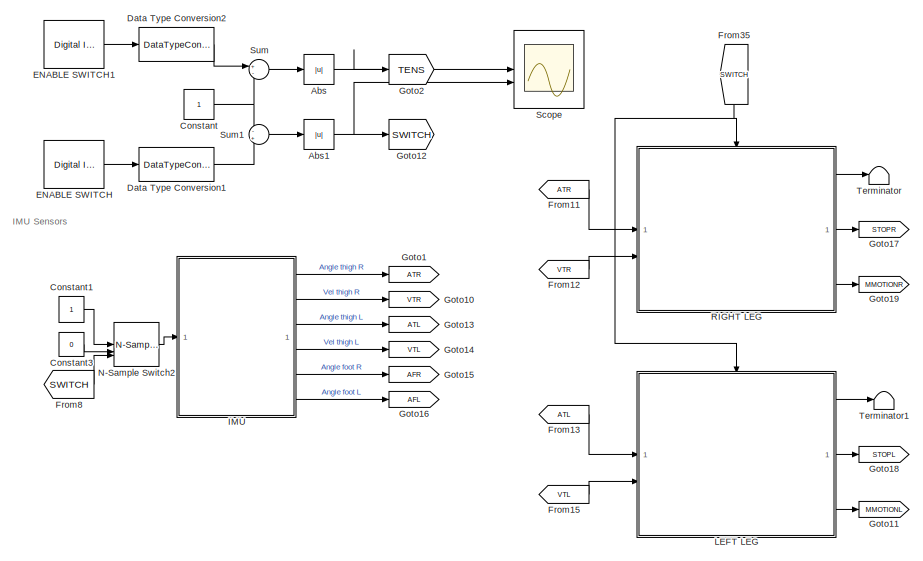
[diagram: root canvas - part 1/3, top left region]
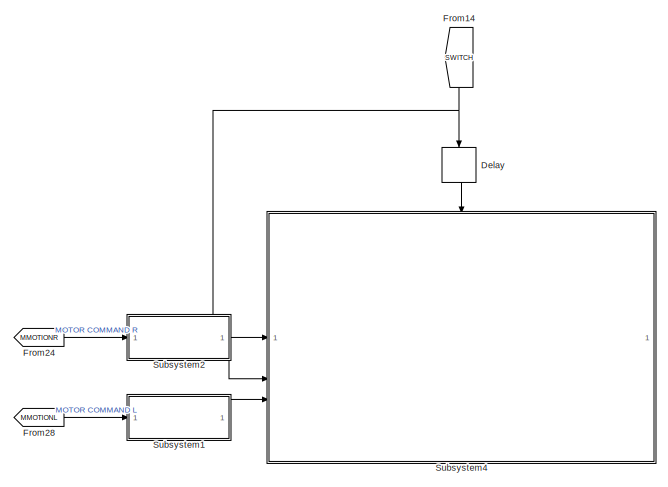
[diagram: root canvas - part 2/3, top right region]
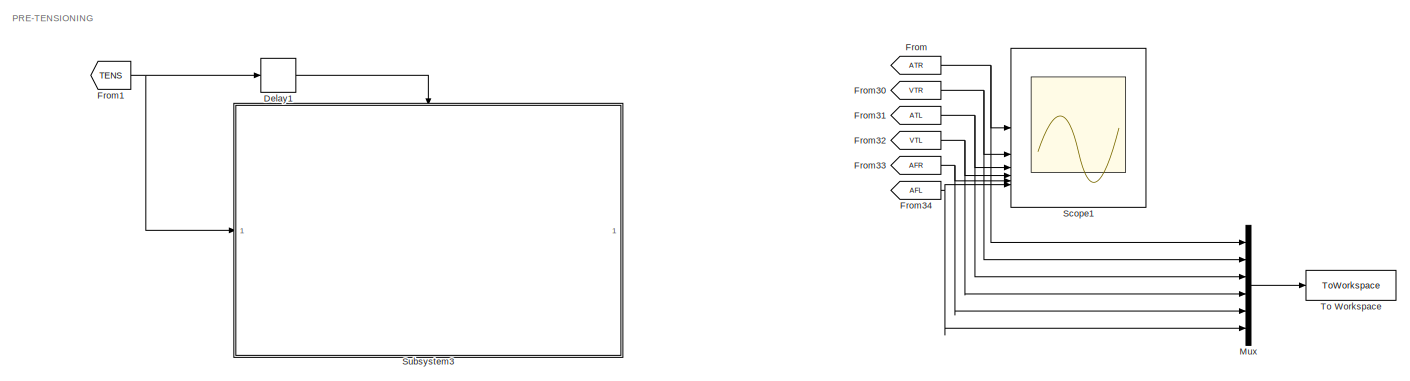
[diagram: root canvas - part 3/3, full width, bottom band]
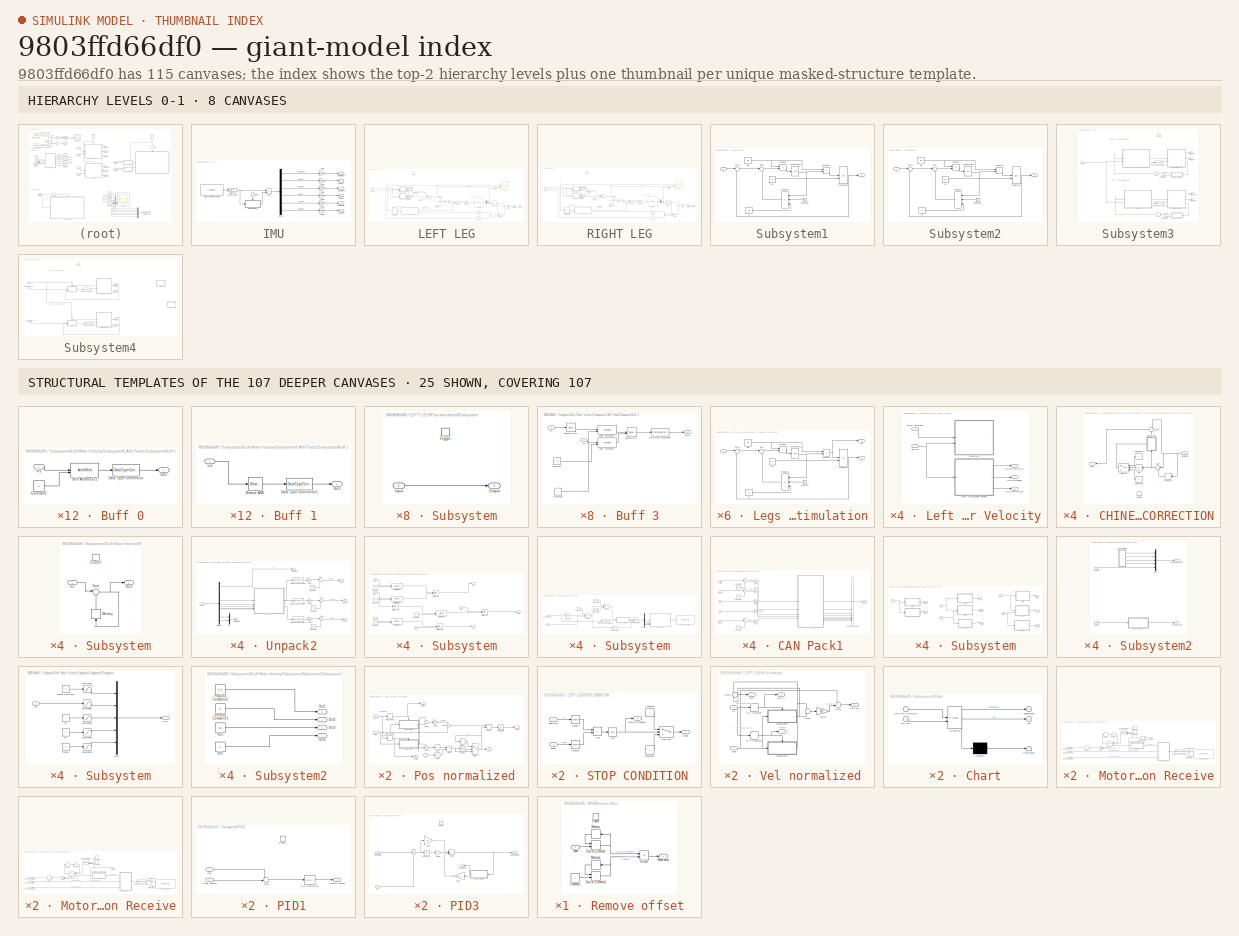
[diagram: thumbnail index - top-2 hierarchy levels (8 canvases) + 25 structural-template representatives of the remaining 107 canvases]
MODEL slx_9803ffd66df0
KIND model
CONFIG AbsTol = auto
CONFIG EnableMultiTasking = on
CONFIG FixedStep = 0.01
CONFIG InitFcn = breakp=[-1, -0.8, -0.6, -0.4, -0.2, -0.1, 0, 0.1, 0.2, 0.4, 0.6, 0.8, 1];\nsplinenew =[-1, -0.8, -0.6, -0.4, -0.2, -0.1, 0, 0, 0.005, 0.01, 0.015,0.02,0.025];
CONFIG MaxStep = auto
CONFIG MinStep = auto
CONFIG RelTol = 1e-3
CONFIG SampleTimeConstraint = Unconstrained
CONFIG SolverName = FixedStepAuto
CONFIG StartTime = 0.0
CONFIG StopTime = inf
BLOCK [Abs] Abs
  SaturateOnIntegerOverflow = off
BLOCK [Abs] Abs1
  SaturateOnIntegerOverflow = off
BLOCK [Constant] Constant
BLOCK [Constant] Constant1
BLOCK [Constant] Constant3
  Value = 0
BLOCK [DataTypeConversion] Data Type Conversion1
  OutDataTypeStr = uint8
  RndMeth = Floor
  SaturateOnIntegerOverflow = off
BLOCK [DataTypeConversion] Data Type Conversion2
  OutDataTypeStr = uint8
  RndMeth = Floor
  SaturateOnIntegerOverflow = off
BLOCK [Delay] Delay
  InputPortMap = u0
  NameLocation = left
BLOCK [Delay] Delay1
  DelayLength = 1
  InputPortMap = u0
BLOCK [Reference] ENABLE SWITCH  REF=arduinolib/Digital Input
  SourceBlock = arduinolib/Digital Input
  SourceType = Arduino Digital Input
BLOCK [Reference] ENABLE SWITCH1  REF=arduinolib/Digital Input
  SourceBlock = arduinolib/Digital Input
  SourceType = Arduino Digital Input
BLOCK [From] From
  Commented = on
  GotoTag = ATR
BLOCK [From] From1
  GotoTag = TENS
BLOCK [From] From11
  GotoTag = ATR
BLOCK [From] From12
  GotoTag = VTR
BLOCK [From] From13
  GotoTag = ATL
BLOCK [From] From14
  GotoTag = SWITCH
  NameLocation = left
BLOCK [From] From15
  GotoTag = VTL
BLOCK [From] From24
  GotoTag = MMOTIONR
BLOCK [From] From28
  GotoTag = MMOTIONL
BLOCK [From] From30
  Commented = on
  GotoTag = VTR
BLOCK [From] From31
  Commented = on
  GotoTag = ATL
BLOCK [From] From32
  Commented = on
  GotoTag = VTL
BLOCK [From] From33
  Commented = on
  GotoTag = AFR
BLOCK [From] From34
  Commented = on
  GotoTag = AFL
BLOCK [From] From35
  GotoTag = SWITCH
  NameLocation = left
BLOCK [From] From8
  GotoTag = SWITCH
BLOCK [Goto] Goto1
  GotoTag = ATR
BLOCK [Goto] Goto10
  GotoTag = VTR
BLOCK [Goto] Goto11
  GotoTag = MMOTIONL
BLOCK [Goto] Goto12
  GotoTag = SWITCH
BLOCK [Goto] Goto13
  GotoTag = ATL
BLOCK [Goto] Goto14
  GotoTag = VTL
BLOCK [Goto] Goto15
  GotoTag = AFR
BLOCK [Goto] Goto16
  GotoTag = AFL
BLOCK [Goto] Goto17
  GotoTag = STOPR
BLOCK [Goto] Goto18
  GotoTag = STOPL
BLOCK [Goto] Goto19
  GotoTag = MMOTIONR
BLOCK [Goto] Goto2
  GotoTag = TENS
BLOCK [SubSystem] IMU
BLOCK [Outport] IMU/Angle foot L
  Port = 6
BLOCK [Outport] IMU/Angle foot R
  Port = 5
BLOCK [Outport] IMU/Angle thigh L
  Port = 3
BLOCK [Outport] IMU/Angle thigh R
BLOCK [DataTypeConversion] IMU/Data Type Conversion2
  OutDataTypeStr = double
  RndMeth = Floor
  SaturateOnIntegerOverflow = off
BLOCK [Demux] IMU/Demux
  Outputs = 6
BLOCK [Gain] IMU/Gain
  Gain = -pi/180
BLOCK [Gain] IMU/Gain1
  Gain = pi/180
BLOCK [Gain] IMU/Gain2
  Gain = -pi/180
BLOCK [Gain] IMU/Gain3
  Gain = pi/180
BLOCK [Gain] IMU/Gain4
  Gain = -pi/180
BLOCK [Gain] IMU/Gain5
  Gain = -pi/180
BLOCK [Reference] IMU/IMUs (2 Thighs + 2 Feet)  REF=arduinolib/I2C Read
  SourceBlock = arduinolib/I2C Read
  SourceType = I2C Read
BLOCK [Inport] IMU/Input
  NameLocation = left
BLOCK [SubSystem] IMU/Remove offset
BLOCK [Constant] IMU/Remove offset/Constant1
BLOCK [Product] IMU/Remove offset/Divide
  Inputs = */
BLOCK [EnablePort] IMU/Remove offset/Enable
  StatesWhenEnabling = reset
BLOCK [Inport] IMU/Remove offset/Input
BLOCK [Outport] IMU/Remove offset/Mean value
BLOCK [Memory] IMU/Remove offset/Memory
  NameLocation = top
BLOCK [Memory] IMU/Remove offset/Memory1
  NameLocation = top
BLOCK [Sum] IMU/Remove offset/Sum of Elements
  IconShape = rectangular
BLOCK [Sum] IMU/Remove offset/Sum of Elements1
  IconShape = rectangular
BLOCK [Sum] IMU/Sum
  IconShape = rectangular
  Inputs = +-
BLOCK [Outport] IMU/Vel thigh L
  Port = 4
BLOCK [Outport] IMU/Vel thigh R
  Port = 2
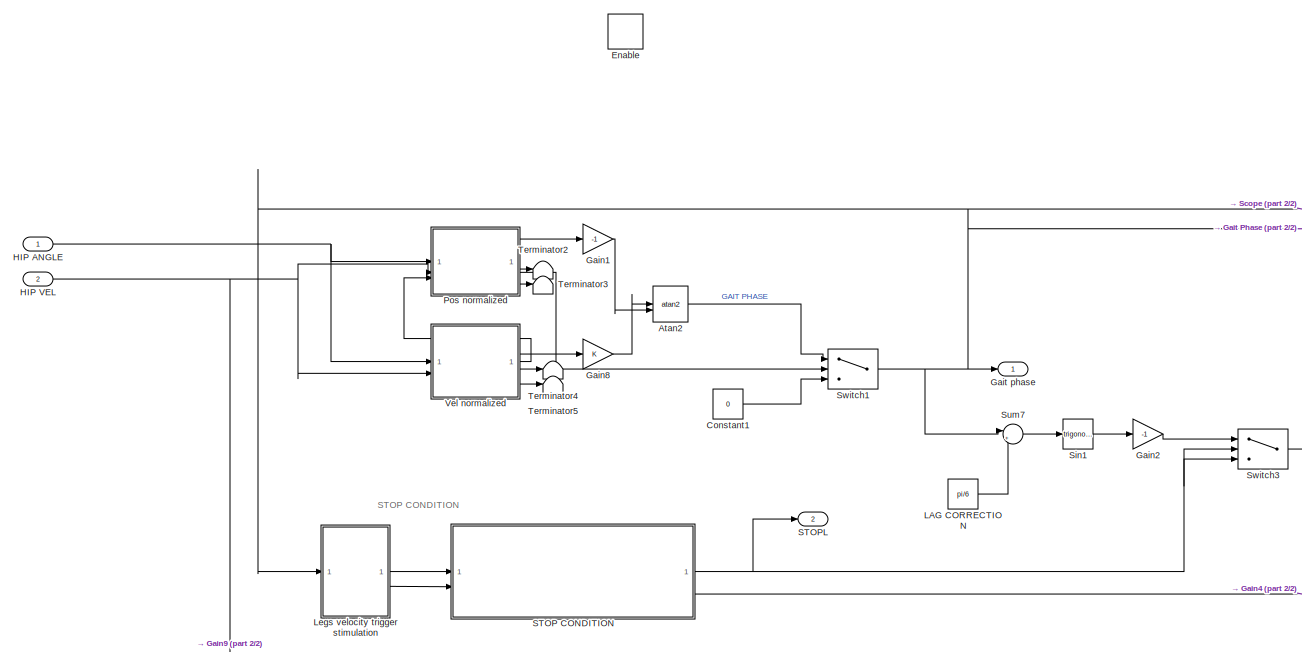
[diagram: LEFT LEG - part 1/2, left side, full height]
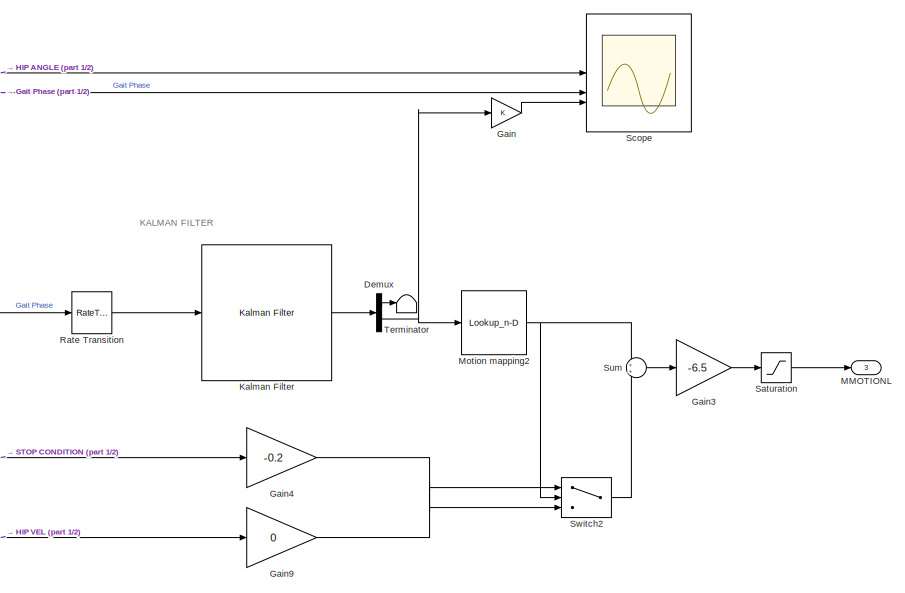
[diagram: LEFT LEG - part 2/2, right side, full height]
BLOCK [SubSystem] LEFT LEG
BLOCK [Trigonometry] LEFT LEG/Atan2
  Operator = atan2
BLOCK [Constant] LEFT LEG/Constant1
  Value = 0
BLOCK [Demux] LEFT LEG/Demux
  Outputs = 2
BLOCK [EnablePort] LEFT LEG/Enable
  StatesWhenEnabling = reset
BLOCK [Gain] LEFT LEG/Gain
BLOCK [Gain] LEFT LEG/Gain1
  Gain = -1
BLOCK [Gain] LEFT LEG/Gain2
  Gain = -1
BLOCK [Gain] LEFT LEG/Gain3
  Gain = -6.5
BLOCK [Gain] LEFT LEG/Gain4
  Gain = -0.2
BLOCK [Gain] LEFT LEG/Gain8
BLOCK [Gain] LEFT LEG/Gain9
  Gain = 0
BLOCK [Outport] LEFT LEG/Gait phase
BLOCK [Inport] LEFT LEG/HIP ANGLE
BLOCK [Inport] LEFT LEG/HIP VEL
  Port = 2
BLOCK [Reference] LEFT LEG/Kalman Filter  REF=ctrlSharedLib/Kalman Filter
  SourceBlock = ctrlSharedLib/Kalman Filter
  SourceType = ctrlKalmanFilter
BLOCK [Constant] LEFT LEG/LAG CORRECTION
  Value = pi/6
BLOCK [SubSystem] LEFT LEG/Legs velocity trigger stimulation
BLOCK [Constant] LEFT LEG/Legs velocity trigger stimulation/Constant
  Value = 2
BLOCK [Integrator] LEFT LEG/Legs velocity trigger stimulation/Integrator1
  InitialConditionSource = external
BLOCK [Integrator] LEFT LEG/Legs velocity trigger stimulation/Integrator2
BLOCK [Product] LEFT LEG/Legs velocity trigger stimulation/Product
  RndMeth = Zero
BLOCK [Product] LEFT LEG/Legs velocity trigger stimulation/Product1
  RndMeth = Zero
BLOCK [Product] LEFT LEG/Legs velocity trigger stimulation/Product2
  Inputs = 3
  RndMeth = Zero
BLOCK [Sum] LEFT LEG/Legs velocity trigger stimulation/Sum
  Inputs = |+-
BLOCK [Sum] LEFT LEG/Legs velocity trigger stimulation/Sum1
  Inputs = |+-
BLOCK [Constant] LEFT LEG/Legs velocity trigger stimulation/wn
  Value = wn
BLOCK [Inport] LEFT LEG/Legs velocity trigger stimulation/x
BLOCK [Constant] LEFT LEG/Legs velocity trigger stimulation/x0
  Value = x0
BLOCK [Outport] LEFT LEG/Legs velocity trigger stimulation/y
  VectorParamsAs1DForOutWhenUnconnected = off
BLOCK [Outport] LEFT LEG/Legs velocity trigger stimulation/yd
  Port = 2
  VectorParamsAs1DForOutWhenUnconnected = off
BLOCK [Constant] LEFT LEG/Legs velocity trigger stimulation/zt
  Value = zt
BLOCK [Outport] LEFT LEG/MMOTIONL
  Port = 3
BLOCK [Lookup_n-D] LEFT LEG/Motion mapping2
  BreakpointsForDimension1 = breakp
  BreakpointsForDimension2 = qbreak(:,2)
  ExtrapMethod = Cubic spline
  InputPortMap = u0
  InternalRulePriority = Speed
  InterpMethod = Cubic spline
  NumberOfTableDimensions = 1
  RndMeth = Simplest
  Table = splinenew
BLOCK [SubSystem] LEFT LEG/Pos normalized
BLOCK [Outport] LEFT LEG/Pos normalized/ARMAX
  Port = 3
BLOCK [Outport] LEFT LEG/Pos normalized/ARMIN
  Port = 4
BLOCK [Abs] LEFT LEG/Pos normalized/Abs
  SaturateOnIntegerOverflow = off
BLOCK [Abs] LEFT LEG/Pos normalized/Abs1
  SaturateOnIntegerOverflow = off
BLOCK [Product] LEFT LEG/Pos normalized/Divide
  Inputs = /*
BLOCK [Product] LEFT LEG/Pos normalized/Divide1
  Inputs = **
BLOCK [Gain] LEFT LEG/Pos normalized/Gain5
  Gain = -1/2
BLOCK [HitCross] LEFT LEG/Pos normalized/Hit Crossing1
  HitCrossingDirection = rising
  HitCrossingOffset = -1
BLOCK [HitCross] LEFT LEG/Pos normalized/Hit Crossing2
  HitCrossingDirection = falling
  HitCrossingOffset = 1
BLOCK [Inport] LEFT LEG/Pos normalized/In2
  Port = 2
BLOCK [Inport] LEFT LEG/Pos normalized/In3
  Port = 3
BLOCK [Inport] LEFT LEG/Pos normalized/Input
BLOCK [RelationalOperator] LEFT LEG/Pos normalized/IsNaN
  InputSameDT = off
  Operator = isNaN
  OutDataTypeStr = boolean
  RndMeth = Simplest
BLOCK [Memory] LEFT LEG/Pos normalized/Memory
BLOCK [Outport] LEFT LEG/Pos normalized/POS SS
BLOCK [Saturate] LEFT LEG/Pos normalized/Saturation
  LowerLimit = -10
  UpperLimit = 10
BLOCK [SubSystem] LEFT LEG/Pos normalized/Subsystem
BLOCK [Inport] LEFT LEG/Pos normalized/Subsystem/Input
BLOCK [Outport] LEFT LEG/Pos normalized/Subsystem/Output
BLOCK [TriggerPort] LEFT LEG/Pos normalized/Subsystem/Trigger
  PortDimensions = 1
  StatesWhenEnabling = held
  VariantControl = Variant
BLOCK [SubSystem] LEFT LEG/Pos normalized/Subsystem2
BLOCK [Inport] LEFT LEG/Pos normalized/Subsystem2/Input
BLOCK [Outport] LEFT LEG/Pos normalized/Subsystem2/Output
BLOCK [TriggerPort] LEFT LEG/Pos normalized/Subsystem2/Trigger
  PortDimensions = 1
  StatesWhenEnabling = held
  VariantControl = Variant
BLOCK [Sum] LEFT LEG/Pos normalized/Sum2
  Inputs = -+
BLOCK [Sum] LEFT LEG/Pos normalized/Sum3
BLOCK [Sum] LEFT LEG/Pos normalized/Sum4
BLOCK [Switch] LEFT LEG/Pos normalized/Switch
  Criteria = u2 > Threshold
  InputSameDT = off
  SaturateOnIntegerOverflow = off
BLOCK [Outport] LEFT LEG/Pos normalized/z(t)
  Port = 2
BLOCK [RateTransition] LEFT LEG/Rate Transition
  OutPortSampleTime = 0.01
BLOCK [SubSystem] LEFT LEG/STOP CONDITION
BLOCK [Outport] LEFT LEG/STOP CONDITION/Check
BLOCK [Constant] LEFT LEG/STOP CONDITION/Constant
BLOCK [Constant] LEFT LEG/STOP CONDITION/Constant1
  Value = 0
BLOCK [Sqrt] LEFT LEG/STOP CONDITION/Sqrt
BLOCK [Math] LEFT LEG/STOP CONDITION/Square
  Operator = square
BLOCK [Math] LEFT LEG/STOP CONDITION/Square1
  Operator = square
BLOCK [Sum] LEFT LEG/STOP CONDITION/Sum
  IconShape = rectangular
BLOCK [Switch] LEFT LEG/STOP CONDITION/Switch3
  Criteria = u2 > Threshold
  InputSameDT = off
  SaturateOnIntegerOverflow = off
  Threshold = 0.3
BLOCK [Outport] LEFT LEG/STOP CONDITION/Walking frequency
  Port = 2
BLOCK [Inport] LEFT LEG/STOP CONDITION/position
BLOCK [Inport] LEFT LEG/STOP CONDITION/speed
  Port = 2
BLOCK [Outport] LEFT LEG/STOPL
  Port = 2
BLOCK [Saturate] LEFT LEG/Saturation
  LowerLimit = -600*pi/180
  UpperLimit = 600*pi/180
BLOCK [Scope] LEFT LEG/Scope
  Floating = off
  NumInputPorts = 3
  ScopeSpecificationString = Simulink.scopes.TimeScopeBlockCfg('CurrentConfiguration', extmgr.ConfigurationSet(extmgr.Configuration('Core','General UI',true),extmgr.Configuration('Core','Source UI',true),extmgr.Configuration('Sources','WiredSimulink',true,'DataLoggingVariableName','ScopeData1'),extmgr.Configuration('Visuals','Time Domain',true,'SerializedDisplays',{struct('MinYLimReal','-3.93002','MaxYLimReal','4.00102','YLab...<+1459ch>
BLOCK [Trigonometry] LEFT LEG/Sin1
BLOCK [Sum] LEFT LEG/Sum
BLOCK [Sum] LEFT LEG/Sum7
  Inputs = |++
BLOCK [Switch] LEFT LEG/Switch1
  Criteria = u2 ~= 0
  InputSameDT = off
  SaturateOnIntegerOverflow = off
BLOCK [Switch] LEFT LEG/Switch2
  Criteria = u2 > Threshold
  InputSameDT = off
  SaturateOnIntegerOverflow = off
BLOCK [Switch] LEFT LEG/Switch3
  Criteria = u2 > Threshold
  InputSameDT = off
  SaturateOnIntegerOverflow = off
BLOCK [Terminator] LEFT LEG/Terminator
BLOCK [Terminator] LEFT LEG/Terminator2
BLOCK [Terminator] LEFT LEG/Terminator3
BLOCK [Terminator] LEFT LEG/Terminator4
BLOCK [Terminator] LEFT LEG/Terminator5
BLOCK [SubSystem] LEFT LEG/Vel normalized
BLOCK [Gain] LEFT LEG/Vel normalized/Gain7
  Gain = -1/2
BLOCK [HitCross] LEFT LEG/Vel normalized/Hit Crossing3
  HitCrossingDirection = rising
  HitCrossingOffset = -0.1
BLOCK [HitCross] LEFT LEG/Vel normalized/Hit Crossing4
  HitCrossingDirection = falling
  HitCrossingOffset = 0.1
BLOCK [Inport] LEFT LEG/Vel normalized/In1
BLOCK [Inport] LEFT LEG/Vel normalized/Input
  Port = 2
BLOCK [Outport] LEFT LEG/Vel normalized/Out1
BLOCK [SubSystem] LEFT LEG/Vel normalized/Subsystem1
BLOCK [Inport] LEFT LEG/Vel normalized/Subsystem1/Input
BLOCK [Outport] LEFT LEG/Vel normalized/Subsystem1/Output
BLOCK [TriggerPort] LEFT LEG/Vel normalized/Subsystem1/Trigger
  PortDimensions = 1
  StatesWhenEnabling = held
  VariantControl = Variant
BLOCK [SubSystem] LEFT LEG/Vel normalized/Subsystem3
BLOCK [Inport] LEFT LEG/Vel normalized/Subsystem3/Input
BLOCK [Outport] LEFT LEG/Vel normalized/Subsystem3/Output
BLOCK [TriggerPort] LEFT LEG/Vel normalized/Subsystem3/Trigger
  PortDimensions = 1
  StatesWhenEnabling = held
  VariantControl = Variant
BLOCK [Sum] LEFT LEG/Vel normalized/Sum1
  Inputs = +-
BLOCK [Sum] LEFT LEG/Vel normalized/Sum5
BLOCK [Sum] LEFT LEG/Vel normalized/Sum6
BLOCK [Outport] LEFT LEG/Vel normalized/VEL SS
  Port = 2
BLOCK [Outport] LEFT LEG/Vel normalized/VMAX
  Port = 3
BLOCK [Outport] LEFT LEG/Vel normalized/VMIN
  Port = 4
BLOCK [Mux] Mux
  Commented = on
  DisplayOption = bar
  Inputs = 6
BLOCK [Reference] N-Sample Switch2  REF=dspswit3/N-Sample
Switch
  SourceBlock = dspswit3/N-Sample\nSwitch
  SourceType = N-Sample Switch
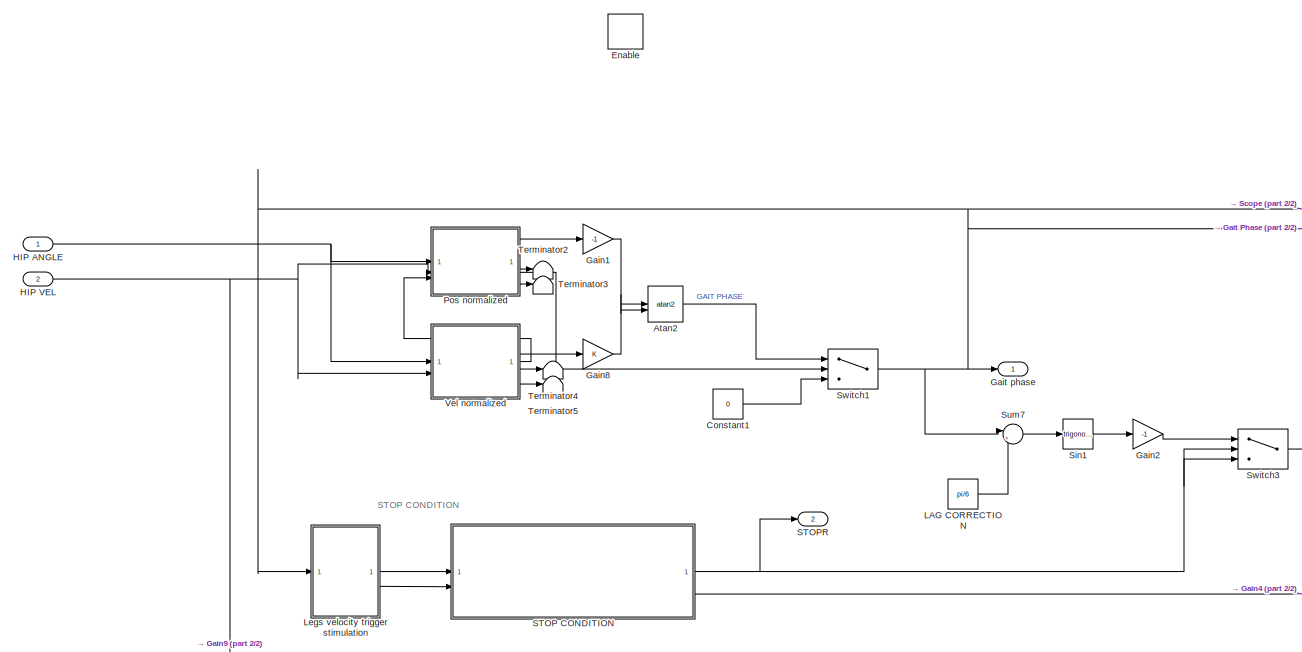
[diagram: RIGHT LEG - part 1/2, left side, full height]
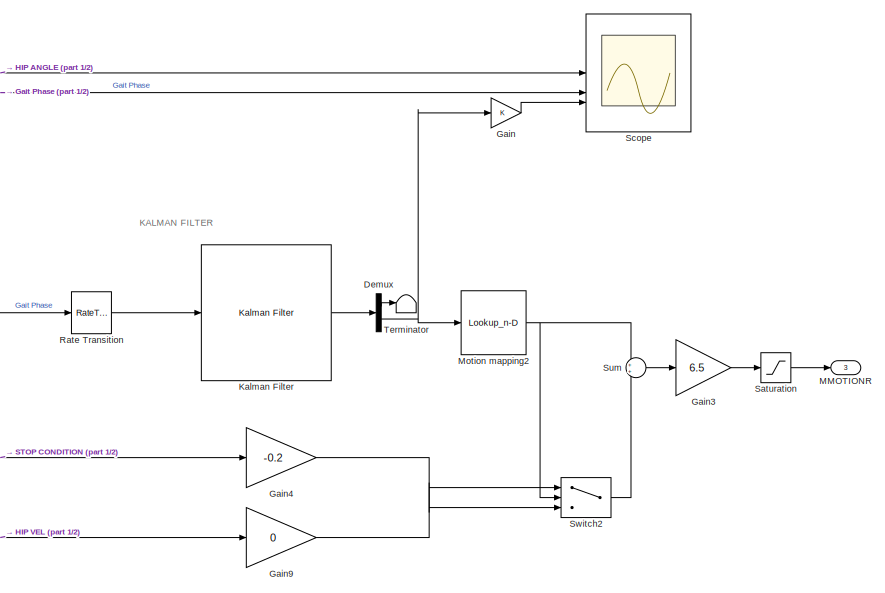
[diagram: RIGHT LEG - part 2/2, right side, full height]
BLOCK [SubSystem] RIGHT LEG
BLOCK [Trigonometry] RIGHT LEG/Atan2
  Operator = atan2
BLOCK [Constant] RIGHT LEG/Constant1
  Value = 0
BLOCK [Demux] RIGHT LEG/Demux
  Outputs = 2
BLOCK [EnablePort] RIGHT LEG/Enable
  StatesWhenEnabling = reset
BLOCK [Gain] RIGHT LEG/Gain
BLOCK [Gain] RIGHT LEG/Gain1
  Gain = -1
BLOCK [Gain] RIGHT LEG/Gain2
  Gain = -1
BLOCK [Gain] RIGHT LEG/Gain3
  Gain = 6.5
BLOCK [Gain] RIGHT LEG/Gain4
  Gain = -0.2
BLOCK [Gain] RIGHT LEG/Gain8
BLOCK [Gain] RIGHT LEG/Gain9
  Gain = 0
BLOCK [Outport] RIGHT LEG/Gait phase
BLOCK [Inport] RIGHT LEG/HIP ANGLE
BLOCK [Inport] RIGHT LEG/HIP VEL
  Port = 2
BLOCK [Reference] RIGHT LEG/Kalman Filter  REF=ctrlSharedLib/Kalman Filter
  SourceBlock = ctrlSharedLib/Kalman Filter
  SourceType = ctrlKalmanFilter
BLOCK [Constant] RIGHT LEG/LAG CORRECTION
  Value = pi/6
BLOCK [SubSystem] RIGHT LEG/Legs velocity trigger stimulation
BLOCK [Constant] RIGHT LEG/Legs velocity trigger stimulation/Constant
  Value = 2
BLOCK [Integrator] RIGHT LEG/Legs velocity trigger stimulation/Integrator1
  InitialConditionSource = external
BLOCK [Integrator] RIGHT LEG/Legs velocity trigger stimulation/Integrator2
BLOCK [Product] RIGHT LEG/Legs velocity trigger stimulation/Product
  RndMeth = Zero
BLOCK [Product] RIGHT LEG/Legs velocity trigger stimulation/Product1
  RndMeth = Zero
BLOCK [Product] RIGHT LEG/Legs velocity trigger stimulation/Product2
  Inputs = 3
  RndMeth = Zero
BLOCK [Sum] RIGHT LEG/Legs velocity trigger stimulation/Sum
  Inputs = |+-
BLOCK [Sum] RIGHT LEG/Legs velocity trigger stimulation/Sum1
  Inputs = |+-
BLOCK [Constant] RIGHT LEG/Legs velocity trigger stimulation/wn
  Value = wn
BLOCK [Inport] RIGHT LEG/Legs velocity trigger stimulation/x
BLOCK [Constant] RIGHT LEG/Legs velocity trigger stimulation/x0
  Value = x0
BLOCK [Outport] RIGHT LEG/Legs velocity trigger stimulation/y
  VectorParamsAs1DForOutWhenUnconnected = off
BLOCK [Outport] RIGHT LEG/Legs velocity trigger stimulation/yd
  Port = 2
  VectorParamsAs1DForOutWhenUnconnected = off
BLOCK [Constant] RIGHT LEG/Legs velocity trigger stimulation/zt
  Value = zt
BLOCK [Outport] RIGHT LEG/MMOTIONR
  Port = 3
BLOCK [Lookup_n-D] RIGHT LEG/Motion mapping2
  BreakpointsForDimension1 = breakp
  BreakpointsForDimension2 = qbreak(:,2)
  ExtrapMethod = Cubic spline
  InputPortMap = u0
  InternalRulePriority = Speed
  InterpMethod = Cubic spline
  NumberOfTableDimensions = 1
  RndMeth = Simplest
  Table = splinenew
BLOCK [SubSystem] RIGHT LEG/Pos normalized
BLOCK [Outport] RIGHT LEG/Pos normalized/ARMAX
  Port = 3
BLOCK [Outport] RIGHT LEG/Pos normalized/ARMIN
  Port = 4
BLOCK [Abs] RIGHT LEG/Pos normalized/Abs
  SaturateOnIntegerOverflow = off
BLOCK [Abs] RIGHT LEG/Pos normalized/Abs1
  SaturateOnIntegerOverflow = off
BLOCK [Product] RIGHT LEG/Pos normalized/Divide
  Inputs = /*
BLOCK [Product] RIGHT LEG/Pos normalized/Divide1
  Inputs = **
BLOCK [Gain] RIGHT LEG/Pos normalized/Gain5
  Gain = -1/2
BLOCK [HitCross] RIGHT LEG/Pos normalized/Hit Crossing1
  HitCrossingDirection = rising
  HitCrossingOffset = -1
BLOCK [HitCross] RIGHT LEG/Pos normalized/Hit Crossing2
  HitCrossingDirection = falling
  HitCrossingOffset = 1
BLOCK [Inport] RIGHT LEG/Pos normalized/In2
  Port = 2
BLOCK [Inport] RIGHT LEG/Pos normalized/In3
  Port = 3
BLOCK [Inport] RIGHT LEG/Pos normalized/Input
BLOCK [RelationalOperator] RIGHT LEG/Pos normalized/IsNaN
  InputSameDT = off
  Operator = isNaN
  OutDataTypeStr = boolean
  RndMeth = Simplest
BLOCK [Memory] RIGHT LEG/Pos normalized/Memory
BLOCK [Outport] RIGHT LEG/Pos normalized/POS SS
BLOCK [Saturate] RIGHT LEG/Pos normalized/Saturation
  LowerLimit = -10
  UpperLimit = 10
BLOCK [SubSystem] RIGHT LEG/Pos normalized/Subsystem
BLOCK [Inport] RIGHT LEG/Pos normalized/Subsystem/Input
BLOCK [Outport] RIGHT LEG/Pos normalized/Subsystem/Output
BLOCK [TriggerPort] RIGHT LEG/Pos normalized/Subsystem/Trigger
  PortDimensions = 1
  StatesWhenEnabling = held
  VariantControl = Variant
BLOCK [SubSystem] RIGHT LEG/Pos normalized/Subsystem2
BLOCK [Inport] RIGHT LEG/Pos normalized/Subsystem2/Input
BLOCK [Outport] RIGHT LEG/Pos normalized/Subsystem2/Output
BLOCK [TriggerPort] RIGHT LEG/Pos normalized/Subsystem2/Trigger
  PortDimensions = 1
  StatesWhenEnabling = held
  VariantControl = Variant
BLOCK [Sum] RIGHT LEG/Pos normalized/Sum2
  Inputs = -+
BLOCK [Sum] RIGHT LEG/Pos normalized/Sum3
BLOCK [Sum] RIGHT LEG/Pos normalized/Sum4
BLOCK [Switch] RIGHT LEG/Pos normalized/Switch
  Criteria = u2 > Threshold
  InputSameDT = off
  SaturateOnIntegerOverflow = off
BLOCK [Outport] RIGHT LEG/Pos normalized/z(t)
  Port = 2
BLOCK [RateTransition] RIGHT LEG/Rate Transition
  OutPortSampleTime = 0.01
BLOCK [SubSystem] RIGHT LEG/STOP CONDITION
BLOCK [Outport] RIGHT LEG/STOP CONDITION/Check
BLOCK [Constant] RIGHT LEG/STOP CONDITION/Constant
BLOCK [Constant] RIGHT LEG/STOP CONDITION/Constant1
  Value = 0
BLOCK [Sqrt] RIGHT LEG/STOP CONDITION/Sqrt
BLOCK [Math] RIGHT LEG/STOP CONDITION/Square
  Operator = square
BLOCK [Math] RIGHT LEG/STOP CONDITION/Square1
  Operator = square
BLOCK [Sum] RIGHT LEG/STOP CONDITION/Sum
  IconShape = rectangular
BLOCK [Switch] RIGHT LEG/STOP CONDITION/Switch3
  Criteria = u2 > Threshold
  InputSameDT = off
  SaturateOnIntegerOverflow = off
  Threshold = 0.3
BLOCK [Outport] RIGHT LEG/STOP CONDITION/Walking frequency
  Port = 2
BLOCK [Inport] RIGHT LEG/STOP CONDITION/position
BLOCK [Inport] RIGHT LEG/STOP CONDITION/speed
  Port = 2
BLOCK [Outport] RIGHT LEG/STOPR
  Port = 2
BLOCK [Saturate] RIGHT LEG/Saturation
  LowerLimit = -600*pi/180
  UpperLimit = 600*pi/180
BLOCK [Scope] RIGHT LEG/Scope
  Floating = off
  NumInputPorts = 3
  ScopeSpecificationString = Simulink.scopes.TimeScopeBlockCfg('CurrentConfiguration', extmgr.ConfigurationSet(extmgr.Configuration('Core','General UI',true),extmgr.Configuration('Core','Source UI',true),extmgr.Configuration('Sources','WiredSimulink',true,'DataLoggingVariableName','ScopeData1'),extmgr.Configuration('Visuals','Time Domain',true,'SerializedDisplays',{struct('MinYLimReal','-0.70263','MaxYLimReal','1.40404','YLab...<+1459ch>
BLOCK [Trigonometry] RIGHT LEG/Sin1
BLOCK [Sum] RIGHT LEG/Sum
BLOCK [Sum] RIGHT LEG/Sum7
  Inputs = |++
BLOCK [Switch] RIGHT LEG/Switch1
  Criteria = u2 ~= 0
  InputSameDT = off
  SaturateOnIntegerOverflow = off
BLOCK [Switch] RIGHT LEG/Switch2
  Criteria = u2 > Threshold
  InputSameDT = off
  SaturateOnIntegerOverflow = off
BLOCK [Switch] RIGHT LEG/Switch3
  Criteria = u2 > Threshold
  InputSameDT = off
  SaturateOnIntegerOverflow = off
BLOCK [Terminator] RIGHT LEG/Terminator
BLOCK [Terminator] RIGHT LEG/Terminator2
BLOCK [Terminator] RIGHT LEG/Terminator3
BLOCK [Terminator] RIGHT LEG/Terminator4
BLOCK [Terminator] RIGHT LEG/Terminator5
BLOCK [SubSystem] RIGHT LEG/Vel normalized
BLOCK [Gain] RIGHT LEG/Vel normalized/Gain7
  Gain = -1/2
BLOCK [HitCross] RIGHT LEG/Vel normalized/Hit Crossing3
  HitCrossingDirection = rising
  HitCrossingOffset = -0.1
BLOCK [HitCross] RIGHT LEG/Vel normalized/Hit Crossing4
  HitCrossingDirection = falling
  HitCrossingOffset = 0.1
BLOCK [Inport] RIGHT LEG/Vel normalized/In1
BLOCK [Inport] RIGHT LEG/Vel normalized/Input
  Port = 2
BLOCK [Outport] RIGHT LEG/Vel normalized/Out1
BLOCK [SubSystem] RIGHT LEG/Vel normalized/Subsystem1
BLOCK [Inport] RIGHT LEG/Vel normalized/Subsystem1/Input
BLOCK [Outport] RIGHT LEG/Vel normalized/Subsystem1/Output
BLOCK [TriggerPort] RIGHT LEG/Vel normalized/Subsystem1/Trigger
  PortDimensions = 1
  StatesWhenEnabling = held
  VariantControl = Variant
BLOCK [SubSystem] RIGHT LEG/Vel normalized/Subsystem3
BLOCK [Inport] RIGHT LEG/Vel normalized/Subsystem3/Input
BLOCK [Outport] RIGHT LEG/Vel normalized/Subsystem3/Output
BLOCK [TriggerPort] RIGHT LEG/Vel normalized/Subsystem3/Trigger
  PortDimensions = 1
  StatesWhenEnabling = held
  VariantControl = Variant
BLOCK [Sum] RIGHT LEG/Vel normalized/Sum1
  Inputs = +-
BLOCK [Sum] RIGHT LEG/Vel normalized/Sum5
BLOCK [Sum] RIGHT LEG/Vel normalized/Sum6
BLOCK [Outport] RIGHT LEG/Vel normalized/VEL SS
  Port = 2
BLOCK [Outport] RIGHT LEG/Vel normalized/VMAX
  Port = 3
BLOCK [Outport] RIGHT LEG/Vel normalized/VMIN
  Port = 4
BLOCK [Scope] Scope
  Floating = off
  NumInputPorts = 2
  ScopeSpecificationString = Simulink.scopes.TimeScopeBlockCfg('CurrentConfiguration', extmgr.ConfigurationSet(extmgr.Configuration('Core','General UI',true),extmgr.Configuration('Core','Source UI',true),extmgr.Configuration('Sources','WiredSimulink',true,'DataLoggingVariableName','ScopeData1'),extmgr.Configuration('Visuals','Time Domain',true,'SerializedDisplays',{struct('MinYLimReal','-0.125','MaxYLimReal','1.125','YLabelRe...<+1357ch>
BLOCK [Scope] Scope1
  Commented = on
  Floating = off
  NumInputPorts = 6
  ScopeSpecificationString = Simulink.scopes.TimeScopeBlockCfg('CurrentConfiguration', extmgr.ConfigurationSet(extmgr.Configuration('Core','General UI',true),extmgr.Configuration('Core','Source UI',true),extmgr.Configuration('Sources','WiredSimulink',true,'DataLoggingVariableName','ScopeData2'),extmgr.Configuration('Visuals','Time Domain',true,'SerializedDisplays',{struct('MinYLimReal','-1.00000','MaxYLimReal','1.00000','YLab...<+4956ch>
BLOCK [SubSystem] Subsystem1
BLOCK [Constant] Subsystem1/Constant
  Value = 2
BLOCK [Integrator] Subsystem1/Integrator1
  InitialConditionSource = external
BLOCK [Integrator] Subsystem1/Integrator2
BLOCK [Product] Subsystem1/Product
  RndMeth = Zero
BLOCK [Product] Subsystem1/Product1
  RndMeth = Zero
BLOCK [Product] Subsystem1/Product2
  Inputs = 3
  RndMeth = Zero
BLOCK [Sum] Subsystem1/Sum
  Inputs = |+-
BLOCK [Sum] Subsystem1/Sum1
  Inputs = |+-
BLOCK [Constant] Subsystem1/wn
  Value = wn
BLOCK [Inport] Subsystem1/x
BLOCK [Constant] Subsystem1/x0
  Value = x0
BLOCK [Outport] Subsystem1/y
  VectorParamsAs1DForOutWhenUnconnected = off
BLOCK [Constant] Subsystem1/zt
  Value = zt
BLOCK [SubSystem] Subsystem2
BLOCK [Constant] Subsystem2/Constant
  Value = 2
BLOCK [Integrator] Subsystem2/Integrator1
  InitialConditionSource = external
BLOCK [Integrator] Subsystem2/Integrator2
BLOCK [Product] Subsystem2/Product
  RndMeth = Zero
BLOCK [Product] Subsystem2/Product1
  RndMeth = Zero
BLOCK [Product] Subsystem2/Product2
  Inputs = 3
  RndMeth = Zero
BLOCK [Sum] Subsystem2/Sum
  Inputs = |+-
BLOCK [Sum] Subsystem2/Sum1
  Inputs = |+-
BLOCK [Constant] Subsystem2/wn
  Value = wn
BLOCK [Inport] Subsystem2/x
BLOCK [Constant] Subsystem2/x0
  Value = x0
BLOCK [Outport] Subsystem2/y
  VectorParamsAs1DForOutWhenUnconnected = off
BLOCK [Constant] Subsystem2/zt
  Value = zt
BLOCK [SubSystem] Subsystem3
BLOCK [Abs] Subsystem3/Abs
  SaturateOnIntegerOverflow = off
BLOCK [Abs] Subsystem3/Abs1
  SaturateOnIntegerOverflow = off
BLOCK [SubSystem] Subsystem3/Chart
  ErrorFcn = Stateflow.Translate.translate
  PermitHierarchicalResolution = ExplicitOnly
  SFBlockType = Chart
  TreatAsAtomicUnit = on
BLOCK [Demux] Subsystem3/Chart/ Demux 
  Outputs = 1
BLOCK [S-Function] Subsystem3/Chart/ SFunction 
  EnableBusSupport = on
  FunctionName = sf_sfun
  PortCounts = [2 3]
  SFcnIsStateOwnerBlock = off
  SFunctionDeploymentMode = off
  Tag = Stateflow S-Function 1
BLOCK [Terminator] Subsystem3/Chart/ Terminator 
BLOCK [Inport] Subsystem3/Chart/MOTOR_TORQUE
BLOCK [Inport] Subsystem3/Chart/ON_OFF
  Port = 2
BLOCK [Outport] Subsystem3/Chart/enablestati
BLOCK [Outport] Subsystem3/Chart/vel
  Port = 2
BLOCK [SubSystem] Subsystem3/Chart1
  ErrorFcn = Stateflow.Translate.translate
  PermitHierarchicalResolution = ExplicitOnly
  SFBlockType = Chart
  TreatAsAtomicUnit = on
BLOCK [Demux] Subsystem3/Chart1/ Demux 
  Outputs = 1
BLOCK [S-Function] Subsystem3/Chart1/ SFunction 
  EnableBusSupport = on
  FunctionName = sf_sfun
  PortCounts = [2 3]
  SFcnIsStateOwnerBlock = off
  SFunctionDeploymentMode = off
  Tag = Stateflow S-Function 2
BLOCK [Terminator] Subsystem3/Chart1/ Terminator 
BLOCK [Inport] Subsystem3/Chart1/MOTOR_TORQUE
BLOCK [Inport] Subsystem3/Chart1/ON_OFF
  Port = 2
BLOCK [Outport] Subsystem3/Chart1/enablestati
BLOCK [Outport] Subsystem3/Chart1/vel
  Port = 2
BLOCK [DataTypeConversion] Subsystem3/Data Type Conversion1
  OutDataTypeStr = single
  RndMeth = Floor
  SaturateOnIntegerOverflow = off
BLOCK [DataTypeConversion] Subsystem3/Data Type Conversion6
  OutDataTypeStr = single
  RndMeth = Floor
  SaturateOnIntegerOverflow = off
BLOCK [EnablePort] Subsystem3/Enable
  StatesWhenEnabling = reset
BLOCK [SubSystem] Subsystem3/Left Motor Velocity
BLOCK [Outport] Subsystem3/Left Motor Velocity/MOTOR POSITION
BLOCK [Outport] Subsystem3/Left Motor Velocity/MOTOR SPEED
  Port = 2
BLOCK [Outport] Subsystem3/Left Motor Velocity/MOTOR TORQUE
  Port = 3
BLOCK [SubSystem] Subsystem3/Left Motor Velocity/Motor Actual Position Receive
BLOCK [BusSelector] Subsystem3/Left Motor Velocity/Motor Actual Position Receive/Bus Selector1
  NameLocation = top
  OutputSignals = Data
BLOCK [Reference] Subsystem3/Left Motor Velocity/Motor Actual Position Receive/CAN Receive  REF=arduinolib/CAN Receive
  NameLocation = top
  Priority = 4
  SourceBlock = arduinolib/CAN Receive
  SourceType = Arduino CAN Receive
BLOCK [SubSystem] Subsystem3/Left Motor Velocity/Motor Actual Position Receive/CHINESE CORRECTION
  NameLocation = top
BLOCK [Abs] Subsystem3/Left Motor Velocity/Motor Actual Position Receive/CHINESE CORRECTION/Abs
  NameLocation = top
  SaturateOnIntegerOverflow = off
BLOCK [Constant] Subsystem3/Left Motor Velocity/Motor Actual Position Receive/CHINESE CORRECTION/Constant2
  NameLocation = top
BLOCK [Constant] Subsystem3/Left Motor Velocity/Motor Actual Position Receive/CHINESE CORRECTION/Constant3
  NameLocation = top
  Value = 0
BLOCK [EnablePort] Subsystem3/Left Motor Velocity/Motor Actual Position Receive/CHINESE CORRECTION/Enable
  StatesWhenEnabling = reset
BLOCK [Memory] Subsystem3/Left Motor Velocity/Motor Actual Position Receive/CHINESE CORRECTION/Memory
  NameLocation = top
BLOCK [Outport] Subsystem3/Left Motor Velocity/Motor Actual Position Receive/CHINESE CORRECTION/Out1
BLOCK [SubSystem] Subsystem3/Left Motor Velocity/Motor Actual Position Receive/CHINESE CORRECTION/Subsystem
BLOCK [EnablePort] Subsystem3/Left Motor Velocity/Motor Actual Position Receive/CHINESE CORRECTION/Subsystem/Enable
BLOCK [Inport] Subsystem3/Left Motor Velocity/Motor Actual Position Receive/CHINESE CORRECTION/Subsystem/In1
BLOCK [Memory] Subsystem3/Left Motor Velocity/Motor Actual Position Receive/CHINESE CORRECTION/Subsystem/Memory
  NameLocation = right
BLOCK [Outport] Subsystem3/Left Motor Velocity/Motor Actual Position Receive/CHINESE CORRECTION/Subsystem/Out1
BLOCK [Sum] Subsystem3/Left Motor Velocity/Motor Actual Position Receive/CHINESE CORRECTION/Subsystem/Sum
  Inputs = |++
BLOCK [Sum] Subsystem3/Left Motor Velocity/Motor Actual Position Receive/CHINESE CORRECTION/Sum
  Inputs = |+-
  NameLocation = top
BLOCK [Sum] Subsystem3/Left Motor Velocity/Motor Actual Position Receive/CHINESE CORRECTION/Sum1
  Inputs = +-
  NameLocation = top
BLOCK [Switch] Subsystem3/Left Motor Velocity/Motor Actual Position Receive/CHINESE CORRECTION/Switch1
  Criteria = u2 > Threshold
  InputSameDT = off
  NameLocation = top
  SaturateOnIntegerOverflow = off
  Threshold = 20
BLOCK [Inport] Subsystem3/Left Motor Velocity/Motor Actual Position Receive/CHINESE CORRECTION/position
BLOCK [Constant] Subsystem3/Left Motor Velocity/Motor Actual Position Receive/Constant1
  NameLocation = top
  Value = 0
BLOCK [Constant] Subsystem3/Left Motor Velocity/Motor Actual Position Receive/Constant3
  NameLocation = top
BLOCK [DataTypeConversion] Subsystem3/Left Motor Velocity/Motor Actual Position Receive/Data Type Conversion2
  NameLocation = top
  OutDataTypeStr = uint16
  RndMeth = Floor
  SaturateOnIntegerOverflow = off
BLOCK [Delay] Subsystem3/Left Motor Velocity/Motor Actual Position Receive/Delay
  DelayLength = 1
  InputPortMap = u0
  NameLocation = top
BLOCK [Delay] Subsystem3/Left Motor Velocity/Motor Actual Position Receive/Delay2
  InputPortMap = u0
BLOCK [Outport] Subsystem3/Left Motor Velocity/Motor Actual Position Receive/MOTOR POSITION
BLOCK [Outport] Subsystem3/Left Motor Velocity/Motor Actual Position Receive/MOTOR SPEED
  Port = 2
BLOCK [Outport] Subsystem3/Left Motor Velocity/Motor Actual Position Receive/MOTOR TORQUE
  Port = 3
BLOCK [Memory] Subsystem3/Left Motor Velocity/Motor Actual Position Receive/Memory2
BLOCK [Reference] Subsystem3/Left Motor Velocity/Motor Actual Position Receive/N-Sample Switch2  REF=dspswit3/N-Sample
Switch
  NameLocation = top
  SourceBlock = dspswit3/N-Sample\nSwitch
  SourceType = N-Sample Switch
BLOCK [Inport] Subsystem3/Left Motor Velocity/Motor Actual Position Receive/SWITCH
BLOCK [Sum] Subsystem3/Left Motor Velocity/Motor Actual Position Receive/Sum
  IconShape = rectangular
  Inputs = -|+
  NameLocation = top
BLOCK [Switch] Subsystem3/Left Motor Velocity/Motor Actual Position Receive/Switch2
  Criteria = u2 > Threshold
  InputSameDT = off
  NameLocation = top
  SaturateOnIntegerOverflow = off
BLOCK [Terminator] Subsystem3/Left Motor Velocity/Motor Actual Position Receive/Terminator1
  NameLocation = top
BLOCK [SubSystem] Subsystem3/Left Motor Velocity/Motor Actual Position Receive/Unpack2
  NameLocation = top
BLOCK [Constant] Subsystem3/Left Motor Velocity/Motor Actual Position Receive/Unpack2/Constant
  Value = 12.5
BLOCK [Constant] Subsystem3/Left Motor Velocity/Motor Actual Position Receive/Unpack2/Constant1
  Value = 45
BLOCK [Constant] Subsystem3/Left Motor Velocity/Motor Actual Position Receive/Unpack2/Constant2
  Value = 15
BLOCK [Inport] Subsystem3/Left Motor Velocity/Motor Actual Position Receive/Unpack2/Data
BLOCK [DataTypeConversion] Subsystem3/Left Motor Velocity/Motor Actual Position Receive/Unpack2/Data Type Conversion
  OutDataTypeStr = single
  RndMeth = Floor
  SaturateOnIntegerOverflow = off
BLOCK [DataTypeConversion] Subsystem3/Left Motor Velocity/Motor Actual Position Receive/Unpack2/Data Type Conversion1
  OutDataTypeStr = single
  RndMeth = Floor
  SaturateOnIntegerOverflow = off
BLOCK [DataTypeConversion] Subsystem3/Left Motor Velocity/Motor Actual Position Receive/Unpack2/Data Type Conversion2
  OutDataTypeStr = single
  RndMeth = Floor
  SaturateOnIntegerOverflow = off
BLOCK [Demux] Subsystem3/Left Motor Velocity/Motor Actual Position Receive/Unpack2/Demux1
  Outputs = 8
BLOCK [Gain] Subsystem3/Left Motor Velocity/Motor Actual Position Receive/Unpack2/Gain
  Gain = 2*12.5/65535
  RndMeth = Round
BLOCK [Gain] Subsystem3/Left Motor Velocity/Motor Actual Position Receive/Unpack2/Gain1
  Gain = 2*45/4095
  RndMeth = Round
BLOCK [Gain] Subsystem3/Left Motor Velocity/Motor Actual Position Receive/Unpack2/Gain2
  Gain = 2*15/4095
  RndMeth = Round
BLOCK [Mux] Subsystem3/Left Motor Velocity/Motor Actual Position Receive/Unpack2/Mux
  DisplayOption = bar
  Inputs = 2
BLOCK [SubSystem] Subsystem3/Left Motor Velocity/Motor Actual Position Receive/Unpack2/Subsystem
BLOCK [Reference] Subsystem3/Left Motor Velocity/Motor Actual Position Receive/Unpack2/Subsystem/Bitwise AND  REF=simulink/Logic and Bit
Operations/Bitwise
Operator
  SourceBlock = simulink/Logic and Bit\nOperations/Bitwise\nOperator
  SourceType = Bitwise Operator
BLOCK [Reference] Subsystem3/Left Motor Velocity/Motor Actual Position Receive/Unpack2/Subsystem/Bitwise OR  REF=simulink/Logic and Bit
Operations/Bitwise
Operator
  SourceBlock = simulink/Logic and Bit\nOperations/Bitwise\nOperator
  SourceType = Bitwise Operator
BLOCK [Reference] Subsystem3/Left Motor Velocity/Motor Actual Position Receive/Unpack2/Subsystem/Bitwise OR1  REF=simulink/Logic and Bit
Operations/Bitwise
Operator
  SourceBlock = simulink/Logic and Bit\nOperations/Bitwise\nOperator
  SourceType = Bitwise Operator
BLOCK [Reference] Subsystem3/Left Motor Velocity/Motor Actual Position Receive/Unpack2/Subsystem/Bitwise OR2  REF=simulink/Logic and Bit
Operations/Bitwise
Operator
  SourceBlock = simulink/Logic and Bit\nOperations/Bitwise\nOperator
  SourceType = Bitwise Operator
BLOCK [Constant] Subsystem3/Left Motor Velocity/Motor Actual Position Receive/Unpack2/Subsystem/Constant
  OutDataTypeStr = uint16
  Value = 8
BLOCK [Constant] Subsystem3/Left Motor Velocity/Motor Actual Position Receive/Unpack2/Subsystem/Constant1
  OutDataTypeStr = uint16
  Value = 4
BLOCK [Constant] Subsystem3/Left Motor Velocity/Motor Actual Position Receive/Unpack2/Subsystem/Constant2
  OutDataTypeStr = uint16
  Value = 4
BLOCK [Constant] Subsystem3/Left Motor Velocity/Motor Actual Position Receive/Unpack2/Subsystem/Constant4
  OutDataTypeStr = uint16
  Value = 8
BLOCK [Inport] Subsystem3/Left Motor Velocity/Motor Actual Position Receive/Unpack2/Subsystem/In1
BLOCK [Inport] Subsystem3/Left Motor Velocity/Motor Actual Position Receive/Unpack2/Subsystem/In2
  Port = 2
BLOCK [Inport] Subsystem3/Left Motor Velocity/Motor Actual Position Receive/Unpack2/Subsystem/In3
  Port = 3
BLOCK [Inport] Subsystem3/Left Motor Velocity/Motor Actual Position Receive/Unpack2/Subsystem/In4
  Port = 4
BLOCK [Inport] Subsystem3/Left Motor Velocity/Motor Actual Position Receive/Unpack2/Subsystem/In5
  Port = 5
BLOCK [Outport] Subsystem3/Left Motor Velocity/Motor Actual Position Receive/Unpack2/Subsystem/Out1
BLOCK [Outport] Subsystem3/Left Motor Velocity/Motor Actual Position Receive/Unpack2/Subsystem/Out2
  Port = 2
BLOCK [Outport] Subsystem3/Left Motor Velocity/Motor Actual Position Receive/Unpack2/Subsystem/Out3
  Port = 3
BLOCK [ArithShift] Subsystem3/Left Motor Velocity/Motor Actual Position Receive/Unpack2/Subsystem/Shift Arithmetic1
  BitShiftDirection = Left
  BitShiftNumber = 8
  BitShiftNumberSource = Input port
  InputPortMap = u0,p1
BLOCK [ArithShift] Subsystem3/Left Motor Velocity/Motor Actual Position Receive/Unpack2/Subsystem/Shift Arithmetic2
  BitShiftDirection = Left
  BitShiftNumber = 8
  BitShiftNumberSource = Input port
  InputPortMap = u0,p1
BLOCK [ArithShift] Subsystem3/Left Motor Velocity/Motor Actual Position Receive/Unpack2/Subsystem/Shift Arithmetic3
  BitShiftDirection = Right
  BitShiftNumber = 8
  BitShiftNumberSource = Input port
  InputPortMap = u0,p1
BLOCK [ArithShift] Subsystem3/Left Motor Velocity/Motor Actual Position Receive/Unpack2/Subsystem/Shift Arithmetic4
  BitShiftDirection = Left
  BitShiftNumber = 8
  BitShiftNumberSource = Input port
  InputPortMap = u0,p1
BLOCK [Sum] Subsystem3/Left Motor Velocity/Motor Actual Position Receive/Unpack2/Sum
  Inputs = |+-
BLOCK [Sum] Subsystem3/Left Motor Velocity/Motor Actual Position Receive/Unpack2/Sum1
  Inputs = |+-
BLOCK [Sum] Subsystem3/Left Motor Velocity/Motor Actual Position Receive/Unpack2/Sum2
  Inputs = |+-
BLOCK [Terminator] Subsystem3/Left Motor Velocity/Motor Actual Position Receive/Unpack2/Terminator
BLOCK [Terminator] Subsystem3/Left Motor Velocity/Motor Actual Position Receive/Unpack2/Terminator3
BLOCK [Outport] Subsystem3/Left Motor Velocity/Motor Actual Position Receive/Unpack2/position
BLOCK [Outport] Subsystem3/Left Motor Velocity/Motor Actual Position Receive/Unpack2/speed
  Port = 2
BLOCK [Outport] Subsystem3/Left Motor Velocity/Motor Actual Position Receive/Unpack2/torque
  Port = 3
BLOCK [ZeroOrderHold] Subsystem3/Left Motor Velocity/Motor Actual Position Receive/Zero-Order Hold1
  SampleTime = 0.01
BLOCK [Inport] Subsystem3/Left Motor Velocity/Motor command
  Port = 2
BLOCK [Inport] Subsystem3/Left Motor Velocity/SWITCH
BLOCK [SubSystem] Subsystem3/Left Motor Velocity/Subsystem
BLOCK [SubSystem] Subsystem3/Left Motor Velocity/Subsystem/CAN Pack1
BLOCK [Outport] Subsystem3/Left Motor Velocity/Subsystem/CAN Pack1/CAN Data
BLOCK [Constant] Subsystem3/Left Motor Velocity/Subsystem/CAN Pack1/Constant3
  OutDataTypeStr = single
  Value = -12.5
BLOCK [Constant] Subsystem3/Left Motor Velocity/Subsystem/CAN Pack1/Constant4
  OutDataTypeStr = single
  Value = -45
BLOCK [Constant] Subsystem3/Left Motor Velocity/Subsystem/CAN Pack1/Constant5
  OutDataTypeStr = single
  Value = -15
BLOCK [Gain] Subsystem3/Left Motor Velocity/Subsystem/CAN Pack1/Gain
  Gain = 65535/(2*12.5)
  OutDataTypeStr = uint16
  RndMeth = Round
BLOCK [Gain] Subsystem3/Left Motor Velocity/Subsystem/CAN Pack1/Gain3
  Gain = 4095/(2*45)
  OutDataTypeStr = fixdt(0,12,0)
  RndMeth = Round
BLOCK [Gain] Subsystem3/Left Motor Velocity/Subsystem/CAN Pack1/Gain4
  Gain = 4095/500
  OutDataTypeStr = fixdt(0,12,0)
  RndMeth = Round
BLOCK [Gain] Subsystem3/Left Motor Velocity/Subsystem/CAN Pack1/Gain5
  Gain = 4095/5
  OutDataTypeStr = fixdt(0,12,0)
  RndMeth = Round
BLOCK [Gain] Subsystem3/Left Motor Velocity/Subsystem/CAN Pack1/Gain6
  Gain = 4095/(2*15)
  OutDataTypeStr = fixdt(0,12,0)
  RndMeth = Round
BLOCK [Inport] Subsystem3/Left Motor Velocity/Subsystem/CAN Pack1/Kd
  Port = 4
BLOCK [Inport] Subsystem3/Left Motor Velocity/Subsystem/CAN Pack1/Kp
  Port = 3
BLOCK [Inport] Subsystem3/Left Motor Velocity/Subsystem/CAN Pack1/Position
BLOCK [SubSystem] Subsystem3/Left Motor Velocity/Subsystem/CAN Pack1/Subsystem
BLOCK [SubSystem] Subsystem3/Left Motor Velocity/Subsystem/CAN Pack1/Subsystem/Buff 0
BLOCK [Constant] Subsystem3/Left Motor Velocity/Subsystem/CAN Pack1/Subsystem/Buff 0/Constant1
  OutDataTypeStr = uint16
  Value = 8
BLOCK [DataTypeConversion] Subsystem3/Left Motor Velocity/Subsystem/CAN Pack1/Subsystem/Buff 0/Data Type Conversion
  OutDataTypeStr = uint8
  RndMeth = Floor
  SaturateOnIntegerOverflow = off
BLOCK [Inport] Subsystem3/Left Motor Velocity/Subsystem/CAN Pack1/Subsystem/Buff 0/In1
BLOCK [Outport] Subsystem3/Left Motor Velocity/Subsystem/CAN Pack1/Subsystem/Buff 0/Out1
BLOCK [ArithShift] Subsystem3/Left Motor Velocity/Subsystem/CAN Pack1/Subsystem/Buff 0/Shift Arithmetic2
  BitShiftDirection = Right
  BitShiftNumber = 8
  BitShiftNumberSource = Input port
  InputPortMap = u0,p1
BLOCK [SubSystem] Subsystem3/Left Motor Velocity/Subsystem/CAN Pack1/Subsystem/Buff 1
BLOCK [Reference] Subsystem3/Left Motor Velocity/Subsystem/CAN Pack1/Subsystem/Buff 1/Bitwise AND  REF=simulink/Logic and Bit
Operations/Bitwise
Operator
  SourceBlock = simulink/Logic and Bit\nOperations/Bitwise\nOperator
  SourceType = Bitwise Operator
BLOCK [DataTypeConversion] Subsystem3/Left Motor Velocity/Subsystem/CAN Pack1/Subsystem/Buff 1/Data Type Conversion1
  OutDataTypeStr = uint8
  RndMeth = Floor
  SaturateOnIntegerOverflow = off
BLOCK [Inport] Subsystem3/Left Motor Velocity/Subsystem/CAN Pack1/Subsystem/Buff 1/In1
BLOCK [Outport] Subsystem3/Left Motor Velocity/Subsystem/CAN Pack1/Subsystem/Buff 1/Out1
BLOCK [SubSystem] Subsystem3/Left Motor Velocity/Subsystem/CAN Pack1/Subsystem/Buff 2
BLOCK [Constant] Subsystem3/Left Motor Velocity/Subsystem/CAN Pack1/Subsystem/Buff 2/Constant2
  OutDataTypeStr = uint16
  Value = 4
BLOCK [DataTypeConversion] Subsystem3/Left Motor Velocity/Subsystem/CAN Pack1/Subsystem/Buff 2/Data Type Conversion2
  OutDataTypeStr = uint8
  RndMeth = Floor
  SaturateOnIntegerOverflow = off
BLOCK [Inport] Subsystem3/Left Motor Velocity/Subsystem/CAN Pack1/Subsystem/Buff 2/In1
BLOCK [Outport] Subsystem3/Left Motor Velocity/Subsystem/CAN Pack1/Subsystem/Buff 2/Out1
BLOCK [ArithShift] Subsystem3/Left Motor Velocity/Subsystem/CAN Pack1/Subsystem/Buff 2/Shift Arithmetic1
  BitShiftDirection = Right
  BitShiftNumber = 8
  BitShiftNumberSource = Input port
  InputPortMap = u0,p1
BLOCK [SubSystem] Subsystem3/Left Motor Velocity/Subsystem/CAN Pack1/Subsystem/Buff 3
BLOCK [Reference] Subsystem3/Left Motor Velocity/Subsystem/CAN Pack1/Subsystem/Buff 3/Bitwise AND1  REF=simulink/Logic and Bit
Operations/Bitwise
Operator
  SourceBlock = simulink/Logic and Bit\nOperations/Bitwise\nOperator
  SourceType = Bitwise Operator
BLOCK [Reference] Subsystem3/Left Motor Velocity/Subsystem/CAN Pack1/Subsystem/Buff 3/Bitwise OR1  REF=simulink/Logic and Bit
Operations/Bitwise
Operator
  SourceBlock = simulink/Logic and Bit\nOperations/Bitwise\nOperator
  SourceType = Bitwise Operator
BLOCK [Constant] Subsystem3/Left Motor Velocity/Subsystem/CAN Pack1/Subsystem/Buff 3/Constant1
  OutDataTypeStr = uint16
  Value = 8
BLOCK [Constant] Subsystem3/Left Motor Velocity/Subsystem/CAN Pack1/Subsystem/Buff 3/Constant2
  OutDataTypeStr = uint16
  Value = 4
BLOCK [DataTypeConversion] Subsystem3/Left Motor Velocity/Subsystem/CAN Pack1/Subsystem/Buff 3/Data Type Conversion3
  OutDataTypeStr = uint8
  RndMeth = Floor
  SaturateOnIntegerOverflow = off
BLOCK [Inport] Subsystem3/Left Motor Velocity/Subsystem/CAN Pack1/Subsystem/Buff 3/In1
BLOCK [Inport] Subsystem3/Left Motor Velocity/Subsystem/CAN Pack1/Subsystem/Buff 3/In2
  Port = 2
BLOCK [Outport] Subsystem3/Left Motor Velocity/Subsystem/CAN Pack1/Subsystem/Buff 3/Out1
BLOCK [ArithShift] Subsystem3/Left Motor Velocity/Subsystem/CAN Pack1/Subsystem/Buff 3/Shift Arithmetic3
  BitShiftDirection = Left
  BitShiftNumber = 8
  BitShiftNumberSource = Input port
  InputPortMap = u0,p1
BLOCK [ArithShift] Subsystem3/Left Motor Velocity/Subsystem/CAN Pack1/Subsystem/Buff 3/Shift Arithmetic4
  BitShiftDirection = Right
  BitShiftNumber = 8
  BitShiftNumberSource = Input port
  InputPortMap = u0,p1
BLOCK [SubSystem] Subsystem3/Left Motor Velocity/Subsystem/CAN Pack1/Subsystem/Buff 4
BLOCK [Reference] Subsystem3/Left Motor Velocity/Subsystem/CAN Pack1/Subsystem/Buff 4/Bitwise AND3  REF=simulink/Logic and Bit
Operations/Bitwise
Operator
  SourceBlock = simulink/Logic and Bit\nOperations/Bitwise\nOperator
  SourceType = Bitwise Operator
BLOCK [DataTypeConversion] Subsystem3/Left Motor Velocity/Subsystem/CAN Pack1/Subsystem/Buff 4/Data Type Conversion4
  OutDataTypeStr = uint8
  RndMeth = Floor
  SaturateOnIntegerOverflow = off
BLOCK [Inport] Subsystem3/Left Motor Velocity/Subsystem/CAN Pack1/Subsystem/Buff 4/In1
BLOCK [Outport] Subsystem3/Left Motor Velocity/Subsystem/CAN Pack1/Subsystem/Buff 4/Out1
BLOCK [SubSystem] Subsystem3/Left Motor Velocity/Subsystem/CAN Pack1/Subsystem/Buff 5
BLOCK [Constant] Subsystem3/Left Motor Velocity/Subsystem/CAN Pack1/Subsystem/Buff 5/Constant2
  OutDataTypeStr = uint16
  Value = 4
BLOCK [DataTypeConversion] Subsystem3/Left Motor Velocity/Subsystem/CAN Pack1/Subsystem/Buff 5/Data Type Conversion5
  OutDataTypeStr = uint8
  RndMeth = Floor
  SaturateOnIntegerOverflow = off
BLOCK [Inport] Subsystem3/Left Motor Velocity/Subsystem/CAN Pack1/Subsystem/Buff 5/In2
BLOCK [Outport] Subsystem3/Left Motor Velocity/Subsystem/CAN Pack1/Subsystem/Buff 5/Out1
BLOCK [ArithShift] Subsystem3/Left Motor Velocity/Subsystem/CAN Pack1/Subsystem/Buff 5/Shift Arithmetic5
  BitShiftDirection = Right
  BitShiftNumber = 8
  BitShiftNumberSource = Input port
  InputPortMap = u0,p1
BLOCK [SubSystem] Subsystem3/Left Motor Velocity/Subsystem/CAN Pack1/Subsystem/Buff 6
BLOCK [Reference] Subsystem3/Left Motor Velocity/Subsystem/CAN Pack1/Subsystem/Buff 6/Bitwise AND2  REF=simulink/Logic and Bit
Operations/Bitwise
Operator
  SourceBlock = simulink/Logic and Bit\nOperations/Bitwise\nOperator
  SourceType = Bitwise Operator
BLOCK [Reference] Subsystem3/Left Motor Velocity/Subsystem/CAN Pack1/Subsystem/Buff 6/Bitwise OR2  REF=simulink/Logic and Bit
Operations/Bitwise
Operator
  SourceBlock = simulink/Logic and Bit\nOperations/Bitwise\nOperator
  SourceType = Bitwise Operator
BLOCK [Constant] Subsystem3/Left Motor Velocity/Subsystem/CAN Pack1/Subsystem/Buff 6/Constant1
  OutDataTypeStr = uint16
  Value = 8
BLOCK [Constant] Subsystem3/Left Motor Velocity/Subsystem/CAN Pack1/Subsystem/Buff 6/Constant2
  OutDataTypeStr = uint16
  Value = 4
BLOCK [DataTypeConversion] Subsystem3/Left Motor Velocity/Subsystem/CAN Pack1/Subsystem/Buff 6/Data Type Conversion6
  OutDataTypeStr = uint8
  RndMeth = Floor
  SaturateOnIntegerOverflow = off
BLOCK [Inport] Subsystem3/Left Motor Velocity/Subsystem/CAN Pack1/Subsystem/Buff 6/In3
BLOCK [Inport] Subsystem3/Left Motor Velocity/Subsystem/CAN Pack1/Subsystem/Buff 6/In4
  Port = 2
BLOCK [Outport] Subsystem3/Left Motor Velocity/Subsystem/CAN Pack1/Subsystem/Buff 6/Out1
BLOCK [ArithShift] Subsystem3/Left Motor Velocity/Subsystem/CAN Pack1/Subsystem/Buff 6/Shift Arithmetic6
  BitShiftDirection = Left
  BitShiftNumber = 8
  BitShiftNumberSource = Input port
  InputPortMap = u0,p1
BLOCK [ArithShift] Subsystem3/Left Motor Velocity/Subsystem/CAN Pack1/Subsystem/Buff 6/Shift Arithmetic7
  BitShiftDirection = Right
  BitShiftNumber = 8
  BitShiftNumberSource = Input port
  InputPortMap = u0,p1
BLOCK [SubSystem] Subsystem3/Left Motor Velocity/Subsystem/CAN Pack1/Subsystem/Buff 7
BLOCK [Reference] Subsystem3/Left Motor Velocity/Subsystem/CAN Pack1/Subsystem/Buff 7/Bitwise AND4  REF=simulink/Logic and Bit
Operations/Bitwise
Operator
  SourceBlock = simulink/Logic and Bit\nOperations/Bitwise\nOperator
  SourceType = Bitwise Operator
BLOCK [DataTypeConversion] Subsystem3/Left Motor Velocity/Subsystem/CAN Pack1/Subsystem/Buff 7/Data Type Conversion7
  OutDataTypeStr = uint8
  RndMeth = Floor
  SaturateOnIntegerOverflow = off
BLOCK [Inport] Subsystem3/Left Motor Velocity/Subsystem/CAN Pack1/Subsystem/Buff 7/In1
BLOCK [Outport] Subsystem3/Left Motor Velocity/Subsystem/CAN Pack1/Subsystem/Buff 7/Out1
BLOCK [Outport] Subsystem3/Left Motor Velocity/Subsystem/CAN Pack1/Subsystem/Out1
  Port = 2
BLOCK [Outport] Subsystem3/Left Motor Velocity/Subsystem/CAN Pack1/Subsystem/Out2
BLOCK [Outport] Subsystem3/Left Motor Velocity/Subsystem/CAN Pack1/Subsystem/Out3
  Port = 3
BLOCK [Outport] Subsystem3/Left Motor Velocity/Subsystem/CAN Pack1/Subsystem/Out4
  Port = 4
BLOCK [Outport] Subsystem3/Left Motor Velocity/Subsystem/CAN Pack1/Subsystem/Out5
  Port = 5
BLOCK [Outport] Subsystem3/Left Motor Velocity/Subsystem/CAN Pack1/Subsystem/Out6
  Port = 6
BLOCK [Outport] Subsystem3/Left Motor Velocity/Subsystem/CAN Pack1/Subsystem/Out7
  Port = 7
BLOCK [Outport] Subsystem3/Left Motor Velocity/Subsystem/CAN Pack1/Subsystem/Out8
  Port = 8
BLOCK [Inport] Subsystem3/Left Motor Velocity/Subsystem/CAN Pack1/Subsystem/kd_int
  Port = 4
BLOCK [Inport] Subsystem3/Left Motor Velocity/Subsystem/CAN Pack1/Subsystem/kp_int
  Port = 3
BLOCK [Inport] Subsystem3/Left Motor Velocity/Subsystem/CAN Pack1/Subsystem/p_int
BLOCK [Inport] Subsystem3/Left Motor Velocity/Subsystem/CAN Pack1/Subsystem/t_int
  Port = 5
BLOCK [Inport] Subsystem3/Left Motor Velocity/Subsystem/CAN Pack1/Subsystem/v_int
  Port = 2
BLOCK [Sum] Subsystem3/Left Motor Velocity/Subsystem/CAN Pack1/Sum3
  Inputs = |+-
BLOCK [Sum] Subsystem3/Left Motor Velocity/Subsystem/CAN Pack1/Sum4
  Inputs = |+-
BLOCK [Sum] Subsystem3/Left Motor Velocity/Subsystem/CAN Pack1/Sum5
  Inputs = |+-
BLOCK [Inport] Subsystem3/Left Motor Velocity/Subsystem/CAN Pack1/Torque
  Port = 5
BLOCK [Concatenate] Subsystem3/Left Motor Velocity/Subsystem/CAN Pack1/Vector Concatenate
  NumInputs = 8
BLOCK [Inport] Subsystem3/Left Motor Velocity/Subsystem/CAN Pack1/Velocity
  Port = 2
BLOCK [Reference] Subsystem3/Left Motor Velocity/Subsystem/CAN Transmit1  REF=arduinolib/CAN Transmit
  Priority = 3
  SourceBlock = arduinolib/CAN Transmit
  SourceType = Arduino CAN Transmit
BLOCK [Constant] Subsystem3/Left Motor Velocity/Subsystem/Constant7
  OutDataTypeStr = single
  SampleTime = 0.01
  Value = 0
BLOCK [Constant] Subsystem3/Left Motor Velocity/Subsystem/DISABLE1
  OutDataTypeStr = single
  Value = 269.7/18
BLOCK [DataTypeConversion] Subsystem3/Left Motor Velocity/Subsystem/Data Type Conversion3
  OutDataTypeStr = single
  RndMeth = Floor
  SaturateOnIntegerOverflow = off
BLOCK [Demux] Subsystem3/Left Motor Velocity/Subsystem/Demux1
  Outputs = 5
BLOCK [Constant] Subsystem3/Left Motor Velocity/Subsystem/ENABLE1
  OutDataTypeStr = single
  Value = 14.975
BLOCK [RelationalOperator] Subsystem3/Left Motor Velocity/Subsystem/IsNaN
  InputSameDT = off
  Operator = isNaN
  OutDataTypeStr = boolean
  RndMeth = Simplest
BLOCK [Inport] Subsystem3/Left Motor Velocity/Subsystem/Motor command
BLOCK [Reference] Subsystem3/Left Motor Velocity/Subsystem/N-Sample Switch4  REF=dspswit3/N-Sample
Switch
  SourceBlock = dspswit3/N-Sample\nSwitch
  SourceType = N-Sample Switch
BLOCK [RateTransition] Subsystem3/Left Motor Velocity/Subsystem/Rate Transition
  OutPortSampleTime = 0.01
BLOCK [Inport] Subsystem3/Left Motor Velocity/Subsystem/SWITCH
  Port = 2
BLOCK [SubSystem] Subsystem3/Left Motor Velocity/Subsystem/Subsystem2
BLOCK [Inport] Subsystem3/Left Motor Velocity/Subsystem/Subsystem2/Enable
BLOCK [Outport] Subsystem3/Left Motor Velocity/Subsystem/Subsystem2/Enter_motor_mode
BLOCK [Mux] Subsystem3/Left Motor Velocity/Subsystem/Subsystem2/Mux1
  DisplayOption = bar
  Inputs = 5
BLOCK [SubSystem] Subsystem3/Left Motor Velocity/Subsystem/Subsystem2/Subsystem
BLOCK [Inport] Subsystem3/Left Motor Velocity/Subsystem/Subsystem2/Subsystem/In1
BLOCK [Constant] Subsystem3/Left Motor Velocity/Subsystem/Subsystem2/Subsystem/Kd
  OutDataTypeStr = single
BLOCK [Constant] Subsystem3/Left Motor Velocity/Subsystem/Subsystem2/Subsystem/Kp
  OutDataTypeStr = single
  Value = 0
BLOCK [Mux] Subsystem3/Left Motor Velocity/Subsystem/Subsystem2/Subsystem/Mux2
  DisplayOption = bar
  Inputs = 5
BLOCK [Outport] Subsystem3/Left Motor Velocity/Subsystem/Subsystem2/Subsystem/Out1
BLOCK [Constant] Subsystem3/Left Motor Velocity/Subsystem/Subsystem2/Subsystem/Position Command
  OutDataTypeStr = single
  Value = 0
  VectorParams1D = off
BLOCK [Saturate] Subsystem3/Left Motor Velocity/Subsystem/Subsystem2/Subsystem/Saturation
  LowerLimit = -12.5
  UpperLimit = 12.5
BLOCK [Saturate] Subsystem3/Left Motor Velocity/Subsystem/Subsystem2/Subsystem/Saturation1
  LowerLimit = -41.87
  UpperLimit = 41.87
BLOCK [Saturate] Subsystem3/Left Motor Velocity/Subsystem/Subsystem2/Subsystem/Saturation2
  LowerLimit = 0
  UpperLimit = 500
BLOCK [Saturate] Subsystem3/Left Motor Velocity/Subsystem/Subsystem2/Subsystem/Saturation3
  LowerLimit = 0
  UpperLimit = 5
BLOCK [Saturate] Subsystem3/Left Motor Velocity/Subsystem/Subsystem2/Subsystem/Saturation4
  LowerLimit = -9
  UpperLimit = 9
BLOCK [Constant] Subsystem3/Left Motor Velocity/Subsystem/Subsystem2/Subsystem/Torque
  OutDataTypeStr = single
  Value = 0
BLOCK [SubSystem] Subsystem3/Left Motor Velocity/Subsystem/Subsystem2/Subsystem2
BLOCK [Constant] Subsystem3/Left Motor Velocity/Subsystem/Subsystem2/Subsystem2/Kd1
  OutDataTypeStr = single
  Value = 5
BLOCK [Constant] Subsystem3/Left Motor Velocity/Subsystem/Subsystem2/Subsystem2/Kp1
  OutDataTypeStr = single
  Value = 500
BLOCK [Outport] Subsystem3/Left Motor Velocity/Subsystem/Subsystem2/Subsystem2/Out1
BLOCK [Outport] Subsystem3/Left Motor Velocity/Subsystem/Subsystem2/Subsystem2/Out2
  Port = 2
BLOCK [Outport] Subsystem3/Left Motor Velocity/Subsystem/Subsystem2/Subsystem2/Out3
  Port = 3
BLOCK [Outport] Subsystem3/Left Motor Velocity/Subsystem/Subsystem2/Subsystem2/Out4
  Port = 4
BLOCK [Constant] Subsystem3/Left Motor Velocity/Subsystem/Subsystem2/Subsystem2/Position Command1
  OutDataTypeStr = single
  Value = 12.5
  VectorParams1D = off
BLOCK [Constant] Subsystem3/Left Motor Velocity/Subsystem/Subsystem2/Subsystem2/Velocity Command1
  OutDataTypeStr = single
  Value = 45
BLOCK [Inport] Subsystem3/Left Motor Velocity/Subsystem/Subsystem2/Velocity
  Port = 2
BLOCK [Outport] Subsystem3/Left Motor Velocity/Subsystem/Subsystem2/Velocity_value
  Port = 2
BLOCK [Switch] Subsystem3/Left Motor Velocity/Subsystem/Switch
  Criteria = u2 > Threshold
  InputSameDT = off
  SaturateOnIntegerOverflow = off
BLOCK [Switch] Subsystem3/Left Motor Velocity/Subsystem/Switch3
  Criteria = u2 > Threshold
  InputSameDT = off
  SaturateOnIntegerOverflow = off
BLOCK [SubSystem] Subsystem3/Right Motor Velocity
BLOCK [Outport] Subsystem3/Right Motor Velocity/MOTOR POSITION
BLOCK [Outport] Subsystem3/Right Motor Velocity/MOTOR SPEED
  Port = 2
BLOCK [Outport] Subsystem3/Right Motor Velocity/MOTOR TORQUE
  Port = 3
BLOCK [SubSystem] Subsystem3/Right Motor Velocity/Motor Actual Position Receive
BLOCK [BusSelector] Subsystem3/Right Motor Velocity/Motor Actual Position Receive/Bus Selector1
  NameLocation = top
  OutputSignals = Data
BLOCK [Reference] Subsystem3/Right Motor Velocity/Motor Actual Position Receive/CAN Receive  REF=arduinolib/CAN Receive
  NameLocation = top
  Priority = 2
  SourceBlock = arduinolib/CAN Receive
  SourceType = Arduino CAN Receive
BLOCK [SubSystem] Subsystem3/Right Motor Velocity/Motor Actual Position Receive/CHINESE CORRECTION
  NameLocation = top
BLOCK [Abs] Subsystem3/Right Motor Velocity/Motor Actual Position Receive/CHINESE CORRECTION/Abs
  NameLocation = top
  SaturateOnIntegerOverflow = off
BLOCK [Constant] Subsystem3/Right Motor Velocity/Motor Actual Position Receive/CHINESE CORRECTION/Constant2
  NameLocation = top
BLOCK [Constant] Subsystem3/Right Motor Velocity/Motor Actual Position Receive/CHINESE CORRECTION/Constant3
  NameLocation = top
  Value = 0
BLOCK [EnablePort] Subsystem3/Right Motor Velocity/Motor Actual Position Receive/CHINESE CORRECTION/Enable
  StatesWhenEnabling = reset
BLOCK [Memory] Subsystem3/Right Motor Velocity/Motor Actual Position Receive/CHINESE CORRECTION/Memory
  NameLocation = top
BLOCK [Outport] Subsystem3/Right Motor Velocity/Motor Actual Position Receive/CHINESE CORRECTION/Out1
BLOCK [SubSystem] Subsystem3/Right Motor Velocity/Motor Actual Position Receive/CHINESE CORRECTION/Subsystem
BLOCK [EnablePort] Subsystem3/Right Motor Velocity/Motor Actual Position Receive/CHINESE CORRECTION/Subsystem/Enable
BLOCK [Inport] Subsystem3/Right Motor Velocity/Motor Actual Position Receive/CHINESE CORRECTION/Subsystem/In1
BLOCK [Memory] Subsystem3/Right Motor Velocity/Motor Actual Position Receive/CHINESE CORRECTION/Subsystem/Memory
  NameLocation = right
BLOCK [Outport] Subsystem3/Right Motor Velocity/Motor Actual Position Receive/CHINESE CORRECTION/Subsystem/Out1
BLOCK [Sum] Subsystem3/Right Motor Velocity/Motor Actual Position Receive/CHINESE CORRECTION/Subsystem/Sum
  Inputs = |++
BLOCK [Sum] Subsystem3/Right Motor Velocity/Motor Actual Position Receive/CHINESE CORRECTION/Sum
  Inputs = |+-
  NameLocation = top
BLOCK [Sum] Subsystem3/Right Motor Velocity/Motor Actual Position Receive/CHINESE CORRECTION/Sum1
  Inputs = +-
  NameLocation = top
BLOCK [Switch] Subsystem3/Right Motor Velocity/Motor Actual Position Receive/CHINESE CORRECTION/Switch1
  Criteria = u2 > Threshold
  InputSameDT = off
  NameLocation = top
  SaturateOnIntegerOverflow = off
  Threshold = 20
BLOCK [Inport] Subsystem3/Right Motor Velocity/Motor Actual Position Receive/CHINESE CORRECTION/position
BLOCK [Constant] Subsystem3/Right Motor Velocity/Motor Actual Position Receive/Constant1
  NameLocation = top
  Value = 0
BLOCK [Constant] Subsystem3/Right Motor Velocity/Motor Actual Position Receive/Constant3
  NameLocation = top
BLOCK [DataTypeConversion] Subsystem3/Right Motor Velocity/Motor Actual Position Receive/Data Type Conversion2
  NameLocation = top
  OutDataTypeStr = uint16
  RndMeth = Floor
  SaturateOnIntegerOverflow = off
BLOCK [Delay] Subsystem3/Right Motor Velocity/Motor Actual Position Receive/Delay
  DelayLength = 1
  InputPortMap = u0
  NameLocation = top
BLOCK [Delay] Subsystem3/Right Motor Velocity/Motor Actual Position Receive/Delay2
  InputPortMap = u0
BLOCK [Outport] Subsystem3/Right Motor Velocity/Motor Actual Position Receive/MOTOR POSITION
BLOCK [Outport] Subsystem3/Right Motor Velocity/Motor Actual Position Receive/MOTOR SPEED
  Port = 2
BLOCK [Outport] Subsystem3/Right Motor Velocity/Motor Actual Position Receive/MOTOR TORQUE
  Port = 3
BLOCK [Memory] Subsystem3/Right Motor Velocity/Motor Actual Position Receive/Memory2
BLOCK [Reference] Subsystem3/Right Motor Velocity/Motor Actual Position Receive/N-Sample Switch2  REF=dspswit3/N-Sample
Switch
  NameLocation = top
  SourceBlock = dspswit3/N-Sample\nSwitch
  SourceType = N-Sample Switch
BLOCK [Inport] Subsystem3/Right Motor Velocity/Motor Actual Position Receive/SWITCH
BLOCK [Sum] Subsystem3/Right Motor Velocity/Motor Actual Position Receive/Sum
  IconShape = rectangular
  Inputs = -|+
  NameLocation = top
BLOCK [Switch] Subsystem3/Right Motor Velocity/Motor Actual Position Receive/Switch2
  Criteria = u2 > Threshold
  InputSameDT = off
  NameLocation = top
  SaturateOnIntegerOverflow = off
BLOCK [Terminator] Subsystem3/Right Motor Velocity/Motor Actual Position Receive/Terminator1
  NameLocation = top
BLOCK [SubSystem] Subsystem3/Right Motor Velocity/Motor Actual Position Receive/Unpack2
  NameLocation = top
BLOCK [Constant] Subsystem3/Right Motor Velocity/Motor Actual Position Receive/Unpack2/Constant
  Value = 12.5
BLOCK [Constant] Subsystem3/Right Motor Velocity/Motor Actual Position Receive/Unpack2/Constant1
  Value = 45
BLOCK [Constant] Subsystem3/Right Motor Velocity/Motor Actual Position Receive/Unpack2/Constant2
  Value = 15
BLOCK [Inport] Subsystem3/Right Motor Velocity/Motor Actual Position Receive/Unpack2/Data
BLOCK [DataTypeConversion] Subsystem3/Right Motor Velocity/Motor Actual Position Receive/Unpack2/Data Type Conversion
  OutDataTypeStr = single
  RndMeth = Floor
  SaturateOnIntegerOverflow = off
BLOCK [DataTypeConversion] Subsystem3/Right Motor Velocity/Motor Actual Position Receive/Unpack2/Data Type Conversion1
  OutDataTypeStr = single
  RndMeth = Floor
  SaturateOnIntegerOverflow = off
BLOCK [DataTypeConversion] Subsystem3/Right Motor Velocity/Motor Actual Position Receive/Unpack2/Data Type Conversion2
  OutDataTypeStr = single
  RndMeth = Floor
  SaturateOnIntegerOverflow = off
BLOCK [Demux] Subsystem3/Right Motor Velocity/Motor Actual Position Receive/Unpack2/Demux1
  Outputs = 8
BLOCK [Gain] Subsystem3/Right Motor Velocity/Motor Actual Position Receive/Unpack2/Gain
  Gain = 2*12.5/65535
  RndMeth = Round
BLOCK [Gain] Subsystem3/Right Motor Velocity/Motor Actual Position Receive/Unpack2/Gain1
  Gain = 2*45/4095
  RndMeth = Round
BLOCK [Gain] Subsystem3/Right Motor Velocity/Motor Actual Position Receive/Unpack2/Gain2
  Gain = 2*15/4095
  RndMeth = Round
BLOCK [Mux] Subsystem3/Right Motor Velocity/Motor Actual Position Receive/Unpack2/Mux
  DisplayOption = bar
  Inputs = 2
BLOCK [SubSystem] Subsystem3/Right Motor Velocity/Motor Actual Position Receive/Unpack2/Subsystem
BLOCK [Reference] Subsystem3/Right Motor Velocity/Motor Actual Position Receive/Unpack2/Subsystem/Bitwise AND  REF=simulink/Logic and Bit
Operations/Bitwise
Operator
  SourceBlock = simulink/Logic and Bit\nOperations/Bitwise\nOperator
  SourceType = Bitwise Operator
BLOCK [Reference] Subsystem3/Right Motor Velocity/Motor Actual Position Receive/Unpack2/Subsystem/Bitwise OR  REF=simulink/Logic and Bit
Operations/Bitwise
Operator
  SourceBlock = simulink/Logic and Bit\nOperations/Bitwise\nOperator
  SourceType = Bitwise Operator
BLOCK [Reference] Subsystem3/Right Motor Velocity/Motor Actual Position Receive/Unpack2/Subsystem/Bitwise OR1  REF=simulink/Logic and Bit
Operations/Bitwise
Operator
  SourceBlock = simulink/Logic and Bit\nOperations/Bitwise\nOperator
  SourceType = Bitwise Operator
BLOCK [Reference] Subsystem3/Right Motor Velocity/Motor Actual Position Receive/Unpack2/Subsystem/Bitwise OR2  REF=simulink/Logic and Bit
Operations/Bitwise
Operator
  SourceBlock = simulink/Logic and Bit\nOperations/Bitwise\nOperator
  SourceType = Bitwise Operator
BLOCK [Constant] Subsystem3/Right Motor Velocity/Motor Actual Position Receive/Unpack2/Subsystem/Constant
  OutDataTypeStr = uint16
  Value = 8
BLOCK [Constant] Subsystem3/Right Motor Velocity/Motor Actual Position Receive/Unpack2/Subsystem/Constant1
  OutDataTypeStr = uint16
  Value = 4
BLOCK [Constant] Subsystem3/Right Motor Velocity/Motor Actual Position Receive/Unpack2/Subsystem/Constant2
  OutDataTypeStr = uint16
  Value = 4
BLOCK [Constant] Subsystem3/Right Motor Velocity/Motor Actual Position Receive/Unpack2/Subsystem/Constant4
  OutDataTypeStr = uint16
  Value = 8
BLOCK [Inport] Subsystem3/Right Motor Velocity/Motor Actual Position Receive/Unpack2/Subsystem/In1
BLOCK [Inport] Subsystem3/Right Motor Velocity/Motor Actual Position Receive/Unpack2/Subsystem/In2
  Port = 2
BLOCK [Inport] Subsystem3/Right Motor Velocity/Motor Actual Position Receive/Unpack2/Subsystem/In3
  Port = 3
BLOCK [Inport] Subsystem3/Right Motor Velocity/Motor Actual Position Receive/Unpack2/Subsystem/In4
  Port = 4
BLOCK [Inport] Subsystem3/Right Motor Velocity/Motor Actual Position Receive/Unpack2/Subsystem/In5
  Port = 5
BLOCK [Outport] Subsystem3/Right Motor Velocity/Motor Actual Position Receive/Unpack2/Subsystem/Out1
BLOCK [Outport] Subsystem3/Right Motor Velocity/Motor Actual Position Receive/Unpack2/Subsystem/Out2
  Port = 2
BLOCK [Outport] Subsystem3/Right Motor Velocity/Motor Actual Position Receive/Unpack2/Subsystem/Out3
  Port = 3
BLOCK [ArithShift] Subsystem3/Right Motor Velocity/Motor Actual Position Receive/Unpack2/Subsystem/Shift Arithmetic1
  BitShiftDirection = Left
  BitShiftNumber = 8
  BitShiftNumberSource = Input port
  InputPortMap = u0,p1
BLOCK [ArithShift] Subsystem3/Right Motor Velocity/Motor Actual Position Receive/Unpack2/Subsystem/Shift Arithmetic2
  BitShiftDirection = Left
  BitShiftNumber = 8
  BitShiftNumberSource = Input port
  InputPortMap = u0,p1
BLOCK [ArithShift] Subsystem3/Right Motor Velocity/Motor Actual Position Receive/Unpack2/Subsystem/Shift Arithmetic3
  BitShiftDirection = Right
  BitShiftNumber = 8
  BitShiftNumberSource = Input port
  InputPortMap = u0,p1
BLOCK [ArithShift] Subsystem3/Right Motor Velocity/Motor Actual Position Receive/Unpack2/Subsystem/Shift Arithmetic4
  BitShiftDirection = Left
  BitShiftNumber = 8
  BitShiftNumberSource = Input port
  InputPortMap = u0,p1
BLOCK [Sum] Subsystem3/Right Motor Velocity/Motor Actual Position Receive/Unpack2/Sum
  Inputs = |+-
BLOCK [Sum] Subsystem3/Right Motor Velocity/Motor Actual Position Receive/Unpack2/Sum1
  Inputs = |+-
BLOCK [Sum] Subsystem3/Right Motor Velocity/Motor Actual Position Receive/Unpack2/Sum2
  Inputs = |+-
BLOCK [Terminator] Subsystem3/Right Motor Velocity/Motor Actual Position Receive/Unpack2/Terminator
BLOCK [Terminator] Subsystem3/Right Motor Velocity/Motor Actual Position Receive/Unpack2/Terminator3
BLOCK [Outport] Subsystem3/Right Motor Velocity/Motor Actual Position Receive/Unpack2/position
BLOCK [Outport] Subsystem3/Right Motor Velocity/Motor Actual Position Receive/Unpack2/speed
  Port = 2
BLOCK [Outport] Subsystem3/Right Motor Velocity/Motor Actual Position Receive/Unpack2/torque
  Port = 3
BLOCK [ZeroOrderHold] Subsystem3/Right Motor Velocity/Motor Actual Position Receive/Zero-Order Hold1
  SampleTime = 0.01
BLOCK [Inport] Subsystem3/Right Motor Velocity/Motor command
  Port = 2
BLOCK [Inport] Subsystem3/Right Motor Velocity/SWITCH
BLOCK [SubSystem] Subsystem3/Right Motor Velocity/Subsystem
BLOCK [SubSystem] Subsystem3/Right Motor Velocity/Subsystem/CAN Pack1
BLOCK [Outport] Subsystem3/Right Motor Velocity/Subsystem/CAN Pack1/CAN Data
BLOCK [Constant] Subsystem3/Right Motor Velocity/Subsystem/CAN Pack1/Constant3
  OutDataTypeStr = single
  Value = -12.5
BLOCK [Constant] Subsystem3/Right Motor Velocity/Subsystem/CAN Pack1/Constant4
  OutDataTypeStr = single
  Value = -45
BLOCK [Constant] Subsystem3/Right Motor Velocity/Subsystem/CAN Pack1/Constant5
  OutDataTypeStr = single
  Value = -15
BLOCK [Gain] Subsystem3/Right Motor Velocity/Subsystem/CAN Pack1/Gain
  Gain = 65535/(2*12.5)
  OutDataTypeStr = uint16
  RndMeth = Round
BLOCK [Gain] Subsystem3/Right Motor Velocity/Subsystem/CAN Pack1/Gain3
  Gain = 4095/(2*45)
  OutDataTypeStr = fixdt(0,12,0)
  RndMeth = Round
BLOCK [Gain] Subsystem3/Right Motor Velocity/Subsystem/CAN Pack1/Gain4
  Gain = 4095/500
  OutDataTypeStr = fixdt(0,12,0)
  RndMeth = Round
BLOCK [Gain] Subsystem3/Right Motor Velocity/Subsystem/CAN Pack1/Gain5
  Gain = 4095/5
  OutDataTypeStr = fixdt(0,12,0)
  RndMeth = Round
BLOCK [Gain] Subsystem3/Right Motor Velocity/Subsystem/CAN Pack1/Gain6
  Gain = 4095/(2*15)
  OutDataTypeStr = fixdt(0,12,0)
  RndMeth = Round
BLOCK [Inport] Subsystem3/Right Motor Velocity/Subsystem/CAN Pack1/Kd
  Port = 4
BLOCK [Inport] Subsystem3/Right Motor Velocity/Subsystem/CAN Pack1/Kp
  Port = 3
BLOCK [Inport] Subsystem3/Right Motor Velocity/Subsystem/CAN Pack1/Position
BLOCK [SubSystem] Subsystem3/Right Motor Velocity/Subsystem/CAN Pack1/Subsystem
BLOCK [SubSystem] Subsystem3/Right Motor Velocity/Subsystem/CAN Pack1/Subsystem/Buff 0
BLOCK [Constant] Subsystem3/Right Motor Velocity/Subsystem/CAN Pack1/Subsystem/Buff 0/Constant1
  OutDataTypeStr = uint16
  Value = 8
BLOCK [DataTypeConversion] Subsystem3/Right Motor Velocity/Subsystem/CAN Pack1/Subsystem/Buff 0/Data Type Conversion
  OutDataTypeStr = uint8
  RndMeth = Floor
  SaturateOnIntegerOverflow = off
BLOCK [Inport] Subsystem3/Right Motor Velocity/Subsystem/CAN Pack1/Subsystem/Buff 0/In1
BLOCK [Outport] Subsystem3/Right Motor Velocity/Subsystem/CAN Pack1/Subsystem/Buff 0/Out1
BLOCK [ArithShift] Subsystem3/Right Motor Velocity/Subsystem/CAN Pack1/Subsystem/Buff 0/Shift Arithmetic2
  BitShiftDirection = Right
  BitShiftNumber = 8
  BitShiftNumberSource = Input port
  InputPortMap = u0,p1
BLOCK [SubSystem] Subsystem3/Right Motor Velocity/Subsystem/CAN Pack1/Subsystem/Buff 1
BLOCK [Reference] Subsystem3/Right Motor Velocity/Subsystem/CAN Pack1/Subsystem/Buff 1/Bitwise AND  REF=simulink/Logic and Bit
Operations/Bitwise
Operator
  SourceBlock = simulink/Logic and Bit\nOperations/Bitwise\nOperator
  SourceType = Bitwise Operator
BLOCK [DataTypeConversion] Subsystem3/Right Motor Velocity/Subsystem/CAN Pack1/Subsystem/Buff 1/Data Type Conversion1
  OutDataTypeStr = uint8
  RndMeth = Floor
  SaturateOnIntegerOverflow = off
BLOCK [Inport] Subsystem3/Right Motor Velocity/Subsystem/CAN Pack1/Subsystem/Buff 1/In1
BLOCK [Outport] Subsystem3/Right Motor Velocity/Subsystem/CAN Pack1/Subsystem/Buff 1/Out1
BLOCK [SubSystem] Subsystem3/Right Motor Velocity/Subsystem/CAN Pack1/Subsystem/Buff 2
BLOCK [Constant] Subsystem3/Right Motor Velocity/Subsystem/CAN Pack1/Subsystem/Buff 2/Constant2
  OutDataTypeStr = uint16
  Value = 4
BLOCK [DataTypeConversion] Subsystem3/Right Motor Velocity/Subsystem/CAN Pack1/Subsystem/Buff 2/Data Type Conversion2
  OutDataTypeStr = uint8
  RndMeth = Floor
  SaturateOnIntegerOverflow = off
BLOCK [Inport] Subsystem3/Right Motor Velocity/Subsystem/CAN Pack1/Subsystem/Buff 2/In1
BLOCK [Outport] Subsystem3/Right Motor Velocity/Subsystem/CAN Pack1/Subsystem/Buff 2/Out1
BLOCK [ArithShift] Subsystem3/Right Motor Velocity/Subsystem/CAN Pack1/Subsystem/Buff 2/Shift Arithmetic1
  BitShiftDirection = Right
  BitShiftNumber = 8
  BitShiftNumberSource = Input port
  InputPortMap = u0,p1
BLOCK [SubSystem] Subsystem3/Right Motor Velocity/Subsystem/CAN Pack1/Subsystem/Buff 3
BLOCK [Reference] Subsystem3/Right Motor Velocity/Subsystem/CAN Pack1/Subsystem/Buff 3/Bitwise AND1  REF=simulink/Logic and Bit
Operations/Bitwise
Operator
  SourceBlock = simulink/Logic and Bit\nOperations/Bitwise\nOperator
  SourceType = Bitwise Operator
BLOCK [Reference] Subsystem3/Right Motor Velocity/Subsystem/CAN Pack1/Subsystem/Buff 3/Bitwise OR1  REF=simulink/Logic and Bit
Operations/Bitwise
Operator
  SourceBlock = simulink/Logic and Bit\nOperations/Bitwise\nOperator
  SourceType = Bitwise Operator
BLOCK [Constant] Subsystem3/Right Motor Velocity/Subsystem/CAN Pack1/Subsystem/Buff 3/Constant1
  OutDataTypeStr = uint16
  Value = 8
BLOCK [Constant] Subsystem3/Right Motor Velocity/Subsystem/CAN Pack1/Subsystem/Buff 3/Constant2
  OutDataTypeStr = uint16
  Value = 4
BLOCK [DataTypeConversion] Subsystem3/Right Motor Velocity/Subsystem/CAN Pack1/Subsystem/Buff 3/Data Type Conversion3
  OutDataTypeStr = uint8
  RndMeth = Floor
  SaturateOnIntegerOverflow = off
BLOCK [Inport] Subsystem3/Right Motor Velocity/Subsystem/CAN Pack1/Subsystem/Buff 3/In1
BLOCK [Inport] Subsystem3/Right Motor Velocity/Subsystem/CAN Pack1/Subsystem/Buff 3/In2
  Port = 2
BLOCK [Outport] Subsystem3/Right Motor Velocity/Subsystem/CAN Pack1/Subsystem/Buff 3/Out1
BLOCK [ArithShift] Subsystem3/Right Motor Velocity/Subsystem/CAN Pack1/Subsystem/Buff 3/Shift Arithmetic3
  BitShiftDirection = Left
  BitShiftNumber = 8
  BitShiftNumberSource = Input port
  InputPortMap = u0,p1
BLOCK [ArithShift] Subsystem3/Right Motor Velocity/Subsystem/CAN Pack1/Subsystem/Buff 3/Shift Arithmetic4
  BitShiftDirection = Right
  BitShiftNumber = 8
  BitShiftNumberSource = Input port
  InputPortMap = u0,p1
BLOCK [SubSystem] Subsystem3/Right Motor Velocity/Subsystem/CAN Pack1/Subsystem/Buff 4
BLOCK [Reference] Subsystem3/Right Motor Velocity/Subsystem/CAN Pack1/Subsystem/Buff 4/Bitwise AND3  REF=simulink/Logic and Bit
Operations/Bitwise
Operator
  SourceBlock = simulink/Logic and Bit\nOperations/Bitwise\nOperator
  SourceType = Bitwise Operator
BLOCK [DataTypeConversion] Subsystem3/Right Motor Velocity/Subsystem/CAN Pack1/Subsystem/Buff 4/Data Type Conversion4
  OutDataTypeStr = uint8
  RndMeth = Floor
  SaturateOnIntegerOverflow = off
BLOCK [Inport] Subsystem3/Right Motor Velocity/Subsystem/CAN Pack1/Subsystem/Buff 4/In1
BLOCK [Outport] Subsystem3/Right Motor Velocity/Subsystem/CAN Pack1/Subsystem/Buff 4/Out1
BLOCK [SubSystem] Subsystem3/Right Motor Velocity/Subsystem/CAN Pack1/Subsystem/Buff 5
BLOCK [Constant] Subsystem3/Right Motor Velocity/Subsystem/CAN Pack1/Subsystem/Buff 5/Constant2
  OutDataTypeStr = uint16
  Value = 4
BLOCK [DataTypeConversion] Subsystem3/Right Motor Velocity/Subsystem/CAN Pack1/Subsystem/Buff 5/Data Type Conversion5
  OutDataTypeStr = uint8
  RndMeth = Floor
  SaturateOnIntegerOverflow = off
BLOCK [Inport] Subsystem3/Right Motor Velocity/Subsystem/CAN Pack1/Subsystem/Buff 5/In2
BLOCK [Outport] Subsystem3/Right Motor Velocity/Subsystem/CAN Pack1/Subsystem/Buff 5/Out1
BLOCK [ArithShift] Subsystem3/Right Motor Velocity/Subsystem/CAN Pack1/Subsystem/Buff 5/Shift Arithmetic5
  BitShiftDirection = Right
  BitShiftNumber = 8
  BitShiftNumberSource = Input port
  InputPortMap = u0,p1
BLOCK [SubSystem] Subsystem3/Right Motor Velocity/Subsystem/CAN Pack1/Subsystem/Buff 6
BLOCK [Reference] Subsystem3/Right Motor Velocity/Subsystem/CAN Pack1/Subsystem/Buff 6/Bitwise AND2  REF=simulink/Logic and Bit
Operations/Bitwise
Operator
  SourceBlock = simulink/Logic and Bit\nOperations/Bitwise\nOperator
  SourceType = Bitwise Operator
BLOCK [Reference] Subsystem3/Right Motor Velocity/Subsystem/CAN Pack1/Subsystem/Buff 6/Bitwise OR2  REF=simulink/Logic and Bit
Operations/Bitwise
Operator
  SourceBlock = simulink/Logic and Bit\nOperations/Bitwise\nOperator
  SourceType = Bitwise Operator
BLOCK [Constant] Subsystem3/Right Motor Velocity/Subsystem/CAN Pack1/Subsystem/Buff 6/Constant1
  OutDataTypeStr = uint16
  Value = 8
BLOCK [Constant] Subsystem3/Right Motor Velocity/Subsystem/CAN Pack1/Subsystem/Buff 6/Constant2
  OutDataTypeStr = uint16
  Value = 4
BLOCK [DataTypeConversion] Subsystem3/Right Motor Velocity/Subsystem/CAN Pack1/Subsystem/Buff 6/Data Type Conversion6
  OutDataTypeStr = uint8
  RndMeth = Floor
  SaturateOnIntegerOverflow = off
BLOCK [Inport] Subsystem3/Right Motor Velocity/Subsystem/CAN Pack1/Subsystem/Buff 6/In3
BLOCK [Inport] Subsystem3/Right Motor Velocity/Subsystem/CAN Pack1/Subsystem/Buff 6/In4
  Port = 2
BLOCK [Outport] Subsystem3/Right Motor Velocity/Subsystem/CAN Pack1/Subsystem/Buff 6/Out1
BLOCK [ArithShift] Subsystem3/Right Motor Velocity/Subsystem/CAN Pack1/Subsystem/Buff 6/Shift Arithmetic6
  BitShiftDirection = Left
  BitShiftNumber = 8
  BitShiftNumberSource = Input port
  InputPortMap = u0,p1
BLOCK [ArithShift] Subsystem3/Right Motor Velocity/Subsystem/CAN Pack1/Subsystem/Buff 6/Shift Arithmetic7
  BitShiftDirection = Right
  BitShiftNumber = 8
  BitShiftNumberSource = Input port
  InputPortMap = u0,p1
BLOCK [SubSystem] Subsystem3/Right Motor Velocity/Subsystem/CAN Pack1/Subsystem/Buff 7
BLOCK [Reference] Subsystem3/Right Motor Velocity/Subsystem/CAN Pack1/Subsystem/Buff 7/Bitwise AND4  REF=simulink/Logic and Bit
Operations/Bitwise
Operator
  SourceBlock = simulink/Logic and Bit\nOperations/Bitwise\nOperator
  SourceType = Bitwise Operator
BLOCK [DataTypeConversion] Subsystem3/Right Motor Velocity/Subsystem/CAN Pack1/Subsystem/Buff 7/Data Type Conversion7
  OutDataTypeStr = uint8
  RndMeth = Floor
  SaturateOnIntegerOverflow = off
BLOCK [Inport] Subsystem3/Right Motor Velocity/Subsystem/CAN Pack1/Subsystem/Buff 7/In1
BLOCK [Outport] Subsystem3/Right Motor Velocity/Subsystem/CAN Pack1/Subsystem/Buff 7/Out1
BLOCK [Outport] Subsystem3/Right Motor Velocity/Subsystem/CAN Pack1/Subsystem/Out1
  Port = 2
BLOCK [Outport] Subsystem3/Right Motor Velocity/Subsystem/CAN Pack1/Subsystem/Out2
BLOCK [Outport] Subsystem3/Right Motor Velocity/Subsystem/CAN Pack1/Subsystem/Out3
  Port = 3
BLOCK [Outport] Subsystem3/Right Motor Velocity/Subsystem/CAN Pack1/Subsystem/Out4
  Port = 4
BLOCK [Outport] Subsystem3/Right Motor Velocity/Subsystem/CAN Pack1/Subsystem/Out5
  Port = 5
BLOCK [Outport] Subsystem3/Right Motor Velocity/Subsystem/CAN Pack1/Subsystem/Out6
  Port = 6
BLOCK [Outport] Subsystem3/Right Motor Velocity/Subsystem/CAN Pack1/Subsystem/Out7
  Port = 7
BLOCK [Outport] Subsystem3/Right Motor Velocity/Subsystem/CAN Pack1/Subsystem/Out8
  Port = 8
BLOCK [Inport] Subsystem3/Right Motor Velocity/Subsystem/CAN Pack1/Subsystem/kd_int
  Port = 4
BLOCK [Inport] Subsystem3/Right Motor Velocity/Subsystem/CAN Pack1/Subsystem/kp_int
  Port = 3
BLOCK [Inport] Subsystem3/Right Motor Velocity/Subsystem/CAN Pack1/Subsystem/p_int
BLOCK [Inport] Subsystem3/Right Motor Velocity/Subsystem/CAN Pack1/Subsystem/t_int
  Port = 5
BLOCK [Inport] Subsystem3/Right Motor Velocity/Subsystem/CAN Pack1/Subsystem/v_int
  Port = 2
BLOCK [Sum] Subsystem3/Right Motor Velocity/Subsystem/CAN Pack1/Sum3
  Inputs = |+-
BLOCK [Sum] Subsystem3/Right Motor Velocity/Subsystem/CAN Pack1/Sum4
  Inputs = |+-
BLOCK [Sum] Subsystem3/Right Motor Velocity/Subsystem/CAN Pack1/Sum5
  Inputs = |+-
BLOCK [Inport] Subsystem3/Right Motor Velocity/Subsystem/CAN Pack1/Torque
  Port = 5
BLOCK [Concatenate] Subsystem3/Right Motor Velocity/Subsystem/CAN Pack1/Vector Concatenate
  NumInputs = 8
BLOCK [Inport] Subsystem3/Right Motor Velocity/Subsystem/CAN Pack1/Velocity
  Port = 2
BLOCK [Reference] Subsystem3/Right Motor Velocity/Subsystem/CAN Transmit1  REF=arduinolib/CAN Transmit
  Priority = 1
  SourceBlock = arduinolib/CAN Transmit
  SourceType = Arduino CAN Transmit
BLOCK [Constant] Subsystem3/Right Motor Velocity/Subsystem/Constant7
  OutDataTypeStr = single
  SampleTime = 0.01
  Value = 0
BLOCK [Constant] Subsystem3/Right Motor Velocity/Subsystem/DISABLE1
  OutDataTypeStr = single
  Value = 269.7/18
BLOCK [DataTypeConversion] Subsystem3/Right Motor Velocity/Subsystem/Data Type Conversion3
  OutDataTypeStr = single
  RndMeth = Floor
  SaturateOnIntegerOverflow = off
BLOCK [Demux] Subsystem3/Right Motor Velocity/Subsystem/Demux1
  Outputs = 5
BLOCK [Constant] Subsystem3/Right Motor Velocity/Subsystem/ENABLE1
  OutDataTypeStr = single
  Value = 14.975
BLOCK [RelationalOperator] Subsystem3/Right Motor Velocity/Subsystem/IsNaN
  InputSameDT = off
  Operator = isNaN
  OutDataTypeStr = boolean
  RndMeth = Simplest
BLOCK [Inport] Subsystem3/Right Motor Velocity/Subsystem/Motor command
BLOCK [Reference] Subsystem3/Right Motor Velocity/Subsystem/N-Sample Switch4  REF=dspswit3/N-Sample
Switch
  SourceBlock = dspswit3/N-Sample\nSwitch
  SourceType = N-Sample Switch
BLOCK [RateTransition] Subsystem3/Right Motor Velocity/Subsystem/Rate Transition
  OutPortSampleTime = 0.01
BLOCK [Inport] Subsystem3/Right Motor Velocity/Subsystem/SWITCH
  Port = 2
BLOCK [SubSystem] Subsystem3/Right Motor Velocity/Subsystem/Subsystem2
BLOCK [Inport] Subsystem3/Right Motor Velocity/Subsystem/Subsystem2/Enable
BLOCK [Outport] Subsystem3/Right Motor Velocity/Subsystem/Subsystem2/Enter_motor_mode
BLOCK [Mux] Subsystem3/Right Motor Velocity/Subsystem/Subsystem2/Mux1
  DisplayOption = bar
  Inputs = 5
BLOCK [SubSystem] Subsystem3/Right Motor Velocity/Subsystem/Subsystem2/Subsystem
BLOCK [Inport] Subsystem3/Right Motor Velocity/Subsystem/Subsystem2/Subsystem/In1
BLOCK [Constant] Subsystem3/Right Motor Velocity/Subsystem/Subsystem2/Subsystem/Kd
  OutDataTypeStr = single
BLOCK [Constant] Subsystem3/Right Motor Velocity/Subsystem/Subsystem2/Subsystem/Kp
  OutDataTypeStr = single
  Value = 0
BLOCK [Mux] Subsystem3/Right Motor Velocity/Subsystem/Subsystem2/Subsystem/Mux2
  DisplayOption = bar
  Inputs = 5
BLOCK [Outport] Subsystem3/Right Motor Velocity/Subsystem/Subsystem2/Subsystem/Out1
BLOCK [Constant] Subsystem3/Right Motor Velocity/Subsystem/Subsystem2/Subsystem/Position Command
  OutDataTypeStr = single
  Value = 0
  VectorParams1D = off
BLOCK [Saturate] Subsystem3/Right Motor Velocity/Subsystem/Subsystem2/Subsystem/Saturation
  LowerLimit = -12.5
  UpperLimit = 12.5
BLOCK [Saturate] Subsystem3/Right Motor Velocity/Subsystem/Subsystem2/Subsystem/Saturation1
  LowerLimit = -41.87
  UpperLimit = 41.87
BLOCK [Saturate] Subsystem3/Right Motor Velocity/Subsystem/Subsystem2/Subsystem/Saturation2
  LowerLimit = 0
  UpperLimit = 500
BLOCK [Saturate] Subsystem3/Right Motor Velocity/Subsystem/Subsystem2/Subsystem/Saturation3
  LowerLimit = 0
  UpperLimit = 5
BLOCK [Saturate] Subsystem3/Right Motor Velocity/Subsystem/Subsystem2/Subsystem/Saturation4
  LowerLimit = -9
  UpperLimit = 9
BLOCK [Constant] Subsystem3/Right Motor Velocity/Subsystem/Subsystem2/Subsystem/Torque
  OutDataTypeStr = single
  Value = 0
BLOCK [SubSystem] Subsystem3/Right Motor Velocity/Subsystem/Subsystem2/Subsystem2
BLOCK [Constant] Subsystem3/Right Motor Velocity/Subsystem/Subsystem2/Subsystem2/Kd1
  OutDataTypeStr = single
  Value = 5
BLOCK [Constant] Subsystem3/Right Motor Velocity/Subsystem/Subsystem2/Subsystem2/Kp1
  OutDataTypeStr = single
  Value = 500
BLOCK [Outport] Subsystem3/Right Motor Velocity/Subsystem/Subsystem2/Subsystem2/Out1
BLOCK [Outport] Subsystem3/Right Motor Velocity/Subsystem/Subsystem2/Subsystem2/Out2
  Port = 2
BLOCK [Outport] Subsystem3/Right Motor Velocity/Subsystem/Subsystem2/Subsystem2/Out3
  Port = 3
BLOCK [Outport] Subsystem3/Right Motor Velocity/Subsystem/Subsystem2/Subsystem2/Out4
  Port = 4
BLOCK [Constant] Subsystem3/Right Motor Velocity/Subsystem/Subsystem2/Subsystem2/Position Command1
  OutDataTypeStr = single
  Value = 12.5
  VectorParams1D = off
BLOCK [Constant] Subsystem3/Right Motor Velocity/Subsystem/Subsystem2/Subsystem2/Velocity Command1
  OutDataTypeStr = single
  Value = 45
BLOCK [Inport] Subsystem3/Right Motor Velocity/Subsystem/Subsystem2/Velocity
  Port = 2
BLOCK [Outport] Subsystem3/Right Motor Velocity/Subsystem/Subsystem2/Velocity_value
  Port = 2
BLOCK [Switch] Subsystem3/Right Motor Velocity/Subsystem/Switch
  Criteria = u2 > Threshold
  InputSameDT = off
  SaturateOnIntegerOverflow = off
BLOCK [Switch] Subsystem3/Right Motor Velocity/Subsystem/Switch3
  Criteria = u2 > Threshold
  InputSameDT = off
  SaturateOnIntegerOverflow = off
BLOCK [Inport] Subsystem3/SWITCH
BLOCK [SubSystem] Subsystem3/Subsystem1
  NameLocation = top
BLOCK [Constant] Subsystem3/Subsystem1/Constant
  Value = 2
BLOCK [Integrator] Subsystem3/Subsystem1/Integrator1
  InitialConditionSource = external
BLOCK [Integrator] Subsystem3/Subsystem1/Integrator2
BLOCK [Product] Subsystem3/Subsystem1/Product
  RndMeth = Zero
BLOCK [Product] Subsystem3/Subsystem1/Product1
  RndMeth = Zero
BLOCK [Product] Subsystem3/Subsystem1/Product2
  Inputs = 3
  RndMeth = Zero
BLOCK [Sum] Subsystem3/Subsystem1/Sum
  Inputs = |+-
BLOCK [Sum] Subsystem3/Subsystem1/Sum1
  Inputs = |+-
BLOCK [Constant] Subsystem3/Subsystem1/wn
  Value = wn
BLOCK [Inport] Subsystem3/Subsystem1/x
BLOCK [Constant] Subsystem3/Subsystem1/x0
  Value = x0
BLOCK [Outport] Subsystem3/Subsystem1/y
  VectorParamsAs1DForOutWhenUnconnected = off
BLOCK [Outport] Subsystem3/Subsystem1/yd
  Port = 2
  VectorParamsAs1DForOutWhenUnconnected = off
BLOCK [Constant] Subsystem3/Subsystem1/zt
  Value = zt
BLOCK [SubSystem] Subsystem3/Subsystem4
  NameLocation = top
BLOCK [Constant] Subsystem3/Subsystem4/Constant
  Value = 2
BLOCK [Integrator] Subsystem3/Subsystem4/Integrator1
  InitialConditionSource = external
BLOCK [Integrator] Subsystem3/Subsystem4/Integrator2
BLOCK [Product] Subsystem3/Subsystem4/Product
  RndMeth = Zero
BLOCK [Product] Subsystem3/Subsystem4/Product1
  RndMeth = Zero
BLOCK [Product] Subsystem3/Subsystem4/Product2
  Inputs = 3
  RndMeth = Zero
BLOCK [Sum] Subsystem3/Subsystem4/Sum
  Inputs = |+-
BLOCK [Sum] Subsystem3/Subsystem4/Sum1
  Inputs = |+-
BLOCK [Constant] Subsystem3/Subsystem4/wn
  Value = wn
BLOCK [Inport] Subsystem3/Subsystem4/x
BLOCK [Constant] Subsystem3/Subsystem4/x0
  Value = x0
BLOCK [Outport] Subsystem3/Subsystem4/y
  VectorParamsAs1DForOutWhenUnconnected = off
BLOCK [Outport] Subsystem3/Subsystem4/yd
  Port = 2
  VectorParamsAs1DForOutWhenUnconnected = off
BLOCK [Constant] Subsystem3/Subsystem4/zt
  Value = zt
BLOCK [Terminator] Subsystem3/Terminator1
BLOCK [Terminator] Subsystem3/Terminator2
BLOCK [Terminator] Subsystem3/Terminator3
BLOCK [Terminator] Subsystem3/Terminator4
BLOCK [Terminator] Subsystem3/Terminator5
  NameLocation = top
BLOCK [Terminator] Subsystem3/Terminator6
  NameLocation = top
BLOCK [SubSystem] Subsystem4
BLOCK [DataTypeConversion] Subsystem4/Data Type Conversion3
  OutDataTypeStr = single
  RndMeth = Floor
  SaturateOnIntegerOverflow = off
BLOCK [DataTypeConversion] Subsystem4/Data Type Conversion6
  OutDataTypeStr = single
  RndMeth = Floor
  SaturateOnIntegerOverflow = off
BLOCK [EnablePort] Subsystem4/Enable
  StatesWhenEnabling = reset
BLOCK [SubSystem] Subsystem4/Left Motor Velocity
BLOCK [Outport] Subsystem4/Left Motor Velocity/MOTOR POSITION
BLOCK [Outport] Subsystem4/Left Motor Velocity/MOTOR SPEED
  Port = 2
BLOCK [Outport] Subsystem4/Left Motor Velocity/MOTOR TORQUE
  Port = 3
BLOCK [SubSystem] Subsystem4/Left Motor Velocity/Motor Actual Position Receive
BLOCK [BusSelector] Subsystem4/Left Motor Velocity/Motor Actual Position Receive/Bus Selector1
  NameLocation = top
  OutputSignals = Data
BLOCK [Reference] Subsystem4/Left Motor Velocity/Motor Actual Position Receive/CAN Receive  REF=arduinolib/CAN Receive
  NameLocation = top
  Priority = 4
  SourceBlock = arduinolib/CAN Receive
  SourceType = Arduino CAN Receive
BLOCK [SubSystem] Subsystem4/Left Motor Velocity/Motor Actual Position Receive/CHINESE CORRECTION
  NameLocation = top
BLOCK [Abs] Subsystem4/Left Motor Velocity/Motor Actual Position Receive/CHINESE CORRECTION/Abs
  NameLocation = top
  SaturateOnIntegerOverflow = off
BLOCK [Constant] Subsystem4/Left Motor Velocity/Motor Actual Position Receive/CHINESE CORRECTION/Constant2
  NameLocation = top
BLOCK [Constant] Subsystem4/Left Motor Velocity/Motor Actual Position Receive/CHINESE CORRECTION/Constant3
  NameLocation = top
  Value = 0
BLOCK [EnablePort] Subsystem4/Left Motor Velocity/Motor Actual Position Receive/CHINESE CORRECTION/Enable
  StatesWhenEnabling = reset
BLOCK [Memory] Subsystem4/Left Motor Velocity/Motor Actual Position Receive/CHINESE CORRECTION/Memory
  NameLocation = top
BLOCK [Outport] Subsystem4/Left Motor Velocity/Motor Actual Position Receive/CHINESE CORRECTION/Out1
BLOCK [SubSystem] Subsystem4/Left Motor Velocity/Motor Actual Position Receive/CHINESE CORRECTION/Subsystem
BLOCK [EnablePort] Subsystem4/Left Motor Velocity/Motor Actual Position Receive/CHINESE CORRECTION/Subsystem/Enable
BLOCK [Inport] Subsystem4/Left Motor Velocity/Motor Actual Position Receive/CHINESE CORRECTION/Subsystem/In1
BLOCK [Memory] Subsystem4/Left Motor Velocity/Motor Actual Position Receive/CHINESE CORRECTION/Subsystem/Memory
  NameLocation = right
BLOCK [Outport] Subsystem4/Left Motor Velocity/Motor Actual Position Receive/CHINESE CORRECTION/Subsystem/Out1
BLOCK [Sum] Subsystem4/Left Motor Velocity/Motor Actual Position Receive/CHINESE CORRECTION/Subsystem/Sum
  Inputs = |++
BLOCK [Sum] Subsystem4/Left Motor Velocity/Motor Actual Position Receive/CHINESE CORRECTION/Sum
  Inputs = |+-
  NameLocation = top
BLOCK [Sum] Subsystem4/Left Motor Velocity/Motor Actual Position Receive/CHINESE CORRECTION/Sum1
  Inputs = +-
  NameLocation = top
BLOCK [Switch] Subsystem4/Left Motor Velocity/Motor Actual Position Receive/CHINESE CORRECTION/Switch1
  Criteria = u2 > Threshold
  InputSameDT = off
  NameLocation = top
  SaturateOnIntegerOverflow = off
  Threshold = 20
BLOCK [Inport] Subsystem4/Left Motor Velocity/Motor Actual Position Receive/CHINESE CORRECTION/position
BLOCK [Constant] Subsystem4/Left Motor Velocity/Motor Actual Position Receive/Constant1
  NameLocation = top
  Value = 0
BLOCK [Constant] Subsystem4/Left Motor Velocity/Motor Actual Position Receive/Constant3
  NameLocation = top
BLOCK [DataTypeConversion] Subsystem4/Left Motor Velocity/Motor Actual Position Receive/Data Type Conversion2
  NameLocation = top
  OutDataTypeStr = uint16
  RndMeth = Floor
  SaturateOnIntegerOverflow = off
BLOCK [Delay] Subsystem4/Left Motor Velocity/Motor Actual Position Receive/Delay
  DelayLength = 1
  InputPortMap = u0
  NameLocation = top
BLOCK [Delay] Subsystem4/Left Motor Velocity/Motor Actual Position Receive/Delay2
  InputPortMap = u0
BLOCK [Outport] Subsystem4/Left Motor Velocity/Motor Actual Position Receive/MOTOR POSITION
BLOCK [Outport] Subsystem4/Left Motor Velocity/Motor Actual Position Receive/MOTOR SPEED
  Port = 2
BLOCK [Outport] Subsystem4/Left Motor Velocity/Motor Actual Position Receive/MOTOR TORQUE
  Port = 3
BLOCK [Memory] Subsystem4/Left Motor Velocity/Motor Actual Position Receive/Memory2
BLOCK [Reference] Subsystem4/Left Motor Velocity/Motor Actual Position Receive/N-Sample Switch2  REF=dspswit3/N-Sample
Switch
  NameLocation = top
  SourceBlock = dspswit3/N-Sample\nSwitch
  SourceType = N-Sample Switch
BLOCK [Inport] Subsystem4/Left Motor Velocity/Motor Actual Position Receive/SWITCH
BLOCK [Sum] Subsystem4/Left Motor Velocity/Motor Actual Position Receive/Sum
  IconShape = rectangular
  Inputs = -|+
  NameLocation = top
BLOCK [Switch] Subsystem4/Left Motor Velocity/Motor Actual Position Receive/Switch2
  Criteria = u2 > Threshold
  InputSameDT = off
  NameLocation = top
  SaturateOnIntegerOverflow = off
BLOCK [Terminator] Subsystem4/Left Motor Velocity/Motor Actual Position Receive/Terminator1
  NameLocation = top
BLOCK [SubSystem] Subsystem4/Left Motor Velocity/Motor Actual Position Receive/Unpack2
  NameLocation = top
BLOCK [Constant] Subsystem4/Left Motor Velocity/Motor Actual Position Receive/Unpack2/Constant
  Value = 12.5
BLOCK [Constant] Subsystem4/Left Motor Velocity/Motor Actual Position Receive/Unpack2/Constant1
  Value = 45
BLOCK [Constant] Subsystem4/Left Motor Velocity/Motor Actual Position Receive/Unpack2/Constant2
  Value = 15
BLOCK [Inport] Subsystem4/Left Motor Velocity/Motor Actual Position Receive/Unpack2/Data
BLOCK [DataTypeConversion] Subsystem4/Left Motor Velocity/Motor Actual Position Receive/Unpack2/Data Type Conversion
  OutDataTypeStr = single
  RndMeth = Floor
  SaturateOnIntegerOverflow = off
BLOCK [DataTypeConversion] Subsystem4/Left Motor Velocity/Motor Actual Position Receive/Unpack2/Data Type Conversion1
  OutDataTypeStr = single
  RndMeth = Floor
  SaturateOnIntegerOverflow = off
BLOCK [DataTypeConversion] Subsystem4/Left Motor Velocity/Motor Actual Position Receive/Unpack2/Data Type Conversion2
  OutDataTypeStr = single
  RndMeth = Floor
  SaturateOnIntegerOverflow = off
BLOCK [Demux] Subsystem4/Left Motor Velocity/Motor Actual Position Receive/Unpack2/Demux1
  Outputs = 8
BLOCK [Gain] Subsystem4/Left Motor Velocity/Motor Actual Position Receive/Unpack2/Gain
  Gain = 2*12.5/65535
  RndMeth = Round
BLOCK [Gain] Subsystem4/Left Motor Velocity/Motor Actual Position Receive/Unpack2/Gain1
  Gain = 2*45/4095
  RndMeth = Round
BLOCK [Gain] Subsystem4/Left Motor Velocity/Motor Actual Position Receive/Unpack2/Gain2
  Gain = 2*15/4095
  RndMeth = Round
BLOCK [Mux] Subsystem4/Left Motor Velocity/Motor Actual Position Receive/Unpack2/Mux
  DisplayOption = bar
  Inputs = 2
BLOCK [SubSystem] Subsystem4/Left Motor Velocity/Motor Actual Position Receive/Unpack2/Subsystem
BLOCK [Reference] Subsystem4/Left Motor Velocity/Motor Actual Position Receive/Unpack2/Subsystem/Bitwise AND  REF=simulink/Logic and Bit
Operations/Bitwise
Operator
  SourceBlock = simulink/Logic and Bit\nOperations/Bitwise\nOperator
  SourceType = Bitwise Operator
BLOCK [Reference] Subsystem4/Left Motor Velocity/Motor Actual Position Receive/Unpack2/Subsystem/Bitwise OR  REF=simulink/Logic and Bit
Operations/Bitwise
Operator
  SourceBlock = simulink/Logic and Bit\nOperations/Bitwise\nOperator
  SourceType = Bitwise Operator
BLOCK [Reference] Subsystem4/Left Motor Velocity/Motor Actual Position Receive/Unpack2/Subsystem/Bitwise OR1  REF=simulink/Logic and Bit
Operations/Bitwise
Operator
  SourceBlock = simulink/Logic and Bit\nOperations/Bitwise\nOperator
  SourceType = Bitwise Operator
BLOCK [Reference] Subsystem4/Left Motor Velocity/Motor Actual Position Receive/Unpack2/Subsystem/Bitwise OR2  REF=simulink/Logic and Bit
Operations/Bitwise
Operator
  SourceBlock = simulink/Logic and Bit\nOperations/Bitwise\nOperator
  SourceType = Bitwise Operator
BLOCK [Constant] Subsystem4/Left Motor Velocity/Motor Actual Position Receive/Unpack2/Subsystem/Constant
  OutDataTypeStr = uint16
  Value = 8
BLOCK [Constant] Subsystem4/Left Motor Velocity/Motor Actual Position Receive/Unpack2/Subsystem/Constant1
  OutDataTypeStr = uint16
  Value = 4
BLOCK [Constant] Subsystem4/Left Motor Velocity/Motor Actual Position Receive/Unpack2/Subsystem/Constant2
  OutDataTypeStr = uint16
  Value = 4
BLOCK [Constant] Subsystem4/Left Motor Velocity/Motor Actual Position Receive/Unpack2/Subsystem/Constant4
  OutDataTypeStr = uint16
  Value = 8
BLOCK [Inport] Subsystem4/Left Motor Velocity/Motor Actual Position Receive/Unpack2/Subsystem/In1
BLOCK [Inport] Subsystem4/Left Motor Velocity/Motor Actual Position Receive/Unpack2/Subsystem/In2
  Port = 2
BLOCK [Inport] Subsystem4/Left Motor Velocity/Motor Actual Position Receive/Unpack2/Subsystem/In3
  Port = 3
BLOCK [Inport] Subsystem4/Left Motor Velocity/Motor Actual Position Receive/Unpack2/Subsystem/In4
  Port = 4
BLOCK [Inport] Subsystem4/Left Motor Velocity/Motor Actual Position Receive/Unpack2/Subsystem/In5
  Port = 5
BLOCK [Outport] Subsystem4/Left Motor Velocity/Motor Actual Position Receive/Unpack2/Subsystem/Out1
BLOCK [Outport] Subsystem4/Left Motor Velocity/Motor Actual Position Receive/Unpack2/Subsystem/Out2
  Port = 2
BLOCK [Outport] Subsystem4/Left Motor Velocity/Motor Actual Position Receive/Unpack2/Subsystem/Out3
  Port = 3
BLOCK [ArithShift] Subsystem4/Left Motor Velocity/Motor Actual Position Receive/Unpack2/Subsystem/Shift Arithmetic1
  BitShiftDirection = Left
  BitShiftNumber = 8
  BitShiftNumberSource = Input port
  InputPortMap = u0,p1
BLOCK [ArithShift] Subsystem4/Left Motor Velocity/Motor Actual Position Receive/Unpack2/Subsystem/Shift Arithmetic2
  BitShiftDirection = Left
  BitShiftNumber = 8
  BitShiftNumberSource = Input port
  InputPortMap = u0,p1
BLOCK [ArithShift] Subsystem4/Left Motor Velocity/Motor Actual Position Receive/Unpack2/Subsystem/Shift Arithmetic3
  BitShiftDirection = Right
  BitShiftNumber = 8
  BitShiftNumberSource = Input port
  InputPortMap = u0,p1
BLOCK [ArithShift] Subsystem4/Left Motor Velocity/Motor Actual Position Receive/Unpack2/Subsystem/Shift Arithmetic4
  BitShiftDirection = Left
  BitShiftNumber = 8
  BitShiftNumberSource = Input port
  InputPortMap = u0,p1
BLOCK [Sum] Subsystem4/Left Motor Velocity/Motor Actual Position Receive/Unpack2/Sum
  Inputs = |+-
BLOCK [Sum] Subsystem4/Left Motor Velocity/Motor Actual Position Receive/Unpack2/Sum1
  Inputs = |+-
BLOCK [Sum] Subsystem4/Left Motor Velocity/Motor Actual Position Receive/Unpack2/Sum2
  Inputs = |+-
BLOCK [Terminator] Subsystem4/Left Motor Velocity/Motor Actual Position Receive/Unpack2/Terminator
BLOCK [Terminator] Subsystem4/Left Motor Velocity/Motor Actual Position Receive/Unpack2/Terminator3
BLOCK [Outport] Subsystem4/Left Motor Velocity/Motor Actual Position Receive/Unpack2/position
BLOCK [Outport] Subsystem4/Left Motor Velocity/Motor Actual Position Receive/Unpack2/speed
  Port = 2
BLOCK [Outport] Subsystem4/Left Motor Velocity/Motor Actual Position Receive/Unpack2/torque
  Port = 3
BLOCK [Inport] Subsystem4/Left Motor Velocity/Motor command
  Port = 2
BLOCK [Inport] Subsystem4/Left Motor Velocity/SWITCH
BLOCK [SubSystem] Subsystem4/Left Motor Velocity/Subsystem
BLOCK [SubSystem] Subsystem4/Left Motor Velocity/Subsystem/CAN Pack1
BLOCK [Outport] Subsystem4/Left Motor Velocity/Subsystem/CAN Pack1/CAN Data
BLOCK [Constant] Subsystem4/Left Motor Velocity/Subsystem/CAN Pack1/Constant3
  OutDataTypeStr = single
  Value = -12.5
BLOCK [Constant] Subsystem4/Left Motor Velocity/Subsystem/CAN Pack1/Constant4
  OutDataTypeStr = single
  Value = -45
BLOCK [Constant] Subsystem4/Left Motor Velocity/Subsystem/CAN Pack1/Constant5
  OutDataTypeStr = single
  Value = -15
BLOCK [Gain] Subsystem4/Left Motor Velocity/Subsystem/CAN Pack1/Gain
  Gain = 65535/(2*12.5)
  OutDataTypeStr = uint16
  RndMeth = Round
BLOCK [Gain] Subsystem4/Left Motor Velocity/Subsystem/CAN Pack1/Gain3
  Gain = 4095/(2*45)
  OutDataTypeStr = fixdt(0,12,0)
  RndMeth = Round
BLOCK [Gain] Subsystem4/Left Motor Velocity/Subsystem/CAN Pack1/Gain4
  Gain = 4095/500
  OutDataTypeStr = fixdt(0,12,0)
  RndMeth = Round
BLOCK [Gain] Subsystem4/Left Motor Velocity/Subsystem/CAN Pack1/Gain5
  Gain = 4095/5
  OutDataTypeStr = fixdt(0,12,0)
  RndMeth = Round
BLOCK [Gain] Subsystem4/Left Motor Velocity/Subsystem/CAN Pack1/Gain6
  Gain = 4095/(2*15)
  OutDataTypeStr = fixdt(0,12,0)
  RndMeth = Round
BLOCK [Inport] Subsystem4/Left Motor Velocity/Subsystem/CAN Pack1/Kd
  Port = 4
BLOCK [Inport] Subsystem4/Left Motor Velocity/Subsystem/CAN Pack1/Kp
  Port = 3
BLOCK [Inport] Subsystem4/Left Motor Velocity/Subsystem/CAN Pack1/Position
BLOCK [SubSystem] Subsystem4/Left Motor Velocity/Subsystem/CAN Pack1/Subsystem
BLOCK [SubSystem] Subsystem4/Left Motor Velocity/Subsystem/CAN Pack1/Subsystem/Buff 0
BLOCK [Constant] Subsystem4/Left Motor Velocity/Subsystem/CAN Pack1/Subsystem/Buff 0/Constant1
  OutDataTypeStr = uint16
  Value = 8
BLOCK [DataTypeConversion] Subsystem4/Left Motor Velocity/Subsystem/CAN Pack1/Subsystem/Buff 0/Data Type Conversion
  OutDataTypeStr = uint8
  RndMeth = Floor
  SaturateOnIntegerOverflow = off
BLOCK [Inport] Subsystem4/Left Motor Velocity/Subsystem/CAN Pack1/Subsystem/Buff 0/In1
BLOCK [Outport] Subsystem4/Left Motor Velocity/Subsystem/CAN Pack1/Subsystem/Buff 0/Out1
BLOCK [ArithShift] Subsystem4/Left Motor Velocity/Subsystem/CAN Pack1/Subsystem/Buff 0/Shift Arithmetic2
  BitShiftDirection = Right
  BitShiftNumber = 8
  BitShiftNumberSource = Input port
  InputPortMap = u0,p1
BLOCK [SubSystem] Subsystem4/Left Motor Velocity/Subsystem/CAN Pack1/Subsystem/Buff 1
BLOCK [Reference] Subsystem4/Left Motor Velocity/Subsystem/CAN Pack1/Subsystem/Buff 1/Bitwise AND  REF=simulink/Logic and Bit
Operations/Bitwise
Operator
  SourceBlock = simulink/Logic and Bit\nOperations/Bitwise\nOperator
  SourceType = Bitwise Operator
BLOCK [DataTypeConversion] Subsystem4/Left Motor Velocity/Subsystem/CAN Pack1/Subsystem/Buff 1/Data Type Conversion1
  OutDataTypeStr = uint8
  RndMeth = Floor
  SaturateOnIntegerOverflow = off
BLOCK [Inport] Subsystem4/Left Motor Velocity/Subsystem/CAN Pack1/Subsystem/Buff 1/In1
BLOCK [Outport] Subsystem4/Left Motor Velocity/Subsystem/CAN Pack1/Subsystem/Buff 1/Out1
BLOCK [SubSystem] Subsystem4/Left Motor Velocity/Subsystem/CAN Pack1/Subsystem/Buff 2
BLOCK [Constant] Subsystem4/Left Motor Velocity/Subsystem/CAN Pack1/Subsystem/Buff 2/Constant2
  OutDataTypeStr = uint16
  Value = 4
BLOCK [DataTypeConversion] Subsystem4/Left Motor Velocity/Subsystem/CAN Pack1/Subsystem/Buff 2/Data Type Conversion2
  OutDataTypeStr = uint8
  RndMeth = Floor
  SaturateOnIntegerOverflow = off
BLOCK [Inport] Subsystem4/Left Motor Velocity/Subsystem/CAN Pack1/Subsystem/Buff 2/In1
BLOCK [Outport] Subsystem4/Left Motor Velocity/Subsystem/CAN Pack1/Subsystem/Buff 2/Out1
BLOCK [ArithShift] Subsystem4/Left Motor Velocity/Subsystem/CAN Pack1/Subsystem/Buff 2/Shift Arithmetic1
  BitShiftDirection = Right
  BitShiftNumber = 8
  BitShiftNumberSource = Input port
  InputPortMap = u0,p1
BLOCK [SubSystem] Subsystem4/Left Motor Velocity/Subsystem/CAN Pack1/Subsystem/Buff 3
BLOCK [Reference] Subsystem4/Left Motor Velocity/Subsystem/CAN Pack1/Subsystem/Buff 3/Bitwise AND1  REF=simulink/Logic and Bit
Operations/Bitwise
Operator
  SourceBlock = simulink/Logic and Bit\nOperations/Bitwise\nOperator
  SourceType = Bitwise Operator
BLOCK [Reference] Subsystem4/Left Motor Velocity/Subsystem/CAN Pack1/Subsystem/Buff 3/Bitwise OR1  REF=simulink/Logic and Bit
Operations/Bitwise
Operator
  SourceBlock = simulink/Logic and Bit\nOperations/Bitwise\nOperator
  SourceType = Bitwise Operator
BLOCK [Constant] Subsystem4/Left Motor Velocity/Subsystem/CAN Pack1/Subsystem/Buff 3/Constant1
  OutDataTypeStr = uint16
  Value = 8
BLOCK [Constant] Subsystem4/Left Motor Velocity/Subsystem/CAN Pack1/Subsystem/Buff 3/Constant2
  OutDataTypeStr = uint16
  Value = 4
BLOCK [DataTypeConversion] Subsystem4/Left Motor Velocity/Subsystem/CAN Pack1/Subsystem/Buff 3/Data Type Conversion3
  OutDataTypeStr = uint8
  RndMeth = Floor
  SaturateOnIntegerOverflow = off
BLOCK [Inport] Subsystem4/Left Motor Velocity/Subsystem/CAN Pack1/Subsystem/Buff 3/In1
BLOCK [Inport] Subsystem4/Left Motor Velocity/Subsystem/CAN Pack1/Subsystem/Buff 3/In2
  Port = 2
BLOCK [Outport] Subsystem4/Left Motor Velocity/Subsystem/CAN Pack1/Subsystem/Buff 3/Out1
BLOCK [ArithShift] Subsystem4/Left Motor Velocity/Subsystem/CAN Pack1/Subsystem/Buff 3/Shift Arithmetic3
  BitShiftDirection = Left
  BitShiftNumber = 8
  BitShiftNumberSource = Input port
  InputPortMap = u0,p1
BLOCK [ArithShift] Subsystem4/Left Motor Velocity/Subsystem/CAN Pack1/Subsystem/Buff 3/Shift Arithmetic4
  BitShiftDirection = Right
  BitShiftNumber = 8
  BitShiftNumberSource = Input port
  InputPortMap = u0,p1
BLOCK [SubSystem] Subsystem4/Left Motor Velocity/Subsystem/CAN Pack1/Subsystem/Buff 4
BLOCK [Reference] Subsystem4/Left Motor Velocity/Subsystem/CAN Pack1/Subsystem/Buff 4/Bitwise AND3  REF=simulink/Logic and Bit
Operations/Bitwise
Operator
  SourceBlock = simulink/Logic and Bit\nOperations/Bitwise\nOperator
  SourceType = Bitwise Operator
BLOCK [DataTypeConversion] Subsystem4/Left Motor Velocity/Subsystem/CAN Pack1/Subsystem/Buff 4/Data Type Conversion4
  OutDataTypeStr = uint8
  RndMeth = Floor
  SaturateOnIntegerOverflow = off
BLOCK [Inport] Subsystem4/Left Motor Velocity/Subsystem/CAN Pack1/Subsystem/Buff 4/In1
BLOCK [Outport] Subsystem4/Left Motor Velocity/Subsystem/CAN Pack1/Subsystem/Buff 4/Out1
BLOCK [SubSystem] Subsystem4/Left Motor Velocity/Subsystem/CAN Pack1/Subsystem/Buff 5
BLOCK [Constant] Subsystem4/Left Motor Velocity/Subsystem/CAN Pack1/Subsystem/Buff 5/Constant2
  OutDataTypeStr = uint16
  Value = 4
BLOCK [DataTypeConversion] Subsystem4/Left Motor Velocity/Subsystem/CAN Pack1/Subsystem/Buff 5/Data Type Conversion5
  OutDataTypeStr = uint8
  RndMeth = Floor
  SaturateOnIntegerOverflow = off
BLOCK [Inport] Subsystem4/Left Motor Velocity/Subsystem/CAN Pack1/Subsystem/Buff 5/In2
BLOCK [Outport] Subsystem4/Left Motor Velocity/Subsystem/CAN Pack1/Subsystem/Buff 5/Out1
BLOCK [ArithShift] Subsystem4/Left Motor Velocity/Subsystem/CAN Pack1/Subsystem/Buff 5/Shift Arithmetic5
  BitShiftDirection = Right
  BitShiftNumber = 8
  BitShiftNumberSource = Input port
  InputPortMap = u0,p1
BLOCK [SubSystem] Subsystem4/Left Motor Velocity/Subsystem/CAN Pack1/Subsystem/Buff 6
BLOCK [Reference] Subsystem4/Left Motor Velocity/Subsystem/CAN Pack1/Subsystem/Buff 6/Bitwise AND2  REF=simulink/Logic and Bit
Operations/Bitwise
Operator
  SourceBlock = simulink/Logic and Bit\nOperations/Bitwise\nOperator
  SourceType = Bitwise Operator
BLOCK [Reference] Subsystem4/Left Motor Velocity/Subsystem/CAN Pack1/Subsystem/Buff 6/Bitwise OR2  REF=simulink/Logic and Bit
Operations/Bitwise
Operator
  SourceBlock = simulink/Logic and Bit\nOperations/Bitwise\nOperator
  SourceType = Bitwise Operator
BLOCK [Constant] Subsystem4/Left Motor Velocity/Subsystem/CAN Pack1/Subsystem/Buff 6/Constant1
  OutDataTypeStr = uint16
  Value = 8
BLOCK [Constant] Subsystem4/Left Motor Velocity/Subsystem/CAN Pack1/Subsystem/Buff 6/Constant2
  OutDataTypeStr = uint16
  Value = 4
BLOCK [DataTypeConversion] Subsystem4/Left Motor Velocity/Subsystem/CAN Pack1/Subsystem/Buff 6/Data Type Conversion6
  OutDataTypeStr = uint8
  RndMeth = Floor
  SaturateOnIntegerOverflow = off
BLOCK [Inport] Subsystem4/Left Motor Velocity/Subsystem/CAN Pack1/Subsystem/Buff 6/In3
BLOCK [Inport] Subsystem4/Left Motor Velocity/Subsystem/CAN Pack1/Subsystem/Buff 6/In4
  Port = 2
BLOCK [Outport] Subsystem4/Left Motor Velocity/Subsystem/CAN Pack1/Subsystem/Buff 6/Out1
BLOCK [ArithShift] Subsystem4/Left Motor Velocity/Subsystem/CAN Pack1/Subsystem/Buff 6/Shift Arithmetic6
  BitShiftDirection = Left
  BitShiftNumber = 8
  BitShiftNumberSource = Input port
  InputPortMap = u0,p1
BLOCK [ArithShift] Subsystem4/Left Motor Velocity/Subsystem/CAN Pack1/Subsystem/Buff 6/Shift Arithmetic7
  BitShiftDirection = Right
  BitShiftNumber = 8
  BitShiftNumberSource = Input port
  InputPortMap = u0,p1
BLOCK [SubSystem] Subsystem4/Left Motor Velocity/Subsystem/CAN Pack1/Subsystem/Buff 7
BLOCK [Reference] Subsystem4/Left Motor Velocity/Subsystem/CAN Pack1/Subsystem/Buff 7/Bitwise AND4  REF=simulink/Logic and Bit
Operations/Bitwise
Operator
  SourceBlock = simulink/Logic and Bit\nOperations/Bitwise\nOperator
  SourceType = Bitwise Operator
BLOCK [DataTypeConversion] Subsystem4/Left Motor Velocity/Subsystem/CAN Pack1/Subsystem/Buff 7/Data Type Conversion7
  OutDataTypeStr = uint8
  RndMeth = Floor
  SaturateOnIntegerOverflow = off
BLOCK [Inport] Subsystem4/Left Motor Velocity/Subsystem/CAN Pack1/Subsystem/Buff 7/In1
BLOCK [Outport] Subsystem4/Left Motor Velocity/Subsystem/CAN Pack1/Subsystem/Buff 7/Out1
BLOCK [Outport] Subsystem4/Left Motor Velocity/Subsystem/CAN Pack1/Subsystem/Out1
  Port = 2
BLOCK [Outport] Subsystem4/Left Motor Velocity/Subsystem/CAN Pack1/Subsystem/Out2
BLOCK [Outport] Subsystem4/Left Motor Velocity/Subsystem/CAN Pack1/Subsystem/Out3
  Port = 3
BLOCK [Outport] Subsystem4/Left Motor Velocity/Subsystem/CAN Pack1/Subsystem/Out4
  Port = 4
BLOCK [Outport] Subsystem4/Left Motor Velocity/Subsystem/CAN Pack1/Subsystem/Out5
  Port = 5
BLOCK [Outport] Subsystem4/Left Motor Velocity/Subsystem/CAN Pack1/Subsystem/Out6
  Port = 6
BLOCK [Outport] Subsystem4/Left Motor Velocity/Subsystem/CAN Pack1/Subsystem/Out7
  Port = 7
BLOCK [Outport] Subsystem4/Left Motor Velocity/Subsystem/CAN Pack1/Subsystem/Out8
  Port = 8
BLOCK [Inport] Subsystem4/Left Motor Velocity/Subsystem/CAN Pack1/Subsystem/kd_int
  Port = 4
BLOCK [Inport] Subsystem4/Left Motor Velocity/Subsystem/CAN Pack1/Subsystem/kp_int
  Port = 3
BLOCK [Inport] Subsystem4/Left Motor Velocity/Subsystem/CAN Pack1/Subsystem/p_int
BLOCK [Inport] Subsystem4/Left Motor Velocity/Subsystem/CAN Pack1/Subsystem/t_int
  Port = 5
BLOCK [Inport] Subsystem4/Left Motor Velocity/Subsystem/CAN Pack1/Subsystem/v_int
  Port = 2
BLOCK [Sum] Subsystem4/Left Motor Velocity/Subsystem/CAN Pack1/Sum3
  Inputs = |+-
BLOCK [Sum] Subsystem4/Left Motor Velocity/Subsystem/CAN Pack1/Sum4
  Inputs = |+-
BLOCK [Sum] Subsystem4/Left Motor Velocity/Subsystem/CAN Pack1/Sum5
  Inputs = |+-
BLOCK [Inport] Subsystem4/Left Motor Velocity/Subsystem/CAN Pack1/Torque
  Port = 5
BLOCK [Concatenate] Subsystem4/Left Motor Velocity/Subsystem/CAN Pack1/Vector Concatenate
  NumInputs = 8
BLOCK [Inport] Subsystem4/Left Motor Velocity/Subsystem/CAN Pack1/Velocity
  Port = 2
BLOCK [Reference] Subsystem4/Left Motor Velocity/Subsystem/CAN Transmit1  REF=arduinolib/CAN Transmit
  Priority = 3
  SourceBlock = arduinolib/CAN Transmit
  SourceType = Arduino CAN Transmit
BLOCK [Constant] Subsystem4/Left Motor Velocity/Subsystem/Constant7
  OutDataTypeStr = single
  SampleTime = 0.01
  Value = 0
BLOCK [Constant] Subsystem4/Left Motor Velocity/Subsystem/DISABLE1
  OutDataTypeStr = single
  Value = 269.7/18
BLOCK [DataTypeConversion] Subsystem4/Left Motor Velocity/Subsystem/Data Type Conversion3
  OutDataTypeStr = single
  RndMeth = Floor
  SaturateOnIntegerOverflow = off
BLOCK [Demux] Subsystem4/Left Motor Velocity/Subsystem/Demux1
  Outputs = 5
BLOCK [Constant] Subsystem4/Left Motor Velocity/Subsystem/ENABLE1
  OutDataTypeStr = single
  Value = 14.975
BLOCK [RelationalOperator] Subsystem4/Left Motor Velocity/Subsystem/IsNaN
  InputSameDT = off
  Operator = isNaN
  OutDataTypeStr = boolean
  RndMeth = Simplest
BLOCK [Inport] Subsystem4/Left Motor Velocity/Subsystem/Motor command
BLOCK [Reference] Subsystem4/Left Motor Velocity/Subsystem/N-Sample Switch4  REF=dspswit3/N-Sample
Switch
  SourceBlock = dspswit3/N-Sample\nSwitch
  SourceType = N-Sample Switch
BLOCK [RateTransition] Subsystem4/Left Motor Velocity/Subsystem/Rate Transition
  OutPortSampleTime = 0.01
BLOCK [Inport] Subsystem4/Left Motor Velocity/Subsystem/SWITCH
  Port = 2
BLOCK [SubSystem] Subsystem4/Left Motor Velocity/Subsystem/Subsystem2
BLOCK [Inport] Subsystem4/Left Motor Velocity/Subsystem/Subsystem2/Enable
BLOCK [Outport] Subsystem4/Left Motor Velocity/Subsystem/Subsystem2/Enter_motor_mode
BLOCK [Mux] Subsystem4/Left Motor Velocity/Subsystem/Subsystem2/Mux1
  DisplayOption = bar
  Inputs = 5
BLOCK [SubSystem] Subsystem4/Left Motor Velocity/Subsystem/Subsystem2/Subsystem
BLOCK [Inport] Subsystem4/Left Motor Velocity/Subsystem/Subsystem2/Subsystem/In1
BLOCK [Constant] Subsystem4/Left Motor Velocity/Subsystem/Subsystem2/Subsystem/Kd
  OutDataTypeStr = single
BLOCK [Constant] Subsystem4/Left Motor Velocity/Subsystem/Subsystem2/Subsystem/Kp
  OutDataTypeStr = single
  Value = 0
BLOCK [Mux] Subsystem4/Left Motor Velocity/Subsystem/Subsystem2/Subsystem/Mux2
  DisplayOption = bar
  Inputs = 5
BLOCK [Outport] Subsystem4/Left Motor Velocity/Subsystem/Subsystem2/Subsystem/Out1
BLOCK [Constant] Subsystem4/Left Motor Velocity/Subsystem/Subsystem2/Subsystem/Position Command
  OutDataTypeStr = single
  Value = 0
  VectorParams1D = off
BLOCK [Saturate] Subsystem4/Left Motor Velocity/Subsystem/Subsystem2/Subsystem/Saturation
  LowerLimit = -12.5
  UpperLimit = 12.5
BLOCK [Saturate] Subsystem4/Left Motor Velocity/Subsystem/Subsystem2/Subsystem/Saturation1
  LowerLimit = -41.87
  UpperLimit = 41.87
BLOCK [Saturate] Subsystem4/Left Motor Velocity/Subsystem/Subsystem2/Subsystem/Saturation2
  LowerLimit = 0
  UpperLimit = 500
BLOCK [Saturate] Subsystem4/Left Motor Velocity/Subsystem/Subsystem2/Subsystem/Saturation3
  LowerLimit = 0
  UpperLimit = 5
BLOCK [Saturate] Subsystem4/Left Motor Velocity/Subsystem/Subsystem2/Subsystem/Saturation4
  LowerLimit = -9
  UpperLimit = 9
BLOCK [Constant] Subsystem4/Left Motor Velocity/Subsystem/Subsystem2/Subsystem/Torque
  OutDataTypeStr = single
  Value = 0
BLOCK [SubSystem] Subsystem4/Left Motor Velocity/Subsystem/Subsystem2/Subsystem2
BLOCK [Constant] Subsystem4/Left Motor Velocity/Subsystem/Subsystem2/Subsystem2/Kd1
  OutDataTypeStr = single
  Value = 5
BLOCK [Constant] Subsystem4/Left Motor Velocity/Subsystem/Subsystem2/Subsystem2/Kp1
  OutDataTypeStr = single
  Value = 500
BLOCK [Outport] Subsystem4/Left Motor Velocity/Subsystem/Subsystem2/Subsystem2/Out1
BLOCK [Outport] Subsystem4/Left Motor Velocity/Subsystem/Subsystem2/Subsystem2/Out2
  Port = 2
BLOCK [Outport] Subsystem4/Left Motor Velocity/Subsystem/Subsystem2/Subsystem2/Out3
  Port = 3
BLOCK [Outport] Subsystem4/Left Motor Velocity/Subsystem/Subsystem2/Subsystem2/Out4
  Port = 4
BLOCK [Constant] Subsystem4/Left Motor Velocity/Subsystem/Subsystem2/Subsystem2/Position Command1
  OutDataTypeStr = single
  Value = 12.5
  VectorParams1D = off
BLOCK [Constant] Subsystem4/Left Motor Velocity/Subsystem/Subsystem2/Subsystem2/Velocity Command1
  OutDataTypeStr = single
  Value = 45
BLOCK [Inport] Subsystem4/Left Motor Velocity/Subsystem/Subsystem2/Velocity
  Port = 2
BLOCK [Outport] Subsystem4/Left Motor Velocity/Subsystem/Subsystem2/Velocity_value
  Port = 2
BLOCK [Switch] Subsystem4/Left Motor Velocity/Subsystem/Switch
  Criteria = u2 > Threshold
  InputSameDT = off
  SaturateOnIntegerOverflow = off
BLOCK [Switch] Subsystem4/Left Motor Velocity/Subsystem/Switch3
  Criteria = u2 > Threshold
  InputSameDT = off
  SaturateOnIntegerOverflow = off
BLOCK [Inport] Subsystem4/Motor Command L
  Port = 3
BLOCK [Inport] Subsystem4/Motor Command R
  Port = 2
BLOCK [SubSystem] Subsystem4/PID1
  Commented = on
BLOCK [Inport] Subsystem4/PID1/Actual Motion
  Port = 2
BLOCK [EnablePort] Subsystem4/PID1/Enable
  NameLocation = top
  StatesWhenEnabling = reset
BLOCK [Reference] Subsystem4/PID1/PID Controller1  REF=slpidlib/PID Controller
  SourceBlock = slpidlib/PID Controller
  SourceType = PID 1dof
BLOCK [Inport] Subsystem4/PID1/Ref
BLOCK [Sum] Subsystem4/PID1/Sum
  Inputs = +-|
  OutDataTypeStr = double
BLOCK [Outport] Subsystem4/PID1/Velocity output
BLOCK [SubSystem] Subsystem4/PID2
  Commented = on
BLOCK [Inport] Subsystem4/PID2/Actual Motion
  Port = 2
BLOCK [EnablePort] Subsystem4/PID2/Enable
  NameLocation = top
  StatesWhenEnabling = reset
BLOCK [Reference] Subsystem4/PID2/PID Controller1  REF=slpidlib/PID Controller
  SourceBlock = slpidlib/PID Controller
  SourceType = PID 1dof
BLOCK [Inport] Subsystem4/PID2/Ref
BLOCK [Sum] Subsystem4/PID2/Sum
  Inputs = +-|
  OutDataTypeStr = double
BLOCK [Outport] Subsystem4/PID2/Velocity output
BLOCK [SubSystem] Subsystem4/PID3
BLOCK [Inport] Subsystem4/PID3/Actual Motion
  Port = 2
BLOCK [EnablePort] Subsystem4/PID3/Enable
  NameLocation = top
  StatesWhenEnabling = reset
BLOCK [Gain] Subsystem4/PID3/Gain4
  Gain = 8
BLOCK [Gain] Subsystem4/PID3/Gain7
  Gain = 0.06-0.04
  NameLocation = top
BLOCK [Gain] Subsystem4/PID3/Gain8
  Gain = 0
BLOCK [Integrator] Subsystem4/PID3/Integrator1
BLOCK [Inport] Subsystem4/PID3/Ref
BLOCK [SubSystem] Subsystem4/PID3/Subsystem2
  NameLocation = top
BLOCK [Constant] Subsystem4/PID3/Subsystem2/Constant
  Value = 2
BLOCK [Integrator] Subsystem4/PID3/Subsystem2/Integrator1
  InitialConditionSource = external
BLOCK [Integrator] Subsystem4/PID3/Subsystem2/Integrator2
BLOCK [Product] Subsystem4/PID3/Subsystem2/Product
  RndMeth = Zero
BLOCK [Product] Subsystem4/PID3/Subsystem2/Product1
  RndMeth = Zero
BLOCK [Product] Subsystem4/PID3/Subsystem2/Product2
  Inputs = 3
  RndMeth = Zero
BLOCK [Sum] Subsystem4/PID3/Subsystem2/Sum
  Inputs = |+-
BLOCK [Sum] Subsystem4/PID3/Subsystem2/Sum1
  Inputs = |+-
BLOCK [Constant] Subsystem4/PID3/Subsystem2/wn
  Value = wn
BLOCK [Inport] Subsystem4/PID3/Subsystem2/x
BLOCK [Constant] Subsystem4/PID3/Subsystem2/x0
  Value = x0
BLOCK [Outport] Subsystem4/PID3/Subsystem2/y
  VectorParamsAs1DForOutWhenUnconnected = off
BLOCK [Outport] Subsystem4/PID3/Subsystem2/yd
  Port = 2
  VectorParamsAs1DForOutWhenUnconnected = off
BLOCK [Constant] Subsystem4/PID3/Subsystem2/zt
  Value = zt
BLOCK [Sum] Subsystem4/PID3/Sum
  Inputs = |-+
  OutDataTypeStr = double
BLOCK [Sum] Subsystem4/PID3/Sum5
  IconShape = rectangular
  Inputs = |+|+|-
BLOCK [Terminator] Subsystem4/PID3/Terminator2
  NameLocation = top
BLOCK [Outport] Subsystem4/PID3/Velocity output
BLOCK [SubSystem] Subsystem4/PID4
BLOCK [Inport] Subsystem4/PID4/Actual Motion
  Port = 2
BLOCK [EnablePort] Subsystem4/PID4/Enable
  NameLocation = top
  StatesWhenEnabling = reset
BLOCK [Gain] Subsystem4/PID4/Gain4
  Gain = 8
BLOCK [Gain] Subsystem4/PID4/Gain7
  Gain = 0.06-0.04
  NameLocation = top
BLOCK [Gain] Subsystem4/PID4/Gain8
  Gain = 0
BLOCK [Integrator] Subsystem4/PID4/Integrator1
BLOCK [Inport] Subsystem4/PID4/Ref
BLOCK [SubSystem] Subsystem4/PID4/Subsystem2
  NameLocation = top
BLOCK [Constant] Subsystem4/PID4/Subsystem2/Constant
  Value = 2
BLOCK [Integrator] Subsystem4/PID4/Subsystem2/Integrator1
  InitialConditionSource = external
BLOCK [Integrator] Subsystem4/PID4/Subsystem2/Integrator2
BLOCK [Product] Subsystem4/PID4/Subsystem2/Product
  RndMeth = Zero
BLOCK [Product] Subsystem4/PID4/Subsystem2/Product1
  RndMeth = Zero
BLOCK [Product] Subsystem4/PID4/Subsystem2/Product2
  Inputs = 3
  RndMeth = Zero
BLOCK [Sum] Subsystem4/PID4/Subsystem2/Sum
  Inputs = |+-
BLOCK [Sum] Subsystem4/PID4/Subsystem2/Sum1
  Inputs = |+-
BLOCK [Constant] Subsystem4/PID4/Subsystem2/wn
  Value = wn
BLOCK [Inport] Subsystem4/PID4/Subsystem2/x
BLOCK [Constant] Subsystem4/PID4/Subsystem2/x0
  Value = x0
BLOCK [Outport] Subsystem4/PID4/Subsystem2/y
  VectorParamsAs1DForOutWhenUnconnected = off
BLOCK [Outport] Subsystem4/PID4/Subsystem2/yd
  Port = 2
  VectorParamsAs1DForOutWhenUnconnected = off
BLOCK [Constant] Subsystem4/PID4/Subsystem2/zt
  Value = zt
BLOCK [Sum] Subsystem4/PID4/Sum
  Inputs = |-+
  OutDataTypeStr = double
BLOCK [Sum] Subsystem4/PID4/Sum5
  IconShape = rectangular
  Inputs = |+|+|-
BLOCK [Terminator] Subsystem4/PID4/Terminator2
  NameLocation = top
BLOCK [Outport] Subsystem4/PID4/Velocity output
BLOCK [SubSystem] Subsystem4/Right Motor Velocity
BLOCK [Outport] Subsystem4/Right Motor Velocity/MOTOR POSITION
BLOCK [Outport] Subsystem4/Right Motor Velocity/MOTOR SPEED
  Port = 2
BLOCK [Outport] Subsystem4/Right Motor Velocity/MOTOR TORQUE
  Port = 3
BLOCK [SubSystem] Subsystem4/Right Motor Velocity/Motor Actual Position Receive
BLOCK [BusSelector] Subsystem4/Right Motor Velocity/Motor Actual Position Receive/Bus Selector1
  NameLocation = top
  OutputSignals = Data
BLOCK [Reference] Subsystem4/Right Motor Velocity/Motor Actual Position Receive/CAN Receive  REF=arduinolib/CAN Receive
  NameLocation = top
  Priority = 2
  SourceBlock = arduinolib/CAN Receive
  SourceType = Arduino CAN Receive
BLOCK [SubSystem] Subsystem4/Right Motor Velocity/Motor Actual Position Receive/CHINESE CORRECTION
  NameLocation = top
BLOCK [Abs] Subsystem4/Right Motor Velocity/Motor Actual Position Receive/CHINESE CORRECTION/Abs
  NameLocation = top
  SaturateOnIntegerOverflow = off
BLOCK [Constant] Subsystem4/Right Motor Velocity/Motor Actual Position Receive/CHINESE CORRECTION/Constant2
  NameLocation = top
BLOCK [Constant] Subsystem4/Right Motor Velocity/Motor Actual Position Receive/CHINESE CORRECTION/Constant3
  NameLocation = top
  Value = 0
BLOCK [EnablePort] Subsystem4/Right Motor Velocity/Motor Actual Position Receive/CHINESE CORRECTION/Enable
  StatesWhenEnabling = reset
BLOCK [Memory] Subsystem4/Right Motor Velocity/Motor Actual Position Receive/CHINESE CORRECTION/Memory
  NameLocation = top
BLOCK [Outport] Subsystem4/Right Motor Velocity/Motor Actual Position Receive/CHINESE CORRECTION/Out1
BLOCK [SubSystem] Subsystem4/Right Motor Velocity/Motor Actual Position Receive/CHINESE CORRECTION/Subsystem
BLOCK [EnablePort] Subsystem4/Right Motor Velocity/Motor Actual Position Receive/CHINESE CORRECTION/Subsystem/Enable
BLOCK [Inport] Subsystem4/Right Motor Velocity/Motor Actual Position Receive/CHINESE CORRECTION/Subsystem/In1
BLOCK [Memory] Subsystem4/Right Motor Velocity/Motor Actual Position Receive/CHINESE CORRECTION/Subsystem/Memory
  NameLocation = right
BLOCK [Outport] Subsystem4/Right Motor Velocity/Motor Actual Position Receive/CHINESE CORRECTION/Subsystem/Out1
BLOCK [Sum] Subsystem4/Right Motor Velocity/Motor Actual Position Receive/CHINESE CORRECTION/Subsystem/Sum
  Inputs = |++
BLOCK [Sum] Subsystem4/Right Motor Velocity/Motor Actual Position Receive/CHINESE CORRECTION/Sum
  Inputs = |+-
  NameLocation = top
BLOCK [Sum] Subsystem4/Right Motor Velocity/Motor Actual Position Receive/CHINESE CORRECTION/Sum1
  Inputs = +-
  NameLocation = top
BLOCK [Switch] Subsystem4/Right Motor Velocity/Motor Actual Position Receive/CHINESE CORRECTION/Switch1
  Criteria = u2 > Threshold
  InputSameDT = off
  NameLocation = top
  SaturateOnIntegerOverflow = off
  Threshold = 20
BLOCK [Inport] Subsystem4/Right Motor Velocity/Motor Actual Position Receive/CHINESE CORRECTION/position
BLOCK [Constant] Subsystem4/Right Motor Velocity/Motor Actual Position Receive/Constant1
  NameLocation = top
  Value = 0
BLOCK [Constant] Subsystem4/Right Motor Velocity/Motor Actual Position Receive/Constant3
  NameLocation = top
BLOCK [DataTypeConversion] Subsystem4/Right Motor Velocity/Motor Actual Position Receive/Data Type Conversion2
  NameLocation = top
  OutDataTypeStr = uint16
  RndMeth = Floor
  SaturateOnIntegerOverflow = off
BLOCK [Delay] Subsystem4/Right Motor Velocity/Motor Actual Position Receive/Delay
  DelayLength = 1
  InputPortMap = u0
  NameLocation = top
BLOCK [Delay] Subsystem4/Right Motor Velocity/Motor Actual Position Receive/Delay2
  InputPortMap = u0
BLOCK [Outport] Subsystem4/Right Motor Velocity/Motor Actual Position Receive/MOTOR POSITION
BLOCK [Outport] Subsystem4/Right Motor Velocity/Motor Actual Position Receive/MOTOR SPEED
  Port = 2
BLOCK [Outport] Subsystem4/Right Motor Velocity/Motor Actual Position Receive/MOTOR TORQUE
  Port = 3
BLOCK [Memory] Subsystem4/Right Motor Velocity/Motor Actual Position Receive/Memory2
BLOCK [Reference] Subsystem4/Right Motor Velocity/Motor Actual Position Receive/N-Sample Switch2  REF=dspswit3/N-Sample
Switch
  NameLocation = top
  SourceBlock = dspswit3/N-Sample\nSwitch
  SourceType = N-Sample Switch
BLOCK [Inport] Subsystem4/Right Motor Velocity/Motor Actual Position Receive/SWITCH
BLOCK [Sum] Subsystem4/Right Motor Velocity/Motor Actual Position Receive/Sum
  IconShape = rectangular
  Inputs = -|+
  NameLocation = top
BLOCK [Switch] Subsystem4/Right Motor Velocity/Motor Actual Position Receive/Switch2
  Criteria = u2 > Threshold
  InputSameDT = off
  NameLocation = top
  SaturateOnIntegerOverflow = off
BLOCK [Terminator] Subsystem4/Right Motor Velocity/Motor Actual Position Receive/Terminator1
  NameLocation = top
BLOCK [SubSystem] Subsystem4/Right Motor Velocity/Motor Actual Position Receive/Unpack2
  NameLocation = top
BLOCK [Constant] Subsystem4/Right Motor Velocity/Motor Actual Position Receive/Unpack2/Constant
  Value = 12.5
BLOCK [Constant] Subsystem4/Right Motor Velocity/Motor Actual Position Receive/Unpack2/Constant1
  Value = 45
BLOCK [Constant] Subsystem4/Right Motor Velocity/Motor Actual Position Receive/Unpack2/Constant2
  Value = 15
BLOCK [Inport] Subsystem4/Right Motor Velocity/Motor Actual Position Receive/Unpack2/Data
BLOCK [DataTypeConversion] Subsystem4/Right Motor Velocity/Motor Actual Position Receive/Unpack2/Data Type Conversion
  OutDataTypeStr = single
  RndMeth = Floor
  SaturateOnIntegerOverflow = off
BLOCK [DataTypeConversion] Subsystem4/Right Motor Velocity/Motor Actual Position Receive/Unpack2/Data Type Conversion1
  OutDataTypeStr = single
  RndMeth = Floor
  SaturateOnIntegerOverflow = off
BLOCK [DataTypeConversion] Subsystem4/Right Motor Velocity/Motor Actual Position Receive/Unpack2/Data Type Conversion2
  OutDataTypeStr = single
  RndMeth = Floor
  SaturateOnIntegerOverflow = off
BLOCK [Demux] Subsystem4/Right Motor Velocity/Motor Actual Position Receive/Unpack2/Demux1
  Outputs = 8
BLOCK [Gain] Subsystem4/Right Motor Velocity/Motor Actual Position Receive/Unpack2/Gain
  Gain = 2*12.5/65535
  RndMeth = Round
BLOCK [Gain] Subsystem4/Right Motor Velocity/Motor Actual Position Receive/Unpack2/Gain1
  Gain = 2*45/4095
  RndMeth = Round
BLOCK [Gain] Subsystem4/Right Motor Velocity/Motor Actual Position Receive/Unpack2/Gain2
  Gain = 2*15/4095
  RndMeth = Round
BLOCK [Mux] Subsystem4/Right Motor Velocity/Motor Actual Position Receive/Unpack2/Mux
  DisplayOption = bar
  Inputs = 2
BLOCK [SubSystem] Subsystem4/Right Motor Velocity/Motor Actual Position Receive/Unpack2/Subsystem
BLOCK [Reference] Subsystem4/Right Motor Velocity/Motor Actual Position Receive/Unpack2/Subsystem/Bitwise AND  REF=simulink/Logic and Bit
Operations/Bitwise
Operator
  SourceBlock = simulink/Logic and Bit\nOperations/Bitwise\nOperator
  SourceType = Bitwise Operator
BLOCK [Reference] Subsystem4/Right Motor Velocity/Motor Actual Position Receive/Unpack2/Subsystem/Bitwise OR  REF=simulink/Logic and Bit
Operations/Bitwise
Operator
  SourceBlock = simulink/Logic and Bit\nOperations/Bitwise\nOperator
  SourceType = Bitwise Operator
BLOCK [Reference] Subsystem4/Right Motor Velocity/Motor Actual Position Receive/Unpack2/Subsystem/Bitwise OR1  REF=simulink/Logic and Bit
Operations/Bitwise
Operator
  SourceBlock = simulink/Logic and Bit\nOperations/Bitwise\nOperator
  SourceType = Bitwise Operator
BLOCK [Reference] Subsystem4/Right Motor Velocity/Motor Actual Position Receive/Unpack2/Subsystem/Bitwise OR2  REF=simulink/Logic and Bit
Operations/Bitwise
Operator
  SourceBlock = simulink/Logic and Bit\nOperations/Bitwise\nOperator
  SourceType = Bitwise Operator
BLOCK [Constant] Subsystem4/Right Motor Velocity/Motor Actual Position Receive/Unpack2/Subsystem/Constant
  OutDataTypeStr = uint16
  Value = 8
BLOCK [Constant] Subsystem4/Right Motor Velocity/Motor Actual Position Receive/Unpack2/Subsystem/Constant1
  OutDataTypeStr = uint16
  Value = 4
BLOCK [Constant] Subsystem4/Right Motor Velocity/Motor Actual Position Receive/Unpack2/Subsystem/Constant2
  OutDataTypeStr = uint16
  Value = 4
BLOCK [Constant] Subsystem4/Right Motor Velocity/Motor Actual Position Receive/Unpack2/Subsystem/Constant4
  OutDataTypeStr = uint16
  Value = 8
BLOCK [Inport] Subsystem4/Right Motor Velocity/Motor Actual Position Receive/Unpack2/Subsystem/In1
BLOCK [Inport] Subsystem4/Right Motor Velocity/Motor Actual Position Receive/Unpack2/Subsystem/In2
  Port = 2
BLOCK [Inport] Subsystem4/Right Motor Velocity/Motor Actual Position Receive/Unpack2/Subsystem/In3
  Port = 3
BLOCK [Inport] Subsystem4/Right Motor Velocity/Motor Actual Position Receive/Unpack2/Subsystem/In4
  Port = 4
BLOCK [Inport] Subsystem4/Right Motor Velocity/Motor Actual Position Receive/Unpack2/Subsystem/In5
  Port = 5
BLOCK [Outport] Subsystem4/Right Motor Velocity/Motor Actual Position Receive/Unpack2/Subsystem/Out1
BLOCK [Outport] Subsystem4/Right Motor Velocity/Motor Actual Position Receive/Unpack2/Subsystem/Out2
  Port = 2
BLOCK [Outport] Subsystem4/Right Motor Velocity/Motor Actual Position Receive/Unpack2/Subsystem/Out3
  Port = 3
BLOCK [ArithShift] Subsystem4/Right Motor Velocity/Motor Actual Position Receive/Unpack2/Subsystem/Shift Arithmetic1
  BitShiftDirection = Left
  BitShiftNumber = 8
  BitShiftNumberSource = Input port
  InputPortMap = u0,p1
BLOCK [ArithShift] Subsystem4/Right Motor Velocity/Motor Actual Position Receive/Unpack2/Subsystem/Shift Arithmetic2
  BitShiftDirection = Left
  BitShiftNumber = 8
  BitShiftNumberSource = Input port
  InputPortMap = u0,p1
BLOCK [ArithShift] Subsystem4/Right Motor Velocity/Motor Actual Position Receive/Unpack2/Subsystem/Shift Arithmetic3
  BitShiftDirection = Right
  BitShiftNumber = 8
  BitShiftNumberSource = Input port
  InputPortMap = u0,p1
BLOCK [ArithShift] Subsystem4/Right Motor Velocity/Motor Actual Position Receive/Unpack2/Subsystem/Shift Arithmetic4
  BitShiftDirection = Left
  BitShiftNumber = 8
  BitShiftNumberSource = Input port
  InputPortMap = u0,p1
BLOCK [Sum] Subsystem4/Right Motor Velocity/Motor Actual Position Receive/Unpack2/Sum
  Inputs = |+-
BLOCK [Sum] Subsystem4/Right Motor Velocity/Motor Actual Position Receive/Unpack2/Sum1
  Inputs = |+-
BLOCK [Sum] Subsystem4/Right Motor Velocity/Motor Actual Position Receive/Unpack2/Sum2
  Inputs = |+-
BLOCK [Terminator] Subsystem4/Right Motor Velocity/Motor Actual Position Receive/Unpack2/Terminator
BLOCK [Terminator] Subsystem4/Right Motor Velocity/Motor Actual Position Receive/Unpack2/Terminator3
BLOCK [Outport] Subsystem4/Right Motor Velocity/Motor Actual Position Receive/Unpack2/position
BLOCK [Outport] Subsystem4/Right Motor Velocity/Motor Actual Position Receive/Unpack2/speed
  Port = 2
BLOCK [Outport] Subsystem4/Right Motor Velocity/Motor Actual Position Receive/Unpack2/torque
  Port = 3
BLOCK [Inport] Subsystem4/Right Motor Velocity/Motor command
  Port = 2
BLOCK [Inport] Subsystem4/Right Motor Velocity/SWITCH
BLOCK [SubSystem] Subsystem4/Right Motor Velocity/Subsystem
BLOCK [SubSystem] Subsystem4/Right Motor Velocity/Subsystem/CAN Pack1
BLOCK [Outport] Subsystem4/Right Motor Velocity/Subsystem/CAN Pack1/CAN Data
BLOCK [Constant] Subsystem4/Right Motor Velocity/Subsystem/CAN Pack1/Constant3
  OutDataTypeStr = single
  Value = -12.5
BLOCK [Constant] Subsystem4/Right Motor Velocity/Subsystem/CAN Pack1/Constant4
  OutDataTypeStr = single
  Value = -45
BLOCK [Constant] Subsystem4/Right Motor Velocity/Subsystem/CAN Pack1/Constant5
  OutDataTypeStr = single
  Value = -15
BLOCK [Gain] Subsystem4/Right Motor Velocity/Subsystem/CAN Pack1/Gain
  Gain = 65535/(2*12.5)
  OutDataTypeStr = uint16
  RndMeth = Round
BLOCK [Gain] Subsystem4/Right Motor Velocity/Subsystem/CAN Pack1/Gain3
  Gain = 4095/(2*45)
  OutDataTypeStr = fixdt(0,12,0)
  RndMeth = Round
BLOCK [Gain] Subsystem4/Right Motor Velocity/Subsystem/CAN Pack1/Gain4
  Gain = 4095/500
  OutDataTypeStr = fixdt(0,12,0)
  RndMeth = Round
BLOCK [Gain] Subsystem4/Right Motor Velocity/Subsystem/CAN Pack1/Gain5
  Gain = 4095/5
  OutDataTypeStr = fixdt(0,12,0)
  RndMeth = Round
BLOCK [Gain] Subsystem4/Right Motor Velocity/Subsystem/CAN Pack1/Gain6
  Gain = 4095/(2*15)
  OutDataTypeStr = fixdt(0,12,0)
  RndMeth = Round
BLOCK [Inport] Subsystem4/Right Motor Velocity/Subsystem/CAN Pack1/Kd
  Port = 4
BLOCK [Inport] Subsystem4/Right Motor Velocity/Subsystem/CAN Pack1/Kp
  Port = 3
BLOCK [Inport] Subsystem4/Right Motor Velocity/Subsystem/CAN Pack1/Position
BLOCK [SubSystem] Subsystem4/Right Motor Velocity/Subsystem/CAN Pack1/Subsystem
BLOCK [SubSystem] Subsystem4/Right Motor Velocity/Subsystem/CAN Pack1/Subsystem/Buff 0
BLOCK [Constant] Subsystem4/Right Motor Velocity/Subsystem/CAN Pack1/Subsystem/Buff 0/Constant1
  OutDataTypeStr = uint16
  Value = 8
BLOCK [DataTypeConversion] Subsystem4/Right Motor Velocity/Subsystem/CAN Pack1/Subsystem/Buff 0/Data Type Conversion
  OutDataTypeStr = uint8
  RndMeth = Floor
  SaturateOnIntegerOverflow = off
BLOCK [Inport] Subsystem4/Right Motor Velocity/Subsystem/CAN Pack1/Subsystem/Buff 0/In1
BLOCK [Outport] Subsystem4/Right Motor Velocity/Subsystem/CAN Pack1/Subsystem/Buff 0/Out1
BLOCK [ArithShift] Subsystem4/Right Motor Velocity/Subsystem/CAN Pack1/Subsystem/Buff 0/Shift Arithmetic2
  BitShiftDirection = Right
  BitShiftNumber = 8
  BitShiftNumberSource = Input port
  InputPortMap = u0,p1
BLOCK [SubSystem] Subsystem4/Right Motor Velocity/Subsystem/CAN Pack1/Subsystem/Buff 1
BLOCK [Reference] Subsystem4/Right Motor Velocity/Subsystem/CAN Pack1/Subsystem/Buff 1/Bitwise AND  REF=simulink/Logic and Bit
Operations/Bitwise
Operator
  SourceBlock = simulink/Logic and Bit\nOperations/Bitwise\nOperator
  SourceType = Bitwise Operator
BLOCK [DataTypeConversion] Subsystem4/Right Motor Velocity/Subsystem/CAN Pack1/Subsystem/Buff 1/Data Type Conversion1
  OutDataTypeStr = uint8
  RndMeth = Floor
  SaturateOnIntegerOverflow = off
BLOCK [Inport] Subsystem4/Right Motor Velocity/Subsystem/CAN Pack1/Subsystem/Buff 1/In1
BLOCK [Outport] Subsystem4/Right Motor Velocity/Subsystem/CAN Pack1/Subsystem/Buff 1/Out1
BLOCK [SubSystem] Subsystem4/Right Motor Velocity/Subsystem/CAN Pack1/Subsystem/Buff 2
BLOCK [Constant] Subsystem4/Right Motor Velocity/Subsystem/CAN Pack1/Subsystem/Buff 2/Constant2
  OutDataTypeStr = uint16
  Value = 4
BLOCK [DataTypeConversion] Subsystem4/Right Motor Velocity/Subsystem/CAN Pack1/Subsystem/Buff 2/Data Type Conversion2
  OutDataTypeStr = uint8
  RndMeth = Floor
  SaturateOnIntegerOverflow = off
BLOCK [Inport] Subsystem4/Right Motor Velocity/Subsystem/CAN Pack1/Subsystem/Buff 2/In1
BLOCK [Outport] Subsystem4/Right Motor Velocity/Subsystem/CAN Pack1/Subsystem/Buff 2/Out1
BLOCK [ArithShift] Subsystem4/Right Motor Velocity/Subsystem/CAN Pack1/Subsystem/Buff 2/Shift Arithmetic1
  BitShiftDirection = Right
  BitShiftNumber = 8
  BitShiftNumberSource = Input port
  InputPortMap = u0,p1
BLOCK [SubSystem] Subsystem4/Right Motor Velocity/Subsystem/CAN Pack1/Subsystem/Buff 3
BLOCK [Reference] Subsystem4/Right Motor Velocity/Subsystem/CAN Pack1/Subsystem/Buff 3/Bitwise AND1  REF=simulink/Logic and Bit
Operations/Bitwise
Operator
  SourceBlock = simulink/Logic and Bit\nOperations/Bitwise\nOperator
  SourceType = Bitwise Operator
BLOCK [Reference] Subsystem4/Right Motor Velocity/Subsystem/CAN Pack1/Subsystem/Buff 3/Bitwise OR1  REF=simulink/Logic and Bit
Operations/Bitwise
Operator
  SourceBlock = simulink/Logic and Bit\nOperations/Bitwise\nOperator
  SourceType = Bitwise Operator
BLOCK [Constant] Subsystem4/Right Motor Velocity/Subsystem/CAN Pack1/Subsystem/Buff 3/Constant1
  OutDataTypeStr = uint16
  Value = 8
BLOCK [Constant] Subsystem4/Right Motor Velocity/Subsystem/CAN Pack1/Subsystem/Buff 3/Constant2
  OutDataTypeStr = uint16
  Value = 4
BLOCK [DataTypeConversion] Subsystem4/Right Motor Velocity/Subsystem/CAN Pack1/Subsystem/Buff 3/Data Type Conversion3
  OutDataTypeStr = uint8
  RndMeth = Floor
  SaturateOnIntegerOverflow = off
BLOCK [Inport] Subsystem4/Right Motor Velocity/Subsystem/CAN Pack1/Subsystem/Buff 3/In1
BLOCK [Inport] Subsystem4/Right Motor Velocity/Subsystem/CAN Pack1/Subsystem/Buff 3/In2
  Port = 2
BLOCK [Outport] Subsystem4/Right Motor Velocity/Subsystem/CAN Pack1/Subsystem/Buff 3/Out1
BLOCK [ArithShift] Subsystem4/Right Motor Velocity/Subsystem/CAN Pack1/Subsystem/Buff 3/Shift Arithmetic3
  BitShiftDirection = Left
  BitShiftNumber = 8
  BitShiftNumberSource = Input port
  InputPortMap = u0,p1
BLOCK [ArithShift] Subsystem4/Right Motor Velocity/Subsystem/CAN Pack1/Subsystem/Buff 3/Shift Arithmetic4
  BitShiftDirection = Right
  BitShiftNumber = 8
  BitShiftNumberSource = Input port
  InputPortMap = u0,p1
BLOCK [SubSystem] Subsystem4/Right Motor Velocity/Subsystem/CAN Pack1/Subsystem/Buff 4
BLOCK [Reference] Subsystem4/Right Motor Velocity/Subsystem/CAN Pack1/Subsystem/Buff 4/Bitwise AND3  REF=simulink/Logic and Bit
Operations/Bitwise
Operator
  SourceBlock = simulink/Logic and Bit\nOperations/Bitwise\nOperator
  SourceType = Bitwise Operator
BLOCK [DataTypeConversion] Subsystem4/Right Motor Velocity/Subsystem/CAN Pack1/Subsystem/Buff 4/Data Type Conversion4
  OutDataTypeStr = uint8
  RndMeth = Floor
  SaturateOnIntegerOverflow = off
BLOCK [Inport] Subsystem4/Right Motor Velocity/Subsystem/CAN Pack1/Subsystem/Buff 4/In1
BLOCK [Outport] Subsystem4/Right Motor Velocity/Subsystem/CAN Pack1/Subsystem/Buff 4/Out1
BLOCK [SubSystem] Subsystem4/Right Motor Velocity/Subsystem/CAN Pack1/Subsystem/Buff 5
BLOCK [Constant] Subsystem4/Right Motor Velocity/Subsystem/CAN Pack1/Subsystem/Buff 5/Constant2
  OutDataTypeStr = uint16
  Value = 4
BLOCK [DataTypeConversion] Subsystem4/Right Motor Velocity/Subsystem/CAN Pack1/Subsystem/Buff 5/Data Type Conversion5
  OutDataTypeStr = uint8
  RndMeth = Floor
  SaturateOnIntegerOverflow = off
BLOCK [Inport] Subsystem4/Right Motor Velocity/Subsystem/CAN Pack1/Subsystem/Buff 5/In2
BLOCK [Outport] Subsystem4/Right Motor Velocity/Subsystem/CAN Pack1/Subsystem/Buff 5/Out1
BLOCK [ArithShift] Subsystem4/Right Motor Velocity/Subsystem/CAN Pack1/Subsystem/Buff 5/Shift Arithmetic5
  BitShiftDirection = Right
  BitShiftNumber = 8
  BitShiftNumberSource = Input port
  InputPortMap = u0,p1
BLOCK [SubSystem] Subsystem4/Right Motor Velocity/Subsystem/CAN Pack1/Subsystem/Buff 6
BLOCK [Reference] Subsystem4/Right Motor Velocity/Subsystem/CAN Pack1/Subsystem/Buff 6/Bitwise AND2  REF=simulink/Logic and Bit
Operations/Bitwise
Operator
  SourceBlock = simulink/Logic and Bit\nOperations/Bitwise\nOperator
  SourceType = Bitwise Operator
BLOCK [Reference] Subsystem4/Right Motor Velocity/Subsystem/CAN Pack1/Subsystem/Buff 6/Bitwise OR2  REF=simulink/Logic and Bit
Operations/Bitwise
Operator
  SourceBlock = simulink/Logic and Bit\nOperations/Bitwise\nOperator
  SourceType = Bitwise Operator
BLOCK [Constant] Subsystem4/Right Motor Velocity/Subsystem/CAN Pack1/Subsystem/Buff 6/Constant1
  OutDataTypeStr = uint16
  Value = 8
BLOCK [Constant] Subsystem4/Right Motor Velocity/Subsystem/CAN Pack1/Subsystem/Buff 6/Constant2
  OutDataTypeStr = uint16
  Value = 4
BLOCK [DataTypeConversion] Subsystem4/Right Motor Velocity/Subsystem/CAN Pack1/Subsystem/Buff 6/Data Type Conversion6
  OutDataTypeStr = uint8
  RndMeth = Floor
  SaturateOnIntegerOverflow = off
BLOCK [Inport] Subsystem4/Right Motor Velocity/Subsystem/CAN Pack1/Subsystem/Buff 6/In3
BLOCK [Inport] Subsystem4/Right Motor Velocity/Subsystem/CAN Pack1/Subsystem/Buff 6/In4
  Port = 2
BLOCK [Outport] Subsystem4/Right Motor Velocity/Subsystem/CAN Pack1/Subsystem/Buff 6/Out1
BLOCK [ArithShift] Subsystem4/Right Motor Velocity/Subsystem/CAN Pack1/Subsystem/Buff 6/Shift Arithmetic6
  BitShiftDirection = Left
  BitShiftNumber = 8
  BitShiftNumberSource = Input port
  InputPortMap = u0,p1
BLOCK [ArithShift] Subsystem4/Right Motor Velocity/Subsystem/CAN Pack1/Subsystem/Buff 6/Shift Arithmetic7
  BitShiftDirection = Right
  BitShiftNumber = 8
  BitShiftNumberSource = Input port
  InputPortMap = u0,p1
BLOCK [SubSystem] Subsystem4/Right Motor Velocity/Subsystem/CAN Pack1/Subsystem/Buff 7
BLOCK [Reference] Subsystem4/Right Motor Velocity/Subsystem/CAN Pack1/Subsystem/Buff 7/Bitwise AND4  REF=simulink/Logic and Bit
Operations/Bitwise
Operator
  SourceBlock = simulink/Logic and Bit\nOperations/Bitwise\nOperator
  SourceType = Bitwise Operator
BLOCK [DataTypeConversion] Subsystem4/Right Motor Velocity/Subsystem/CAN Pack1/Subsystem/Buff 7/Data Type Conversion7
  OutDataTypeStr = uint8
  RndMeth = Floor
  SaturateOnIntegerOverflow = off
BLOCK [Inport] Subsystem4/Right Motor Velocity/Subsystem/CAN Pack1/Subsystem/Buff 7/In1
BLOCK [Outport] Subsystem4/Right Motor Velocity/Subsystem/CAN Pack1/Subsystem/Buff 7/Out1
BLOCK [Outport] Subsystem4/Right Motor Velocity/Subsystem/CAN Pack1/Subsystem/Out1
  Port = 2
BLOCK [Outport] Subsystem4/Right Motor Velocity/Subsystem/CAN Pack1/Subsystem/Out2
BLOCK [Outport] Subsystem4/Right Motor Velocity/Subsystem/CAN Pack1/Subsystem/Out3
  Port = 3
BLOCK [Outport] Subsystem4/Right Motor Velocity/Subsystem/CAN Pack1/Subsystem/Out4
  Port = 4
BLOCK [Outport] Subsystem4/Right Motor Velocity/Subsystem/CAN Pack1/Subsystem/Out5
  Port = 5
BLOCK [Outport] Subsystem4/Right Motor Velocity/Subsystem/CAN Pack1/Subsystem/Out6
  Port = 6
BLOCK [Outport] Subsystem4/Right Motor Velocity/Subsystem/CAN Pack1/Subsystem/Out7
  Port = 7
BLOCK [Outport] Subsystem4/Right Motor Velocity/Subsystem/CAN Pack1/Subsystem/Out8
  Port = 8
BLOCK [Inport] Subsystem4/Right Motor Velocity/Subsystem/CAN Pack1/Subsystem/kd_int
  Port = 4
BLOCK [Inport] Subsystem4/Right Motor Velocity/Subsystem/CAN Pack1/Subsystem/kp_int
  Port = 3
BLOCK [Inport] Subsystem4/Right Motor Velocity/Subsystem/CAN Pack1/Subsystem/p_int
BLOCK [Inport] Subsystem4/Right Motor Velocity/Subsystem/CAN Pack1/Subsystem/t_int
  Port = 5
BLOCK [Inport] Subsystem4/Right Motor Velocity/Subsystem/CAN Pack1/Subsystem/v_int
  Port = 2
BLOCK [Sum] Subsystem4/Right Motor Velocity/Subsystem/CAN Pack1/Sum3
  Inputs = |+-
BLOCK [Sum] Subsystem4/Right Motor Velocity/Subsystem/CAN Pack1/Sum4
  Inputs = |+-
BLOCK [Sum] Subsystem4/Right Motor Velocity/Subsystem/CAN Pack1/Sum5
  Inputs = |+-
BLOCK [Inport] Subsystem4/Right Motor Velocity/Subsystem/CAN Pack1/Torque
  Port = 5
BLOCK [Concatenate] Subsystem4/Right Motor Velocity/Subsystem/CAN Pack1/Vector Concatenate
  NumInputs = 8
BLOCK [Inport] Subsystem4/Right Motor Velocity/Subsystem/CAN Pack1/Velocity
  Port = 2
BLOCK [Reference] Subsystem4/Right Motor Velocity/Subsystem/CAN Transmit1  REF=arduinolib/CAN Transmit
  Priority = 1
  SourceBlock = arduinolib/CAN Transmit
  SourceType = Arduino CAN Transmit
BLOCK [Constant] Subsystem4/Right Motor Velocity/Subsystem/Constant7
  OutDataTypeStr = single
  SampleTime = 0.01
  Value = 0
BLOCK [Constant] Subsystem4/Right Motor Velocity/Subsystem/DISABLE1
  OutDataTypeStr = single
  Value = 269.7/18
BLOCK [DataTypeConversion] Subsystem4/Right Motor Velocity/Subsystem/Data Type Conversion3
  OutDataTypeStr = single
  RndMeth = Floor
  SaturateOnIntegerOverflow = off
BLOCK [Demux] Subsystem4/Right Motor Velocity/Subsystem/Demux1
  Outputs = 5
BLOCK [Constant] Subsystem4/Right Motor Velocity/Subsystem/ENABLE1
  OutDataTypeStr = single
  Value = 14.975
BLOCK [RelationalOperator] Subsystem4/Right Motor Velocity/Subsystem/IsNaN
  InputSameDT = off
  Operator = isNaN
  OutDataTypeStr = boolean
  RndMeth = Simplest
BLOCK [Inport] Subsystem4/Right Motor Velocity/Subsystem/Motor command
BLOCK [Reference] Subsystem4/Right Motor Velocity/Subsystem/N-Sample Switch4  REF=dspswit3/N-Sample
Switch
  SourceBlock = dspswit3/N-Sample\nSwitch
  SourceType = N-Sample Switch
BLOCK [RateTransition] Subsystem4/Right Motor Velocity/Subsystem/Rate Transition
  OutPortSampleTime = 0.01
BLOCK [Inport] Subsystem4/Right Motor Velocity/Subsystem/SWITCH
  Port = 2
BLOCK [SubSystem] Subsystem4/Right Motor Velocity/Subsystem/Subsystem2
BLOCK [Inport] Subsystem4/Right Motor Velocity/Subsystem/Subsystem2/Enable
BLOCK [Outport] Subsystem4/Right Motor Velocity/Subsystem/Subsystem2/Enter_motor_mode
BLOCK [Mux] Subsystem4/Right Motor Velocity/Subsystem/Subsystem2/Mux1
  DisplayOption = bar
  Inputs = 5
BLOCK [SubSystem] Subsystem4/Right Motor Velocity/Subsystem/Subsystem2/Subsystem
BLOCK [Inport] Subsystem4/Right Motor Velocity/Subsystem/Subsystem2/Subsystem/In1
BLOCK [Constant] Subsystem4/Right Motor Velocity/Subsystem/Subsystem2/Subsystem/Kd
  OutDataTypeStr = single
BLOCK [Constant] Subsystem4/Right Motor Velocity/Subsystem/Subsystem2/Subsystem/Kp
  OutDataTypeStr = single
  Value = 0
BLOCK [Mux] Subsystem4/Right Motor Velocity/Subsystem/Subsystem2/Subsystem/Mux2
  DisplayOption = bar
  Inputs = 5
BLOCK [Outport] Subsystem4/Right Motor Velocity/Subsystem/Subsystem2/Subsystem/Out1
BLOCK [Constant] Subsystem4/Right Motor Velocity/Subsystem/Subsystem2/Subsystem/Position Command
  OutDataTypeStr = single
  Value = 0
  VectorParams1D = off
BLOCK [Saturate] Subsystem4/Right Motor Velocity/Subsystem/Subsystem2/Subsystem/Saturation
  LowerLimit = -12.5
  UpperLimit = 12.5
BLOCK [Saturate] Subsystem4/Right Motor Velocity/Subsystem/Subsystem2/Subsystem/Saturation1
  LowerLimit = -41.87
  UpperLimit = 41.87
BLOCK [Saturate] Subsystem4/Right Motor Velocity/Subsystem/Subsystem2/Subsystem/Saturation2
  LowerLimit = 0
  UpperLimit = 500
BLOCK [Saturate] Subsystem4/Right Motor Velocity/Subsystem/Subsystem2/Subsystem/Saturation3
  LowerLimit = 0
  UpperLimit = 5
BLOCK [Saturate] Subsystem4/Right Motor Velocity/Subsystem/Subsystem2/Subsystem/Saturation4
  LowerLimit = -9
  UpperLimit = 9
BLOCK [Constant] Subsystem4/Right Motor Velocity/Subsystem/Subsystem2/Subsystem/Torque
  OutDataTypeStr = single
  Value = 0
BLOCK [SubSystem] Subsystem4/Right Motor Velocity/Subsystem/Subsystem2/Subsystem2
BLOCK [Constant] Subsystem4/Right Motor Velocity/Subsystem/Subsystem2/Subsystem2/Kd1
  OutDataTypeStr = single
  Value = 5
BLOCK [Constant] Subsystem4/Right Motor Velocity/Subsystem/Subsystem2/Subsystem2/Kp1
  OutDataTypeStr = single
  Value = 500
BLOCK [Outport] Subsystem4/Right Motor Velocity/Subsystem/Subsystem2/Subsystem2/Out1
BLOCK [Outport] Subsystem4/Right Motor Velocity/Subsystem/Subsystem2/Subsystem2/Out2
  Port = 2
BLOCK [Outport] Subsystem4/Right Motor Velocity/Subsystem/Subsystem2/Subsystem2/Out3
  Port = 3
BLOCK [Outport] Subsystem4/Right Motor Velocity/Subsystem/Subsystem2/Subsystem2/Out4
  Port = 4
BLOCK [Constant] Subsystem4/Right Motor Velocity/Subsystem/Subsystem2/Subsystem2/Position Command1
  OutDataTypeStr = single
  Value = 12.5
  VectorParams1D = off
BLOCK [Constant] Subsystem4/Right Motor Velocity/Subsystem/Subsystem2/Subsystem2/Velocity Command1
  OutDataTypeStr = single
  Value = 45
BLOCK [Inport] Subsystem4/Right Motor Velocity/Subsystem/Subsystem2/Velocity
  Port = 2
BLOCK [Outport] Subsystem4/Right Motor Velocity/Subsystem/Subsystem2/Velocity_value
  Port = 2
BLOCK [Switch] Subsystem4/Right Motor Velocity/Subsystem/Switch
  Criteria = u2 > Threshold
  InputSameDT = off
  SaturateOnIntegerOverflow = off
BLOCK [Switch] Subsystem4/Right Motor Velocity/Subsystem/Switch3
  Criteria = u2 > Threshold
  InputSameDT = off
  SaturateOnIntegerOverflow = off
BLOCK [Inport] Subsystem4/SWITCH
BLOCK [Terminator] Subsystem4/Terminator1
BLOCK [Terminator] Subsystem4/Terminator14
BLOCK [Terminator] Subsystem4/Terminator2
BLOCK [Terminator] Subsystem4/Terminator3
BLOCK [Sum] Sum
  Inputs = +-
BLOCK [Sum] Sum1
  Inputs = -+
BLOCK [Terminator] Terminator
BLOCK [Terminator] Terminator1
BLOCK [ToWorkspace] To Workspace
  Commented = on
  FixptAsFi = on
  MaxDataPoints = inf
  SampleTime = -1
  Save2DSignal = 2-D array (concatenate along first dimension)
  VariableName = data
ANNOTATION (root): IMU Sensors
ANNOTATION (root): PRE-TENSIONING
ANNOTATION LEFT LEG: KALMAN FILTER
ANNOTATION LEFT LEG: STOP CONDITION
ANNOTATION LEFT LEG/Pos normalized: ANGLE MAX
ANNOTATION LEFT LEG/Pos normalized: ANGLE MIN
ANNOTATION LEFT LEG/Vel normalized: SPEED MAX
ANNOTATION LEFT LEG/Vel normalized: SPEED MIN
ANNOTATION RIGHT LEG: KALMAN FILTER
ANNOTATION RIGHT LEG: STOP CONDITION
ANNOTATION RIGHT LEG/Pos normalized: ANGLE MAX
ANNOTATION RIGHT LEG/Pos normalized: ANGLE MIN
ANNOTATION RIGHT LEG/Vel normalized: SPEED MAX
ANNOTATION RIGHT LEG/Vel normalized: SPEED MIN
ANNOTATION Subsystem3: LeftLeg_AK60-6 Motor Modules
ANNOTATION Subsystem3: RightLeg_AK60-6 Motor Modules
ANNOTATION Subsystem4: LeftLeg_AK60-6 Motor Modules
ANNOTATION Subsystem4: RightLeg_AK60-6 Motor Modules
NET Abs1:1 -> Goto12:1, Scope:2
NET Abs:1 -> Goto2:1, Scope:1
LINE Constant1:1 -> N-Sample Switch2:1
LINE Constant3:1 -> N-Sample Switch2:2
NET Constant:1 -> Sum1:1, Sum:2
LINE Data Type Conversion1:1 -> Sum1:2
LINE Data Type Conversion2:1 -> Sum:1
LINE Delay1:1 -> Subsystem3:enable
LINE Delay:1 -> Subsystem4:enable
LINE ENABLE SWITCH1:1 -> Data Type Conversion2:1
LINE ENABLE SWITCH:1 -> Data Type Conversion1:1
LINE From11:1 -> RIGHT LEG:1
LINE From12:1 -> RIGHT LEG:2
LINE From13:1 -> LEFT LEG:1
NET From14:1 -> Delay:1, Subsystem4:1
LINE From15:1 -> LEFT LEG:2
NET From1:1 -> Delay1:1, Subsystem3:1
LINE From24:1 -> Subsystem2:1
LINE From28:1 -> Subsystem1:1
NET From30:1 -> Mux:2, Scope1:2
NET From31:1 -> Mux:3, Scope1:3
NET From32:1 -> Mux:4, Scope1:4
NET From33:1 -> Mux:5, Scope1:5
NET From34:1 -> Mux:6, Scope1:6
NET From35:1 -> LEFT LEG:enable, RIGHT LEG:enable
LINE From8:1 -> N-Sample Switch2:3
NET From:1 -> Mux:1, Scope1:1
NET IMU/Data Type Conversion2:1 -> IMU/Remove offset:1, IMU/Sum:1
LINE IMU/Demux:1 -> IMU/Gain1:1
LINE IMU/Demux:2 -> IMU/Gain2:1
LINE IMU/Demux:3 -> IMU/Gain:1
LINE IMU/Demux:4 -> IMU/Gain3:1
LINE IMU/Demux:5 -> IMU/Gain4:1
LINE IMU/Demux:6 -> IMU/Gain5:1
LINE IMU/Gain1:1 -> IMU/Angle thigh R:1
LINE IMU/Gain2:1 -> IMU/Vel thigh R:1
LINE IMU/Gain3:1 -> IMU/Vel thigh L:1
LINE IMU/Gain4:1 -> IMU/Angle foot R:1
LINE IMU/Gain5:1 -> IMU/Angle foot L:1
LINE IMU/Gain:1 -> IMU/Angle thigh L:1
LINE IMU/IMUs (2 Thighs + 2 Feet):1 -> IMU/Data Type Conversion2:1
LINE IMU/Input:1 -> IMU/Remove offset:enable
LINE IMU/Remove offset/Constant1:1 -> IMU/Remove offset/Sum of Elements1:2
LINE IMU/Remove offset/Divide:1 -> IMU/Remove offset/Mean value:1
LINE IMU/Remove offset/Input:1 -> IMU/Remove offset/Sum of Elements:2
LINE IMU/Remove offset/Memory1:1 -> IMU/Remove offset/Sum of Elements1:1
LINE IMU/Remove offset/Memory:1 -> IMU/Remove offset/Sum of Elements:1
NET IMU/Remove offset/Sum of Elements1:1 -> IMU/Remove offset/Divide:2, IMU/Remove offset/Memory1:1
NET IMU/Remove offset/Sum of Elements:1 -> IMU/Remove offset/Divide:1, IMU/Remove offset/Memory:1
LINE IMU/Remove offset:1 -> IMU/Sum:2
LINE IMU/Sum:1 -> IMU/Demux:1
LINE IMU:1 -> Goto1:1
LINE IMU:2 -> Goto10:1
LINE IMU:3 -> Goto13:1
LINE IMU:4 -> Goto14:1
LINE IMU:5 -> Goto15:1
LINE IMU:6 -> Goto16:1
LINE LEFT LEG/Atan2:1 -> LEFT LEG/Switch1:1
LINE LEFT LEG/Constant1:1 -> LEFT LEG/Switch1:3
LINE LEFT LEG/Demux:1 -> LEFT LEG/Terminator:1
NET LEFT LEG/Demux:2 -> LEFT LEG/Gain:1, LEFT LEG/Motion mapping2:1
LINE LEFT LEG/Gain1:1 -> LEFT LEG/Atan2:2
LINE LEFT LEG/Gain2:1 -> LEFT LEG/Switch3:1
LINE LEFT LEG/Gain3:1 -> LEFT LEG/Saturation:1
LINE LEFT LEG/Gain4:1 -> LEFT LEG/Switch2:3
LINE LEFT LEG/Gain8:1 -> LEFT LEG/Atan2:1
LINE LEFT LEG/Gain9:1 -> LEFT LEG/Switch2:1
LINE LEFT LEG/Gain:1 -> LEFT LEG/Scope:3
NET LEFT LEG/HIP ANGLE:1 -> LEFT LEG/Legs velocity trigger stimulation:1, LEFT LEG/Pos normalized:1, LEFT LEG/Scope:1, LEFT LEG/Vel normalized:1
NET LEFT LEG/HIP VEL:1 -> LEFT LEG/Gain9:1, LEFT LEG/Pos normalized:2, LEFT LEG/Vel normalized:2
LINE LEFT LEG/Kalman Filter:1 -> LEFT LEG/Demux:1
LINE LEFT LEG/LAG CORRECTION:1 -> LEFT LEG/Sum7:2
LINE LEFT LEG/Legs velocity trigger stimulation/Constant:1 -> LEFT LEG/Legs velocity trigger stimulation/Product2:2
NET LEFT LEG/Legs velocity trigger stimulation/Integrator1:1 -> LEFT LEG/Legs velocity trigger stimulation/Sum1:2, LEFT LEG/Legs velocity trigger stimulation/y:1
NET LEFT LEG/Legs velocity trigger stimulation/Integrator2:1 -> LEFT LEG/Legs velocity trigger stimulation/Product1:2, LEFT LEG/Legs velocity trigger stimulation/Product2:1
NET LEFT LEG/Legs velocity trigger stimulation/Product1:1 -> LEFT LEG/Legs velocity trigger stimulation/Integrator1:1, LEFT LEG/Legs velocity trigger stimulation/yd:1
LINE LEFT LEG/Legs velocity trigger stimulation/Product2:1 -> LEFT LEG/Legs velocity trigger stimulation/Sum:2
LINE LEFT LEG/Legs velocity trigger stimulation/Product:1 -> LEFT LEG/Legs velocity trigger stimulation/Integrator2:1
LINE LEFT LEG/Legs velocity trigger stimulation/Sum1:1 -> LEFT LEG/Legs velocity trigger stimulation/Sum:1
LINE LEFT LEG/Legs velocity trigger stimulation/Sum:1 -> LEFT LEG/Legs velocity trigger stimulation/Product:2
NET LEFT LEG/Legs velocity trigger stimulation/wn:1 -> LEFT LEG/Legs velocity trigger stimulation/Product1:1, LEFT LEG/Legs velocity trigger stimulation/Product:1
LINE LEFT LEG/Legs velocity trigger stimulation/x0:1 -> LEFT LEG/Legs velocity trigger stimulation/Integrator1:2
LINE LEFT LEG/Legs velocity trigger stimulation/x:1 -> LEFT LEG/Legs velocity trigger stimulation/Sum1:1
LINE LEFT LEG/Legs velocity trigger stimulation/zt:1 -> LEFT LEG/Legs velocity trigger stimulation/Product2:3
LINE LEFT LEG/Legs velocity trigger stimulation:1 -> LEFT LEG/STOP CONDITION:1
LINE LEFT LEG/Legs velocity trigger stimulation:2 -> LEFT LEG/STOP CONDITION:2
NET LEFT LEG/Motion mapping2:1 -> LEFT LEG/Sum:1, LEFT LEG/Switch2:2
LINE LEFT LEG/Pos normalized/Abs1:1 -> LEFT LEG/Pos normalized/Divide:1
LINE LEFT LEG/Pos normalized/Abs:1 -> LEFT LEG/Pos normalized/Divide:2
LINE LEFT LEG/Pos normalized/Divide1:1 -> LEFT LEG/Pos normalized/Saturation:1
NET LEFT LEG/Pos normalized/Divide:1 -> LEFT LEG/Pos normalized/IsNaN:1, LEFT LEG/Pos normalized/Switch:3
LINE LEFT LEG/Pos normalized/Gain5:1 -> LEFT LEG/Pos normalized/Sum4:1
NET LEFT LEG/Pos normalized/Hit Crossing1:1 -> LEFT LEG/Pos normalized/ARMIN:1, LEFT LEG/Pos normalized/Subsystem:trigger
NET LEFT LEG/Pos normalized/Hit Crossing2:1 -> LEFT LEG/Pos normalized/ARMAX:1, LEFT LEG/Pos normalized/Subsystem2:trigger
NET LEFT LEG/Pos normalized/In2:1 -> LEFT LEG/Pos normalized/Hit Crossing1:1, LEFT LEG/Pos normalized/Hit Crossing2:1
LINE LEFT LEG/Pos normalized/In3:1 -> LEFT LEG/Pos normalized/Abs:1
NET LEFT LEG/Pos normalized/Input:1 -> LEFT LEG/Pos normalized/Subsystem2:1, LEFT LEG/Pos normalized/Subsystem:1, LEFT LEG/Pos normalized/Sum4:2
LINE LEFT LEG/Pos normalized/IsNaN:1 -> LEFT LEG/Pos normalized/Switch:2
LINE LEFT LEG/Pos normalized/Memory:1 -> LEFT LEG/Pos normalized/Switch:1
LINE LEFT LEG/Pos normalized/Saturation:1 -> LEFT LEG/Pos normalized/POS SS:1
LINE LEFT LEG/Pos normalized/Subsystem/Input:1 -> LEFT LEG/Pos normalized/Subsystem/Output:1
LINE LEFT LEG/Pos normalized/Subsystem2/Input:1 -> LEFT LEG/Pos normalized/Subsystem2/Output:1
NET LEFT LEG/Pos normalized/Subsystem2:1 -> LEFT LEG/Pos normalized/Sum2:2, LEFT LEG/Pos normalized/Sum3:2
NET LEFT LEG/Pos normalized/Subsystem:1 -> LEFT LEG/Pos normalized/Sum2:1, LEFT LEG/Pos normalized/Sum3:1
LINE LEFT LEG/Pos normalized/Sum2:1 -> LEFT LEG/Pos normalized/Abs1:1
LINE LEFT LEG/Pos normalized/Sum3:1 -> LEFT LEG/Pos normalized/Gain5:1
LINE LEFT LEG/Pos normalized/Sum4:1 -> LEFT LEG/Pos normalized/Divide1:1
NET LEFT LEG/Pos normalized/Switch:1 -> LEFT LEG/Pos normalized/Divide1:2, LEFT LEG/Pos normalized/Memory:1, LEFT LEG/Pos normalized/z(t):1
LINE LEFT LEG/Pos normalized:1 -> LEFT LEG/Gain1:1
LINE LEFT LEG/Pos normalized:2 -> LEFT LEG/Switch1:2
LINE LEFT LEG/Pos normalized:3 -> LEFT LEG/Terminator2:1
LINE LEFT LEG/Pos normalized:4 -> LEFT LEG/Terminator3:1
LINE LEFT LEG/Rate Transition:1 -> LEFT LEG/Kalman Filter:1
LINE LEFT LEG/STOP CONDITION/Constant1:1 -> LEFT LEG/STOP CONDITION/Switch3:3
LINE LEFT LEG/STOP CONDITION/Constant:1 -> LEFT LEG/STOP CONDITION/Switch3:1
NET LEFT LEG/STOP CONDITION/Sqrt:1 -> LEFT LEG/STOP CONDITION/Switch3:2, LEFT LEG/STOP CONDITION/Walking frequency:1
LINE LEFT LEG/STOP CONDITION/Square1:1 -> LEFT LEG/STOP CONDITION/Sum:2
LINE LEFT LEG/STOP CONDITION/Square:1 -> LEFT LEG/STOP CONDITION/Sum:1
LINE LEFT LEG/STOP CONDITION/Sum:1 -> LEFT LEG/STOP CONDITION/Sqrt:1
LINE LEFT LEG/STOP CONDITION/Switch3:1 -> LEFT LEG/STOP CONDITION/Check:1
LINE LEFT LEG/STOP CONDITION/position:1 -> LEFT LEG/STOP CONDITION/Square:1
LINE LEFT LEG/STOP CONDITION/speed:1 -> LEFT LEG/STOP CONDITION/Square1:1
NET LEFT LEG/STOP CONDITION:1 -> LEFT LEG/STOPL:1, LEFT LEG/Switch3:2, LEFT LEG/Switch3:3
LINE LEFT LEG/STOP CONDITION:2 -> LEFT LEG/Gain4:1
LINE LEFT LEG/Saturation:1 -> LEFT LEG/MMOTIONL:1
LINE LEFT LEG/Sin1:1 -> LEFT LEG/Gain2:1
LINE LEFT LEG/Sum7:1 -> LEFT LEG/Sin1:1
LINE LEFT LEG/Sum:1 -> LEFT LEG/Gain3:1
NET LEFT LEG/Switch1:1 -> LEFT LEG/Gait phase:1, LEFT LEG/Scope:2, LEFT LEG/Sum7:1
LINE LEFT LEG/Switch2:1 -> LEFT LEG/Sum:2
LINE LEFT LEG/Switch3:1 -> LEFT LEG/Rate Transition:1
LINE LEFT LEG/Vel normalized/Gain7:1 -> LEFT LEG/Vel normalized/Sum6:2
NET LEFT LEG/Vel normalized/Hit Crossing3:1 -> LEFT LEG/Vel normalized/Subsystem1:trigger, LEFT LEG/Vel normalized/VMIN:1
NET LEFT LEG/Vel normalized/Hit Crossing4:1 -> LEFT LEG/Vel normalized/Subsystem3:trigger, LEFT LEG/Vel normalized/VMAX:1
NET LEFT LEG/Vel normalized/In1:1 -> LEFT LEG/Vel normalized/Hit Crossing3:1, LEFT LEG/Vel normalized/Hit Crossing4:1
NET LEFT LEG/Vel normalized/Input:1 -> LEFT LEG/Vel normalized/Subsystem1:1, LEFT LEG/Vel normalized/Subsystem3:1, LEFT LEG/Vel normalized/Sum6:1
LINE LEFT LEG/Vel normalized/Subsystem1/Input:1 -> LEFT LEG/Vel normalized/Subsystem1/Output:1
NET LEFT LEG/Vel normalized/Subsystem1:1 -> LEFT LEG/Vel normalized/Sum1:1, LEFT LEG/Vel normalized/Sum5:1
LINE LEFT LEG/Vel normalized/Subsystem3/Input:1 -> LEFT LEG/Vel normalized/Subsystem3/Output:1
NET LEFT LEG/Vel normalized/Subsystem3:1 -> LEFT LEG/Vel normalized/Sum1:2, LEFT LEG/Vel normalized/Sum5:2
LINE LEFT LEG/Vel normalized/Sum1:1 -> LEFT LEG/Vel normalized/Out1:1
LINE LEFT LEG/Vel normalized/Sum5:1 -> LEFT LEG/Vel normalized/Gain7:1
LINE LEFT LEG/Vel normalized/Sum6:1 -> LEFT LEG/Vel normalized/VEL SS:1
LINE LEFT LEG/Vel normalized:1 -> LEFT LEG/Pos normalized:3
LINE LEFT LEG/Vel normalized:2 -> LEFT LEG/Gain8:1
LINE LEFT LEG/Vel normalized:3 -> LEFT LEG/Terminator4:1
LINE LEFT LEG/Vel normalized:4 -> LEFT LEG/Terminator5:1
LINE LEFT LEG:1 -> Terminator1:1
LINE LEFT LEG:2 -> Goto18:1
LINE LEFT LEG:3 -> Goto11:1
LINE Mux:1 -> To Workspace:1
LINE N-Sample Switch2:1 -> IMU:1
LINE RIGHT LEG/Atan2:1 -> RIGHT LEG/Switch1:1
LINE RIGHT LEG/Constant1:1 -> RIGHT LEG/Switch1:3
LINE RIGHT LEG/Demux:1 -> RIGHT LEG/Terminator:1
NET RIGHT LEG/Demux:2 -> RIGHT LEG/Gain:1, RIGHT LEG/Motion mapping2:1
LINE RIGHT LEG/Gain1:1 -> RIGHT LEG/Atan2:2
LINE RIGHT LEG/Gain2:1 -> RIGHT LEG/Switch3:1
LINE RIGHT LEG/Gain3:1 -> RIGHT LEG/Saturation:1
LINE RIGHT LEG/Gain4:1 -> RIGHT LEG/Switch2:3
LINE RIGHT LEG/Gain8:1 -> RIGHT LEG/Atan2:1
LINE RIGHT LEG/Gain9:1 -> RIGHT LEG/Switch2:1
LINE RIGHT LEG/Gain:1 -> RIGHT LEG/Scope:3
NET RIGHT LEG/HIP ANGLE:1 -> RIGHT LEG/Legs velocity trigger stimulation:1, RIGHT LEG/Pos normalized:1, RIGHT LEG/Scope:1, RIGHT LEG/Vel normalized:1
NET RIGHT LEG/HIP VEL:1 -> RIGHT LEG/Gain9:1, RIGHT LEG/Pos normalized:2, RIGHT LEG/Vel normalized:2
LINE RIGHT LEG/Kalman Filter:1 -> RIGHT LEG/Demux:1
LINE RIGHT LEG/LAG CORRECTION:1 -> RIGHT LEG/Sum7:2
LINE RIGHT LEG/Legs velocity trigger stimulation/Constant:1 -> RIGHT LEG/Legs velocity trigger stimulation/Product2:2
NET RIGHT LEG/Legs velocity trigger stimulation/Integrator1:1 -> RIGHT LEG/Legs velocity trigger stimulation/Sum1:2, RIGHT LEG/Legs velocity trigger stimulation/y:1
NET RIGHT LEG/Legs velocity trigger stimulation/Integrator2:1 -> RIGHT LEG/Legs velocity trigger stimulation/Product1:2, RIGHT LEG/Legs velocity trigger stimulation/Product2:1
NET RIGHT LEG/Legs velocity trigger stimulation/Product1:1 -> RIGHT LEG/Legs velocity trigger stimulation/Integrator1:1, RIGHT LEG/Legs velocity trigger stimulation/yd:1
LINE RIGHT LEG/Legs velocity trigger stimulation/Product2:1 -> RIGHT LEG/Legs velocity trigger stimulation/Sum:2
LINE RIGHT LEG/Legs velocity trigger stimulation/Product:1 -> RIGHT LEG/Legs velocity trigger stimulation/Integrator2:1
LINE RIGHT LEG/Legs velocity trigger stimulation/Sum1:1 -> RIGHT LEG/Legs velocity trigger stimulation/Sum:1
LINE RIGHT LEG/Legs velocity trigger stimulation/Sum:1 -> RIGHT LEG/Legs velocity trigger stimulation/Product:2
NET RIGHT LEG/Legs velocity trigger stimulation/wn:1 -> RIGHT LEG/Legs velocity trigger stimulation/Product1:1, RIGHT LEG/Legs velocity trigger stimulation/Product:1
LINE RIGHT LEG/Legs velocity trigger stimulation/x0:1 -> RIGHT LEG/Legs velocity trigger stimulation/Integrator1:2
LINE RIGHT LEG/Legs velocity trigger stimulation/x:1 -> RIGHT LEG/Legs velocity trigger stimulation/Sum1:1
LINE RIGHT LEG/Legs velocity trigger stimulation/zt:1 -> RIGHT LEG/Legs velocity trigger stimulation/Product2:3
LINE RIGHT LEG/Legs velocity trigger stimulation:1 -> RIGHT LEG/STOP CONDITION:1
LINE RIGHT LEG/Legs velocity trigger stimulation:2 -> RIGHT LEG/STOP CONDITION:2
NET RIGHT LEG/Motion mapping2:1 -> RIGHT LEG/Sum:1, RIGHT LEG/Switch2:2
LINE RIGHT LEG/Pos normalized/Abs1:1 -> RIGHT LEG/Pos normalized/Divide:1
LINE RIGHT LEG/Pos normalized/Abs:1 -> RIGHT LEG/Pos normalized/Divide:2
LINE RIGHT LEG/Pos normalized/Divide1:1 -> RIGHT LEG/Pos normalized/Saturation:1
NET RIGHT LEG/Pos normalized/Divide:1 -> RIGHT LEG/Pos normalized/IsNaN:1, RIGHT LEG/Pos normalized/Switch:3
LINE RIGHT LEG/Pos normalized/Gain5:1 -> RIGHT LEG/Pos normalized/Sum4:1
NET RIGHT LEG/Pos normalized/Hit Crossing1:1 -> RIGHT LEG/Pos normalized/ARMIN:1, RIGHT LEG/Pos normalized/Subsystem:trigger
NET RIGHT LEG/Pos normalized/Hit Crossing2:1 -> RIGHT LEG/Pos normalized/ARMAX:1, RIGHT LEG/Pos normalized/Subsystem2:trigger
NET RIGHT LEG/Pos normalized/In2:1 -> RIGHT LEG/Pos normalized/Hit Crossing1:1, RIGHT LEG/Pos normalized/Hit Crossing2:1
LINE RIGHT LEG/Pos normalized/In3:1 -> RIGHT LEG/Pos normalized/Abs:1
NET RIGHT LEG/Pos normalized/Input:1 -> RIGHT LEG/Pos normalized/Subsystem2:1, RIGHT LEG/Pos normalized/Subsystem:1, RIGHT LEG/Pos normalized/Sum4:2
LINE RIGHT LEG/Pos normalized/IsNaN:1 -> RIGHT LEG/Pos normalized/Switch:2
LINE RIGHT LEG/Pos normalized/Memory:1 -> RIGHT LEG/Pos normalized/Switch:1
LINE RIGHT LEG/Pos normalized/Saturation:1 -> RIGHT LEG/Pos normalized/POS SS:1
LINE RIGHT LEG/Pos normalized/Subsystem/Input:1 -> RIGHT LEG/Pos normalized/Subsystem/Output:1
LINE RIGHT LEG/Pos normalized/Subsystem2/Input:1 -> RIGHT LEG/Pos normalized/Subsystem2/Output:1
NET RIGHT LEG/Pos normalized/Subsystem2:1 -> RIGHT LEG/Pos normalized/Sum2:2, RIGHT LEG/Pos normalized/Sum3:2
NET RIGHT LEG/Pos normalized/Subsystem:1 -> RIGHT LEG/Pos normalized/Sum2:1, RIGHT LEG/Pos normalized/Sum3:1
LINE RIGHT LEG/Pos normalized/Sum2:1 -> RIGHT LEG/Pos normalized/Abs1:1
LINE RIGHT LEG/Pos normalized/Sum3:1 -> RIGHT LEG/Pos normalized/Gain5:1
LINE RIGHT LEG/Pos normalized/Sum4:1 -> RIGHT LEG/Pos normalized/Divide1:1
NET RIGHT LEG/Pos normalized/Switch:1 -> RIGHT LEG/Pos normalized/Divide1:2, RIGHT LEG/Pos normalized/Memory:1, RIGHT LEG/Pos normalized/z(t):1
LINE RIGHT LEG/Pos normalized:1 -> RIGHT LEG/Gain1:1
LINE RIGHT LEG/Pos normalized:2 -> RIGHT LEG/Switch1:2
LINE RIGHT LEG/Pos normalized:3 -> RIGHT LEG/Terminator2:1
LINE RIGHT LEG/Pos normalized:4 -> RIGHT LEG/Terminator3:1
LINE RIGHT LEG/Rate Transition:1 -> RIGHT LEG/Kalman Filter:1
LINE RIGHT LEG/STOP CONDITION/Constant1:1 -> RIGHT LEG/STOP CONDITION/Switch3:3
LINE RIGHT LEG/STOP CONDITION/Constant:1 -> RIGHT LEG/STOP CONDITION/Switch3:1
NET RIGHT LEG/STOP CONDITION/Sqrt:1 -> RIGHT LEG/STOP CONDITION/Switch3:2, RIGHT LEG/STOP CONDITION/Walking frequency:1
LINE RIGHT LEG/STOP CONDITION/Square1:1 -> RIGHT LEG/STOP CONDITION/Sum:2
LINE RIGHT LEG/STOP CONDITION/Square:1 -> RIGHT LEG/STOP CONDITION/Sum:1
LINE RIGHT LEG/STOP CONDITION/Sum:1 -> RIGHT LEG/STOP CONDITION/Sqrt:1
LINE RIGHT LEG/STOP CONDITION/Switch3:1 -> RIGHT LEG/STOP CONDITION/Check:1
LINE RIGHT LEG/STOP CONDITION/position:1 -> RIGHT LEG/STOP CONDITION/Square:1
LINE RIGHT LEG/STOP CONDITION/speed:1 -> RIGHT LEG/STOP CONDITION/Square1:1
NET RIGHT LEG/STOP CONDITION:1 -> RIGHT LEG/STOPR:1, RIGHT LEG/Switch3:2, RIGHT LEG/Switch3:3
LINE RIGHT LEG/STOP CONDITION:2 -> RIGHT LEG/Gain4:1
LINE RIGHT LEG/Saturation:1 -> RIGHT LEG/MMOTIONR:1
LINE RIGHT LEG/Sin1:1 -> RIGHT LEG/Gain2:1
LINE RIGHT LEG/Sum7:1 -> RIGHT LEG/Sin1:1
LINE RIGHT LEG/Sum:1 -> RIGHT LEG/Gain3:1
NET RIGHT LEG/Switch1:1 -> RIGHT LEG/Gait phase:1, RIGHT LEG/Scope:2, RIGHT LEG/Sum7:1
LINE RIGHT LEG/Switch2:1 -> RIGHT LEG/Sum:2
LINE RIGHT LEG/Switch3:1 -> RIGHT LEG/Rate Transition:1
LINE RIGHT LEG/Vel normalized/Gain7:1 -> RIGHT LEG/Vel normalized/Sum6:2
NET RIGHT LEG/Vel normalized/Hit Crossing3:1 -> RIGHT LEG/Vel normalized/Subsystem1:trigger, RIGHT LEG/Vel normalized/VMIN:1
NET RIGHT LEG/Vel normalized/Hit Crossing4:1 -> RIGHT LEG/Vel normalized/Subsystem3:trigger, RIGHT LEG/Vel normalized/VMAX:1
NET RIGHT LEG/Vel normalized/In1:1 -> RIGHT LEG/Vel normalized/Hit Crossing3:1, RIGHT LEG/Vel normalized/Hit Crossing4:1
NET RIGHT LEG/Vel normalized/Input:1 -> RIGHT LEG/Vel normalized/Subsystem1:1, RIGHT LEG/Vel normalized/Subsystem3:1, RIGHT LEG/Vel normalized/Sum6:1
LINE RIGHT LEG/Vel normalized/Subsystem1/Input:1 -> RIGHT LEG/Vel normalized/Subsystem1/Output:1
NET RIGHT LEG/Vel normalized/Subsystem1:1 -> RIGHT LEG/Vel normalized/Sum1:1, RIGHT LEG/Vel normalized/Sum5:1
LINE RIGHT LEG/Vel normalized/Subsystem3/Input:1 -> RIGHT LEG/Vel normalized/Subsystem3/Output:1
NET RIGHT LEG/Vel normalized/Subsystem3:1 -> RIGHT LEG/Vel normalized/Sum1:2, RIGHT LEG/Vel normalized/Sum5:2
LINE RIGHT LEG/Vel normalized/Sum1:1 -> RIGHT LEG/Vel normalized/Out1:1
LINE RIGHT LEG/Vel normalized/Sum5:1 -> RIGHT LEG/Vel normalized/Gain7:1
LINE RIGHT LEG/Vel normalized/Sum6:1 -> RIGHT LEG/Vel normalized/VEL SS:1
LINE RIGHT LEG/Vel normalized:1 -> RIGHT LEG/Pos normalized:3
LINE RIGHT LEG/Vel normalized:2 -> RIGHT LEG/Gain8:1
LINE RIGHT LEG/Vel normalized:3 -> RIGHT LEG/Terminator4:1
LINE RIGHT LEG/Vel normalized:4 -> RIGHT LEG/Terminator5:1
LINE RIGHT LEG:1 -> Terminator:1
LINE RIGHT LEG:2 -> Goto17:1
LINE RIGHT LEG:3 -> Goto19:1
LINE Subsystem1/Constant:1 -> Subsystem1/Product2:2
NET Subsystem1/Integrator1:1 -> Subsystem1/Sum1:2, Subsystem1/y:1
NET Subsystem1/Integrator2:1 -> Subsystem1/Product1:2, Subsystem1/Product2:1
LINE Subsystem1/Product1:1 -> Subsystem1/Integrator1:1
LINE Subsystem1/Product2:1 -> Subsystem1/Sum:2
LINE Subsystem1/Product:1 -> Subsystem1/Integrator2:1
LINE Subsystem1/Sum1:1 -> Subsystem1/Sum:1
LINE Subsystem1/Sum:1 -> Subsystem1/Product:2
NET Subsystem1/wn:1 -> Subsystem1/Product1:1, Subsystem1/Product:1
LINE Subsystem1/x0:1 -> Subsystem1/Integrator1:2
LINE Subsystem1/x:1 -> Subsystem1/Sum1:1
LINE Subsystem1/zt:1 -> Subsystem1/Product2:3
LINE Subsystem1:1 -> Subsystem4:3
LINE Subsystem2/Constant:1 -> Subsystem2/Product2:2
NET Subsystem2/Integrator1:1 -> Subsystem2/Sum1:2, Subsystem2/y:1
NET Subsystem2/Integrator2:1 -> Subsystem2/Product1:2, Subsystem2/Product2:1
LINE Subsystem2/Product1:1 -> Subsystem2/Integrator1:1
LINE Subsystem2/Product2:1 -> Subsystem2/Sum:2
LINE Subsystem2/Product:1 -> Subsystem2/Integrator2:1
LINE Subsystem2/Sum1:1 -> Subsystem2/Sum:1
LINE Subsystem2/Sum:1 -> Subsystem2/Product:2
NET Subsystem2/wn:1 -> Subsystem2/Product1:1, Subsystem2/Product:1
LINE Subsystem2/x0:1 -> Subsystem2/Integrator1:2
LINE Subsystem2/x:1 -> Subsystem2/Sum1:1
LINE Subsystem2/zt:1 -> Subsystem2/Product2:3
LINE Subsystem2:1 -> Subsystem4:2
LINE Subsystem3/Abs1:1 -> Subsystem3/Chart1:1
LINE Subsystem3/Abs:1 -> Subsystem3/Chart:1
LINE Subsystem3/Chart1:1 -> Subsystem3/Left Motor Velocity:1
LINE Subsystem3/Chart1:2 -> Subsystem3/Data Type Conversion1:1
LINE Subsystem3/Chart:1 -> Subsystem3/Right Motor Velocity:1
LINE Subsystem3/Chart:2 -> Subsystem3/Data Type Conversion6:1
LINE Subsystem3/Data Type Conversion1:1 -> Subsystem3/Left Motor Velocity:2
LINE Subsystem3/Data Type Conversion6:1 -> Subsystem3/Right Motor Velocity:2
LINE Subsystem3/Left Motor Velocity/Motor Actual Position Receive/Bus Selector1:1 -> Subsystem3/Left Motor Velocity/Motor Actual Position Receive/Data Type Conversion2:1
LINE Subsystem3/Left Motor Velocity/Motor Actual Position Receive/CAN Receive:1 -> Subsystem3/Left Motor Velocity/Motor Actual Position Receive/Bus Selector1:1
LINE Subsystem3/Left Motor Velocity/Motor Actual Position Receive/CAN Receive:2 -> Subsystem3/Left Motor Velocity/Motor Actual Position Receive/Terminator1:1
LINE Subsystem3/Left Motor Velocity/Motor Actual Position Receive/CHINESE CORRECTION/Abs:1 -> Subsystem3/Left Motor Velocity/Motor Actual Position Receive/CHINESE CORRECTION/Switch1:2
LINE Subsystem3/Left Motor Velocity/Motor Actual Position Receive/CHINESE CORRECTION/Constant2:1 -> Subsystem3/Left Motor Velocity/Motor Actual Position Receive/CHINESE CORRECTION/Switch1:1
LINE Subsystem3/Left Motor Velocity/Motor Actual Position Receive/CHINESE CORRECTION/Constant3:1 -> Subsystem3/Left Motor Velocity/Motor Actual Position Receive/CHINESE CORRECTION/Switch1:3
LINE Subsystem3/Left Motor Velocity/Motor Actual Position Receive/CHINESE CORRECTION/Memory:1 -> Subsystem3/Left Motor Velocity/Motor Actual Position Receive/CHINESE CORRECTION/Sum:2
LINE Subsystem3/Left Motor Velocity/Motor Actual Position Receive/CHINESE CORRECTION/Subsystem/In1:1 -> Subsystem3/Left Motor Velocity/Motor Actual Position Receive/CHINESE CORRECTION/Subsystem/Sum:1
LINE Subsystem3/Left Motor Velocity/Motor Actual Position Receive/CHINESE CORRECTION/Subsystem/Memory:1 -> Subsystem3/Left Motor Velocity/Motor Actual Position Receive/CHINESE CORRECTION/Subsystem/Sum:2
NET Subsystem3/Left Motor Velocity/Motor Actual Position Receive/CHINESE CORRECTION/Subsystem/Sum:1 -> Subsystem3/Left Motor Velocity/Motor Actual Position Receive/CHINESE CORRECTION/Subsystem/Memory:1, Subsystem3/Left Motor Velocity/Motor Actual Position Receive/CHINESE CORRECTION/Subsystem/Out1:1
LINE Subsystem3/Left Motor Velocity/Motor Actual Position Receive/CHINESE CORRECTION/Subsystem:1 -> Subsystem3/Left Motor Velocity/Motor Actual Position Receive/CHINESE CORRECTION/Sum1:2
LINE Subsystem3/Left Motor Velocity/Motor Actual Position Receive/CHINESE CORRECTION/Sum1:1 -> Subsystem3/Left Motor Velocity/Motor Actual Position Receive/CHINESE CORRECTION/Out1:1
NET Subsystem3/Left Motor Velocity/Motor Actual Position Receive/CHINESE CORRECTION/Sum:1 -> Subsystem3/Left Motor Velocity/Motor Actual Position Receive/CHINESE CORRECTION/Abs:1, Subsystem3/Left Motor Velocity/Motor Actual Position Receive/CHINESE CORRECTION/Subsystem:1
LINE Subsystem3/Left Motor Velocity/Motor Actual Position Receive/CHINESE CORRECTION/Switch1:1 -> Subsystem3/Left Motor Velocity/Motor Actual Position Receive/CHINESE CORRECTION/Subsystem:enable
NET Subsystem3/Left Motor Velocity/Motor Actual Position Receive/CHINESE CORRECTION/position:1 -> Subsystem3/Left Motor Velocity/Motor Actual Position Receive/CHINESE CORRECTION/Memory:1, Subsystem3/Left Motor Velocity/Motor Actual Position Receive/CHINESE CORRECTION/Sum1:1, Subsystem3/Left Motor Velocity/Motor Actual Position Receive/CHINESE CORRECTION/Sum:1
NET Subsystem3/Left Motor Velocity/Motor Actual Position Receive/CHINESE CORRECTION:1 -> Subsystem3/Left Motor Velocity/Motor Actual Position Receive/Sum:2, Subsystem3/Left Motor Velocity/Motor Actual Position Receive/Switch2:3
LINE Subsystem3/Left Motor Velocity/Motor Actual Position Receive/Constant1:1 -> Subsystem3/Left Motor Velocity/Motor Actual Position Receive/N-Sample Switch2:1
LINE Subsystem3/Left Motor Velocity/Motor Actual Position Receive/Constant3:1 -> Subsystem3/Left Motor Velocity/Motor Actual Position Receive/N-Sample Switch2:2
LINE Subsystem3/Left Motor Velocity/Motor Actual Position Receive/Data Type Conversion2:1 -> Subsystem3/Left Motor Velocity/Motor Actual Position Receive/Unpack2:1
LINE Subsystem3/Left Motor Velocity/Motor Actual Position Receive/Delay2:1 -> Subsystem3/Left Motor Velocity/Motor Actual Position Receive/Memory2:1
LINE Subsystem3/Left Motor Velocity/Motor Actual Position Receive/Delay:1 -> Subsystem3/Left Motor Velocity/Motor Actual Position Receive/MOTOR POSITION:1
LINE Subsystem3/Left Motor Velocity/Motor Actual Position Receive/Memory2:1 -> Subsystem3/Left Motor Velocity/Motor Actual Position Receive/Switch2:1
LINE Subsystem3/Left Motor Velocity/Motor Actual Position Receive/N-Sample Switch2:1 -> Subsystem3/Left Motor Velocity/Motor Actual Position Receive/Switch2:2
LINE Subsystem3/Left Motor Velocity/Motor Actual Position Receive/SWITCH:1 -> Subsystem3/Left Motor Velocity/Motor Actual Position Receive/Zero-Order Hold1:1
LINE Subsystem3/Left Motor Velocity/Motor Actual Position Receive/Sum:1 -> Subsystem3/Left Motor Velocity/Motor Actual Position Receive/Delay:1
NET Subsystem3/Left Motor Velocity/Motor Actual Position Receive/Switch2:1 -> Subsystem3/Left Motor Velocity/Motor Actual Position Receive/Delay2:1, Subsystem3/Left Motor Velocity/Motor Actual Position Receive/Sum:1
LINE Subsystem3/Left Motor Velocity/Motor Actual Position Receive/Unpack2/Constant1:1 -> Subsystem3/Left Motor Velocity/Motor Actual Position Receive/Unpack2/Sum1:2
LINE Subsystem3/Left Motor Velocity/Motor Actual Position Receive/Unpack2/Constant2:1 -> Subsystem3/Left Motor Velocity/Motor Actual Position Receive/Unpack2/Sum2:2
LINE Subsystem3/Left Motor Velocity/Motor Actual Position Receive/Unpack2/Constant:1 -> Subsystem3/Left Motor Velocity/Motor Actual Position Receive/Unpack2/Sum:2
LINE Subsystem3/Left Motor Velocity/Motor Actual Position Receive/Unpack2/Data Type Conversion1:1 -> Subsystem3/Left Motor Velocity/Motor Actual Position Receive/Unpack2/Gain1:1
LINE Subsystem3/Left Motor Velocity/Motor Actual Position Receive/Unpack2/Data Type Conversion2:1 -> Subsystem3/Left Motor Velocity/Motor Actual Position Receive/Unpack2/Gain2:1
LINE Subsystem3/Left Motor Velocity/Motor Actual Position Receive/Unpack2/Data Type Conversion:1 -> Subsystem3/Left Motor Velocity/Motor Actual Position Receive/Unpack2/Gain:1
LINE Subsystem3/Left Motor Velocity/Motor Actual Position Receive/Unpack2/Data:1 -> Subsystem3/Left Motor Velocity/Motor Actual Position Receive/Unpack2/Demux1:1
LINE Subsystem3/Left Motor Velocity/Motor Actual Position Receive/Unpack2/Demux1:1 -> Subsystem3/Left Motor Velocity/Motor Actual Position Receive/Unpack2/Terminator3:1
LINE Subsystem3/Left Motor Velocity/Motor Actual Position Receive/Unpack2/Demux1:2 -> Subsystem3/Left Motor Velocity/Motor Actual Position Receive/Unpack2/Subsystem:1
LINE Subsystem3/Left Motor Velocity/Motor Actual Position Receive/Unpack2/Demux1:3 -> Subsystem3/Left Motor Velocity/Motor Actual Position Receive/Unpack2/Subsystem:2
LINE Subsystem3/Left Motor Velocity/Motor Actual Position Receive/Unpack2/Demux1:4 -> Subsystem3/Left Motor Velocity/Motor Actual Position Receive/Unpack2/Subsystem:3
LINE Subsystem3/Left Motor Velocity/Motor Actual Position Receive/Unpack2/Demux1:5 -> Subsystem3/Left Motor Velocity/Motor Actual Position Receive/Unpack2/Subsystem:4
LINE Subsystem3/Left Motor Velocity/Motor Actual Position Receive/Unpack2/Demux1:6 -> Subsystem3/Left Motor Velocity/Motor Actual Position Receive/Unpack2/Subsystem:5
LINE Subsystem3/Left Motor Velocity/Motor Actual Position Receive/Unpack2/Demux1:7 -> Subsystem3/Left Motor Velocity/Motor Actual Position Receive/Unpack2/Mux:1
LINE Subsystem3/Left Motor Velocity/Motor Actual Position Receive/Unpack2/Demux1:8 -> Subsystem3/Left Motor Velocity/Motor Actual Position Receive/Unpack2/Mux:2
LINE Subsystem3/Left Motor Velocity/Motor Actual Position Receive/Unpack2/Gain1:1 -> Subsystem3/Left Motor Velocity/Motor Actual Position Receive/Unpack2/Sum1:1
LINE Subsystem3/Left Motor Velocity/Motor Actual Position Receive/Unpack2/Gain2:1 -> Subsystem3/Left Motor Velocity/Motor Actual Position Receive/Unpack2/Sum2:1
LINE Subsystem3/Left Motor Velocity/Motor Actual Position Receive/Unpack2/Gain:1 -> Subsystem3/Left Motor Velocity/Motor Actual Position Receive/Unpack2/Sum:1
LINE Subsystem3/Left Motor Velocity/Motor Actual Position Receive/Unpack2/Mux:1 -> Subsystem3/Left Motor Velocity/Motor Actual Position Receive/Unpack2/Terminator:1
LINE Subsystem3/Left Motor Velocity/Motor Actual Position Receive/Unpack2/Subsystem/Bitwise AND:1 -> Subsystem3/Left Motor Velocity/Motor Actual Position Receive/Unpack2/Subsystem/Shift Arithmetic4:1
LINE Subsystem3/Left Motor Velocity/Motor Actual Position Receive/Unpack2/Subsystem/Bitwise OR1:1 -> Subsystem3/Left Motor Velocity/Motor Actual Position Receive/Unpack2/Subsystem/Out1:1
LINE Subsystem3/Left Motor Velocity/Motor Actual Position Receive/Unpack2/Subsystem/Bitwise OR2:1 -> Subsystem3/Left Motor Velocity/Motor Actual Position Receive/Unpack2/Subsystem/Out3:1
LINE Subsystem3/Left Motor Velocity/Motor Actual Position Receive/Unpack2/Subsystem/Bitwise OR:1 -> Subsystem3/Left Motor Velocity/Motor Actual Position Receive/Unpack2/Subsystem/Out2:1
LINE Subsystem3/Left Motor Velocity/Motor Actual Position Receive/Unpack2/Subsystem/Constant1:1 -> Subsystem3/Left Motor Velocity/Motor Actual Position Receive/Unpack2/Subsystem/Shift Arithmetic2:2
LINE Subsystem3/Left Motor Velocity/Motor Actual Position Receive/Unpack2/Subsystem/Constant2:1 -> Subsystem3/Left Motor Velocity/Motor Actual Position Receive/Unpack2/Subsystem/Shift Arithmetic3:2
LINE Subsystem3/Left Motor Velocity/Motor Actual Position Receive/Unpack2/Subsystem/Constant4:1 -> Subsystem3/Left Motor Velocity/Motor Actual Position Receive/Unpack2/Subsystem/Shift Arithmetic4:2
LINE Subsystem3/Left Motor Velocity/Motor Actual Position Receive/Unpack2/Subsystem/Constant:1 -> Subsystem3/Left Motor Velocity/Motor Actual Position Receive/Unpack2/Subsystem/Shift Arithmetic1:2
LINE Subsystem3/Left Motor Velocity/Motor Actual Position Receive/Unpack2/Subsystem/In1:1 -> Subsystem3/Left Motor Velocity/Motor Actual Position Receive/Unpack2/Subsystem/Shift Arithmetic1:1
LINE Subsystem3/Left Motor Velocity/Motor Actual Position Receive/Unpack2/Subsystem/In2:1 -> Subsystem3/Left Motor Velocity/Motor Actual Position Receive/Unpack2/Subsystem/Bitwise OR1:2
LINE Subsystem3/Left Motor Velocity/Motor Actual Position Receive/Unpack2/Subsystem/In3:1 -> Subsystem3/Left Motor Velocity/Motor Actual Position Receive/Unpack2/Subsystem/Shift Arithmetic2:1
NET Subsystem3/Left Motor Velocity/Motor Actual Position Receive/Unpack2/Subsystem/In4:1 -> Subsystem3/Left Motor Velocity/Motor Actual Position Receive/Unpack2/Subsystem/Bitwise AND:1, Subsystem3/Left Motor Velocity/Motor Actual Position Receive/Unpack2/Subsystem/Shift Arithmetic3:1
LINE Subsystem3/Left Motor Velocity/Motor Actual Position Receive/Unpack2/Subsystem/In5:1 -> Subsystem3/Left Motor Velocity/Motor Actual Position Receive/Unpack2/Subsystem/Bitwise OR2:1
LINE Subsystem3/Left Motor Velocity/Motor Actual Position Receive/Unpack2/Subsystem/Shift Arithmetic1:1 -> Subsystem3/Left Motor Velocity/Motor Actual Position Receive/Unpack2/Subsystem/Bitwise OR1:1
LINE Subsystem3/Left Motor Velocity/Motor Actual Position Receive/Unpack2/Subsystem/Shift Arithmetic2:1 -> Subsystem3/Left Motor Velocity/Motor Actual Position Receive/Unpack2/Subsystem/Bitwise OR:1
LINE Subsystem3/Left Motor Velocity/Motor Actual Position Receive/Unpack2/Subsystem/Shift Arithmetic3:1 -> Subsystem3/Left Motor Velocity/Motor Actual Position Receive/Unpack2/Subsystem/Bitwise OR:2
LINE Subsystem3/Left Motor Velocity/Motor Actual Position Receive/Unpack2/Subsystem/Shift Arithmetic4:1 -> Subsystem3/Left Motor Velocity/Motor Actual Position Receive/Unpack2/Subsystem/Bitwise OR2:2
LINE Subsystem3/Left Motor Velocity/Motor Actual Position Receive/Unpack2/Subsystem:1 -> Subsystem3/Left Motor Velocity/Motor Actual Position Receive/Unpack2/Data Type Conversion:1
LINE Subsystem3/Left Motor Velocity/Motor Actual Position Receive/Unpack2/Subsystem:2 -> Subsystem3/Left Motor Velocity/Motor Actual Position Receive/Unpack2/Data Type Conversion1:1
LINE Subsystem3/Left Motor Velocity/Motor Actual Position Receive/Unpack2/Subsystem:3 -> Subsystem3/Left Motor Velocity/Motor Actual Position Receive/Unpack2/Data Type Conversion2:1
LINE Subsystem3/Left Motor Velocity/Motor Actual Position Receive/Unpack2/Sum1:1 -> Subsystem3/Left Motor Velocity/Motor Actual Position Receive/Unpack2/speed:1
LINE Subsystem3/Left Motor Velocity/Motor Actual Position Receive/Unpack2/Sum2:1 -> Subsystem3/Left Motor Velocity/Motor Actual Position Receive/Unpack2/torque:1
LINE Subsystem3/Left Motor Velocity/Motor Actual Position Receive/Unpack2/Sum:1 -> Subsystem3/Left Motor Velocity/Motor Actual Position Receive/Unpack2/position:1
LINE Subsystem3/Left Motor Velocity/Motor Actual Position Receive/Unpack2:1 -> Subsystem3/Left Motor Velocity/Motor Actual Position Receive/CHINESE CORRECTION:1
LINE Subsystem3/Left Motor Velocity/Motor Actual Position Receive/Unpack2:2 -> Subsystem3/Left Motor Velocity/Motor Actual Position Receive/MOTOR SPEED:1
LINE Subsystem3/Left Motor Velocity/Motor Actual Position Receive/Unpack2:3 -> Subsystem3/Left Motor Velocity/Motor Actual Position Receive/MOTOR TORQUE:1
NET Subsystem3/Left Motor Velocity/Motor Actual Position Receive/Zero-Order Hold1:1 -> Subsystem3/Left Motor Velocity/Motor Actual Position Receive/CHINESE CORRECTION:enable, Subsystem3/Left Motor Velocity/Motor Actual Position Receive/N-Sample Switch2:3
LINE Subsystem3/Left Motor Velocity/Motor Actual Position Receive:1 -> Subsystem3/Left Motor Velocity/MOTOR POSITION:1
LINE Subsystem3/Left Motor Velocity/Motor Actual Position Receive:2 -> Subsystem3/Left Motor Velocity/MOTOR SPEED:1
LINE Subsystem3/Left Motor Velocity/Motor Actual Position Receive:3 -> Subsystem3/Left Motor Velocity/MOTOR TORQUE:1
LINE Subsystem3/Left Motor Velocity/Motor command:1 -> Subsystem3/Left Motor Velocity/Subsystem:1
NET Subsystem3/Left Motor Velocity/SWITCH:1 -> Subsystem3/Left Motor Velocity/Motor Actual Position Receive:1, Subsystem3/Left Motor Velocity/Subsystem:2
LINE Subsystem3/Left Motor Velocity/Subsystem/CAN Pack1/Constant3:1 -> Subsystem3/Left Motor Velocity/Subsystem/CAN Pack1/Sum3:2
LINE Subsystem3/Left Motor Velocity/Subsystem/CAN Pack1/Constant4:1 -> Subsystem3/Left Motor Velocity/Subsystem/CAN Pack1/Sum4:2
LINE Subsystem3/Left Motor Velocity/Subsystem/CAN Pack1/Constant5:1 -> Subsystem3/Left Motor Velocity/Subsystem/CAN Pack1/Sum5:2
LINE Subsystem3/Left Motor Velocity/Subsystem/CAN Pack1/Gain3:1 -> Subsystem3/Left Motor Velocity/Subsystem/CAN Pack1/Subsystem:2
LINE Subsystem3/Left Motor Velocity/Subsystem/CAN Pack1/Gain4:1 -> Subsystem3/Left Motor Velocity/Subsystem/CAN Pack1/Subsystem:3
LINE Subsystem3/Left Motor Velocity/Subsystem/CAN Pack1/Gain5:1 -> Subsystem3/Left Motor Velocity/Subsystem/CAN Pack1/Subsystem:4
LINE Subsystem3/Left Motor Velocity/Subsystem/CAN Pack1/Gain6:1 -> Subsystem3/Left Motor Velocity/Subsystem/CAN Pack1/Subsystem:5
LINE Subsystem3/Left Motor Velocity/Subsystem/CAN Pack1/Gain:1 -> Subsystem3/Left Motor Velocity/Subsystem/CAN Pack1/Subsystem:1
LINE Subsystem3/Left Motor Velocity/Subsystem/CAN Pack1/Kd:1 -> Subsystem3/Left Motor Velocity/Subsystem/CAN Pack1/Gain5:1
LINE Subsystem3/Left Motor Velocity/Subsystem/CAN Pack1/Kp:1 -> Subsystem3/Left Motor Velocity/Subsystem/CAN Pack1/Gain4:1
LINE Subsystem3/Left Motor Velocity/Subsystem/CAN Pack1/Position:1 -> Subsystem3/Left Motor Velocity/Subsystem/CAN Pack1/Sum3:1
LINE Subsystem3/Left Motor Velocity/Subsystem/CAN Pack1/Subsystem/Buff 0/Constant1:1 -> Subsystem3/Left Motor Velocity/Subsystem/CAN Pack1/Subsystem/Buff 0/Shift Arithmetic2:2
LINE Subsystem3/Left Motor Velocity/Subsystem/CAN Pack1/Subsystem/Buff 0/Data Type Conversion:1 -> Subsystem3/Left Motor Velocity/Subsystem/CAN Pack1/Subsystem/Buff 0/Out1:1
LINE Subsystem3/Left Motor Velocity/Subsystem/CAN Pack1/Subsystem/Buff 0/In1:1 -> Subsystem3/Left Motor Velocity/Subsystem/CAN Pack1/Subsystem/Buff 0/Shift Arithmetic2:1
LINE Subsystem3/Left Motor Velocity/Subsystem/CAN Pack1/Subsystem/Buff 0/Shift Arithmetic2:1 -> Subsystem3/Left Motor Velocity/Subsystem/CAN Pack1/Subsystem/Buff 0/Data Type Conversion:1
LINE Subsystem3/Left Motor Velocity/Subsystem/CAN Pack1/Subsystem/Buff 0:1 -> Subsystem3/Left Motor Velocity/Subsystem/CAN Pack1/Subsystem/Out2:1
LINE Subsystem3/Left Motor Velocity/Subsystem/CAN Pack1/Subsystem/Buff 1/Bitwise AND:1 -> Subsystem3/Left Motor Velocity/Subsystem/CAN Pack1/Subsystem/Buff 1/Data Type Conversion1:1
LINE Subsystem3/Left Motor Velocity/Subsystem/CAN Pack1/Subsystem/Buff 1/Data Type Conversion1:1 -> Subsystem3/Left Motor Velocity/Subsystem/CAN Pack1/Subsystem/Buff 1/Out1:1
LINE Subsystem3/Left Motor Velocity/Subsystem/CAN Pack1/Subsystem/Buff 1/In1:1 -> Subsystem3/Left Motor Velocity/Subsystem/CAN Pack1/Subsystem/Buff 1/Bitwise AND:1
LINE Subsystem3/Left Motor Velocity/Subsystem/CAN Pack1/Subsystem/Buff 1:1 -> Subsystem3/Left Motor Velocity/Subsystem/CAN Pack1/Subsystem/Out1:1
LINE Subsystem3/Left Motor Velocity/Subsystem/CAN Pack1/Subsystem/Buff 2/Constant2:1 -> Subsystem3/Left Motor Velocity/Subsystem/CAN Pack1/Subsystem/Buff 2/Shift Arithmetic1:2
LINE Subsystem3/Left Motor Velocity/Subsystem/CAN Pack1/Subsystem/Buff 2/Data Type Conversion2:1 -> Subsystem3/Left Motor Velocity/Subsystem/CAN Pack1/Subsystem/Buff 2/Out1:1
LINE Subsystem3/Left Motor Velocity/Subsystem/CAN Pack1/Subsystem/Buff 2/In1:1 -> Subsystem3/Left Motor Velocity/Subsystem/CAN Pack1/Subsystem/Buff 2/Shift Arithmetic1:1
LINE Subsystem3/Left Motor Velocity/Subsystem/CAN Pack1/Subsystem/Buff 2/Shift Arithmetic1:1 -> Subsystem3/Left Motor Velocity/Subsystem/CAN Pack1/Subsystem/Buff 2/Data Type Conversion2:1
LINE Subsystem3/Left Motor Velocity/Subsystem/CAN Pack1/Subsystem/Buff 2:1 -> Subsystem3/Left Motor Velocity/Subsystem/CAN Pack1/Subsystem/Out3:1
LINE Subsystem3/Left Motor Velocity/Subsystem/CAN Pack1/Subsystem/Buff 3/Bitwise AND1:1 -> Subsystem3/Left Motor Velocity/Subsystem/CAN Pack1/Subsystem/Buff 3/Shift Arithmetic3:1
LINE Subsystem3/Left Motor Velocity/Subsystem/CAN Pack1/Subsystem/Buff 3/Bitwise OR1:1 -> Subsystem3/Left Motor Velocity/Subsystem/CAN Pack1/Subsystem/Buff 3/Data Type Conversion3:1
LINE Subsystem3/Left Motor Velocity/Subsystem/CAN Pack1/Subsystem/Buff 3/Constant1:1 -> Subsystem3/Left Motor Velocity/Subsystem/CAN Pack1/Subsystem/Buff 3/Shift Arithmetic4:2
LINE Subsystem3/Left Motor Velocity/Subsystem/CAN Pack1/Subsystem/Buff 3/Constant2:1 -> Subsystem3/Left Motor Velocity/Subsystem/CAN Pack1/Subsystem/Buff 3/Shift Arithmetic3:2
LINE Subsystem3/Left Motor Velocity/Subsystem/CAN Pack1/Subsystem/Buff 3/Data Type Conversion3:1 -> Subsystem3/Left Motor Velocity/Subsystem/CAN Pack1/Subsystem/Buff 3/Out1:1
LINE Subsystem3/Left Motor Velocity/Subsystem/CAN Pack1/Subsystem/Buff 3/In1:1 -> Subsystem3/Left Motor Velocity/Subsystem/CAN Pack1/Subsystem/Buff 3/Bitwise AND1:1
LINE Subsystem3/Left Motor Velocity/Subsystem/CAN Pack1/Subsystem/Buff 3/In2:1 -> Subsystem3/Left Motor Velocity/Subsystem/CAN Pack1/Subsystem/Buff 3/Shift Arithmetic4:1
LINE Subsystem3/Left Motor Velocity/Subsystem/CAN Pack1/Subsystem/Buff 3/Shift Arithmetic3:1 -> Subsystem3/Left Motor Velocity/Subsystem/CAN Pack1/Subsystem/Buff 3/Bitwise OR1:1
LINE Subsystem3/Left Motor Velocity/Subsystem/CAN Pack1/Subsystem/Buff 3/Shift Arithmetic4:1 -> Subsystem3/Left Motor Velocity/Subsystem/CAN Pack1/Subsystem/Buff 3/Bitwise OR1:2
LINE Subsystem3/Left Motor Velocity/Subsystem/CAN Pack1/Subsystem/Buff 3:1 -> Subsystem3/Left Motor Velocity/Subsystem/CAN Pack1/Subsystem/Out4:1
LINE Subsystem3/Left Motor Velocity/Subsystem/CAN Pack1/Subsystem/Buff 4/Bitwise AND3:1 -> Subsystem3/Left Motor Velocity/Subsystem/CAN Pack1/Subsystem/Buff 4/Data Type Conversion4:1
LINE Subsystem3/Left Motor Velocity/Subsystem/CAN Pack1/Subsystem/Buff 4/Data Type Conversion4:1 -> Subsystem3/Left Motor Velocity/Subsystem/CAN Pack1/Subsystem/Buff 4/Out1:1
LINE Subsystem3/Left Motor Velocity/Subsystem/CAN Pack1/Subsystem/Buff 4/In1:1 -> Subsystem3/Left Motor Velocity/Subsystem/CAN Pack1/Subsystem/Buff 4/Bitwise AND3:1
LINE Subsystem3/Left Motor Velocity/Subsystem/CAN Pack1/Subsystem/Buff 4:1 -> Subsystem3/Left Motor Velocity/Subsystem/CAN Pack1/Subsystem/Out5:1
LINE Subsystem3/Left Motor Velocity/Subsystem/CAN Pack1/Subsystem/Buff 5/Constant2:1 -> Subsystem3/Left Motor Velocity/Subsystem/CAN Pack1/Subsystem/Buff 5/Shift Arithmetic5:2
LINE Subsystem3/Left Motor Velocity/Subsystem/CAN Pack1/Subsystem/Buff 5/Data Type Conversion5:1 -> Subsystem3/Left Motor Velocity/Subsystem/CAN Pack1/Subsystem/Buff 5/Out1:1
LINE Subsystem3/Left Motor Velocity/Subsystem/CAN Pack1/Subsystem/Buff 5/In2:1 -> Subsystem3/Left Motor Velocity/Subsystem/CAN Pack1/Subsystem/Buff 5/Shift Arithmetic5:1
LINE Subsystem3/Left Motor Velocity/Subsystem/CAN Pack1/Subsystem/Buff 5/Shift Arithmetic5:1 -> Subsystem3/Left Motor Velocity/Subsystem/CAN Pack1/Subsystem/Buff 5/Data Type Conversion5:1
LINE Subsystem3/Left Motor Velocity/Subsystem/CAN Pack1/Subsystem/Buff 5:1 -> Subsystem3/Left Motor Velocity/Subsystem/CAN Pack1/Subsystem/Out6:1
LINE Subsystem3/Left Motor Velocity/Subsystem/CAN Pack1/Subsystem/Buff 6/Bitwise AND2:1 -> Subsystem3/Left Motor Velocity/Subsystem/CAN Pack1/Subsystem/Buff 6/Shift Arithmetic6:1
LINE Subsystem3/Left Motor Velocity/Subsystem/CAN Pack1/Subsystem/Buff 6/Bitwise OR2:1 -> Subsystem3/Left Motor Velocity/Subsystem/CAN Pack1/Subsystem/Buff 6/Data Type Conversion6:1
LINE Subsystem3/Left Motor Velocity/Subsystem/CAN Pack1/Subsystem/Buff 6/Constant1:1 -> Subsystem3/Left Motor Velocity/Subsystem/CAN Pack1/Subsystem/Buff 6/Shift Arithmetic7:2
LINE Subsystem3/Left Motor Velocity/Subsystem/CAN Pack1/Subsystem/Buff 6/Constant2:1 -> Subsystem3/Left Motor Velocity/Subsystem/CAN Pack1/Subsystem/Buff 6/Shift Arithmetic6:2
LINE Subsystem3/Left Motor Velocity/Subsystem/CAN Pack1/Subsystem/Buff 6/Data Type Conversion6:1 -> Subsystem3/Left Motor Velocity/Subsystem/CAN Pack1/Subsystem/Buff 6/Out1:1
LINE Subsystem3/Left Motor Velocity/Subsystem/CAN Pack1/Subsystem/Buff 6/In3:1 -> Subsystem3/Left Motor Velocity/Subsystem/CAN Pack1/Subsystem/Buff 6/Bitwise AND2:1
LINE Subsystem3/Left Motor Velocity/Subsystem/CAN Pack1/Subsystem/Buff 6/In4:1 -> Subsystem3/Left Motor Velocity/Subsystem/CAN Pack1/Subsystem/Buff 6/Shift Arithmetic7:1
LINE Subsystem3/Left Motor Velocity/Subsystem/CAN Pack1/Subsystem/Buff 6/Shift Arithmetic6:1 -> Subsystem3/Left Motor Velocity/Subsystem/CAN Pack1/Subsystem/Buff 6/Bitwise OR2:1
LINE Subsystem3/Left Motor Velocity/Subsystem/CAN Pack1/Subsystem/Buff 6/Shift Arithmetic7:1 -> Subsystem3/Left Motor Velocity/Subsystem/CAN Pack1/Subsystem/Buff 6/Bitwise OR2:2
LINE Subsystem3/Left Motor Velocity/Subsystem/CAN Pack1/Subsystem/Buff 6:1 -> Subsystem3/Left Motor Velocity/Subsystem/CAN Pack1/Subsystem/Out7:1
LINE Subsystem3/Left Motor Velocity/Subsystem/CAN Pack1/Subsystem/Buff 7/Bitwise AND4:1 -> Subsystem3/Left Motor Velocity/Subsystem/CAN Pack1/Subsystem/Buff 7/Data Type Conversion7:1
LINE Subsystem3/Left Motor Velocity/Subsystem/CAN Pack1/Subsystem/Buff 7/Data Type Conversion7:1 -> Subsystem3/Left Motor Velocity/Subsystem/CAN Pack1/Subsystem/Buff 7/Out1:1
LINE Subsystem3/Left Motor Velocity/Subsystem/CAN Pack1/Subsystem/Buff 7/In1:1 -> Subsystem3/Left Motor Velocity/Subsystem/CAN Pack1/Subsystem/Buff 7/Bitwise AND4:1
LINE Subsystem3/Left Motor Velocity/Subsystem/CAN Pack1/Subsystem/Buff 7:1 -> Subsystem3/Left Motor Velocity/Subsystem/CAN Pack1/Subsystem/Out8:1
NET Subsystem3/Left Motor Velocity/Subsystem/CAN Pack1/Subsystem/kd_int:1 -> Subsystem3/Left Motor Velocity/Subsystem/CAN Pack1/Subsystem/Buff 5:1, Subsystem3/Left Motor Velocity/Subsystem/CAN Pack1/Subsystem/Buff 6:1
NET Subsystem3/Left Motor Velocity/Subsystem/CAN Pack1/Subsystem/kp_int:1 -> Subsystem3/Left Motor Velocity/Subsystem/CAN Pack1/Subsystem/Buff 3:2, Subsystem3/Left Motor Velocity/Subsystem/CAN Pack1/Subsystem/Buff 4:1
NET Subsystem3/Left Motor Velocity/Subsystem/CAN Pack1/Subsystem/p_int:1 -> Subsystem3/Left Motor Velocity/Subsystem/CAN Pack1/Subsystem/Buff 0:1, Subsystem3/Left Motor Velocity/Subsystem/CAN Pack1/Subsystem/Buff 1:1
NET Subsystem3/Left Motor Velocity/Subsystem/CAN Pack1/Subsystem/t_int:1 -> Subsystem3/Left Motor Velocity/Subsystem/CAN Pack1/Subsystem/Buff 6:2, Subsystem3/Left Motor Velocity/Subsystem/CAN Pack1/Subsystem/Buff 7:1
NET Subsystem3/Left Motor Velocity/Subsystem/CAN Pack1/Subsystem/v_int:1 -> Subsystem3/Left Motor Velocity/Subsystem/CAN Pack1/Subsystem/Buff 2:1, Subsystem3/Left Motor Velocity/Subsystem/CAN Pack1/Subsystem/Buff 3:1
LINE Subsystem3/Left Motor Velocity/Subsystem/CAN Pack1/Subsystem:1 -> Subsystem3/Left Motor Velocity/Subsystem/CAN Pack1/Vector Concatenate:1
LINE Subsystem3/Left Motor Velocity/Subsystem/CAN Pack1/Subsystem:2 -> Subsystem3/Left Motor Velocity/Subsystem/CAN Pack1/Vector Concatenate:2
LINE Subsystem3/Left Motor Velocity/Subsystem/CAN Pack1/Subsystem:3 -> Subsystem3/Left Motor Velocity/Subsystem/CAN Pack1/Vector Concatenate:3
LINE Subsystem3/Left Motor Velocity/Subsystem/CAN Pack1/Subsystem:4 -> Subsystem3/Left Motor Velocity/Subsystem/CAN Pack1/Vector Concatenate:4
LINE Subsystem3/Left Motor Velocity/Subsystem/CAN Pack1/Subsystem:5 -> Subsystem3/Left Motor Velocity/Subsystem/CAN Pack1/Vector Concatenate:5
LINE Subsystem3/Left Motor Velocity/Subsystem/CAN Pack1/Subsystem:6 -> Subsystem3/Left Motor Velocity/Subsystem/CAN Pack1/Vector Concatenate:6
LINE Subsystem3/Left Motor Velocity/Subsystem/CAN Pack1/Subsystem:7 -> Subsystem3/Left Motor Velocity/Subsystem/CAN Pack1/Vector Concatenate:7
LINE Subsystem3/Left Motor Velocity/Subsystem/CAN Pack1/Subsystem:8 -> Subsystem3/Left Motor Velocity/Subsystem/CAN Pack1/Vector Concatenate:8
LINE Subsystem3/Left Motor Velocity/Subsystem/CAN Pack1/Sum3:1 -> Subsystem3/Left Motor Velocity/Subsystem/CAN Pack1/Gain:1
LINE Subsystem3/Left Motor Velocity/Subsystem/CAN Pack1/Sum4:1 -> Subsystem3/Left Motor Velocity/Subsystem/CAN Pack1/Gain3:1
LINE Subsystem3/Left Motor Velocity/Subsystem/CAN Pack1/Sum5:1 -> Subsystem3/Left Motor Velocity/Subsystem/CAN Pack1/Gain6:1
LINE Subsystem3/Left Motor Velocity/Subsystem/CAN Pack1/Torque:1 -> Subsystem3/Left Motor Velocity/Subsystem/CAN Pack1/Sum5:1
LINE Subsystem3/Left Motor Velocity/Subsystem/CAN Pack1/Vector Concatenate:1 -> Subsystem3/Left Motor Velocity/Subsystem/CAN Pack1/CAN Data:1
LINE Subsystem3/Left Motor Velocity/Subsystem/CAN Pack1/Velocity:1 -> Subsystem3/Left Motor Velocity/Subsystem/CAN Pack1/Sum4:1
LINE Subsystem3/Left Motor Velocity/Subsystem/CAN Pack1:1 -> Subsystem3/Left Motor Velocity/Subsystem/CAN Transmit1:1
LINE Subsystem3/Left Motor Velocity/Subsystem/Constant7:1 -> Subsystem3/Left Motor Velocity/Subsystem/Switch:1
LINE Subsystem3/Left Motor Velocity/Subsystem/DISABLE1:1 -> Subsystem3/Left Motor Velocity/Subsystem/Switch3:3
LINE Subsystem3/Left Motor Velocity/Subsystem/Data Type Conversion3:1 -> Subsystem3/Left Motor Velocity/Subsystem/Subsystem2:2
LINE Subsystem3/Left Motor Velocity/Subsystem/Demux1:1 -> Subsystem3/Left Motor Velocity/Subsystem/CAN Pack1:1
LINE Subsystem3/Left Motor Velocity/Subsystem/Demux1:2 -> Subsystem3/Left Motor Velocity/Subsystem/CAN Pack1:2
LINE Subsystem3/Left Motor Velocity/Subsystem/Demux1:3 -> Subsystem3/Left Motor Velocity/Subsystem/CAN Pack1:3
LINE Subsystem3/Left Motor Velocity/Subsystem/Demux1:4 -> Subsystem3/Left Motor Velocity/Subsystem/CAN Pack1:4
LINE Subsystem3/Left Motor Velocity/Subsystem/Demux1:5 -> Subsystem3/Left Motor Velocity/Subsystem/CAN Pack1:5
LINE Subsystem3/Left Motor Velocity/Subsystem/ENABLE1:1 -> Subsystem3/Left Motor Velocity/Subsystem/Switch3:1
LINE Subsystem3/Left Motor Velocity/Subsystem/IsNaN:1 -> Subsystem3/Left Motor Velocity/Subsystem/Switch:2
NET Subsystem3/Left Motor Velocity/Subsystem/Motor command:1 -> Subsystem3/Left Motor Velocity/Subsystem/Data Type Conversion3:1, Subsystem3/Left Motor Velocity/Subsystem/IsNaN:1
LINE Subsystem3/Left Motor Velocity/Subsystem/N-Sample Switch4:1 -> Subsystem3/Left Motor Velocity/Subsystem/Demux1:1
LINE Subsystem3/Left Motor Velocity/Subsystem/Rate Transition:1 -> Subsystem3/Left Motor Velocity/Subsystem/N-Sample Switch4:3
LINE Subsystem3/Left Motor Velocity/Subsystem/SWITCH:1 -> Subsystem3/Left Motor Velocity/Subsystem/Switch:3
LINE Subsystem3/Left Motor Velocity/Subsystem/Subsystem2/Enable:1 -> Subsystem3/Left Motor Velocity/Subsystem/Subsystem2/Mux1:5
LINE Subsystem3/Left Motor Velocity/Subsystem/Subsystem2/Mux1:1 -> Subsystem3/Left Motor Velocity/Subsystem/Subsystem2/Enter_motor_mode:1
LINE Subsystem3/Left Motor Velocity/Subsystem/Subsystem2/Subsystem/In1:1 -> Subsystem3/Left Motor Velocity/Subsystem/Subsystem2/Subsystem/Saturation1:1
LINE Subsystem3/Left Motor Velocity/Subsystem/Subsystem2/Subsystem/Kd:1 -> Subsystem3/Left Motor Velocity/Subsystem/Subsystem2/Subsystem/Saturation3:1
LINE Subsystem3/Left Motor Velocity/Subsystem/Subsystem2/Subsystem/Kp:1 -> Subsystem3/Left Motor Velocity/Subsystem/Subsystem2/Subsystem/Saturation2:1
LINE Subsystem3/Left Motor Velocity/Subsystem/Subsystem2/Subsystem/Mux2:1 -> Subsystem3/Left Motor Velocity/Subsystem/Subsystem2/Subsystem/Out1:1
LINE Subsystem3/Left Motor Velocity/Subsystem/Subsystem2/Subsystem/Position Command:1 -> Subsystem3/Left Motor Velocity/Subsystem/Subsystem2/Subsystem/Saturation:1
LINE Subsystem3/Left Motor Velocity/Subsystem/Subsystem2/Subsystem/Saturation1:1 -> Subsystem3/Left Motor Velocity/Subsystem/Subsystem2/Subsystem/Mux2:2
LINE Subsystem3/Left Motor Velocity/Subsystem/Subsystem2/Subsystem/Saturation2:1 -> Subsystem3/Left Motor Velocity/Subsystem/Subsystem2/Subsystem/Mux2:3
LINE Subsystem3/Left Motor Velocity/Subsystem/Subsystem2/Subsystem/Saturation3:1 -> Subsystem3/Left Motor Velocity/Subsystem/Subsystem2/Subsystem/Mux2:4
LINE Subsystem3/Left Motor Velocity/Subsystem/Subsystem2/Subsystem/Saturation4:1 -> Subsystem3/Left Motor Velocity/Subsystem/Subsystem2/Subsystem/Mux2:5
LINE Subsystem3/Left Motor Velocity/Subsystem/Subsystem2/Subsystem/Saturation:1 -> Subsystem3/Left Motor Velocity/Subsystem/Subsystem2/Subsystem/Mux2:1
LINE Subsystem3/Left Motor Velocity/Subsystem/Subsystem2/Subsystem/Torque:1 -> Subsystem3/Left Motor Velocity/Subsystem/Subsystem2/Subsystem/Saturation4:1
LINE Subsystem3/Left Motor Velocity/Subsystem/Subsystem2/Subsystem2/Kd1:1 -> Subsystem3/Left Motor Velocity/Subsystem/Subsystem2/Subsystem2/Out4:1
LINE Subsystem3/Left Motor Velocity/Subsystem/Subsystem2/Subsystem2/Kp1:1 -> Subsystem3/Left Motor Velocity/Subsystem/Subsystem2/Subsystem2/Out3:1
LINE Subsystem3/Left Motor Velocity/Subsystem/Subsystem2/Subsystem2/Position Command1:1 -> Subsystem3/Left Motor Velocity/Subsystem/Subsystem2/Subsystem2/Out1:1
LINE Subsystem3/Left Motor Velocity/Subsystem/Subsystem2/Subsystem2/Velocity Command1:1 -> Subsystem3/Left Motor Velocity/Subsystem/Subsystem2/Subsystem2/Out2:1
LINE Subsystem3/Left Motor Velocity/Subsystem/Subsystem2/Subsystem2:1 -> Subsystem3/Left Motor Velocity/Subsystem/Subsystem2/Mux1:1
LINE Subsystem3/Left Motor Velocity/Subsystem/Subsystem2/Subsystem2:2 -> Subsystem3/Left Motor Velocity/Subsystem/Subsystem2/Mux1:2
LINE Subsystem3/Left Motor Velocity/Subsystem/Subsystem2/Subsystem2:3 -> Subsystem3/Left Motor Velocity/Subsystem/Subsystem2/Mux1:3
LINE Subsystem3/Left Motor Velocity/Subsystem/Subsystem2/Subsystem2:4 -> Subsystem3/Left Motor Velocity/Subsystem/Subsystem2/Mux1:4
LINE Subsystem3/Left Motor Velocity/Subsystem/Subsystem2/Subsystem:1 -> Subsystem3/Left Motor Velocity/Subsystem/Subsystem2/Velocity_value:1
LINE Subsystem3/Left Motor Velocity/Subsystem/Subsystem2/Velocity:1 -> Subsystem3/Left Motor Velocity/Subsystem/Subsystem2/Subsystem:1
LINE Subsystem3/Left Motor Velocity/Subsystem/Subsystem2:1 -> Subsystem3/Left Motor Velocity/Subsystem/N-Sample Switch4:1
LINE Subsystem3/Left Motor Velocity/Subsystem/Subsystem2:2 -> Subsystem3/Left Motor Velocity/Subsystem/N-Sample Switch4:2
LINE Subsystem3/Left Motor Velocity/Subsystem/Switch3:1 -> Subsystem3/Left Motor Velocity/Subsystem/Subsystem2:1
NET Subsystem3/Left Motor Velocity/Subsystem/Switch:1 -> Subsystem3/Left Motor Velocity/Subsystem/Rate Transition:1, Subsystem3/Left Motor Velocity/Subsystem/Switch3:2
LINE Subsystem3/Left Motor Velocity:1 -> Subsystem3/Terminator3:1
LINE Subsystem3/Left Motor Velocity:2 -> Subsystem3/Terminator1:1
LINE Subsystem3/Left Motor Velocity:3 -> Subsystem3/Subsystem1:1
LINE Subsystem3/Right Motor Velocity/Motor Actual Position Receive/Bus Selector1:1 -> Subsystem3/Right Motor Velocity/Motor Actual Position Receive/Data Type Conversion2:1
LINE Subsystem3/Right Motor Velocity/Motor Actual Position Receive/CAN Receive:1 -> Subsystem3/Right Motor Velocity/Motor Actual Position Receive/Bus Selector1:1
LINE Subsystem3/Right Motor Velocity/Motor Actual Position Receive/CAN Receive:2 -> Subsystem3/Right Motor Velocity/Motor Actual Position Receive/Terminator1:1
LINE Subsystem3/Right Motor Velocity/Motor Actual Position Receive/CHINESE CORRECTION/Abs:1 -> Subsystem3/Right Motor Velocity/Motor Actual Position Receive/CHINESE CORRECTION/Switch1:2
LINE Subsystem3/Right Motor Velocity/Motor Actual Position Receive/CHINESE CORRECTION/Constant2:1 -> Subsystem3/Right Motor Velocity/Motor Actual Position Receive/CHINESE CORRECTION/Switch1:1
LINE Subsystem3/Right Motor Velocity/Motor Actual Position Receive/CHINESE CORRECTION/Constant3:1 -> Subsystem3/Right Motor Velocity/Motor Actual Position Receive/CHINESE CORRECTION/Switch1:3
LINE Subsystem3/Right Motor Velocity/Motor Actual Position Receive/CHINESE CORRECTION/Memory:1 -> Subsystem3/Right Motor Velocity/Motor Actual Position Receive/CHINESE CORRECTION/Sum:2
LINE Subsystem3/Right Motor Velocity/Motor Actual Position Receive/CHINESE CORRECTION/Subsystem/In1:1 -> Subsystem3/Right Motor Velocity/Motor Actual Position Receive/CHINESE CORRECTION/Subsystem/Sum:1
LINE Subsystem3/Right Motor Velocity/Motor Actual Position Receive/CHINESE CORRECTION/Subsystem/Memory:1 -> Subsystem3/Right Motor Velocity/Motor Actual Position Receive/CHINESE CORRECTION/Subsystem/Sum:2
NET Subsystem3/Right Motor Velocity/Motor Actual Position Receive/CHINESE CORRECTION/Subsystem/Sum:1 -> Subsystem3/Right Motor Velocity/Motor Actual Position Receive/CHINESE CORRECTION/Subsystem/Memory:1, Subsystem3/Right Motor Velocity/Motor Actual Position Receive/CHINESE CORRECTION/Subsystem/Out1:1
LINE Subsystem3/Right Motor Velocity/Motor Actual Position Receive/CHINESE CORRECTION/Subsystem:1 -> Subsystem3/Right Motor Velocity/Motor Actual Position Receive/CHINESE CORRECTION/Sum1:2
LINE Subsystem3/Right Motor Velocity/Motor Actual Position Receive/CHINESE CORRECTION/Sum1:1 -> Subsystem3/Right Motor Velocity/Motor Actual Position Receive/CHINESE CORRECTION/Out1:1
NET Subsystem3/Right Motor Velocity/Motor Actual Position Receive/CHINESE CORRECTION/Sum:1 -> Subsystem3/Right Motor Velocity/Motor Actual Position Receive/CHINESE CORRECTION/Abs:1, Subsystem3/Right Motor Velocity/Motor Actual Position Receive/CHINESE CORRECTION/Subsystem:1
LINE Subsystem3/Right Motor Velocity/Motor Actual Position Receive/CHINESE CORRECTION/Switch1:1 -> Subsystem3/Right Motor Velocity/Motor Actual Position Receive/CHINESE CORRECTION/Subsystem:enable
NET Subsystem3/Right Motor Velocity/Motor Actual Position Receive/CHINESE CORRECTION/position:1 -> Subsystem3/Right Motor Velocity/Motor Actual Position Receive/CHINESE CORRECTION/Memory:1, Subsystem3/Right Motor Velocity/Motor Actual Position Receive/CHINESE CORRECTION/Sum1:1, Subsystem3/Right Motor Velocity/Motor Actual Position Receive/CHINESE CORRECTION/Sum:1
NET Subsystem3/Right Motor Velocity/Motor Actual Position Receive/CHINESE CORRECTION:1 -> Subsystem3/Right Motor Velocity/Motor Actual Position Receive/Sum:2, Subsystem3/Right Motor Velocity/Motor Actual Position Receive/Switch2:3
LINE Subsystem3/Right Motor Velocity/Motor Actual Position Receive/Constant1:1 -> Subsystem3/Right Motor Velocity/Motor Actual Position Receive/N-Sample Switch2:1
LINE Subsystem3/Right Motor Velocity/Motor Actual Position Receive/Constant3:1 -> Subsystem3/Right Motor Velocity/Motor Actual Position Receive/N-Sample Switch2:2
LINE Subsystem3/Right Motor Velocity/Motor Actual Position Receive/Data Type Conversion2:1 -> Subsystem3/Right Motor Velocity/Motor Actual Position Receive/Unpack2:1
LINE Subsystem3/Right Motor Velocity/Motor Actual Position Receive/Delay2:1 -> Subsystem3/Right Motor Velocity/Motor Actual Position Receive/Memory2:1
LINE Subsystem3/Right Motor Velocity/Motor Actual Position Receive/Delay:1 -> Subsystem3/Right Motor Velocity/Motor Actual Position Receive/MOTOR POSITION:1
LINE Subsystem3/Right Motor Velocity/Motor Actual Position Receive/Memory2:1 -> Subsystem3/Right Motor Velocity/Motor Actual Position Receive/Switch2:1
LINE Subsystem3/Right Motor Velocity/Motor Actual Position Receive/N-Sample Switch2:1 -> Subsystem3/Right Motor Velocity/Motor Actual Position Receive/Switch2:2
LINE Subsystem3/Right Motor Velocity/Motor Actual Position Receive/SWITCH:1 -> Subsystem3/Right Motor Velocity/Motor Actual Position Receive/Zero-Order Hold1:1
LINE Subsystem3/Right Motor Velocity/Motor Actual Position Receive/Sum:1 -> Subsystem3/Right Motor Velocity/Motor Actual Position Receive/Delay:1
NET Subsystem3/Right Motor Velocity/Motor Actual Position Receive/Switch2:1 -> Subsystem3/Right Motor Velocity/Motor Actual Position Receive/Delay2:1, Subsystem3/Right Motor Velocity/Motor Actual Position Receive/Sum:1
LINE Subsystem3/Right Motor Velocity/Motor Actual Position Receive/Unpack2/Constant1:1 -> Subsystem3/Right Motor Velocity/Motor Actual Position Receive/Unpack2/Sum1:2
LINE Subsystem3/Right Motor Velocity/Motor Actual Position Receive/Unpack2/Constant2:1 -> Subsystem3/Right Motor Velocity/Motor Actual Position Receive/Unpack2/Sum2:2
LINE Subsystem3/Right Motor Velocity/Motor Actual Position Receive/Unpack2/Constant:1 -> Subsystem3/Right Motor Velocity/Motor Actual Position Receive/Unpack2/Sum:2
LINE Subsystem3/Right Motor Velocity/Motor Actual Position Receive/Unpack2/Data Type Conversion1:1 -> Subsystem3/Right Motor Velocity/Motor Actual Position Receive/Unpack2/Gain1:1
LINE Subsystem3/Right Motor Velocity/Motor Actual Position Receive/Unpack2/Data Type Conversion2:1 -> Subsystem3/Right Motor Velocity/Motor Actual Position Receive/Unpack2/Gain2:1
LINE Subsystem3/Right Motor Velocity/Motor Actual Position Receive/Unpack2/Data Type Conversion:1 -> Subsystem3/Right Motor Velocity/Motor Actual Position Receive/Unpack2/Gain:1
LINE Subsystem3/Right Motor Velocity/Motor Actual Position Receive/Unpack2/Data:1 -> Subsystem3/Right Motor Velocity/Motor Actual Position Receive/Unpack2/Demux1:1
LINE Subsystem3/Right Motor Velocity/Motor Actual Position Receive/Unpack2/Demux1:1 -> Subsystem3/Right Motor Velocity/Motor Actual Position Receive/Unpack2/Terminator3:1
LINE Subsystem3/Right Motor Velocity/Motor Actual Position Receive/Unpack2/Demux1:2 -> Subsystem3/Right Motor Velocity/Motor Actual Position Receive/Unpack2/Subsystem:1
LINE Subsystem3/Right Motor Velocity/Motor Actual Position Receive/Unpack2/Demux1:3 -> Subsystem3/Right Motor Velocity/Motor Actual Position Receive/Unpack2/Subsystem:2
LINE Subsystem3/Right Motor Velocity/Motor Actual Position Receive/Unpack2/Demux1:4 -> Subsystem3/Right Motor Velocity/Motor Actual Position Receive/Unpack2/Subsystem:3
LINE Subsystem3/Right Motor Velocity/Motor Actual Position Receive/Unpack2/Demux1:5 -> Subsystem3/Right Motor Velocity/Motor Actual Position Receive/Unpack2/Subsystem:4
LINE Subsystem3/Right Motor Velocity/Motor Actual Position Receive/Unpack2/Demux1:6 -> Subsystem3/Right Motor Velocity/Motor Actual Position Receive/Unpack2/Subsystem:5
LINE Subsystem3/Right Motor Velocity/Motor Actual Position Receive/Unpack2/Demux1:7 -> Subsystem3/Right Motor Velocity/Motor Actual Position Receive/Unpack2/Mux:1
LINE Subsystem3/Right Motor Velocity/Motor Actual Position Receive/Unpack2/Demux1:8 -> Subsystem3/Right Motor Velocity/Motor Actual Position Receive/Unpack2/Mux:2
LINE Subsystem3/Right Motor Velocity/Motor Actual Position Receive/Unpack2/Gain1:1 -> Subsystem3/Right Motor Velocity/Motor Actual Position Receive/Unpack2/Sum1:1
LINE Subsystem3/Right Motor Velocity/Motor Actual Position Receive/Unpack2/Gain2:1 -> Subsystem3/Right Motor Velocity/Motor Actual Position Receive/Unpack2/Sum2:1
LINE Subsystem3/Right Motor Velocity/Motor Actual Position Receive/Unpack2/Gain:1 -> Subsystem3/Right Motor Velocity/Motor Actual Position Receive/Unpack2/Sum:1
LINE Subsystem3/Right Motor Velocity/Motor Actual Position Receive/Unpack2/Mux:1 -> Subsystem3/Right Motor Velocity/Motor Actual Position Receive/Unpack2/Terminator:1
LINE Subsystem3/Right Motor Velocity/Motor Actual Position Receive/Unpack2/Subsystem/Bitwise AND:1 -> Subsystem3/Right Motor Velocity/Motor Actual Position Receive/Unpack2/Subsystem/Shift Arithmetic4:1
LINE Subsystem3/Right Motor Velocity/Motor Actual Position Receive/Unpack2/Subsystem/Bitwise OR1:1 -> Subsystem3/Right Motor Velocity/Motor Actual Position Receive/Unpack2/Subsystem/Out1:1
LINE Subsystem3/Right Motor Velocity/Motor Actual Position Receive/Unpack2/Subsystem/Bitwise OR2:1 -> Subsystem3/Right Motor Velocity/Motor Actual Position Receive/Unpack2/Subsystem/Out3:1
LINE Subsystem3/Right Motor Velocity/Motor Actual Position Receive/Unpack2/Subsystem/Bitwise OR:1 -> Subsystem3/Right Motor Velocity/Motor Actual Position Receive/Unpack2/Subsystem/Out2:1
LINE Subsystem3/Right Motor Velocity/Motor Actual Position Receive/Unpack2/Subsystem/Constant1:1 -> Subsystem3/Right Motor Velocity/Motor Actual Position Receive/Unpack2/Subsystem/Shift Arithmetic2:2
LINE Subsystem3/Right Motor Velocity/Motor Actual Position Receive/Unpack2/Subsystem/Constant2:1 -> Subsystem3/Right Motor Velocity/Motor Actual Position Receive/Unpack2/Subsystem/Shift Arithmetic3:2
LINE Subsystem3/Right Motor Velocity/Motor Actual Position Receive/Unpack2/Subsystem/Constant4:1 -> Subsystem3/Right Motor Velocity/Motor Actual Position Receive/Unpack2/Subsystem/Shift Arithmetic4:2
LINE Subsystem3/Right Motor Velocity/Motor Actual Position Receive/Unpack2/Subsystem/Constant:1 -> Subsystem3/Right Motor Velocity/Motor Actual Position Receive/Unpack2/Subsystem/Shift Arithmetic1:2
LINE Subsystem3/Right Motor Velocity/Motor Actual Position Receive/Unpack2/Subsystem/In1:1 -> Subsystem3/Right Motor Velocity/Motor Actual Position Receive/Unpack2/Subsystem/Shift Arithmetic1:1
LINE Subsystem3/Right Motor Velocity/Motor Actual Position Receive/Unpack2/Subsystem/In2:1 -> Subsystem3/Right Motor Velocity/Motor Actual Position Receive/Unpack2/Subsystem/Bitwise OR1:2
LINE Subsystem3/Right Motor Velocity/Motor Actual Position Receive/Unpack2/Subsystem/In3:1 -> Subsystem3/Right Motor Velocity/Motor Actual Position Receive/Unpack2/Subsystem/Shift Arithmetic2:1
NET Subsystem3/Right Motor Velocity/Motor Actual Position Receive/Unpack2/Subsystem/In4:1 -> Subsystem3/Right Motor Velocity/Motor Actual Position Receive/Unpack2/Subsystem/Bitwise AND:1, Subsystem3/Right Motor Velocity/Motor Actual Position Receive/Unpack2/Subsystem/Shift Arithmetic3:1
LINE Subsystem3/Right Motor Velocity/Motor Actual Position Receive/Unpack2/Subsystem/In5:1 -> Subsystem3/Right Motor Velocity/Motor Actual Position Receive/Unpack2/Subsystem/Bitwise OR2:1
LINE Subsystem3/Right Motor Velocity/Motor Actual Position Receive/Unpack2/Subsystem/Shift Arithmetic1:1 -> Subsystem3/Right Motor Velocity/Motor Actual Position Receive/Unpack2/Subsystem/Bitwise OR1:1
LINE Subsystem3/Right Motor Velocity/Motor Actual Position Receive/Unpack2/Subsystem/Shift Arithmetic2:1 -> Subsystem3/Right Motor Velocity/Motor Actual Position Receive/Unpack2/Subsystem/Bitwise OR:1
LINE Subsystem3/Right Motor Velocity/Motor Actual Position Receive/Unpack2/Subsystem/Shift Arithmetic3:1 -> Subsystem3/Right Motor Velocity/Motor Actual Position Receive/Unpack2/Subsystem/Bitwise OR:2
LINE Subsystem3/Right Motor Velocity/Motor Actual Position Receive/Unpack2/Subsystem/Shift Arithmetic4:1 -> Subsystem3/Right Motor Velocity/Motor Actual Position Receive/Unpack2/Subsystem/Bitwise OR2:2
LINE Subsystem3/Right Motor Velocity/Motor Actual Position Receive/Unpack2/Subsystem:1 -> Subsystem3/Right Motor Velocity/Motor Actual Position Receive/Unpack2/Data Type Conversion:1
LINE Subsystem3/Right Motor Velocity/Motor Actual Position Receive/Unpack2/Subsystem:2 -> Subsystem3/Right Motor Velocity/Motor Actual Position Receive/Unpack2/Data Type Conversion1:1
LINE Subsystem3/Right Motor Velocity/Motor Actual Position Receive/Unpack2/Subsystem:3 -> Subsystem3/Right Motor Velocity/Motor Actual Position Receive/Unpack2/Data Type Conversion2:1
LINE Subsystem3/Right Motor Velocity/Motor Actual Position Receive/Unpack2/Sum1:1 -> Subsystem3/Right Motor Velocity/Motor Actual Position Receive/Unpack2/speed:1
LINE Subsystem3/Right Motor Velocity/Motor Actual Position Receive/Unpack2/Sum2:1 -> Subsystem3/Right Motor Velocity/Motor Actual Position Receive/Unpack2/torque:1
LINE Subsystem3/Right Motor Velocity/Motor Actual Position Receive/Unpack2/Sum:1 -> Subsystem3/Right Motor Velocity/Motor Actual Position Receive/Unpack2/position:1
LINE Subsystem3/Right Motor Velocity/Motor Actual Position Receive/Unpack2:1 -> Subsystem3/Right Motor Velocity/Motor Actual Position Receive/CHINESE CORRECTION:1
LINE Subsystem3/Right Motor Velocity/Motor Actual Position Receive/Unpack2:2 -> Subsystem3/Right Motor Velocity/Motor Actual Position Receive/MOTOR SPEED:1
LINE Subsystem3/Right Motor Velocity/Motor Actual Position Receive/Unpack2:3 -> Subsystem3/Right Motor Velocity/Motor Actual Position Receive/MOTOR TORQUE:1
NET Subsystem3/Right Motor Velocity/Motor Actual Position Receive/Zero-Order Hold1:1 -> Subsystem3/Right Motor Velocity/Motor Actual Position Receive/CHINESE CORRECTION:enable, Subsystem3/Right Motor Velocity/Motor Actual Position Receive/N-Sample Switch2:3
LINE Subsystem3/Right Motor Velocity/Motor Actual Position Receive:1 -> Subsystem3/Right Motor Velocity/MOTOR POSITION:1
LINE Subsystem3/Right Motor Velocity/Motor Actual Position Receive:2 -> Subsystem3/Right Motor Velocity/MOTOR SPEED:1
LINE Subsystem3/Right Motor Velocity/Motor Actual Position Receive:3 -> Subsystem3/Right Motor Velocity/MOTOR TORQUE:1
LINE Subsystem3/Right Motor Velocity/Motor command:1 -> Subsystem3/Right Motor Velocity/Subsystem:1
NET Subsystem3/Right Motor Velocity/SWITCH:1 -> Subsystem3/Right Motor Velocity/Motor Actual Position Receive:1, Subsystem3/Right Motor Velocity/Subsystem:2
LINE Subsystem3/Right Motor Velocity/Subsystem/CAN Pack1/Constant3:1 -> Subsystem3/Right Motor Velocity/Subsystem/CAN Pack1/Sum3:2
LINE Subsystem3/Right Motor Velocity/Subsystem/CAN Pack1/Constant4:1 -> Subsystem3/Right Motor Velocity/Subsystem/CAN Pack1/Sum4:2
LINE Subsystem3/Right Motor Velocity/Subsystem/CAN Pack1/Constant5:1 -> Subsystem3/Right Motor Velocity/Subsystem/CAN Pack1/Sum5:2
LINE Subsystem3/Right Motor Velocity/Subsystem/CAN Pack1/Gain3:1 -> Subsystem3/Right Motor Velocity/Subsystem/CAN Pack1/Subsystem:2
LINE Subsystem3/Right Motor Velocity/Subsystem/CAN Pack1/Gain4:1 -> Subsystem3/Right Motor Velocity/Subsystem/CAN Pack1/Subsystem:3
LINE Subsystem3/Right Motor Velocity/Subsystem/CAN Pack1/Gain5:1 -> Subsystem3/Right Motor Velocity/Subsystem/CAN Pack1/Subsystem:4
LINE Subsystem3/Right Motor Velocity/Subsystem/CAN Pack1/Gain6:1 -> Subsystem3/Right Motor Velocity/Subsystem/CAN Pack1/Subsystem:5
LINE Subsystem3/Right Motor Velocity/Subsystem/CAN Pack1/Gain:1 -> Subsystem3/Right Motor Velocity/Subsystem/CAN Pack1/Subsystem:1
LINE Subsystem3/Right Motor Velocity/Subsystem/CAN Pack1/Kd:1 -> Subsystem3/Right Motor Velocity/Subsystem/CAN Pack1/Gain5:1
LINE Subsystem3/Right Motor Velocity/Subsystem/CAN Pack1/Kp:1 -> Subsystem3/Right Motor Velocity/Subsystem/CAN Pack1/Gain4:1
LINE Subsystem3/Right Motor Velocity/Subsystem/CAN Pack1/Position:1 -> Subsystem3/Right Motor Velocity/Subsystem/CAN Pack1/Sum3:1
LINE Subsystem3/Right Motor Velocity/Subsystem/CAN Pack1/Subsystem/Buff 0/Constant1:1 -> Subsystem3/Right Motor Velocity/Subsystem/CAN Pack1/Subsystem/Buff 0/Shift Arithmetic2:2
LINE Subsystem3/Right Motor Velocity/Subsystem/CAN Pack1/Subsystem/Buff 0/Data Type Conversion:1 -> Subsystem3/Right Motor Velocity/Subsystem/CAN Pack1/Subsystem/Buff 0/Out1:1
LINE Subsystem3/Right Motor Velocity/Subsystem/CAN Pack1/Subsystem/Buff 0/In1:1 -> Subsystem3/Right Motor Velocity/Subsystem/CAN Pack1/Subsystem/Buff 0/Shift Arithmetic2:1
LINE Subsystem3/Right Motor Velocity/Subsystem/CAN Pack1/Subsystem/Buff 0/Shift Arithmetic2:1 -> Subsystem3/Right Motor Velocity/Subsystem/CAN Pack1/Subsystem/Buff 0/Data Type Conversion:1
LINE Subsystem3/Right Motor Velocity/Subsystem/CAN Pack1/Subsystem/Buff 0:1 -> Subsystem3/Right Motor Velocity/Subsystem/CAN Pack1/Subsystem/Out2:1
LINE Subsystem3/Right Motor Velocity/Subsystem/CAN Pack1/Subsystem/Buff 1/Bitwise AND:1 -> Subsystem3/Right Motor Velocity/Subsystem/CAN Pack1/Subsystem/Buff 1/Data Type Conversion1:1
LINE Subsystem3/Right Motor Velocity/Subsystem/CAN Pack1/Subsystem/Buff 1/Data Type Conversion1:1 -> Subsystem3/Right Motor Velocity/Subsystem/CAN Pack1/Subsystem/Buff 1/Out1:1
LINE Subsystem3/Right Motor Velocity/Subsystem/CAN Pack1/Subsystem/Buff 1/In1:1 -> Subsystem3/Right Motor Velocity/Subsystem/CAN Pack1/Subsystem/Buff 1/Bitwise AND:1
LINE Subsystem3/Right Motor Velocity/Subsystem/CAN Pack1/Subsystem/Buff 1:1 -> Subsystem3/Right Motor Velocity/Subsystem/CAN Pack1/Subsystem/Out1:1
LINE Subsystem3/Right Motor Velocity/Subsystem/CAN Pack1/Subsystem/Buff 2/Constant2:1 -> Subsystem3/Right Motor Velocity/Subsystem/CAN Pack1/Subsystem/Buff 2/Shift Arithmetic1:2
LINE Subsystem3/Right Motor Velocity/Subsystem/CAN Pack1/Subsystem/Buff 2/Data Type Conversion2:1 -> Subsystem3/Right Motor Velocity/Subsystem/CAN Pack1/Subsystem/Buff 2/Out1:1
LINE Subsystem3/Right Motor Velocity/Subsystem/CAN Pack1/Subsystem/Buff 2/In1:1 -> Subsystem3/Right Motor Velocity/Subsystem/CAN Pack1/Subsystem/Buff 2/Shift Arithmetic1:1
LINE Subsystem3/Right Motor Velocity/Subsystem/CAN Pack1/Subsystem/Buff 2/Shift Arithmetic1:1 -> Subsystem3/Right Motor Velocity/Subsystem/CAN Pack1/Subsystem/Buff 2/Data Type Conversion2:1
LINE Subsystem3/Right Motor Velocity/Subsystem/CAN Pack1/Subsystem/Buff 2:1 -> Subsystem3/Right Motor Velocity/Subsystem/CAN Pack1/Subsystem/Out3:1
LINE Subsystem3/Right Motor Velocity/Subsystem/CAN Pack1/Subsystem/Buff 3/Bitwise AND1:1 -> Subsystem3/Right Motor Velocity/Subsystem/CAN Pack1/Subsystem/Buff 3/Shift Arithmetic3:1
LINE Subsystem3/Right Motor Velocity/Subsystem/CAN Pack1/Subsystem/Buff 3/Bitwise OR1:1 -> Subsystem3/Right Motor Velocity/Subsystem/CAN Pack1/Subsystem/Buff 3/Data Type Conversion3:1
LINE Subsystem3/Right Motor Velocity/Subsystem/CAN Pack1/Subsystem/Buff 3/Constant1:1 -> Subsystem3/Right Motor Velocity/Subsystem/CAN Pack1/Subsystem/Buff 3/Shift Arithmetic4:2
LINE Subsystem3/Right Motor Velocity/Subsystem/CAN Pack1/Subsystem/Buff 3/Constant2:1 -> Subsystem3/Right Motor Velocity/Subsystem/CAN Pack1/Subsystem/Buff 3/Shift Arithmetic3:2
LINE Subsystem3/Right Motor Velocity/Subsystem/CAN Pack1/Subsystem/Buff 3/Data Type Conversion3:1 -> Subsystem3/Right Motor Velocity/Subsystem/CAN Pack1/Subsystem/Buff 3/Out1:1
LINE Subsystem3/Right Motor Velocity/Subsystem/CAN Pack1/Subsystem/Buff 3/In1:1 -> Subsystem3/Right Motor Velocity/Subsystem/CAN Pack1/Subsystem/Buff 3/Bitwise AND1:1
LINE Subsystem3/Right Motor Velocity/Subsystem/CAN Pack1/Subsystem/Buff 3/In2:1 -> Subsystem3/Right Motor Velocity/Subsystem/CAN Pack1/Subsystem/Buff 3/Shift Arithmetic4:1
LINE Subsystem3/Right Motor Velocity/Subsystem/CAN Pack1/Subsystem/Buff 3/Shift Arithmetic3:1 -> Subsystem3/Right Motor Velocity/Subsystem/CAN Pack1/Subsystem/Buff 3/Bitwise OR1:1
LINE Subsystem3/Right Motor Velocity/Subsystem/CAN Pack1/Subsystem/Buff 3/Shift Arithmetic4:1 -> Subsystem3/Right Motor Velocity/Subsystem/CAN Pack1/Subsystem/Buff 3/Bitwise OR1:2
LINE Subsystem3/Right Motor Velocity/Subsystem/CAN Pack1/Subsystem/Buff 3:1 -> Subsystem3/Right Motor Velocity/Subsystem/CAN Pack1/Subsystem/Out4:1
LINE Subsystem3/Right Motor Velocity/Subsystem/CAN Pack1/Subsystem/Buff 4/Bitwise AND3:1 -> Subsystem3/Right Motor Velocity/Subsystem/CAN Pack1/Subsystem/Buff 4/Data Type Conversion4:1
LINE Subsystem3/Right Motor Velocity/Subsystem/CAN Pack1/Subsystem/Buff 4/Data Type Conversion4:1 -> Subsystem3/Right Motor Velocity/Subsystem/CAN Pack1/Subsystem/Buff 4/Out1:1
LINE Subsystem3/Right Motor Velocity/Subsystem/CAN Pack1/Subsystem/Buff 4/In1:1 -> Subsystem3/Right Motor Velocity/Subsystem/CAN Pack1/Subsystem/Buff 4/Bitwise AND3:1
LINE Subsystem3/Right Motor Velocity/Subsystem/CAN Pack1/Subsystem/Buff 4:1 -> Subsystem3/Right Motor Velocity/Subsystem/CAN Pack1/Subsystem/Out5:1
LINE Subsystem3/Right Motor Velocity/Subsystem/CAN Pack1/Subsystem/Buff 5/Constant2:1 -> Subsystem3/Right Motor Velocity/Subsystem/CAN Pack1/Subsystem/Buff 5/Shift Arithmetic5:2
LINE Subsystem3/Right Motor Velocity/Subsystem/CAN Pack1/Subsystem/Buff 5/Data Type Conversion5:1 -> Subsystem3/Right Motor Velocity/Subsystem/CAN Pack1/Subsystem/Buff 5/Out1:1
LINE Subsystem3/Right Motor Velocity/Subsystem/CAN Pack1/Subsystem/Buff 5/In2:1 -> Subsystem3/Right Motor Velocity/Subsystem/CAN Pack1/Subsystem/Buff 5/Shift Arithmetic5:1
LINE Subsystem3/Right Motor Velocity/Subsystem/CAN Pack1/Subsystem/Buff 5/Shift Arithmetic5:1 -> Subsystem3/Right Motor Velocity/Subsystem/CAN Pack1/Subsystem/Buff 5/Data Type Conversion5:1
LINE Subsystem3/Right Motor Velocity/Subsystem/CAN Pack1/Subsystem/Buff 5:1 -> Subsystem3/Right Motor Velocity/Subsystem/CAN Pack1/Subsystem/Out6:1
LINE Subsystem3/Right Motor Velocity/Subsystem/CAN Pack1/Subsystem/Buff 6/Bitwise AND2:1 -> Subsystem3/Right Motor Velocity/Subsystem/CAN Pack1/Subsystem/Buff 6/Shift Arithmetic6:1
LINE Subsystem3/Right Motor Velocity/Subsystem/CAN Pack1/Subsystem/Buff 6/Bitwise OR2:1 -> Subsystem3/Right Motor Velocity/Subsystem/CAN Pack1/Subsystem/Buff 6/Data Type Conversion6:1
LINE Subsystem3/Right Motor Velocity/Subsystem/CAN Pack1/Subsystem/Buff 6/Constant1:1 -> Subsystem3/Right Motor Velocity/Subsystem/CAN Pack1/Subsystem/Buff 6/Shift Arithmetic7:2
LINE Subsystem3/Right Motor Velocity/Subsystem/CAN Pack1/Subsystem/Buff 6/Constant2:1 -> Subsystem3/Right Motor Velocity/Subsystem/CAN Pack1/Subsystem/Buff 6/Shift Arithmetic6:2
LINE Subsystem3/Right Motor Velocity/Subsystem/CAN Pack1/Subsystem/Buff 6/Data Type Conversion6:1 -> Subsystem3/Right Motor Velocity/Subsystem/CAN Pack1/Subsystem/Buff 6/Out1:1
LINE Subsystem3/Right Motor Velocity/Subsystem/CAN Pack1/Subsystem/Buff 6/In3:1 -> Subsystem3/Right Motor Velocity/Subsystem/CAN Pack1/Subsystem/Buff 6/Bitwise AND2:1
LINE Subsystem3/Right Motor Velocity/Subsystem/CAN Pack1/Subsystem/Buff 6/In4:1 -> Subsystem3/Right Motor Velocity/Subsystem/CAN Pack1/Subsystem/Buff 6/Shift Arithmetic7:1
LINE Subsystem3/Right Motor Velocity/Subsystem/CAN Pack1/Subsystem/Buff 6/Shift Arithmetic6:1 -> Subsystem3/Right Motor Velocity/Subsystem/CAN Pack1/Subsystem/Buff 6/Bitwise OR2:1
LINE Subsystem3/Right Motor Velocity/Subsystem/CAN Pack1/Subsystem/Buff 6/Shift Arithmetic7:1 -> Subsystem3/Right Motor Velocity/Subsystem/CAN Pack1/Subsystem/Buff 6/Bitwise OR2:2
LINE Subsystem3/Right Motor Velocity/Subsystem/CAN Pack1/Subsystem/Buff 6:1 -> Subsystem3/Right Motor Velocity/Subsystem/CAN Pack1/Subsystem/Out7:1
LINE Subsystem3/Right Motor Velocity/Subsystem/CAN Pack1/Subsystem/Buff 7/Bitwise AND4:1 -> Subsystem3/Right Motor Velocity/Subsystem/CAN Pack1/Subsystem/Buff 7/Data Type Conversion7:1
LINE Subsystem3/Right Motor Velocity/Subsystem/CAN Pack1/Subsystem/Buff 7/Data Type Conversion7:1 -> Subsystem3/Right Motor Velocity/Subsystem/CAN Pack1/Subsystem/Buff 7/Out1:1
LINE Subsystem3/Right Motor Velocity/Subsystem/CAN Pack1/Subsystem/Buff 7/In1:1 -> Subsystem3/Right Motor Velocity/Subsystem/CAN Pack1/Subsystem/Buff 7/Bitwise AND4:1
LINE Subsystem3/Right Motor Velocity/Subsystem/CAN Pack1/Subsystem/Buff 7:1 -> Subsystem3/Right Motor Velocity/Subsystem/CAN Pack1/Subsystem/Out8:1
NET Subsystem3/Right Motor Velocity/Subsystem/CAN Pack1/Subsystem/kd_int:1 -> Subsystem3/Right Motor Velocity/Subsystem/CAN Pack1/Subsystem/Buff 5:1, Subsystem3/Right Motor Velocity/Subsystem/CAN Pack1/Subsystem/Buff 6:1
NET Subsystem3/Right Motor Velocity/Subsystem/CAN Pack1/Subsystem/kp_int:1 -> Subsystem3/Right Motor Velocity/Subsystem/CAN Pack1/Subsystem/Buff 3:2, Subsystem3/Right Motor Velocity/Subsystem/CAN Pack1/Subsystem/Buff 4:1
NET Subsystem3/Right Motor Velocity/Subsystem/CAN Pack1/Subsystem/p_int:1 -> Subsystem3/Right Motor Velocity/Subsystem/CAN Pack1/Subsystem/Buff 0:1, Subsystem3/Right Motor Velocity/Subsystem/CAN Pack1/Subsystem/Buff 1:1
NET Subsystem3/Right Motor Velocity/Subsystem/CAN Pack1/Subsystem/t_int:1 -> Subsystem3/Right Motor Velocity/Subsystem/CAN Pack1/Subsystem/Buff 6:2, Subsystem3/Right Motor Velocity/Subsystem/CAN Pack1/Subsystem/Buff 7:1
NET Subsystem3/Right Motor Velocity/Subsystem/CAN Pack1/Subsystem/v_int:1 -> Subsystem3/Right Motor Velocity/Subsystem/CAN Pack1/Subsystem/Buff 2:1, Subsystem3/Right Motor Velocity/Subsystem/CAN Pack1/Subsystem/Buff 3:1
LINE Subsystem3/Right Motor Velocity/Subsystem/CAN Pack1/Subsystem:1 -> Subsystem3/Right Motor Velocity/Subsystem/CAN Pack1/Vector Concatenate:1
LINE Subsystem3/Right Motor Velocity/Subsystem/CAN Pack1/Subsystem:2 -> Subsystem3/Right Motor Velocity/Subsystem/CAN Pack1/Vector Concatenate:2
LINE Subsystem3/Right Motor Velocity/Subsystem/CAN Pack1/Subsystem:3 -> Subsystem3/Right Motor Velocity/Subsystem/CAN Pack1/Vector Concatenate:3
LINE Subsystem3/Right Motor Velocity/Subsystem/CAN Pack1/Subsystem:4 -> Subsystem3/Right Motor Velocity/Subsystem/CAN Pack1/Vector Concatenate:4
LINE Subsystem3/Right Motor Velocity/Subsystem/CAN Pack1/Subsystem:5 -> Subsystem3/Right Motor Velocity/Subsystem/CAN Pack1/Vector Concatenate:5
LINE Subsystem3/Right Motor Velocity/Subsystem/CAN Pack1/Subsystem:6 -> Subsystem3/Right Motor Velocity/Subsystem/CAN Pack1/Vector Concatenate:6
LINE Subsystem3/Right Motor Velocity/Subsystem/CAN Pack1/Subsystem:7 -> Subsystem3/Right Motor Velocity/Subsystem/CAN Pack1/Vector Concatenate:7
LINE Subsystem3/Right Motor Velocity/Subsystem/CAN Pack1/Subsystem:8 -> Subsystem3/Right Motor Velocity/Subsystem/CAN Pack1/Vector Concatenate:8
LINE Subsystem3/Right Motor Velocity/Subsystem/CAN Pack1/Sum3:1 -> Subsystem3/Right Motor Velocity/Subsystem/CAN Pack1/Gain:1
LINE Subsystem3/Right Motor Velocity/Subsystem/CAN Pack1/Sum4:1 -> Subsystem3/Right Motor Velocity/Subsystem/CAN Pack1/Gain3:1
LINE Subsystem3/Right Motor Velocity/Subsystem/CAN Pack1/Sum5:1 -> Subsystem3/Right Motor Velocity/Subsystem/CAN Pack1/Gain6:1
LINE Subsystem3/Right Motor Velocity/Subsystem/CAN Pack1/Torque:1 -> Subsystem3/Right Motor Velocity/Subsystem/CAN Pack1/Sum5:1
LINE Subsystem3/Right Motor Velocity/Subsystem/CAN Pack1/Vector Concatenate:1 -> Subsystem3/Right Motor Velocity/Subsystem/CAN Pack1/CAN Data:1
LINE Subsystem3/Right Motor Velocity/Subsystem/CAN Pack1/Velocity:1 -> Subsystem3/Right Motor Velocity/Subsystem/CAN Pack1/Sum4:1
LINE Subsystem3/Right Motor Velocity/Subsystem/CAN Pack1:1 -> Subsystem3/Right Motor Velocity/Subsystem/CAN Transmit1:1
LINE Subsystem3/Right Motor Velocity/Subsystem/Constant7:1 -> Subsystem3/Right Motor Velocity/Subsystem/Switch:1
LINE Subsystem3/Right Motor Velocity/Subsystem/DISABLE1:1 -> Subsystem3/Right Motor Velocity/Subsystem/Switch3:3
LINE Subsystem3/Right Motor Velocity/Subsystem/Data Type Conversion3:1 -> Subsystem3/Right Motor Velocity/Subsystem/Subsystem2:2
LINE Subsystem3/Right Motor Velocity/Subsystem/Demux1:1 -> Subsystem3/Right Motor Velocity/Subsystem/CAN Pack1:1
LINE Subsystem3/Right Motor Velocity/Subsystem/Demux1:2 -> Subsystem3/Right Motor Velocity/Subsystem/CAN Pack1:2
LINE Subsystem3/Right Motor Velocity/Subsystem/Demux1:3 -> Subsystem3/Right Motor Velocity/Subsystem/CAN Pack1:3
LINE Subsystem3/Right Motor Velocity/Subsystem/Demux1:4 -> Subsystem3/Right Motor Velocity/Subsystem/CAN Pack1:4
LINE Subsystem3/Right Motor Velocity/Subsystem/Demux1:5 -> Subsystem3/Right Motor Velocity/Subsystem/CAN Pack1:5
LINE Subsystem3/Right Motor Velocity/Subsystem/ENABLE1:1 -> Subsystem3/Right Motor Velocity/Subsystem/Switch3:1
LINE Subsystem3/Right Motor Velocity/Subsystem/IsNaN:1 -> Subsystem3/Right Motor Velocity/Subsystem/Switch:2
NET Subsystem3/Right Motor Velocity/Subsystem/Motor command:1 -> Subsystem3/Right Motor Velocity/Subsystem/Data Type Conversion3:1, Subsystem3/Right Motor Velocity/Subsystem/IsNaN:1
LINE Subsystem3/Right Motor Velocity/Subsystem/N-Sample Switch4:1 -> Subsystem3/Right Motor Velocity/Subsystem/Demux1:1
LINE Subsystem3/Right Motor Velocity/Subsystem/Rate Transition:1 -> Subsystem3/Right Motor Velocity/Subsystem/N-Sample Switch4:3
LINE Subsystem3/Right Motor Velocity/Subsystem/SWITCH:1 -> Subsystem3/Right Motor Velocity/Subsystem/Switch:3
LINE Subsystem3/Right Motor Velocity/Subsystem/Subsystem2/Enable:1 -> Subsystem3/Right Motor Velocity/Subsystem/Subsystem2/Mux1:5
LINE Subsystem3/Right Motor Velocity/Subsystem/Subsystem2/Mux1:1 -> Subsystem3/Right Motor Velocity/Subsystem/Subsystem2/Enter_motor_mode:1
LINE Subsystem3/Right Motor Velocity/Subsystem/Subsystem2/Subsystem/In1:1 -> Subsystem3/Right Motor Velocity/Subsystem/Subsystem2/Subsystem/Saturation1:1
LINE Subsystem3/Right Motor Velocity/Subsystem/Subsystem2/Subsystem/Kd:1 -> Subsystem3/Right Motor Velocity/Subsystem/Subsystem2/Subsystem/Saturation3:1
LINE Subsystem3/Right Motor Velocity/Subsystem/Subsystem2/Subsystem/Kp:1 -> Subsystem3/Right Motor Velocity/Subsystem/Subsystem2/Subsystem/Saturation2:1
LINE Subsystem3/Right Motor Velocity/Subsystem/Subsystem2/Subsystem/Mux2:1 -> Subsystem3/Right Motor Velocity/Subsystem/Subsystem2/Subsystem/Out1:1
LINE Subsystem3/Right Motor Velocity/Subsystem/Subsystem2/Subsystem/Position Command:1 -> Subsystem3/Right Motor Velocity/Subsystem/Subsystem2/Subsystem/Saturation:1
LINE Subsystem3/Right Motor Velocity/Subsystem/Subsystem2/Subsystem/Saturation1:1 -> Subsystem3/Right Motor Velocity/Subsystem/Subsystem2/Subsystem/Mux2:2
LINE Subsystem3/Right Motor Velocity/Subsystem/Subsystem2/Subsystem/Saturation2:1 -> Subsystem3/Right Motor Velocity/Subsystem/Subsystem2/Subsystem/Mux2:3
LINE Subsystem3/Right Motor Velocity/Subsystem/Subsystem2/Subsystem/Saturation3:1 -> Subsystem3/Right Motor Velocity/Subsystem/Subsystem2/Subsystem/Mux2:4
LINE Subsystem3/Right Motor Velocity/Subsystem/Subsystem2/Subsystem/Saturation4:1 -> Subsystem3/Right Motor Velocity/Subsystem/Subsystem2/Subsystem/Mux2:5
LINE Subsystem3/Right Motor Velocity/Subsystem/Subsystem2/Subsystem/Saturation:1 -> Subsystem3/Right Motor Velocity/Subsystem/Subsystem2/Subsystem/Mux2:1
LINE Subsystem3/Right Motor Velocity/Subsystem/Subsystem2/Subsystem/Torque:1 -> Subsystem3/Right Motor Velocity/Subsystem/Subsystem2/Subsystem/Saturation4:1
LINE Subsystem3/Right Motor Velocity/Subsystem/Subsystem2/Subsystem2/Kd1:1 -> Subsystem3/Right Motor Velocity/Subsystem/Subsystem2/Subsystem2/Out4:1
LINE Subsystem3/Right Motor Velocity/Subsystem/Subsystem2/Subsystem2/Kp1:1 -> Subsystem3/Right Motor Velocity/Subsystem/Subsystem2/Subsystem2/Out3:1
LINE Subsystem3/Right Motor Velocity/Subsystem/Subsystem2/Subsystem2/Position Command1:1 -> Subsystem3/Right Motor Velocity/Subsystem/Subsystem2/Subsystem2/Out1:1
LINE Subsystem3/Right Motor Velocity/Subsystem/Subsystem2/Subsystem2/Velocity Command1:1 -> Subsystem3/Right Motor Velocity/Subsystem/Subsystem2/Subsystem2/Out2:1
LINE Subsystem3/Right Motor Velocity/Subsystem/Subsystem2/Subsystem2:1 -> Subsystem3/Right Motor Velocity/Subsystem/Subsystem2/Mux1:1
LINE Subsystem3/Right Motor Velocity/Subsystem/Subsystem2/Subsystem2:2 -> Subsystem3/Right Motor Velocity/Subsystem/Subsystem2/Mux1:2
LINE Subsystem3/Right Motor Velocity/Subsystem/Subsystem2/Subsystem2:3 -> Subsystem3/Right Motor Velocity/Subsystem/Subsystem2/Mux1:3
LINE Subsystem3/Right Motor Velocity/Subsystem/Subsystem2/Subsystem2:4 -> Subsystem3/Right Motor Velocity/Subsystem/Subsystem2/Mux1:4
LINE Subsystem3/Right Motor Velocity/Subsystem/Subsystem2/Subsystem:1 -> Subsystem3/Right Motor Velocity/Subsystem/Subsystem2/Velocity_value:1
LINE Subsystem3/Right Motor Velocity/Subsystem/Subsystem2/Velocity:1 -> Subsystem3/Right Motor Velocity/Subsystem/Subsystem2/Subsystem:1
LINE Subsystem3/Right Motor Velocity/Subsystem/Subsystem2:1 -> Subsystem3/Right Motor Velocity/Subsystem/N-Sample Switch4:1
LINE Subsystem3/Right Motor Velocity/Subsystem/Subsystem2:2 -> Subsystem3/Right Motor Velocity/Subsystem/N-Sample Switch4:2
LINE Subsystem3/Right Motor Velocity/Subsystem/Switch3:1 -> Subsystem3/Right Motor Velocity/Subsystem/Subsystem2:1
NET Subsystem3/Right Motor Velocity/Subsystem/Switch:1 -> Subsystem3/Right Motor Velocity/Subsystem/Rate Transition:1, Subsystem3/Right Motor Velocity/Subsystem/Switch3:2
LINE Subsystem3/Right Motor Velocity:1 -> Subsystem3/Terminator4:1
LINE Subsystem3/Right Motor Velocity:2 -> Subsystem3/Terminator2:1
LINE Subsystem3/Right Motor Velocity:3 -> Subsystem3/Subsystem4:1
NET Subsystem3/SWITCH:1 -> Subsystem3/Chart1:2, Subsystem3/Chart:2
LINE Subsystem3/Subsystem1/Constant:1 -> Subsystem3/Subsystem1/Product2:2
NET Subsystem3/Subsystem1/Integrator1:1 -> Subsystem3/Subsystem1/Sum1:2, Subsystem3/Subsystem1/y:1
NET Subsystem3/Subsystem1/Integrator2:1 -> Subsystem3/Subsystem1/Product1:2, Subsystem3/Subsystem1/Product2:1
NET Subsystem3/Subsystem1/Product1:1 -> Subsystem3/Subsystem1/Integrator1:1, Subsystem3/Subsystem1/yd:1
LINE Subsystem3/Subsystem1/Product2:1 -> Subsystem3/Subsystem1/Sum:2
LINE Subsystem3/Subsystem1/Product:1 -> Subsystem3/Subsystem1/Integrator2:1
LINE Subsystem3/Subsystem1/Sum1:1 -> Subsystem3/Subsystem1/Sum:1
LINE Subsystem3/Subsystem1/Sum:1 -> Subsystem3/Subsystem1/Product:2
NET Subsystem3/Subsystem1/wn:1 -> Subsystem3/Subsystem1/Product1:1, Subsystem3/Subsystem1/Product:1
LINE Subsystem3/Subsystem1/x0:1 -> Subsystem3/Subsystem1/Integrator1:2
LINE Subsystem3/Subsystem1/x:1 -> Subsystem3/Subsystem1/Sum1:1
LINE Subsystem3/Subsystem1/zt:1 -> Subsystem3/Subsystem1/Product2:3
LINE Subsystem3/Subsystem1:1 -> Subsystem3/Abs1:1
LINE Subsystem3/Subsystem1:2 -> Subsystem3/Terminator6:1
LINE Subsystem3/Subsystem4/Constant:1 -> Subsystem3/Subsystem4/Product2:2
NET Subsystem3/Subsystem4/Integrator1:1 -> Subsystem3/Subsystem4/Sum1:2, Subsystem3/Subsystem4/y:1
NET Subsystem3/Subsystem4/Integrator2:1 -> Subsystem3/Subsystem4/Product1:2, Subsystem3/Subsystem4/Product2:1
NET Subsystem3/Subsystem4/Product1:1 -> Subsystem3/Subsystem4/Integrator1:1, Subsystem3/Subsystem4/yd:1
LINE Subsystem3/Subsystem4/Product2:1 -> Subsystem3/Subsystem4/Sum:2
LINE Subsystem3/Subsystem4/Product:1 -> Subsystem3/Subsystem4/Integrator2:1
LINE Subsystem3/Subsystem4/Sum1:1 -> Subsystem3/Subsystem4/Sum:1
LINE Subsystem3/Subsystem4/Sum:1 -> Subsystem3/Subsystem4/Product:2
NET Subsystem3/Subsystem4/wn:1 -> Subsystem3/Subsystem4/Product1:1, Subsystem3/Subsystem4/Product:1
LINE Subsystem3/Subsystem4/x0:1 -> Subsystem3/Subsystem4/Integrator1:2
LINE Subsystem3/Subsystem4/x:1 -> Subsystem3/Subsystem4/Sum1:1
LINE Subsystem3/Subsystem4/zt:1 -> Subsystem3/Subsystem4/Product2:3
LINE Subsystem3/Subsystem4:1 -> Subsystem3/Abs:1
LINE Subsystem3/Subsystem4:2 -> Subsystem3/Terminator5:1
LINE Subsystem4/Data Type Conversion3:1 -> Subsystem4/Left Motor Velocity:2
LINE Subsystem4/Data Type Conversion6:1 -> Subsystem4/Right Motor Velocity:2
LINE Subsystem4/Left Motor Velocity/Motor Actual Position Receive/Bus Selector1:1 -> Subsystem4/Left Motor Velocity/Motor Actual Position Receive/Data Type Conversion2:1
LINE Subsystem4/Left Motor Velocity/Motor Actual Position Receive/CAN Receive:1 -> Subsystem4/Left Motor Velocity/Motor Actual Position Receive/Bus Selector1:1
LINE Subsystem4/Left Motor Velocity/Motor Actual Position Receive/CAN Receive:2 -> Subsystem4/Left Motor Velocity/Motor Actual Position Receive/Terminator1:1
LINE Subsystem4/Left Motor Velocity/Motor Actual Position Receive/CHINESE CORRECTION/Abs:1 -> Subsystem4/Left Motor Velocity/Motor Actual Position Receive/CHINESE CORRECTION/Switch1:2
LINE Subsystem4/Left Motor Velocity/Motor Actual Position Receive/CHINESE CORRECTION/Constant2:1 -> Subsystem4/Left Motor Velocity/Motor Actual Position Receive/CHINESE CORRECTION/Switch1:1
LINE Subsystem4/Left Motor Velocity/Motor Actual Position Receive/CHINESE CORRECTION/Constant3:1 -> Subsystem4/Left Motor Velocity/Motor Actual Position Receive/CHINESE CORRECTION/Switch1:3
LINE Subsystem4/Left Motor Velocity/Motor Actual Position Receive/CHINESE CORRECTION/Memory:1 -> Subsystem4/Left Motor Velocity/Motor Actual Position Receive/CHINESE CORRECTION/Sum:2
LINE Subsystem4/Left Motor Velocity/Motor Actual Position Receive/CHINESE CORRECTION/Subsystem/In1:1 -> Subsystem4/Left Motor Velocity/Motor Actual Position Receive/CHINESE CORRECTION/Subsystem/Sum:1
LINE Subsystem4/Left Motor Velocity/Motor Actual Position Receive/CHINESE CORRECTION/Subsystem/Memory:1 -> Subsystem4/Left Motor Velocity/Motor Actual Position Receive/CHINESE CORRECTION/Subsystem/Sum:2
NET Subsystem4/Left Motor Velocity/Motor Actual Position Receive/CHINESE CORRECTION/Subsystem/Sum:1 -> Subsystem4/Left Motor Velocity/Motor Actual Position Receive/CHINESE CORRECTION/Subsystem/Memory:1, Subsystem4/Left Motor Velocity/Motor Actual Position Receive/CHINESE CORRECTION/Subsystem/Out1:1
LINE Subsystem4/Left Motor Velocity/Motor Actual Position Receive/CHINESE CORRECTION/Subsystem:1 -> Subsystem4/Left Motor Velocity/Motor Actual Position Receive/CHINESE CORRECTION/Sum1:2
LINE Subsystem4/Left Motor Velocity/Motor Actual Position Receive/CHINESE CORRECTION/Sum1:1 -> Subsystem4/Left Motor Velocity/Motor Actual Position Receive/CHINESE CORRECTION/Out1:1
NET Subsystem4/Left Motor Velocity/Motor Actual Position Receive/CHINESE CORRECTION/Sum:1 -> Subsystem4/Left Motor Velocity/Motor Actual Position Receive/CHINESE CORRECTION/Abs:1, Subsystem4/Left Motor Velocity/Motor Actual Position Receive/CHINESE CORRECTION/Subsystem:1
LINE Subsystem4/Left Motor Velocity/Motor Actual Position Receive/CHINESE CORRECTION/Switch1:1 -> Subsystem4/Left Motor Velocity/Motor Actual Position Receive/CHINESE CORRECTION/Subsystem:enable
NET Subsystem4/Left Motor Velocity/Motor Actual Position Receive/CHINESE CORRECTION/position:1 -> Subsystem4/Left Motor Velocity/Motor Actual Position Receive/CHINESE CORRECTION/Memory:1, Subsystem4/Left Motor Velocity/Motor Actual Position Receive/CHINESE CORRECTION/Sum1:1, Subsystem4/Left Motor Velocity/Motor Actual Position Receive/CHINESE CORRECTION/Sum:1
NET Subsystem4/Left Motor Velocity/Motor Actual Position Receive/CHINESE CORRECTION:1 -> Subsystem4/Left Motor Velocity/Motor Actual Position Receive/Sum:2, Subsystem4/Left Motor Velocity/Motor Actual Position Receive/Switch2:3
LINE Subsystem4/Left Motor Velocity/Motor Actual Position Receive/Constant1:1 -> Subsystem4/Left Motor Velocity/Motor Actual Position Receive/N-Sample Switch2:1
LINE Subsystem4/Left Motor Velocity/Motor Actual Position Receive/Constant3:1 -> Subsystem4/Left Motor Velocity/Motor Actual Position Receive/N-Sample Switch2:2
LINE Subsystem4/Left Motor Velocity/Motor Actual Position Receive/Data Type Conversion2:1 -> Subsystem4/Left Motor Velocity/Motor Actual Position Receive/Unpack2:1
LINE Subsystem4/Left Motor Velocity/Motor Actual Position Receive/Delay2:1 -> Subsystem4/Left Motor Velocity/Motor Actual Position Receive/Memory2:1
LINE Subsystem4/Left Motor Velocity/Motor Actual Position Receive/Delay:1 -> Subsystem4/Left Motor Velocity/Motor Actual Position Receive/MOTOR POSITION:1
LINE Subsystem4/Left Motor Velocity/Motor Actual Position Receive/Memory2:1 -> Subsystem4/Left Motor Velocity/Motor Actual Position Receive/Switch2:1
LINE Subsystem4/Left Motor Velocity/Motor Actual Position Receive/N-Sample Switch2:1 -> Subsystem4/Left Motor Velocity/Motor Actual Position Receive/Switch2:2
NET Subsystem4/Left Motor Velocity/Motor Actual Position Receive/SWITCH:1 -> Subsystem4/Left Motor Velocity/Motor Actual Position Receive/CHINESE CORRECTION:enable, Subsystem4/Left Motor Velocity/Motor Actual Position Receive/N-Sample Switch2:3
LINE Subsystem4/Left Motor Velocity/Motor Actual Position Receive/Sum:1 -> Subsystem4/Left Motor Velocity/Motor Actual Position Receive/Delay:1
NET Subsystem4/Left Motor Velocity/Motor Actual Position Receive/Switch2:1 -> Subsystem4/Left Motor Velocity/Motor Actual Position Receive/Delay2:1, Subsystem4/Left Motor Velocity/Motor Actual Position Receive/Sum:1
LINE Subsystem4/Left Motor Velocity/Motor Actual Position Receive/Unpack2/Constant1:1 -> Subsystem4/Left Motor Velocity/Motor Actual Position Receive/Unpack2/Sum1:2
LINE Subsystem4/Left Motor Velocity/Motor Actual Position Receive/Unpack2/Constant2:1 -> Subsystem4/Left Motor Velocity/Motor Actual Position Receive/Unpack2/Sum2:2
LINE Subsystem4/Left Motor Velocity/Motor Actual Position Receive/Unpack2/Constant:1 -> Subsystem4/Left Motor Velocity/Motor Actual Position Receive/Unpack2/Sum:2
LINE Subsystem4/Left Motor Velocity/Motor Actual Position Receive/Unpack2/Data Type Conversion1:1 -> Subsystem4/Left Motor Velocity/Motor Actual Position Receive/Unpack2/Gain1:1
LINE Subsystem4/Left Motor Velocity/Motor Actual Position Receive/Unpack2/Data Type Conversion2:1 -> Subsystem4/Left Motor Velocity/Motor Actual Position Receive/Unpack2/Gain2:1
LINE Subsystem4/Left Motor Velocity/Motor Actual Position Receive/Unpack2/Data Type Conversion:1 -> Subsystem4/Left Motor Velocity/Motor Actual Position Receive/Unpack2/Gain:1
LINE Subsystem4/Left Motor Velocity/Motor Actual Position Receive/Unpack2/Data:1 -> Subsystem4/Left Motor Velocity/Motor Actual Position Receive/Unpack2/Demux1:1
LINE Subsystem4/Left Motor Velocity/Motor Actual Position Receive/Unpack2/Demux1:1 -> Subsystem4/Left Motor Velocity/Motor Actual Position Receive/Unpack2/Terminator3:1
LINE Subsystem4/Left Motor Velocity/Motor Actual Position Receive/Unpack2/Demux1:2 -> Subsystem4/Left Motor Velocity/Motor Actual Position Receive/Unpack2/Subsystem:1
LINE Subsystem4/Left Motor Velocity/Motor Actual Position Receive/Unpack2/Demux1:3 -> Subsystem4/Left Motor Velocity/Motor Actual Position Receive/Unpack2/Subsystem:2
LINE Subsystem4/Left Motor Velocity/Motor Actual Position Receive/Unpack2/Demux1:4 -> Subsystem4/Left Motor Velocity/Motor Actual Position Receive/Unpack2/Subsystem:3
LINE Subsystem4/Left Motor Velocity/Motor Actual Position Receive/Unpack2/Demux1:5 -> Subsystem4/Left Motor Velocity/Motor Actual Position Receive/Unpack2/Subsystem:4
LINE Subsystem4/Left Motor Velocity/Motor Actual Position Receive/Unpack2/Demux1:6 -> Subsystem4/Left Motor Velocity/Motor Actual Position Receive/Unpack2/Subsystem:5
LINE Subsystem4/Left Motor Velocity/Motor Actual Position Receive/Unpack2/Demux1:7 -> Subsystem4/Left Motor Velocity/Motor Actual Position Receive/Unpack2/Mux:1
LINE Subsystem4/Left Motor Velocity/Motor Actual Position Receive/Unpack2/Demux1:8 -> Subsystem4/Left Motor Velocity/Motor Actual Position Receive/Unpack2/Mux:2
LINE Subsystem4/Left Motor Velocity/Motor Actual Position Receive/Unpack2/Gain1:1 -> Subsystem4/Left Motor Velocity/Motor Actual Position Receive/Unpack2/Sum1:1
LINE Subsystem4/Left Motor Velocity/Motor Actual Position Receive/Unpack2/Gain2:1 -> Subsystem4/Left Motor Velocity/Motor Actual Position Receive/Unpack2/Sum2:1
LINE Subsystem4/Left Motor Velocity/Motor Actual Position Receive/Unpack2/Gain:1 -> Subsystem4/Left Motor Velocity/Motor Actual Position Receive/Unpack2/Sum:1
LINE Subsystem4/Left Motor Velocity/Motor Actual Position Receive/Unpack2/Mux:1 -> Subsystem4/Left Motor Velocity/Motor Actual Position Receive/Unpack2/Terminator:1
LINE Subsystem4/Left Motor Velocity/Motor Actual Position Receive/Unpack2/Subsystem/Bitwise AND:1 -> Subsystem4/Left Motor Velocity/Motor Actual Position Receive/Unpack2/Subsystem/Shift Arithmetic4:1
LINE Subsystem4/Left Motor Velocity/Motor Actual Position Receive/Unpack2/Subsystem/Bitwise OR1:1 -> Subsystem4/Left Motor Velocity/Motor Actual Position Receive/Unpack2/Subsystem/Out1:1
LINE Subsystem4/Left Motor Velocity/Motor Actual Position Receive/Unpack2/Subsystem/Bitwise OR2:1 -> Subsystem4/Left Motor Velocity/Motor Actual Position Receive/Unpack2/Subsystem/Out3:1
LINE Subsystem4/Left Motor Velocity/Motor Actual Position Receive/Unpack2/Subsystem/Bitwise OR:1 -> Subsystem4/Left Motor Velocity/Motor Actual Position Receive/Unpack2/Subsystem/Out2:1
LINE Subsystem4/Left Motor Velocity/Motor Actual Position Receive/Unpack2/Subsystem/Constant1:1 -> Subsystem4/Left Motor Velocity/Motor Actual Position Receive/Unpack2/Subsystem/Shift Arithmetic2:2
LINE Subsystem4/Left Motor Velocity/Motor Actual Position Receive/Unpack2/Subsystem/Constant2:1 -> Subsystem4/Left Motor Velocity/Motor Actual Position Receive/Unpack2/Subsystem/Shift Arithmetic3:2
LINE Subsystem4/Left Motor Velocity/Motor Actual Position Receive/Unpack2/Subsystem/Constant4:1 -> Subsystem4/Left Motor Velocity/Motor Actual Position Receive/Unpack2/Subsystem/Shift Arithmetic4:2
LINE Subsystem4/Left Motor Velocity/Motor Actual Position Receive/Unpack2/Subsystem/Constant:1 -> Subsystem4/Left Motor Velocity/Motor Actual Position Receive/Unpack2/Subsystem/Shift Arithmetic1:2
LINE Subsystem4/Left Motor Velocity/Motor Actual Position Receive/Unpack2/Subsystem/In1:1 -> Subsystem4/Left Motor Velocity/Motor Actual Position Receive/Unpack2/Subsystem/Shift Arithmetic1:1
LINE Subsystem4/Left Motor Velocity/Motor Actual Position Receive/Unpack2/Subsystem/In2:1 -> Subsystem4/Left Motor Velocity/Motor Actual Position Receive/Unpack2/Subsystem/Bitwise OR1:2
LINE Subsystem4/Left Motor Velocity/Motor Actual Position Receive/Unpack2/Subsystem/In3:1 -> Subsystem4/Left Motor Velocity/Motor Actual Position Receive/Unpack2/Subsystem/Shift Arithmetic2:1
NET Subsystem4/Left Motor Velocity/Motor Actual Position Receive/Unpack2/Subsystem/In4:1 -> Subsystem4/Left Motor Velocity/Motor Actual Position Receive/Unpack2/Subsystem/Bitwise AND:1, Subsystem4/Left Motor Velocity/Motor Actual Position Receive/Unpack2/Subsystem/Shift Arithmetic3:1
LINE Subsystem4/Left Motor Velocity/Motor Actual Position Receive/Unpack2/Subsystem/In5:1 -> Subsystem4/Left Motor Velocity/Motor Actual Position Receive/Unpack2/Subsystem/Bitwise OR2:1
LINE Subsystem4/Left Motor Velocity/Motor Actual Position Receive/Unpack2/Subsystem/Shift Arithmetic1:1 -> Subsystem4/Left Motor Velocity/Motor Actual Position Receive/Unpack2/Subsystem/Bitwise OR1:1
LINE Subsystem4/Left Motor Velocity/Motor Actual Position Receive/Unpack2/Subsystem/Shift Arithmetic2:1 -> Subsystem4/Left Motor Velocity/Motor Actual Position Receive/Unpack2/Subsystem/Bitwise OR:1
LINE Subsystem4/Left Motor Velocity/Motor Actual Position Receive/Unpack2/Subsystem/Shift Arithmetic3:1 -> Subsystem4/Left Motor Velocity/Motor Actual Position Receive/Unpack2/Subsystem/Bitwise OR:2
LINE Subsystem4/Left Motor Velocity/Motor Actual Position Receive/Unpack2/Subsystem/Shift Arithmetic4:1 -> Subsystem4/Left Motor Velocity/Motor Actual Position Receive/Unpack2/Subsystem/Bitwise OR2:2
LINE Subsystem4/Left Motor Velocity/Motor Actual Position Receive/Unpack2/Subsystem:1 -> Subsystem4/Left Motor Velocity/Motor Actual Position Receive/Unpack2/Data Type Conversion:1
LINE Subsystem4/Left Motor Velocity/Motor Actual Position Receive/Unpack2/Subsystem:2 -> Subsystem4/Left Motor Velocity/Motor Actual Position Receive/Unpack2/Data Type Conversion1:1
LINE Subsystem4/Left Motor Velocity/Motor Actual Position Receive/Unpack2/Subsystem:3 -> Subsystem4/Left Motor Velocity/Motor Actual Position Receive/Unpack2/Data Type Conversion2:1
LINE Subsystem4/Left Motor Velocity/Motor Actual Position Receive/Unpack2/Sum1:1 -> Subsystem4/Left Motor Velocity/Motor Actual Position Receive/Unpack2/speed:1
LINE Subsystem4/Left Motor Velocity/Motor Actual Position Receive/Unpack2/Sum2:1 -> Subsystem4/Left Motor Velocity/Motor Actual Position Receive/Unpack2/torque:1
LINE Subsystem4/Left Motor Velocity/Motor Actual Position Receive/Unpack2/Sum:1 -> Subsystem4/Left Motor Velocity/Motor Actual Position Receive/Unpack2/position:1
LINE Subsystem4/Left Motor Velocity/Motor Actual Position Receive/Unpack2:1 -> Subsystem4/Left Motor Velocity/Motor Actual Position Receive/CHINESE CORRECTION:1
LINE Subsystem4/Left Motor Velocity/Motor Actual Position Receive/Unpack2:2 -> Subsystem4/Left Motor Velocity/Motor Actual Position Receive/MOTOR SPEED:1
LINE Subsystem4/Left Motor Velocity/Motor Actual Position Receive/Unpack2:3 -> Subsystem4/Left Motor Velocity/Motor Actual Position Receive/MOTOR TORQUE:1
LINE Subsystem4/Left Motor Velocity/Motor Actual Position Receive:1 -> Subsystem4/Left Motor Velocity/MOTOR POSITION:1
LINE Subsystem4/Left Motor Velocity/Motor Actual Position Receive:2 -> Subsystem4/Left Motor Velocity/MOTOR SPEED:1
LINE Subsystem4/Left Motor Velocity/Motor Actual Position Receive:3 -> Subsystem4/Left Motor Velocity/MOTOR TORQUE:1
LINE Subsystem4/Left Motor Velocity/Motor command:1 -> Subsystem4/Left Motor Velocity/Subsystem:1
NET Subsystem4/Left Motor Velocity/SWITCH:1 -> Subsystem4/Left Motor Velocity/Motor Actual Position Receive:1, Subsystem4/Left Motor Velocity/Subsystem:2
LINE Subsystem4/Left Motor Velocity/Subsystem/CAN Pack1/Constant3:1 -> Subsystem4/Left Motor Velocity/Subsystem/CAN Pack1/Sum3:2
LINE Subsystem4/Left Motor Velocity/Subsystem/CAN Pack1/Constant4:1 -> Subsystem4/Left Motor Velocity/Subsystem/CAN Pack1/Sum4:2
LINE Subsystem4/Left Motor Velocity/Subsystem/CAN Pack1/Constant5:1 -> Subsystem4/Left Motor Velocity/Subsystem/CAN Pack1/Sum5:2
LINE Subsystem4/Left Motor Velocity/Subsystem/CAN Pack1/Gain3:1 -> Subsystem4/Left Motor Velocity/Subsystem/CAN Pack1/Subsystem:2
LINE Subsystem4/Left Motor Velocity/Subsystem/CAN Pack1/Gain4:1 -> Subsystem4/Left Motor Velocity/Subsystem/CAN Pack1/Subsystem:3
LINE Subsystem4/Left Motor Velocity/Subsystem/CAN Pack1/Gain5:1 -> Subsystem4/Left Motor Velocity/Subsystem/CAN Pack1/Subsystem:4
LINE Subsystem4/Left Motor Velocity/Subsystem/CAN Pack1/Gain6:1 -> Subsystem4/Left Motor Velocity/Subsystem/CAN Pack1/Subsystem:5
LINE Subsystem4/Left Motor Velocity/Subsystem/CAN Pack1/Gain:1 -> Subsystem4/Left Motor Velocity/Subsystem/CAN Pack1/Subsystem:1
LINE Subsystem4/Left Motor Velocity/Subsystem/CAN Pack1/Kd:1 -> Subsystem4/Left Motor Velocity/Subsystem/CAN Pack1/Gain5:1
LINE Subsystem4/Left Motor Velocity/Subsystem/CAN Pack1/Kp:1 -> Subsystem4/Left Motor Velocity/Subsystem/CAN Pack1/Gain4:1
LINE Subsystem4/Left Motor Velocity/Subsystem/CAN Pack1/Position:1 -> Subsystem4/Left Motor Velocity/Subsystem/CAN Pack1/Sum3:1
LINE Subsystem4/Left Motor Velocity/Subsystem/CAN Pack1/Subsystem/Buff 0/Constant1:1 -> Subsystem4/Left Motor Velocity/Subsystem/CAN Pack1/Subsystem/Buff 0/Shift Arithmetic2:2
LINE Subsystem4/Left Motor Velocity/Subsystem/CAN Pack1/Subsystem/Buff 0/Data Type Conversion:1 -> Subsystem4/Left Motor Velocity/Subsystem/CAN Pack1/Subsystem/Buff 0/Out1:1
LINE Subsystem4/Left Motor Velocity/Subsystem/CAN Pack1/Subsystem/Buff 0/In1:1 -> Subsystem4/Left Motor Velocity/Subsystem/CAN Pack1/Subsystem/Buff 0/Shift Arithmetic2:1
LINE Subsystem4/Left Motor Velocity/Subsystem/CAN Pack1/Subsystem/Buff 0/Shift Arithmetic2:1 -> Subsystem4/Left Motor Velocity/Subsystem/CAN Pack1/Subsystem/Buff 0/Data Type Conversion:1
LINE Subsystem4/Left Motor Velocity/Subsystem/CAN Pack1/Subsystem/Buff 0:1 -> Subsystem4/Left Motor Velocity/Subsystem/CAN Pack1/Subsystem/Out2:1
LINE Subsystem4/Left Motor Velocity/Subsystem/CAN Pack1/Subsystem/Buff 1/Bitwise AND:1 -> Subsystem4/Left Motor Velocity/Subsystem/CAN Pack1/Subsystem/Buff 1/Data Type Conversion1:1
LINE Subsystem4/Left Motor Velocity/Subsystem/CAN Pack1/Subsystem/Buff 1/Data Type Conversion1:1 -> Subsystem4/Left Motor Velocity/Subsystem/CAN Pack1/Subsystem/Buff 1/Out1:1
LINE Subsystem4/Left Motor Velocity/Subsystem/CAN Pack1/Subsystem/Buff 1/In1:1 -> Subsystem4/Left Motor Velocity/Subsystem/CAN Pack1/Subsystem/Buff 1/Bitwise AND:1
LINE Subsystem4/Left Motor Velocity/Subsystem/CAN Pack1/Subsystem/Buff 1:1 -> Subsystem4/Left Motor Velocity/Subsystem/CAN Pack1/Subsystem/Out1:1
LINE Subsystem4/Left Motor Velocity/Subsystem/CAN Pack1/Subsystem/Buff 2/Constant2:1 -> Subsystem4/Left Motor Velocity/Subsystem/CAN Pack1/Subsystem/Buff 2/Shift Arithmetic1:2
LINE Subsystem4/Left Motor Velocity/Subsystem/CAN Pack1/Subsystem/Buff 2/Data Type Conversion2:1 -> Subsystem4/Left Motor Velocity/Subsystem/CAN Pack1/Subsystem/Buff 2/Out1:1
LINE Subsystem4/Left Motor Velocity/Subsystem/CAN Pack1/Subsystem/Buff 2/In1:1 -> Subsystem4/Left Motor Velocity/Subsystem/CAN Pack1/Subsystem/Buff 2/Shift Arithmetic1:1
LINE Subsystem4/Left Motor Velocity/Subsystem/CAN Pack1/Subsystem/Buff 2/Shift Arithmetic1:1 -> Subsystem4/Left Motor Velocity/Subsystem/CAN Pack1/Subsystem/Buff 2/Data Type Conversion2:1
LINE Subsystem4/Left Motor Velocity/Subsystem/CAN Pack1/Subsystem/Buff 2:1 -> Subsystem4/Left Motor Velocity/Subsystem/CAN Pack1/Subsystem/Out3:1
LINE Subsystem4/Left Motor Velocity/Subsystem/CAN Pack1/Subsystem/Buff 3/Bitwise AND1:1 -> Subsystem4/Left Motor Velocity/Subsystem/CAN Pack1/Subsystem/Buff 3/Shift Arithmetic3:1
LINE Subsystem4/Left Motor Velocity/Subsystem/CAN Pack1/Subsystem/Buff 3/Bitwise OR1:1 -> Subsystem4/Left Motor Velocity/Subsystem/CAN Pack1/Subsystem/Buff 3/Data Type Conversion3:1
LINE Subsystem4/Left Motor Velocity/Subsystem/CAN Pack1/Subsystem/Buff 3/Constant1:1 -> Subsystem4/Left Motor Velocity/Subsystem/CAN Pack1/Subsystem/Buff 3/Shift Arithmetic4:2
LINE Subsystem4/Left Motor Velocity/Subsystem/CAN Pack1/Subsystem/Buff 3/Constant2:1 -> Subsystem4/Left Motor Velocity/Subsystem/CAN Pack1/Subsystem/Buff 3/Shift Arithmetic3:2
LINE Subsystem4/Left Motor Velocity/Subsystem/CAN Pack1/Subsystem/Buff 3/Data Type Conversion3:1 -> Subsystem4/Left Motor Velocity/Subsystem/CAN Pack1/Subsystem/Buff 3/Out1:1
LINE Subsystem4/Left Motor Velocity/Subsystem/CAN Pack1/Subsystem/Buff 3/In1:1 -> Subsystem4/Left Motor Velocity/Subsystem/CAN Pack1/Subsystem/Buff 3/Bitwise AND1:1
LINE Subsystem4/Left Motor Velocity/Subsystem/CAN Pack1/Subsystem/Buff 3/In2:1 -> Subsystem4/Left Motor Velocity/Subsystem/CAN Pack1/Subsystem/Buff 3/Shift Arithmetic4:1
LINE Subsystem4/Left Motor Velocity/Subsystem/CAN Pack1/Subsystem/Buff 3/Shift Arithmetic3:1 -> Subsystem4/Left Motor Velocity/Subsystem/CAN Pack1/Subsystem/Buff 3/Bitwise OR1:1
LINE Subsystem4/Left Motor Velocity/Subsystem/CAN Pack1/Subsystem/Buff 3/Shift Arithmetic4:1 -> Subsystem4/Left Motor Velocity/Subsystem/CAN Pack1/Subsystem/Buff 3/Bitwise OR1:2
LINE Subsystem4/Left Motor Velocity/Subsystem/CAN Pack1/Subsystem/Buff 3:1 -> Subsystem4/Left Motor Velocity/Subsystem/CAN Pack1/Subsystem/Out4:1
LINE Subsystem4/Left Motor Velocity/Subsystem/CAN Pack1/Subsystem/Buff 4/Bitwise AND3:1 -> Subsystem4/Left Motor Velocity/Subsystem/CAN Pack1/Subsystem/Buff 4/Data Type Conversion4:1
LINE Subsystem4/Left Motor Velocity/Subsystem/CAN Pack1/Subsystem/Buff 4/Data Type Conversion4:1 -> Subsystem4/Left Motor Velocity/Subsystem/CAN Pack1/Subsystem/Buff 4/Out1:1
LINE Subsystem4/Left Motor Velocity/Subsystem/CAN Pack1/Subsystem/Buff 4/In1:1 -> Subsystem4/Left Motor Velocity/Subsystem/CAN Pack1/Subsystem/Buff 4/Bitwise AND3:1
LINE Subsystem4/Left Motor Velocity/Subsystem/CAN Pack1/Subsystem/Buff 4:1 -> Subsystem4/Left Motor Velocity/Subsystem/CAN Pack1/Subsystem/Out5:1
LINE Subsystem4/Left Motor Velocity/Subsystem/CAN Pack1/Subsystem/Buff 5/Constant2:1 -> Subsystem4/Left Motor Velocity/Subsystem/CAN Pack1/Subsystem/Buff 5/Shift Arithmetic5:2
LINE Subsystem4/Left Motor Velocity/Subsystem/CAN Pack1/Subsystem/Buff 5/Data Type Conversion5:1 -> Subsystem4/Left Motor Velocity/Subsystem/CAN Pack1/Subsystem/Buff 5/Out1:1
LINE Subsystem4/Left Motor Velocity/Subsystem/CAN Pack1/Subsystem/Buff 5/In2:1 -> Subsystem4/Left Motor Velocity/Subsystem/CAN Pack1/Subsystem/Buff 5/Shift Arithmetic5:1
LINE Subsystem4/Left Motor Velocity/Subsystem/CAN Pack1/Subsystem/Buff 5/Shift Arithmetic5:1 -> Subsystem4/Left Motor Velocity/Subsystem/CAN Pack1/Subsystem/Buff 5/Data Type Conversion5:1
LINE Subsystem4/Left Motor Velocity/Subsystem/CAN Pack1/Subsystem/Buff 5:1 -> Subsystem4/Left Motor Velocity/Subsystem/CAN Pack1/Subsystem/Out6:1
LINE Subsystem4/Left Motor Velocity/Subsystem/CAN Pack1/Subsystem/Buff 6/Bitwise AND2:1 -> Subsystem4/Left Motor Velocity/Subsystem/CAN Pack1/Subsystem/Buff 6/Shift Arithmetic6:1
LINE Subsystem4/Left Motor Velocity/Subsystem/CAN Pack1/Subsystem/Buff 6/Bitwise OR2:1 -> Subsystem4/Left Motor Velocity/Subsystem/CAN Pack1/Subsystem/Buff 6/Data Type Conversion6:1
LINE Subsystem4/Left Motor Velocity/Subsystem/CAN Pack1/Subsystem/Buff 6/Constant1:1 -> Subsystem4/Left Motor Velocity/Subsystem/CAN Pack1/Subsystem/Buff 6/Shift Arithmetic7:2
LINE Subsystem4/Left Motor Velocity/Subsystem/CAN Pack1/Subsystem/Buff 6/Constant2:1 -> Subsystem4/Left Motor Velocity/Subsystem/CAN Pack1/Subsystem/Buff 6/Shift Arithmetic6:2
LINE Subsystem4/Left Motor Velocity/Subsystem/CAN Pack1/Subsystem/Buff 6/Data Type Conversion6:1 -> Subsystem4/Left Motor Velocity/Subsystem/CAN Pack1/Subsystem/Buff 6/Out1:1
LINE Subsystem4/Left Motor Velocity/Subsystem/CAN Pack1/Subsystem/Buff 6/In3:1 -> Subsystem4/Left Motor Velocity/Subsystem/CAN Pack1/Subsystem/Buff 6/Bitwise AND2:1
LINE Subsystem4/Left Motor Velocity/Subsystem/CAN Pack1/Subsystem/Buff 6/In4:1 -> Subsystem4/Left Motor Velocity/Subsystem/CAN Pack1/Subsystem/Buff 6/Shift Arithmetic7:1
LINE Subsystem4/Left Motor Velocity/Subsystem/CAN Pack1/Subsystem/Buff 6/Shift Arithmetic6:1 -> Subsystem4/Left Motor Velocity/Subsystem/CAN Pack1/Subsystem/Buff 6/Bitwise OR2:1
LINE Subsystem4/Left Motor Velocity/Subsystem/CAN Pack1/Subsystem/Buff 6/Shift Arithmetic7:1 -> Subsystem4/Left Motor Velocity/Subsystem/CAN Pack1/Subsystem/Buff 6/Bitwise OR2:2
LINE Subsystem4/Left Motor Velocity/Subsystem/CAN Pack1/Subsystem/Buff 6:1 -> Subsystem4/Left Motor Velocity/Subsystem/CAN Pack1/Subsystem/Out7:1
LINE Subsystem4/Left Motor Velocity/Subsystem/CAN Pack1/Subsystem/Buff 7/Bitwise AND4:1 -> Subsystem4/Left Motor Velocity/Subsystem/CAN Pack1/Subsystem/Buff 7/Data Type Conversion7:1
LINE Subsystem4/Left Motor Velocity/Subsystem/CAN Pack1/Subsystem/Buff 7/Data Type Conversion7:1 -> Subsystem4/Left Motor Velocity/Subsystem/CAN Pack1/Subsystem/Buff 7/Out1:1
LINE Subsystem4/Left Motor Velocity/Subsystem/CAN Pack1/Subsystem/Buff 7/In1:1 -> Subsystem4/Left Motor Velocity/Subsystem/CAN Pack1/Subsystem/Buff 7/Bitwise AND4:1
LINE Subsystem4/Left Motor Velocity/Subsystem/CAN Pack1/Subsystem/Buff 7:1 -> Subsystem4/Left Motor Velocity/Subsystem/CAN Pack1/Subsystem/Out8:1
NET Subsystem4/Left Motor Velocity/Subsystem/CAN Pack1/Subsystem/kd_int:1 -> Subsystem4/Left Motor Velocity/Subsystem/CAN Pack1/Subsystem/Buff 5:1, Subsystem4/Left Motor Velocity/Subsystem/CAN Pack1/Subsystem/Buff 6:1
NET Subsystem4/Left Motor Velocity/Subsystem/CAN Pack1/Subsystem/kp_int:1 -> Subsystem4/Left Motor Velocity/Subsystem/CAN Pack1/Subsystem/Buff 3:2, Subsystem4/Left Motor Velocity/Subsystem/CAN Pack1/Subsystem/Buff 4:1
NET Subsystem4/Left Motor Velocity/Subsystem/CAN Pack1/Subsystem/p_int:1 -> Subsystem4/Left Motor Velocity/Subsystem/CAN Pack1/Subsystem/Buff 0:1, Subsystem4/Left Motor Velocity/Subsystem/CAN Pack1/Subsystem/Buff 1:1
NET Subsystem4/Left Motor Velocity/Subsystem/CAN Pack1/Subsystem/t_int:1 -> Subsystem4/Left Motor Velocity/Subsystem/CAN Pack1/Subsystem/Buff 6:2, Subsystem4/Left Motor Velocity/Subsystem/CAN Pack1/Subsystem/Buff 7:1
NET Subsystem4/Left Motor Velocity/Subsystem/CAN Pack1/Subsystem/v_int:1 -> Subsystem4/Left Motor Velocity/Subsystem/CAN Pack1/Subsystem/Buff 2:1, Subsystem4/Left Motor Velocity/Subsystem/CAN Pack1/Subsystem/Buff 3:1
LINE Subsystem4/Left Motor Velocity/Subsystem/CAN Pack1/Subsystem:1 -> Subsystem4/Left Motor Velocity/Subsystem/CAN Pack1/Vector Concatenate:1
LINE Subsystem4/Left Motor Velocity/Subsystem/CAN Pack1/Subsystem:2 -> Subsystem4/Left Motor Velocity/Subsystem/CAN Pack1/Vector Concatenate:2
LINE Subsystem4/Left Motor Velocity/Subsystem/CAN Pack1/Subsystem:3 -> Subsystem4/Left Motor Velocity/Subsystem/CAN Pack1/Vector Concatenate:3
LINE Subsystem4/Left Motor Velocity/Subsystem/CAN Pack1/Subsystem:4 -> Subsystem4/Left Motor Velocity/Subsystem/CAN Pack1/Vector Concatenate:4
LINE Subsystem4/Left Motor Velocity/Subsystem/CAN Pack1/Subsystem:5 -> Subsystem4/Left Motor Velocity/Subsystem/CAN Pack1/Vector Concatenate:5
LINE Subsystem4/Left Motor Velocity/Subsystem/CAN Pack1/Subsystem:6 -> Subsystem4/Left Motor Velocity/Subsystem/CAN Pack1/Vector Concatenate:6
LINE Subsystem4/Left Motor Velocity/Subsystem/CAN Pack1/Subsystem:7 -> Subsystem4/Left Motor Velocity/Subsystem/CAN Pack1/Vector Concatenate:7
LINE Subsystem4/Left Motor Velocity/Subsystem/CAN Pack1/Subsystem:8 -> Subsystem4/Left Motor Velocity/Subsystem/CAN Pack1/Vector Concatenate:8
LINE Subsystem4/Left Motor Velocity/Subsystem/CAN Pack1/Sum3:1 -> Subsystem4/Left Motor Velocity/Subsystem/CAN Pack1/Gain:1
LINE Subsystem4/Left Motor Velocity/Subsystem/CAN Pack1/Sum4:1 -> Subsystem4/Left Motor Velocity/Subsystem/CAN Pack1/Gain3:1
LINE Subsystem4/Left Motor Velocity/Subsystem/CAN Pack1/Sum5:1 -> Subsystem4/Left Motor Velocity/Subsystem/CAN Pack1/Gain6:1
LINE Subsystem4/Left Motor Velocity/Subsystem/CAN Pack1/Torque:1 -> Subsystem4/Left Motor Velocity/Subsystem/CAN Pack1/Sum5:1
LINE Subsystem4/Left Motor Velocity/Subsystem/CAN Pack1/Vector Concatenate:1 -> Subsystem4/Left Motor Velocity/Subsystem/CAN Pack1/CAN Data:1
LINE Subsystem4/Left Motor Velocity/Subsystem/CAN Pack1/Velocity:1 -> Subsystem4/Left Motor Velocity/Subsystem/CAN Pack1/Sum4:1
LINE Subsystem4/Left Motor Velocity/Subsystem/CAN Pack1:1 -> Subsystem4/Left Motor Velocity/Subsystem/CAN Transmit1:1
LINE Subsystem4/Left Motor Velocity/Subsystem/Constant7:1 -> Subsystem4/Left Motor Velocity/Subsystem/Switch:1
LINE Subsystem4/Left Motor Velocity/Subsystem/DISABLE1:1 -> Subsystem4/Left Motor Velocity/Subsystem/Switch3:3
LINE Subsystem4/Left Motor Velocity/Subsystem/Data Type Conversion3:1 -> Subsystem4/Left Motor Velocity/Subsystem/Subsystem2:2
LINE Subsystem4/Left Motor Velocity/Subsystem/Demux1:1 -> Subsystem4/Left Motor Velocity/Subsystem/CAN Pack1:1
LINE Subsystem4/Left Motor Velocity/Subsystem/Demux1:2 -> Subsystem4/Left Motor Velocity/Subsystem/CAN Pack1:2
LINE Subsystem4/Left Motor Velocity/Subsystem/Demux1:3 -> Subsystem4/Left Motor Velocity/Subsystem/CAN Pack1:3
LINE Subsystem4/Left Motor Velocity/Subsystem/Demux1:4 -> Subsystem4/Left Motor Velocity/Subsystem/CAN Pack1:4
LINE Subsystem4/Left Motor Velocity/Subsystem/Demux1:5 -> Subsystem4/Left Motor Velocity/Subsystem/CAN Pack1:5
LINE Subsystem4/Left Motor Velocity/Subsystem/ENABLE1:1 -> Subsystem4/Left Motor Velocity/Subsystem/Switch3:1
LINE Subsystem4/Left Motor Velocity/Subsystem/IsNaN:1 -> Subsystem4/Left Motor Velocity/Subsystem/Switch:2
NET Subsystem4/Left Motor Velocity/Subsystem/Motor command:1 -> Subsystem4/Left Motor Velocity/Subsystem/Data Type Conversion3:1, Subsystem4/Left Motor Velocity/Subsystem/IsNaN:1
LINE Subsystem4/Left Motor Velocity/Subsystem/N-Sample Switch4:1 -> Subsystem4/Left Motor Velocity/Subsystem/Demux1:1
LINE Subsystem4/Left Motor Velocity/Subsystem/Rate Transition:1 -> Subsystem4/Left Motor Velocity/Subsystem/N-Sample Switch4:3
LINE Subsystem4/Left Motor Velocity/Subsystem/SWITCH:1 -> Subsystem4/Left Motor Velocity/Subsystem/Switch:3
LINE Subsystem4/Left Motor Velocity/Subsystem/Subsystem2/Enable:1 -> Subsystem4/Left Motor Velocity/Subsystem/Subsystem2/Mux1:5
LINE Subsystem4/Left Motor Velocity/Subsystem/Subsystem2/Mux1:1 -> Subsystem4/Left Motor Velocity/Subsystem/Subsystem2/Enter_motor_mode:1
LINE Subsystem4/Left Motor Velocity/Subsystem/Subsystem2/Subsystem/In1:1 -> Subsystem4/Left Motor Velocity/Subsystem/Subsystem2/Subsystem/Saturation1:1
LINE Subsystem4/Left Motor Velocity/Subsystem/Subsystem2/Subsystem/Kd:1 -> Subsystem4/Left Motor Velocity/Subsystem/Subsystem2/Subsystem/Saturation3:1
LINE Subsystem4/Left Motor Velocity/Subsystem/Subsystem2/Subsystem/Kp:1 -> Subsystem4/Left Motor Velocity/Subsystem/Subsystem2/Subsystem/Saturation2:1
LINE Subsystem4/Left Motor Velocity/Subsystem/Subsystem2/Subsystem/Mux2:1 -> Subsystem4/Left Motor Velocity/Subsystem/Subsystem2/Subsystem/Out1:1
LINE Subsystem4/Left Motor Velocity/Subsystem/Subsystem2/Subsystem/Position Command:1 -> Subsystem4/Left Motor Velocity/Subsystem/Subsystem2/Subsystem/Saturation:1
LINE Subsystem4/Left Motor Velocity/Subsystem/Subsystem2/Subsystem/Saturation1:1 -> Subsystem4/Left Motor Velocity/Subsystem/Subsystem2/Subsystem/Mux2:2
LINE Subsystem4/Left Motor Velocity/Subsystem/Subsystem2/Subsystem/Saturation2:1 -> Subsystem4/Left Motor Velocity/Subsystem/Subsystem2/Subsystem/Mux2:3
LINE Subsystem4/Left Motor Velocity/Subsystem/Subsystem2/Subsystem/Saturation3:1 -> Subsystem4/Left Motor Velocity/Subsystem/Subsystem2/Subsystem/Mux2:4
LINE Subsystem4/Left Motor Velocity/Subsystem/Subsystem2/Subsystem/Saturation4:1 -> Subsystem4/Left Motor Velocity/Subsystem/Subsystem2/Subsystem/Mux2:5
LINE Subsystem4/Left Motor Velocity/Subsystem/Subsystem2/Subsystem/Saturation:1 -> Subsystem4/Left Motor Velocity/Subsystem/Subsystem2/Subsystem/Mux2:1
LINE Subsystem4/Left Motor Velocity/Subsystem/Subsystem2/Subsystem/Torque:1 -> Subsystem4/Left Motor Velocity/Subsystem/Subsystem2/Subsystem/Saturation4:1
LINE Subsystem4/Left Motor Velocity/Subsystem/Subsystem2/Subsystem2/Kd1:1 -> Subsystem4/Left Motor Velocity/Subsystem/Subsystem2/Subsystem2/Out4:1
LINE Subsystem4/Left Motor Velocity/Subsystem/Subsystem2/Subsystem2/Kp1:1 -> Subsystem4/Left Motor Velocity/Subsystem/Subsystem2/Subsystem2/Out3:1
LINE Subsystem4/Left Motor Velocity/Subsystem/Subsystem2/Subsystem2/Position Command1:1 -> Subsystem4/Left Motor Velocity/Subsystem/Subsystem2/Subsystem2/Out1:1
LINE Subsystem4/Left Motor Velocity/Subsystem/Subsystem2/Subsystem2/Velocity Command1:1 -> Subsystem4/Left Motor Velocity/Subsystem/Subsystem2/Subsystem2/Out2:1
LINE Subsystem4/Left Motor Velocity/Subsystem/Subsystem2/Subsystem2:1 -> Subsystem4/Left Motor Velocity/Subsystem/Subsystem2/Mux1:1
LINE Subsystem4/Left Motor Velocity/Subsystem/Subsystem2/Subsystem2:2 -> Subsystem4/Left Motor Velocity/Subsystem/Subsystem2/Mux1:2
LINE Subsystem4/Left Motor Velocity/Subsystem/Subsystem2/Subsystem2:3 -> Subsystem4/Left Motor Velocity/Subsystem/Subsystem2/Mux1:3
LINE Subsystem4/Left Motor Velocity/Subsystem/Subsystem2/Subsystem2:4 -> Subsystem4/Left Motor Velocity/Subsystem/Subsystem2/Mux1:4
LINE Subsystem4/Left Motor Velocity/Subsystem/Subsystem2/Subsystem:1 -> Subsystem4/Left Motor Velocity/Subsystem/Subsystem2/Velocity_value:1
LINE Subsystem4/Left Motor Velocity/Subsystem/Subsystem2/Velocity:1 -> Subsystem4/Left Motor Velocity/Subsystem/Subsystem2/Subsystem:1
LINE Subsystem4/Left Motor Velocity/Subsystem/Subsystem2:1 -> Subsystem4/Left Motor Velocity/Subsystem/N-Sample Switch4:1
LINE Subsystem4/Left Motor Velocity/Subsystem/Subsystem2:2 -> Subsystem4/Left Motor Velocity/Subsystem/N-Sample Switch4:2
LINE Subsystem4/Left Motor Velocity/Subsystem/Switch3:1 -> Subsystem4/Left Motor Velocity/Subsystem/Subsystem2:1
NET Subsystem4/Left Motor Velocity/Subsystem/Switch:1 -> Subsystem4/Left Motor Velocity/Subsystem/Rate Transition:1, Subsystem4/Left Motor Velocity/Subsystem/Switch3:2
LINE Subsystem4/Left Motor Velocity:1 -> Subsystem4/PID4:2
LINE Subsystem4/Left Motor Velocity:2 -> Subsystem4/Terminator1:1
LINE Subsystem4/Left Motor Velocity:3 -> Subsystem4/Terminator14:1
LINE Subsystem4/Motor Command L:1 -> Subsystem4/PID4:1
LINE Subsystem4/Motor Command R:1 -> Subsystem4/PID3:1
LINE Subsystem4/PID1/Actual Motion:1 -> Subsystem4/PID1/Sum:2
LINE Subsystem4/PID1/PID Controller1:1 -> Subsystem4/PID1/Velocity output:1
LINE Subsystem4/PID1/Ref:1 -> Subsystem4/PID1/Sum:1
LINE Subsystem4/PID1/Sum:1 -> Subsystem4/PID1/PID Controller1:1
LINE Subsystem4/PID2/Actual Motion:1 -> Subsystem4/PID2/Sum:2
LINE Subsystem4/PID2/PID Controller1:1 -> Subsystem4/PID2/Velocity output:1
LINE Subsystem4/PID2/Ref:1 -> Subsystem4/PID2/Sum:1
LINE Subsystem4/PID2/Sum:1 -> Subsystem4/PID2/PID Controller1:1
LINE Subsystem4/PID3/Actual Motion:1 -> Subsystem4/PID3/Sum:1
LINE Subsystem4/PID3/Gain4:1 -> Subsystem4/PID3/Sum5:1
LINE Subsystem4/PID3/Gain7:1 -> Subsystem4/PID3/Sum5:3
LINE Subsystem4/PID3/Gain8:1 -> Subsystem4/PID3/Sum5:2
LINE Subsystem4/PID3/Integrator1:1 -> Subsystem4/PID3/Gain8:1
LINE Subsystem4/PID3/Ref:1 -> Subsystem4/PID3/Sum:2
LINE Subsystem4/PID3/Subsystem2/Constant:1 -> Subsystem4/PID3/Subsystem2/Product2:2
NET Subsystem4/PID3/Subsystem2/Integrator1:1 -> Subsystem4/PID3/Subsystem2/Sum1:2, Subsystem4/PID3/Subsystem2/y:1
NET Subsystem4/PID3/Subsystem2/Integrator2:1 -> Subsystem4/PID3/Subsystem2/Product1:2, Subsystem4/PID3/Subsystem2/Product2:1
NET Subsystem4/PID3/Subsystem2/Product1:1 -> Subsystem4/PID3/Subsystem2/Integrator1:1, Subsystem4/PID3/Subsystem2/yd:1
LINE Subsystem4/PID3/Subsystem2/Product2:1 -> Subsystem4/PID3/Subsystem2/Sum:2
LINE Subsystem4/PID3/Subsystem2/Product:1 -> Subsystem4/PID3/Subsystem2/Integrator2:1
LINE Subsystem4/PID3/Subsystem2/Sum1:1 -> Subsystem4/PID3/Subsystem2/Sum:1
LINE Subsystem4/PID3/Subsystem2/Sum:1 -> Subsystem4/PID3/Subsystem2/Product:2
NET Subsystem4/PID3/Subsystem2/wn:1 -> Subsystem4/PID3/Subsystem2/Product1:1, Subsystem4/PID3/Subsystem2/Product:1
LINE Subsystem4/PID3/Subsystem2/x0:1 -> Subsystem4/PID3/Subsystem2/Integrator1:2
LINE Subsystem4/PID3/Subsystem2/x:1 -> Subsystem4/PID3/Subsystem2/Sum1:1
LINE Subsystem4/PID3/Subsystem2/zt:1 -> Subsystem4/PID3/Subsystem2/Product2:3
LINE Subsystem4/PID3/Subsystem2:1 -> Subsystem4/PID3/Terminator2:1
LINE Subsystem4/PID3/Subsystem2:2 -> Subsystem4/PID3/Gain7:1
NET Subsystem4/PID3/Sum5:1 -> Subsystem4/PID3/Subsystem2:1, Subsystem4/PID3/Velocity output:1
NET Subsystem4/PID3/Sum:1 -> Subsystem4/PID3/Gain4:1, Subsystem4/PID3/Integrator1:1
LINE Subsystem4/PID3:1 -> Subsystem4/Data Type Conversion6:1
LINE Subsystem4/PID4/Actual Motion:1 -> Subsystem4/PID4/Sum:1
LINE Subsystem4/PID4/Gain4:1 -> Subsystem4/PID4/Sum5:1
LINE Subsystem4/PID4/Gain7:1 -> Subsystem4/PID4/Sum5:3
LINE Subsystem4/PID4/Gain8:1 -> Subsystem4/PID4/Sum5:2
LINE Subsystem4/PID4/Integrator1:1 -> Subsystem4/PID4/Gain8:1
LINE Subsystem4/PID4/Ref:1 -> Subsystem4/PID4/Sum:2
LINE Subsystem4/PID4/Subsystem2/Constant:1 -> Subsystem4/PID4/Subsystem2/Product2:2
NET Subsystem4/PID4/Subsystem2/Integrator1:1 -> Subsystem4/PID4/Subsystem2/Sum1:2, Subsystem4/PID4/Subsystem2/y:1
NET Subsystem4/PID4/Subsystem2/Integrator2:1 -> Subsystem4/PID4/Subsystem2/Product1:2, Subsystem4/PID4/Subsystem2/Product2:1
NET Subsystem4/PID4/Subsystem2/Product1:1 -> Subsystem4/PID4/Subsystem2/Integrator1:1, Subsystem4/PID4/Subsystem2/yd:1
LINE Subsystem4/PID4/Subsystem2/Product2:1 -> Subsystem4/PID4/Subsystem2/Sum:2
LINE Subsystem4/PID4/Subsystem2/Product:1 -> Subsystem4/PID4/Subsystem2/Integrator2:1
LINE Subsystem4/PID4/Subsystem2/Sum1:1 -> Subsystem4/PID4/Subsystem2/Sum:1
LINE Subsystem4/PID4/Subsystem2/Sum:1 -> Subsystem4/PID4/Subsystem2/Product:2
NET Subsystem4/PID4/Subsystem2/wn:1 -> Subsystem4/PID4/Subsystem2/Product1:1, Subsystem4/PID4/Subsystem2/Product:1
LINE Subsystem4/PID4/Subsystem2/x0:1 -> Subsystem4/PID4/Subsystem2/Integrator1:2
LINE Subsystem4/PID4/Subsystem2/x:1 -> Subsystem4/PID4/Subsystem2/Sum1:1
LINE Subsystem4/PID4/Subsystem2/zt:1 -> Subsystem4/PID4/Subsystem2/Product2:3
LINE Subsystem4/PID4/Subsystem2:1 -> Subsystem4/PID4/Terminator2:1
LINE Subsystem4/PID4/Subsystem2:2 -> Subsystem4/PID4/Gain7:1
NET Subsystem4/PID4/Sum5:1 -> Subsystem4/PID4/Subsystem2:1, Subsystem4/PID4/Velocity output:1
NET Subsystem4/PID4/Sum:1 -> Subsystem4/PID4/Gain4:1, Subsystem4/PID4/Integrator1:1
LINE Subsystem4/PID4:1 -> Subsystem4/Data Type Conversion3:1
LINE Subsystem4/Right Motor Velocity/Motor Actual Position Receive/Bus Selector1:1 -> Subsystem4/Right Motor Velocity/Motor Actual Position Receive/Data Type Conversion2:1
LINE Subsystem4/Right Motor Velocity/Motor Actual Position Receive/CAN Receive:1 -> Subsystem4/Right Motor Velocity/Motor Actual Position Receive/Bus Selector1:1
LINE Subsystem4/Right Motor Velocity/Motor Actual Position Receive/CAN Receive:2 -> Subsystem4/Right Motor Velocity/Motor Actual Position Receive/Terminator1:1
LINE Subsystem4/Right Motor Velocity/Motor Actual Position Receive/CHINESE CORRECTION/Abs:1 -> Subsystem4/Right Motor Velocity/Motor Actual Position Receive/CHINESE CORRECTION/Switch1:2
LINE Subsystem4/Right Motor Velocity/Motor Actual Position Receive/CHINESE CORRECTION/Constant2:1 -> Subsystem4/Right Motor Velocity/Motor Actual Position Receive/CHINESE CORRECTION/Switch1:1
LINE Subsystem4/Right Motor Velocity/Motor Actual Position Receive/CHINESE CORRECTION/Constant3:1 -> Subsystem4/Right Motor Velocity/Motor Actual Position Receive/CHINESE CORRECTION/Switch1:3
LINE Subsystem4/Right Motor Velocity/Motor Actual Position Receive/CHINESE CORRECTION/Memory:1 -> Subsystem4/Right Motor Velocity/Motor Actual Position Receive/CHINESE CORRECTION/Sum:2
LINE Subsystem4/Right Motor Velocity/Motor Actual Position Receive/CHINESE CORRECTION/Subsystem/In1:1 -> Subsystem4/Right Motor Velocity/Motor Actual Position Receive/CHINESE CORRECTION/Subsystem/Sum:1
LINE Subsystem4/Right Motor Velocity/Motor Actual Position Receive/CHINESE CORRECTION/Subsystem/Memory:1 -> Subsystem4/Right Motor Velocity/Motor Actual Position Receive/CHINESE CORRECTION/Subsystem/Sum:2
NET Subsystem4/Right Motor Velocity/Motor Actual Position Receive/CHINESE CORRECTION/Subsystem/Sum:1 -> Subsystem4/Right Motor Velocity/Motor Actual Position Receive/CHINESE CORRECTION/Subsystem/Memory:1, Subsystem4/Right Motor Velocity/Motor Actual Position Receive/CHINESE CORRECTION/Subsystem/Out1:1
LINE Subsystem4/Right Motor Velocity/Motor Actual Position Receive/CHINESE CORRECTION/Subsystem:1 -> Subsystem4/Right Motor Velocity/Motor Actual Position Receive/CHINESE CORRECTION/Sum1:2
LINE Subsystem4/Right Motor Velocity/Motor Actual Position Receive/CHINESE CORRECTION/Sum1:1 -> Subsystem4/Right Motor Velocity/Motor Actual Position Receive/CHINESE CORRECTION/Out1:1
NET Subsystem4/Right Motor Velocity/Motor Actual Position Receive/CHINESE CORRECTION/Sum:1 -> Subsystem4/Right Motor Velocity/Motor Actual Position Receive/CHINESE CORRECTION/Abs:1, Subsystem4/Right Motor Velocity/Motor Actual Position Receive/CHINESE CORRECTION/Subsystem:1
LINE Subsystem4/Right Motor Velocity/Motor Actual Position Receive/CHINESE CORRECTION/Switch1:1 -> Subsystem4/Right Motor Velocity/Motor Actual Position Receive/CHINESE CORRECTION/Subsystem:enable
NET Subsystem4/Right Motor Velocity/Motor Actual Position Receive/CHINESE CORRECTION/position:1 -> Subsystem4/Right Motor Velocity/Motor Actual Position Receive/CHINESE CORRECTION/Memory:1, Subsystem4/Right Motor Velocity/Motor Actual Position Receive/CHINESE CORRECTION/Sum1:1, Subsystem4/Right Motor Velocity/Motor Actual Position Receive/CHINESE CORRECTION/Sum:1
NET Subsystem4/Right Motor Velocity/Motor Actual Position Receive/CHINESE CORRECTION:1 -> Subsystem4/Right Motor Velocity/Motor Actual Position Receive/Sum:2, Subsystem4/Right Motor Velocity/Motor Actual Position Receive/Switch2:3
LINE Subsystem4/Right Motor Velocity/Motor Actual Position Receive/Constant1:1 -> Subsystem4/Right Motor Velocity/Motor Actual Position Receive/N-Sample Switch2:1
LINE Subsystem4/Right Motor Velocity/Motor Actual Position Receive/Constant3:1 -> Subsystem4/Right Motor Velocity/Motor Actual Position Receive/N-Sample Switch2:2
LINE Subsystem4/Right Motor Velocity/Motor Actual Position Receive/Data Type Conversion2:1 -> Subsystem4/Right Motor Velocity/Motor Actual Position Receive/Unpack2:1
LINE Subsystem4/Right Motor Velocity/Motor Actual Position Receive/Delay2:1 -> Subsystem4/Right Motor Velocity/Motor Actual Position Receive/Memory2:1
LINE Subsystem4/Right Motor Velocity/Motor Actual Position Receive/Delay:1 -> Subsystem4/Right Motor Velocity/Motor Actual Position Receive/MOTOR POSITION:1
LINE Subsystem4/Right Motor Velocity/Motor Actual Position Receive/Memory2:1 -> Subsystem4/Right Motor Velocity/Motor Actual Position Receive/Switch2:1
LINE Subsystem4/Right Motor Velocity/Motor Actual Position Receive/N-Sample Switch2:1 -> Subsystem4/Right Motor Velocity/Motor Actual Position Receive/Switch2:2
NET Subsystem4/Right Motor Velocity/Motor Actual Position Receive/SWITCH:1 -> Subsystem4/Right Motor Velocity/Motor Actual Position Receive/CHINESE CORRECTION:enable, Subsystem4/Right Motor Velocity/Motor Actual Position Receive/N-Sample Switch2:3
LINE Subsystem4/Right Motor Velocity/Motor Actual Position Receive/Sum:1 -> Subsystem4/Right Motor Velocity/Motor Actual Position Receive/Delay:1
NET Subsystem4/Right Motor Velocity/Motor Actual Position Receive/Switch2:1 -> Subsystem4/Right Motor Velocity/Motor Actual Position Receive/Delay2:1, Subsystem4/Right Motor Velocity/Motor Actual Position Receive/Sum:1
LINE Subsystem4/Right Motor Velocity/Motor Actual Position Receive/Unpack2/Constant1:1 -> Subsystem4/Right Motor Velocity/Motor Actual Position Receive/Unpack2/Sum1:2
LINE Subsystem4/Right Motor Velocity/Motor Actual Position Receive/Unpack2/Constant2:1 -> Subsystem4/Right Motor Velocity/Motor Actual Position Receive/Unpack2/Sum2:2
LINE Subsystem4/Right Motor Velocity/Motor Actual Position Receive/Unpack2/Constant:1 -> Subsystem4/Right Motor Velocity/Motor Actual Position Receive/Unpack2/Sum:2
LINE Subsystem4/Right Motor Velocity/Motor Actual Position Receive/Unpack2/Data Type Conversion1:1 -> Subsystem4/Right Motor Velocity/Motor Actual Position Receive/Unpack2/Gain1:1
LINE Subsystem4/Right Motor Velocity/Motor Actual Position Receive/Unpack2/Data Type Conversion2:1 -> Subsystem4/Right Motor Velocity/Motor Actual Position Receive/Unpack2/Gain2:1
LINE Subsystem4/Right Motor Velocity/Motor Actual Position Receive/Unpack2/Data Type Conversion:1 -> Subsystem4/Right Motor Velocity/Motor Actual Position Receive/Unpack2/Gain:1
LINE Subsystem4/Right Motor Velocity/Motor Actual Position Receive/Unpack2/Data:1 -> Subsystem4/Right Motor Velocity/Motor Actual Position Receive/Unpack2/Demux1:1
LINE Subsystem4/Right Motor Velocity/Motor Actual Position Receive/Unpack2/Demux1:1 -> Subsystem4/Right Motor Velocity/Motor Actual Position Receive/Unpack2/Terminator3:1
LINE Subsystem4/Right Motor Velocity/Motor Actual Position Receive/Unpack2/Demux1:2 -> Subsystem4/Right Motor Velocity/Motor Actual Position Receive/Unpack2/Subsystem:1
LINE Subsystem4/Right Motor Velocity/Motor Actual Position Receive/Unpack2/Demux1:3 -> Subsystem4/Right Motor Velocity/Motor Actual Position Receive/Unpack2/Subsystem:2
LINE Subsystem4/Right Motor Velocity/Motor Actual Position Receive/Unpack2/Demux1:4 -> Subsystem4/Right Motor Velocity/Motor Actual Position Receive/Unpack2/Subsystem:3
LINE Subsystem4/Right Motor Velocity/Motor Actual Position Receive/Unpack2/Demux1:5 -> Subsystem4/Right Motor Velocity/Motor Actual Position Receive/Unpack2/Subsystem:4
LINE Subsystem4/Right Motor Velocity/Motor Actual Position Receive/Unpack2/Demux1:6 -> Subsystem4/Right Motor Velocity/Motor Actual Position Receive/Unpack2/Subsystem:5
LINE Subsystem4/Right Motor Velocity/Motor Actual Position Receive/Unpack2/Demux1:7 -> Subsystem4/Right Motor Velocity/Motor Actual Position Receive/Unpack2/Mux:1
LINE Subsystem4/Right Motor Velocity/Motor Actual Position Receive/Unpack2/Demux1:8 -> Subsystem4/Right Motor Velocity/Motor Actual Position Receive/Unpack2/Mux:2
LINE Subsystem4/Right Motor Velocity/Motor Actual Position Receive/Unpack2/Gain1:1 -> Subsystem4/Right Motor Velocity/Motor Actual Position Receive/Unpack2/Sum1:1
LINE Subsystem4/Right Motor Velocity/Motor Actual Position Receive/Unpack2/Gain2:1 -> Subsystem4/Right Motor Velocity/Motor Actual Position Receive/Unpack2/Sum2:1
LINE Subsystem4/Right Motor Velocity/Motor Actual Position Receive/Unpack2/Gain:1 -> Subsystem4/Right Motor Velocity/Motor Actual Position Receive/Unpack2/Sum:1
LINE Subsystem4/Right Motor Velocity/Motor Actual Position Receive/Unpack2/Mux:1 -> Subsystem4/Right Motor Velocity/Motor Actual Position Receive/Unpack2/Terminator:1
LINE Subsystem4/Right Motor Velocity/Motor Actual Position Receive/Unpack2/Subsystem/Bitwise AND:1 -> Subsystem4/Right Motor Velocity/Motor Actual Position Receive/Unpack2/Subsystem/Shift Arithmetic4:1
LINE Subsystem4/Right Motor Velocity/Motor Actual Position Receive/Unpack2/Subsystem/Bitwise OR1:1 -> Subsystem4/Right Motor Velocity/Motor Actual Position Receive/Unpack2/Subsystem/Out1:1
LINE Subsystem4/Right Motor Velocity/Motor Actual Position Receive/Unpack2/Subsystem/Bitwise OR2:1 -> Subsystem4/Right Motor Velocity/Motor Actual Position Receive/Unpack2/Subsystem/Out3:1
LINE Subsystem4/Right Motor Velocity/Motor Actual Position Receive/Unpack2/Subsystem/Bitwise OR:1 -> Subsystem4/Right Motor Velocity/Motor Actual Position Receive/Unpack2/Subsystem/Out2:1
LINE Subsystem4/Right Motor Velocity/Motor Actual Position Receive/Unpack2/Subsystem/Constant1:1 -> Subsystem4/Right Motor Velocity/Motor Actual Position Receive/Unpack2/Subsystem/Shift Arithmetic2:2
LINE Subsystem4/Right Motor Velocity/Motor Actual Position Receive/Unpack2/Subsystem/Constant2:1 -> Subsystem4/Right Motor Velocity/Motor Actual Position Receive/Unpack2/Subsystem/Shift Arithmetic3:2
LINE Subsystem4/Right Motor Velocity/Motor Actual Position Receive/Unpack2/Subsystem/Constant4:1 -> Subsystem4/Right Motor Velocity/Motor Actual Position Receive/Unpack2/Subsystem/Shift Arithmetic4:2
LINE Subsystem4/Right Motor Velocity/Motor Actual Position Receive/Unpack2/Subsystem/Constant:1 -> Subsystem4/Right Motor Velocity/Motor Actual Position Receive/Unpack2/Subsystem/Shift Arithmetic1:2
LINE Subsystem4/Right Motor Velocity/Motor Actual Position Receive/Unpack2/Subsystem/In1:1 -> Subsystem4/Right Motor Velocity/Motor Actual Position Receive/Unpack2/Subsystem/Shift Arithmetic1:1
LINE Subsystem4/Right Motor Velocity/Motor Actual Position Receive/Unpack2/Subsystem/In2:1 -> Subsystem4/Right Motor Velocity/Motor Actual Position Receive/Unpack2/Subsystem/Bitwise OR1:2
LINE Subsystem4/Right Motor Velocity/Motor Actual Position Receive/Unpack2/Subsystem/In3:1 -> Subsystem4/Right Motor Velocity/Motor Actual Position Receive/Unpack2/Subsystem/Shift Arithmetic2:1
NET Subsystem4/Right Motor Velocity/Motor Actual Position Receive/Unpack2/Subsystem/In4:1 -> Subsystem4/Right Motor Velocity/Motor Actual Position Receive/Unpack2/Subsystem/Bitwise AND:1, Subsystem4/Right Motor Velocity/Motor Actual Position Receive/Unpack2/Subsystem/Shift Arithmetic3:1
LINE Subsystem4/Right Motor Velocity/Motor Actual Position Receive/Unpack2/Subsystem/In5:1 -> Subsystem4/Right Motor Velocity/Motor Actual Position Receive/Unpack2/Subsystem/Bitwise OR2:1
LINE Subsystem4/Right Motor Velocity/Motor Actual Position Receive/Unpack2/Subsystem/Shift Arithmetic1:1 -> Subsystem4/Right Motor Velocity/Motor Actual Position Receive/Unpack2/Subsystem/Bitwise OR1:1
LINE Subsystem4/Right Motor Velocity/Motor Actual Position Receive/Unpack2/Subsystem/Shift Arithmetic2:1 -> Subsystem4/Right Motor Velocity/Motor Actual Position Receive/Unpack2/Subsystem/Bitwise OR:1
LINE Subsystem4/Right Motor Velocity/Motor Actual Position Receive/Unpack2/Subsystem/Shift Arithmetic3:1 -> Subsystem4/Right Motor Velocity/Motor Actual Position Receive/Unpack2/Subsystem/Bitwise OR:2
LINE Subsystem4/Right Motor Velocity/Motor Actual Position Receive/Unpack2/Subsystem/Shift Arithmetic4:1 -> Subsystem4/Right Motor Velocity/Motor Actual Position Receive/Unpack2/Subsystem/Bitwise OR2:2
LINE Subsystem4/Right Motor Velocity/Motor Actual Position Receive/Unpack2/Subsystem:1 -> Subsystem4/Right Motor Velocity/Motor Actual Position Receive/Unpack2/Data Type Conversion:1
LINE Subsystem4/Right Motor Velocity/Motor Actual Position Receive/Unpack2/Subsystem:2 -> Subsystem4/Right Motor Velocity/Motor Actual Position Receive/Unpack2/Data Type Conversion1:1
LINE Subsystem4/Right Motor Velocity/Motor Actual Position Receive/Unpack2/Subsystem:3 -> Subsystem4/Right Motor Velocity/Motor Actual Position Receive/Unpack2/Data Type Conversion2:1
LINE Subsystem4/Right Motor Velocity/Motor Actual Position Receive/Unpack2/Sum1:1 -> Subsystem4/Right Motor Velocity/Motor Actual Position Receive/Unpack2/speed:1
LINE Subsystem4/Right Motor Velocity/Motor Actual Position Receive/Unpack2/Sum2:1 -> Subsystem4/Right Motor Velocity/Motor Actual Position Receive/Unpack2/torque:1
LINE Subsystem4/Right Motor Velocity/Motor Actual Position Receive/Unpack2/Sum:1 -> Subsystem4/Right Motor Velocity/Motor Actual Position Receive/Unpack2/position:1
LINE Subsystem4/Right Motor Velocity/Motor Actual Position Receive/Unpack2:1 -> Subsystem4/Right Motor Velocity/Motor Actual Position Receive/CHINESE CORRECTION:1
LINE Subsystem4/Right Motor Velocity/Motor Actual Position Receive/Unpack2:2 -> Subsystem4/Right Motor Velocity/Motor Actual Position Receive/MOTOR SPEED:1
LINE Subsystem4/Right Motor Velocity/Motor Actual Position Receive/Unpack2:3 -> Subsystem4/Right Motor Velocity/Motor Actual Position Receive/MOTOR TORQUE:1
LINE Subsystem4/Right Motor Velocity/Motor Actual Position Receive:1 -> Subsystem4/Right Motor Velocity/MOTOR POSITION:1
LINE Subsystem4/Right Motor Velocity/Motor Actual Position Receive:2 -> Subsystem4/Right Motor Velocity/MOTOR SPEED:1
LINE Subsystem4/Right Motor Velocity/Motor Actual Position Receive:3 -> Subsystem4/Right Motor Velocity/MOTOR TORQUE:1
LINE Subsystem4/Right Motor Velocity/Motor command:1 -> Subsystem4/Right Motor Velocity/Subsystem:1
NET Subsystem4/Right Motor Velocity/SWITCH:1 -> Subsystem4/Right Motor Velocity/Motor Actual Position Receive:1, Subsystem4/Right Motor Velocity/Subsystem:2
LINE Subsystem4/Right Motor Velocity/Subsystem/CAN Pack1/Constant3:1 -> Subsystem4/Right Motor Velocity/Subsystem/CAN Pack1/Sum3:2
LINE Subsystem4/Right Motor Velocity/Subsystem/CAN Pack1/Constant4:1 -> Subsystem4/Right Motor Velocity/Subsystem/CAN Pack1/Sum4:2
LINE Subsystem4/Right Motor Velocity/Subsystem/CAN Pack1/Constant5:1 -> Subsystem4/Right Motor Velocity/Subsystem/CAN Pack1/Sum5:2
LINE Subsystem4/Right Motor Velocity/Subsystem/CAN Pack1/Gain3:1 -> Subsystem4/Right Motor Velocity/Subsystem/CAN Pack1/Subsystem:2
LINE Subsystem4/Right Motor Velocity/Subsystem/CAN Pack1/Gain4:1 -> Subsystem4/Right Motor Velocity/Subsystem/CAN Pack1/Subsystem:3
LINE Subsystem4/Right Motor Velocity/Subsystem/CAN Pack1/Gain5:1 -> Subsystem4/Right Motor Velocity/Subsystem/CAN Pack1/Subsystem:4
LINE Subsystem4/Right Motor Velocity/Subsystem/CAN Pack1/Gain6:1 -> Subsystem4/Right Motor Velocity/Subsystem/CAN Pack1/Subsystem:5
LINE Subsystem4/Right Motor Velocity/Subsystem/CAN Pack1/Gain:1 -> Subsystem4/Right Motor Velocity/Subsystem/CAN Pack1/Subsystem:1
LINE Subsystem4/Right Motor Velocity/Subsystem/CAN Pack1/Kd:1 -> Subsystem4/Right Motor Velocity/Subsystem/CAN Pack1/Gain5:1
LINE Subsystem4/Right Motor Velocity/Subsystem/CAN Pack1/Kp:1 -> Subsystem4/Right Motor Velocity/Subsystem/CAN Pack1/Gain4:1
LINE Subsystem4/Right Motor Velocity/Subsystem/CAN Pack1/Position:1 -> Subsystem4/Right Motor Velocity/Subsystem/CAN Pack1/Sum3:1
LINE Subsystem4/Right Motor Velocity/Subsystem/CAN Pack1/Subsystem/Buff 0/Constant1:1 -> Subsystem4/Right Motor Velocity/Subsystem/CAN Pack1/Subsystem/Buff 0/Shift Arithmetic2:2
LINE Subsystem4/Right Motor Velocity/Subsystem/CAN Pack1/Subsystem/Buff 0/Data Type Conversion:1 -> Subsystem4/Right Motor Velocity/Subsystem/CAN Pack1/Subsystem/Buff 0/Out1:1
LINE Subsystem4/Right Motor Velocity/Subsystem/CAN Pack1/Subsystem/Buff 0/In1:1 -> Subsystem4/Right Motor Velocity/Subsystem/CAN Pack1/Subsystem/Buff 0/Shift Arithmetic2:1
LINE Subsystem4/Right Motor Velocity/Subsystem/CAN Pack1/Subsystem/Buff 0/Shift Arithmetic2:1 -> Subsystem4/Right Motor Velocity/Subsystem/CAN Pack1/Subsystem/Buff 0/Data Type Conversion:1
LINE Subsystem4/Right Motor Velocity/Subsystem/CAN Pack1/Subsystem/Buff 0:1 -> Subsystem4/Right Motor Velocity/Subsystem/CAN Pack1/Subsystem/Out2:1
LINE Subsystem4/Right Motor Velocity/Subsystem/CAN Pack1/Subsystem/Buff 1/Bitwise AND:1 -> Subsystem4/Right Motor Velocity/Subsystem/CAN Pack1/Subsystem/Buff 1/Data Type Conversion1:1
LINE Subsystem4/Right Motor Velocity/Subsystem/CAN Pack1/Subsystem/Buff 1/Data Type Conversion1:1 -> Subsystem4/Right Motor Velocity/Subsystem/CAN Pack1/Subsystem/Buff 1/Out1:1
LINE Subsystem4/Right Motor Velocity/Subsystem/CAN Pack1/Subsystem/Buff 1/In1:1 -> Subsystem4/Right Motor Velocity/Subsystem/CAN Pack1/Subsystem/Buff 1/Bitwise AND:1
LINE Subsystem4/Right Motor Velocity/Subsystem/CAN Pack1/Subsystem/Buff 1:1 -> Subsystem4/Right Motor Velocity/Subsystem/CAN Pack1/Subsystem/Out1:1
LINE Subsystem4/Right Motor Velocity/Subsystem/CAN Pack1/Subsystem/Buff 2/Constant2:1 -> Subsystem4/Right Motor Velocity/Subsystem/CAN Pack1/Subsystem/Buff 2/Shift Arithmetic1:2
LINE Subsystem4/Right Motor Velocity/Subsystem/CAN Pack1/Subsystem/Buff 2/Data Type Conversion2:1 -> Subsystem4/Right Motor Velocity/Subsystem/CAN Pack1/Subsystem/Buff 2/Out1:1
LINE Subsystem4/Right Motor Velocity/Subsystem/CAN Pack1/Subsystem/Buff 2/In1:1 -> Subsystem4/Right Motor Velocity/Subsystem/CAN Pack1/Subsystem/Buff 2/Shift Arithmetic1:1
LINE Subsystem4/Right Motor Velocity/Subsystem/CAN Pack1/Subsystem/Buff 2/Shift Arithmetic1:1 -> Subsystem4/Right Motor Velocity/Subsystem/CAN Pack1/Subsystem/Buff 2/Data Type Conversion2:1
LINE Subsystem4/Right Motor Velocity/Subsystem/CAN Pack1/Subsystem/Buff 2:1 -> Subsystem4/Right Motor Velocity/Subsystem/CAN Pack1/Subsystem/Out3:1
LINE Subsystem4/Right Motor Velocity/Subsystem/CAN Pack1/Subsystem/Buff 3/Bitwise AND1:1 -> Subsystem4/Right Motor Velocity/Subsystem/CAN Pack1/Subsystem/Buff 3/Shift Arithmetic3:1
LINE Subsystem4/Right Motor Velocity/Subsystem/CAN Pack1/Subsystem/Buff 3/Bitwise OR1:1 -> Subsystem4/Right Motor Velocity/Subsystem/CAN Pack1/Subsystem/Buff 3/Data Type Conversion3:1
LINE Subsystem4/Right Motor Velocity/Subsystem/CAN Pack1/Subsystem/Buff 3/Constant1:1 -> Subsystem4/Right Motor Velocity/Subsystem/CAN Pack1/Subsystem/Buff 3/Shift Arithmetic4:2
LINE Subsystem4/Right Motor Velocity/Subsystem/CAN Pack1/Subsystem/Buff 3/Constant2:1 -> Subsystem4/Right Motor Velocity/Subsystem/CAN Pack1/Subsystem/Buff 3/Shift Arithmetic3:2
LINE Subsystem4/Right Motor Velocity/Subsystem/CAN Pack1/Subsystem/Buff 3/Data Type Conversion3:1 -> Subsystem4/Right Motor Velocity/Subsystem/CAN Pack1/Subsystem/Buff 3/Out1:1
LINE Subsystem4/Right Motor Velocity/Subsystem/CAN Pack1/Subsystem/Buff 3/In1:1 -> Subsystem4/Right Motor Velocity/Subsystem/CAN Pack1/Subsystem/Buff 3/Bitwise AND1:1
LINE Subsystem4/Right Motor Velocity/Subsystem/CAN Pack1/Subsystem/Buff 3/In2:1 -> Subsystem4/Right Motor Velocity/Subsystem/CAN Pack1/Subsystem/Buff 3/Shift Arithmetic4:1
LINE Subsystem4/Right Motor Velocity/Subsystem/CAN Pack1/Subsystem/Buff 3/Shift Arithmetic3:1 -> Subsystem4/Right Motor Velocity/Subsystem/CAN Pack1/Subsystem/Buff 3/Bitwise OR1:1
LINE Subsystem4/Right Motor Velocity/Subsystem/CAN Pack1/Subsystem/Buff 3/Shift Arithmetic4:1 -> Subsystem4/Right Motor Velocity/Subsystem/CAN Pack1/Subsystem/Buff 3/Bitwise OR1:2
LINE Subsystem4/Right Motor Velocity/Subsystem/CAN Pack1/Subsystem/Buff 3:1 -> Subsystem4/Right Motor Velocity/Subsystem/CAN Pack1/Subsystem/Out4:1
LINE Subsystem4/Right Motor Velocity/Subsystem/CAN Pack1/Subsystem/Buff 4/Bitwise AND3:1 -> Subsystem4/Right Motor Velocity/Subsystem/CAN Pack1/Subsystem/Buff 4/Data Type Conversion4:1
LINE Subsystem4/Right Motor Velocity/Subsystem/CAN Pack1/Subsystem/Buff 4/Data Type Conversion4:1 -> Subsystem4/Right Motor Velocity/Subsystem/CAN Pack1/Subsystem/Buff 4/Out1:1
LINE Subsystem4/Right Motor Velocity/Subsystem/CAN Pack1/Subsystem/Buff 4/In1:1 -> Subsystem4/Right Motor Velocity/Subsystem/CAN Pack1/Subsystem/Buff 4/Bitwise AND3:1
LINE Subsystem4/Right Motor Velocity/Subsystem/CAN Pack1/Subsystem/Buff 4:1 -> Subsystem4/Right Motor Velocity/Subsystem/CAN Pack1/Subsystem/Out5:1
LINE Subsystem4/Right Motor Velocity/Subsystem/CAN Pack1/Subsystem/Buff 5/Constant2:1 -> Subsystem4/Right Motor Velocity/Subsystem/CAN Pack1/Subsystem/Buff 5/Shift Arithmetic5:2
LINE Subsystem4/Right Motor Velocity/Subsystem/CAN Pack1/Subsystem/Buff 5/Data Type Conversion5:1 -> Subsystem4/Right Motor Velocity/Subsystem/CAN Pack1/Subsystem/Buff 5/Out1:1
LINE Subsystem4/Right Motor Velocity/Subsystem/CAN Pack1/Subsystem/Buff 5/In2:1 -> Subsystem4/Right Motor Velocity/Subsystem/CAN Pack1/Subsystem/Buff 5/Shift Arithmetic5:1
LINE Subsystem4/Right Motor Velocity/Subsystem/CAN Pack1/Subsystem/Buff 5/Shift Arithmetic5:1 -> Subsystem4/Right Motor Velocity/Subsystem/CAN Pack1/Subsystem/Buff 5/Data Type Conversion5:1
LINE Subsystem4/Right Motor Velocity/Subsystem/CAN Pack1/Subsystem/Buff 5:1 -> Subsystem4/Right Motor Velocity/Subsystem/CAN Pack1/Subsystem/Out6:1
LINE Subsystem4/Right Motor Velocity/Subsystem/CAN Pack1/Subsystem/Buff 6/Bitwise AND2:1 -> Subsystem4/Right Motor Velocity/Subsystem/CAN Pack1/Subsystem/Buff 6/Shift Arithmetic6:1
LINE Subsystem4/Right Motor Velocity/Subsystem/CAN Pack1/Subsystem/Buff 6/Bitwise OR2:1 -> Subsystem4/Right Motor Velocity/Subsystem/CAN Pack1/Subsystem/Buff 6/Data Type Conversion6:1
LINE Subsystem4/Right Motor Velocity/Subsystem/CAN Pack1/Subsystem/Buff 6/Constant1:1 -> Subsystem4/Right Motor Velocity/Subsystem/CAN Pack1/Subsystem/Buff 6/Shift Arithmetic7:2
LINE Subsystem4/Right Motor Velocity/Subsystem/CAN Pack1/Subsystem/Buff 6/Constant2:1 -> Subsystem4/Right Motor Velocity/Subsystem/CAN Pack1/Subsystem/Buff 6/Shift Arithmetic6:2
LINE Subsystem4/Right Motor Velocity/Subsystem/CAN Pack1/Subsystem/Buff 6/Data Type Conversion6:1 -> Subsystem4/Right Motor Velocity/Subsystem/CAN Pack1/Subsystem/Buff 6/Out1:1
LINE Subsystem4/Right Motor Velocity/Subsystem/CAN Pack1/Subsystem/Buff 6/In3:1 -> Subsystem4/Right Motor Velocity/Subsystem/CAN Pack1/Subsystem/Buff 6/Bitwise AND2:1
LINE Subsystem4/Right Motor Velocity/Subsystem/CAN Pack1/Subsystem/Buff 6/In4:1 -> Subsystem4/Right Motor Velocity/Subsystem/CAN Pack1/Subsystem/Buff 6/Shift Arithmetic7:1
LINE Subsystem4/Right Motor Velocity/Subsystem/CAN Pack1/Subsystem/Buff 6/Shift Arithmetic6:1 -> Subsystem4/Right Motor Velocity/Subsystem/CAN Pack1/Subsystem/Buff 6/Bitwise OR2:1
LINE Subsystem4/Right Motor Velocity/Subsystem/CAN Pack1/Subsystem/Buff 6/Shift Arithmetic7:1 -> Subsystem4/Right Motor Velocity/Subsystem/CAN Pack1/Subsystem/Buff 6/Bitwise OR2:2
LINE Subsystem4/Right Motor Velocity/Subsystem/CAN Pack1/Subsystem/Buff 6:1 -> Subsystem4/Right Motor Velocity/Subsystem/CAN Pack1/Subsystem/Out7:1
LINE Subsystem4/Right Motor Velocity/Subsystem/CAN Pack1/Subsystem/Buff 7/Bitwise AND4:1 -> Subsystem4/Right Motor Velocity/Subsystem/CAN Pack1/Subsystem/Buff 7/Data Type Conversion7:1
LINE Subsystem4/Right Motor Velocity/Subsystem/CAN Pack1/Subsystem/Buff 7/Data Type Conversion7:1 -> Subsystem4/Right Motor Velocity/Subsystem/CAN Pack1/Subsystem/Buff 7/Out1:1
LINE Subsystem4/Right Motor Velocity/Subsystem/CAN Pack1/Subsystem/Buff 7/In1:1 -> Subsystem4/Right Motor Velocity/Subsystem/CAN Pack1/Subsystem/Buff 7/Bitwise AND4:1
LINE Subsystem4/Right Motor Velocity/Subsystem/CAN Pack1/Subsystem/Buff 7:1 -> Subsystem4/Right Motor Velocity/Subsystem/CAN Pack1/Subsystem/Out8:1
NET Subsystem4/Right Motor Velocity/Subsystem/CAN Pack1/Subsystem/kd_int:1 -> Subsystem4/Right Motor Velocity/Subsystem/CAN Pack1/Subsystem/Buff 5:1, Subsystem4/Right Motor Velocity/Subsystem/CAN Pack1/Subsystem/Buff 6:1
NET Subsystem4/Right Motor Velocity/Subsystem/CAN Pack1/Subsystem/kp_int:1 -> Subsystem4/Right Motor Velocity/Subsystem/CAN Pack1/Subsystem/Buff 3:2, Subsystem4/Right Motor Velocity/Subsystem/CAN Pack1/Subsystem/Buff 4:1
NET Subsystem4/Right Motor Velocity/Subsystem/CAN Pack1/Subsystem/p_int:1 -> Subsystem4/Right Motor Velocity/Subsystem/CAN Pack1/Subsystem/Buff 0:1, Subsystem4/Right Motor Velocity/Subsystem/CAN Pack1/Subsystem/Buff 1:1
NET Subsystem4/Right Motor Velocity/Subsystem/CAN Pack1/Subsystem/t_int:1 -> Subsystem4/Right Motor Velocity/Subsystem/CAN Pack1/Subsystem/Buff 6:2, Subsystem4/Right Motor Velocity/Subsystem/CAN Pack1/Subsystem/Buff 7:1
NET Subsystem4/Right Motor Velocity/Subsystem/CAN Pack1/Subsystem/v_int:1 -> Subsystem4/Right Motor Velocity/Subsystem/CAN Pack1/Subsystem/Buff 2:1, Subsystem4/Right Motor Velocity/Subsystem/CAN Pack1/Subsystem/Buff 3:1
LINE Subsystem4/Right Motor Velocity/Subsystem/CAN Pack1/Subsystem:1 -> Subsystem4/Right Motor Velocity/Subsystem/CAN Pack1/Vector Concatenate:1
LINE Subsystem4/Right Motor Velocity/Subsystem/CAN Pack1/Subsystem:2 -> Subsystem4/Right Motor Velocity/Subsystem/CAN Pack1/Vector Concatenate:2
LINE Subsystem4/Right Motor Velocity/Subsystem/CAN Pack1/Subsystem:3 -> Subsystem4/Right Motor Velocity/Subsystem/CAN Pack1/Vector Concatenate:3
LINE Subsystem4/Right Motor Velocity/Subsystem/CAN Pack1/Subsystem:4 -> Subsystem4/Right Motor Velocity/Subsystem/CAN Pack1/Vector Concatenate:4
LINE Subsystem4/Right Motor Velocity/Subsystem/CAN Pack1/Subsystem:5 -> Subsystem4/Right Motor Velocity/Subsystem/CAN Pack1/Vector Concatenate:5
LINE Subsystem4/Right Motor Velocity/Subsystem/CAN Pack1/Subsystem:6 -> Subsystem4/Right Motor Velocity/Subsystem/CAN Pack1/Vector Concatenate:6
LINE Subsystem4/Right Motor Velocity/Subsystem/CAN Pack1/Subsystem:7 -> Subsystem4/Right Motor Velocity/Subsystem/CAN Pack1/Vector Concatenate:7
LINE Subsystem4/Right Motor Velocity/Subsystem/CAN Pack1/Subsystem:8 -> Subsystem4/Right Motor Velocity/Subsystem/CAN Pack1/Vector Concatenate:8
LINE Subsystem4/Right Motor Velocity/Subsystem/CAN Pack1/Sum3:1 -> Subsystem4/Right Motor Velocity/Subsystem/CAN Pack1/Gain:1
LINE Subsystem4/Right Motor Velocity/Subsystem/CAN Pack1/Sum4:1 -> Subsystem4/Right Motor Velocity/Subsystem/CAN Pack1/Gain3:1
LINE Subsystem4/Right Motor Velocity/Subsystem/CAN Pack1/Sum5:1 -> Subsystem4/Right Motor Velocity/Subsystem/CAN Pack1/Gain6:1
LINE Subsystem4/Right Motor Velocity/Subsystem/CAN Pack1/Torque:1 -> Subsystem4/Right Motor Velocity/Subsystem/CAN Pack1/Sum5:1
LINE Subsystem4/Right Motor Velocity/Subsystem/CAN Pack1/Vector Concatenate:1 -> Subsystem4/Right Motor Velocity/Subsystem/CAN Pack1/CAN Data:1
LINE Subsystem4/Right Motor Velocity/Subsystem/CAN Pack1/Velocity:1 -> Subsystem4/Right Motor Velocity/Subsystem/CAN Pack1/Sum4:1
LINE Subsystem4/Right Motor Velocity/Subsystem/CAN Pack1:1 -> Subsystem4/Right Motor Velocity/Subsystem/CAN Transmit1:1
LINE Subsystem4/Right Motor Velocity/Subsystem/Constant7:1 -> Subsystem4/Right Motor Velocity/Subsystem/Switch:1
LINE Subsystem4/Right Motor Velocity/Subsystem/DISABLE1:1 -> Subsystem4/Right Motor Velocity/Subsystem/Switch3:3
LINE Subsystem4/Right Motor Velocity/Subsystem/Data Type Conversion3:1 -> Subsystem4/Right Motor Velocity/Subsystem/Subsystem2:2
LINE Subsystem4/Right Motor Velocity/Subsystem/Demux1:1 -> Subsystem4/Right Motor Velocity/Subsystem/CAN Pack1:1
LINE Subsystem4/Right Motor Velocity/Subsystem/Demux1:2 -> Subsystem4/Right Motor Velocity/Subsystem/CAN Pack1:2
LINE Subsystem4/Right Motor Velocity/Subsystem/Demux1:3 -> Subsystem4/Right Motor Velocity/Subsystem/CAN Pack1:3
LINE Subsystem4/Right Motor Velocity/Subsystem/Demux1:4 -> Subsystem4/Right Motor Velocity/Subsystem/CAN Pack1:4
LINE Subsystem4/Right Motor Velocity/Subsystem/Demux1:5 -> Subsystem4/Right Motor Velocity/Subsystem/CAN Pack1:5
LINE Subsystem4/Right Motor Velocity/Subsystem/ENABLE1:1 -> Subsystem4/Right Motor Velocity/Subsystem/Switch3:1
LINE Subsystem4/Right Motor Velocity/Subsystem/IsNaN:1 -> Subsystem4/Right Motor Velocity/Subsystem/Switch:2
NET Subsystem4/Right Motor Velocity/Subsystem/Motor command:1 -> Subsystem4/Right Motor Velocity/Subsystem/Data Type Conversion3:1, Subsystem4/Right Motor Velocity/Subsystem/IsNaN:1
LINE Subsystem4/Right Motor Velocity/Subsystem/N-Sample Switch4:1 -> Subsystem4/Right Motor Velocity/Subsystem/Demux1:1
LINE Subsystem4/Right Motor Velocity/Subsystem/Rate Transition:1 -> Subsystem4/Right Motor Velocity/Subsystem/N-Sample Switch4:3
LINE Subsystem4/Right Motor Velocity/Subsystem/SWITCH:1 -> Subsystem4/Right Motor Velocity/Subsystem/Switch:3
LINE Subsystem4/Right Motor Velocity/Subsystem/Subsystem2/Enable:1 -> Subsystem4/Right Motor Velocity/Subsystem/Subsystem2/Mux1:5
LINE Subsystem4/Right Motor Velocity/Subsystem/Subsystem2/Mux1:1 -> Subsystem4/Right Motor Velocity/Subsystem/Subsystem2/Enter_motor_mode:1
LINE Subsystem4/Right Motor Velocity/Subsystem/Subsystem2/Subsystem/In1:1 -> Subsystem4/Right Motor Velocity/Subsystem/Subsystem2/Subsystem/Saturation1:1
LINE Subsystem4/Right Motor Velocity/Subsystem/Subsystem2/Subsystem/Kd:1 -> Subsystem4/Right Motor Velocity/Subsystem/Subsystem2/Subsystem/Saturation3:1
LINE Subsystem4/Right Motor Velocity/Subsystem/Subsystem2/Subsystem/Kp:1 -> Subsystem4/Right Motor Velocity/Subsystem/Subsystem2/Subsystem/Saturation2:1
LINE Subsystem4/Right Motor Velocity/Subsystem/Subsystem2/Subsystem/Mux2:1 -> Subsystem4/Right Motor Velocity/Subsystem/Subsystem2/Subsystem/Out1:1
LINE Subsystem4/Right Motor Velocity/Subsystem/Subsystem2/Subsystem/Position Command:1 -> Subsystem4/Right Motor Velocity/Subsystem/Subsystem2/Subsystem/Saturation:1
LINE Subsystem4/Right Motor Velocity/Subsystem/Subsystem2/Subsystem/Saturation1:1 -> Subsystem4/Right Motor Velocity/Subsystem/Subsystem2/Subsystem/Mux2:2
LINE Subsystem4/Right Motor Velocity/Subsystem/Subsystem2/Subsystem/Saturation2:1 -> Subsystem4/Right Motor Velocity/Subsystem/Subsystem2/Subsystem/Mux2:3
LINE Subsystem4/Right Motor Velocity/Subsystem/Subsystem2/Subsystem/Saturation3:1 -> Subsystem4/Right Motor Velocity/Subsystem/Subsystem2/Subsystem/Mux2:4
LINE Subsystem4/Right Motor Velocity/Subsystem/Subsystem2/Subsystem/Saturation4:1 -> Subsystem4/Right Motor Velocity/Subsystem/Subsystem2/Subsystem/Mux2:5
LINE Subsystem4/Right Motor Velocity/Subsystem/Subsystem2/Subsystem/Saturation:1 -> Subsystem4/Right Motor Velocity/Subsystem/Subsystem2/Subsystem/Mux2:1
LINE Subsystem4/Right Motor Velocity/Subsystem/Subsystem2/Subsystem/Torque:1 -> Subsystem4/Right Motor Velocity/Subsystem/Subsystem2/Subsystem/Saturation4:1
LINE Subsystem4/Right Motor Velocity/Subsystem/Subsystem2/Subsystem2/Kd1:1 -> Subsystem4/Right Motor Velocity/Subsystem/Subsystem2/Subsystem2/Out4:1
LINE Subsystem4/Right Motor Velocity/Subsystem/Subsystem2/Subsystem2/Kp1:1 -> Subsystem4/Right Motor Velocity/Subsystem/Subsystem2/Subsystem2/Out3:1
LINE Subsystem4/Right Motor Velocity/Subsystem/Subsystem2/Subsystem2/Position Command1:1 -> Subsystem4/Right Motor Velocity/Subsystem/Subsystem2/Subsystem2/Out1:1
LINE Subsystem4/Right Motor Velocity/Subsystem/Subsystem2/Subsystem2/Velocity Command1:1 -> Subsystem4/Right Motor Velocity/Subsystem/Subsystem2/Subsystem2/Out2:1
LINE Subsystem4/Right Motor Velocity/Subsystem/Subsystem2/Subsystem2:1 -> Subsystem4/Right Motor Velocity/Subsystem/Subsystem2/Mux1:1
LINE Subsystem4/Right Motor Velocity/Subsystem/Subsystem2/Subsystem2:2 -> Subsystem4/Right Motor Velocity/Subsystem/Subsystem2/Mux1:2
LINE Subsystem4/Right Motor Velocity/Subsystem/Subsystem2/Subsystem2:3 -> Subsystem4/Right Motor Velocity/Subsystem/Subsystem2/Mux1:3
LINE Subsystem4/Right Motor Velocity/Subsystem/Subsystem2/Subsystem2:4 -> Subsystem4/Right Motor Velocity/Subsystem/Subsystem2/Mux1:4
LINE Subsystem4/Right Motor Velocity/Subsystem/Subsystem2/Subsystem:1 -> Subsystem4/Right Motor Velocity/Subsystem/Subsystem2/Velocity_value:1
LINE Subsystem4/Right Motor Velocity/Subsystem/Subsystem2/Velocity:1 -> Subsystem4/Right Motor Velocity/Subsystem/Subsystem2/Subsystem:1
LINE Subsystem4/Right Motor Velocity/Subsystem/Subsystem2:1 -> Subsystem4/Right Motor Velocity/Subsystem/N-Sample Switch4:1
LINE Subsystem4/Right Motor Velocity/Subsystem/Subsystem2:2 -> Subsystem4/Right Motor Velocity/Subsystem/N-Sample Switch4:2
LINE Subsystem4/Right Motor Velocity/Subsystem/Switch3:1 -> Subsystem4/Right Motor Velocity/Subsystem/Subsystem2:1
NET Subsystem4/Right Motor Velocity/Subsystem/Switch:1 -> Subsystem4/Right Motor Velocity/Subsystem/Rate Transition:1, Subsystem4/Right Motor Velocity/Subsystem/Switch3:2
LINE Subsystem4/Right Motor Velocity:1 -> Subsystem4/PID3:2
LINE Subsystem4/Right Motor Velocity:2 -> Subsystem4/Terminator2:1
LINE Subsystem4/Right Motor Velocity:3 -> Subsystem4/Terminator3:1
NET Subsystem4/SWITCH:1 -> Subsystem4/Left Motor Velocity:1, Subsystem4/PID3:enable, Subsystem4/PID4:enable, Subsystem4/Right Motor Velocity:1
LINE Sum1:1 -> Abs1:1
LINE Sum:1 -> Abs:1
note: NET lines group one-source signal fan-out (src -> all destinations, sorted); 1:1 wires keep LINE
CHART Subsystem3/Chart states=4 transitions=5
  STATE_LABEL 'Reset\nvel = 0;\nenablestati=0;'
  STATE_LABEL 'Tensioning\nenablestati = 1;\nvel = -3;'
  STATE_LABEL 'Stop\nvel = 0;\n'
  STATE_LABEL 'Disable\nenablestati = -1;'
CHART Subsystem3/Chart1 states=4 transitions=5
  STATE_LABEL 'Reset\nvel = 0;\nenablestati=0;'
  STATE_LABEL 'Tensioning\nenablestati = 1;\nvel = 3;'
  STATE_LABEL 'Stop\nvel = 0;\n'
  STATE_LABEL 'Disable\nenablestati = -1;'
CHART  states=0 transitions=0
CHART  states=0 transitions=0
